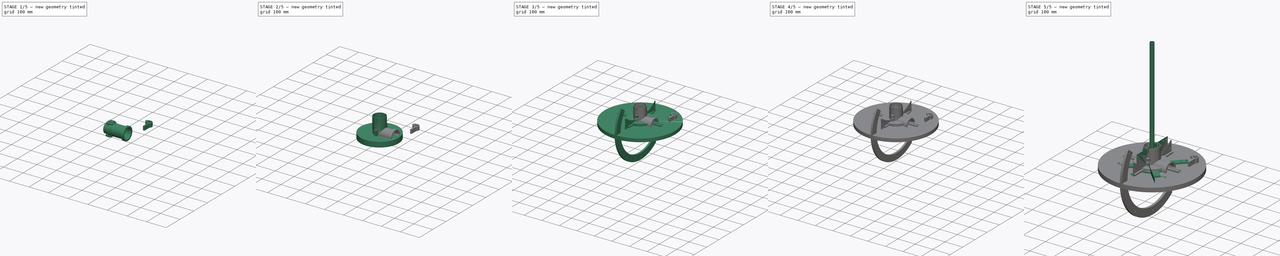
[diagram: build sequence overview — one tinted view per stage of 5, left to right]
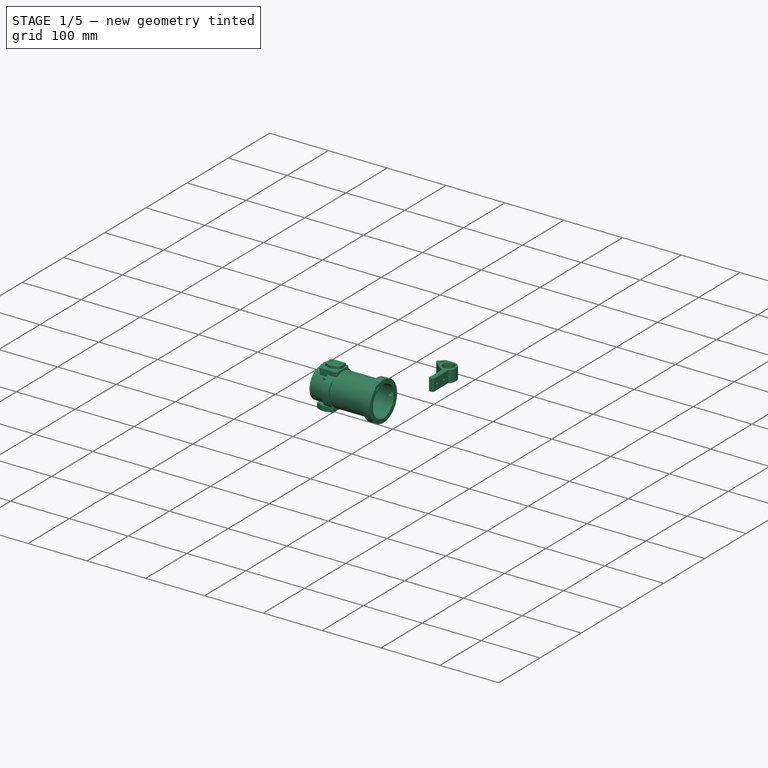
[diagram: stage 1 of 5 — iso view after this stage's code; geometry added in this stage tinted green]
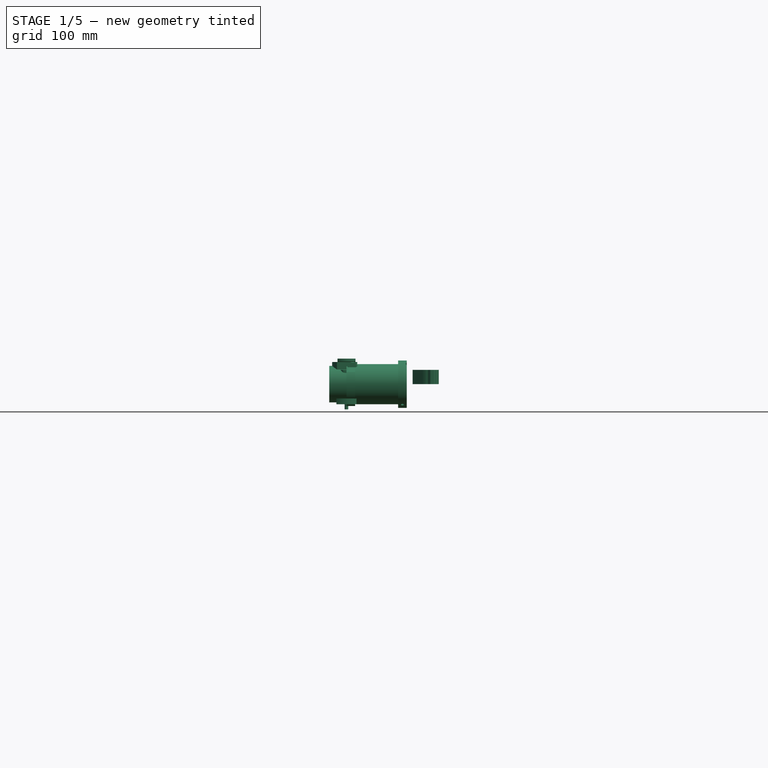
[diagram: stage 1 of 5 — front view after this stage's code; geometry added in this stage tinted green]
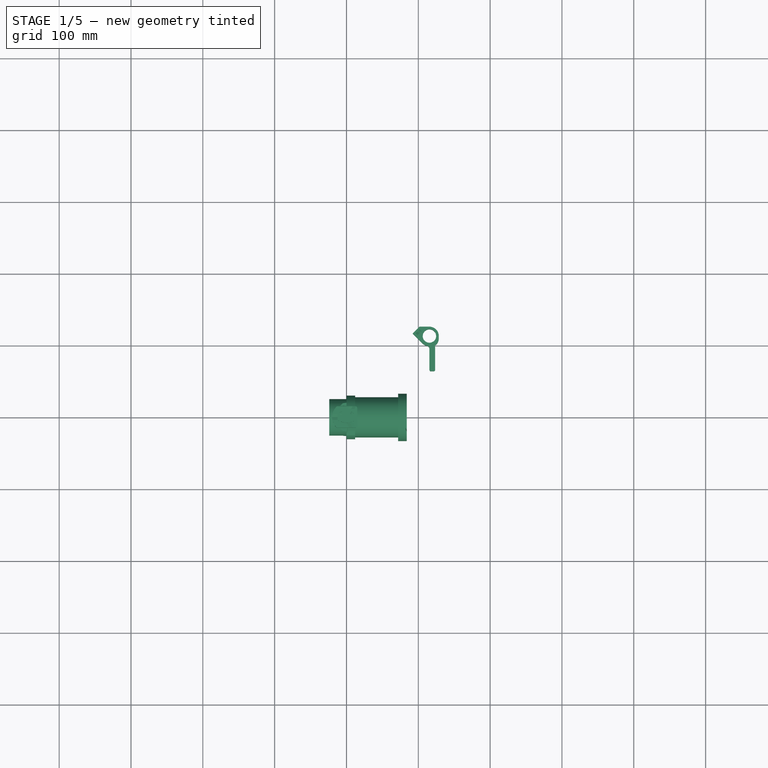
[diagram: stage 1 of 5 — top view after this stage's code; geometry added in this stage tinted green]
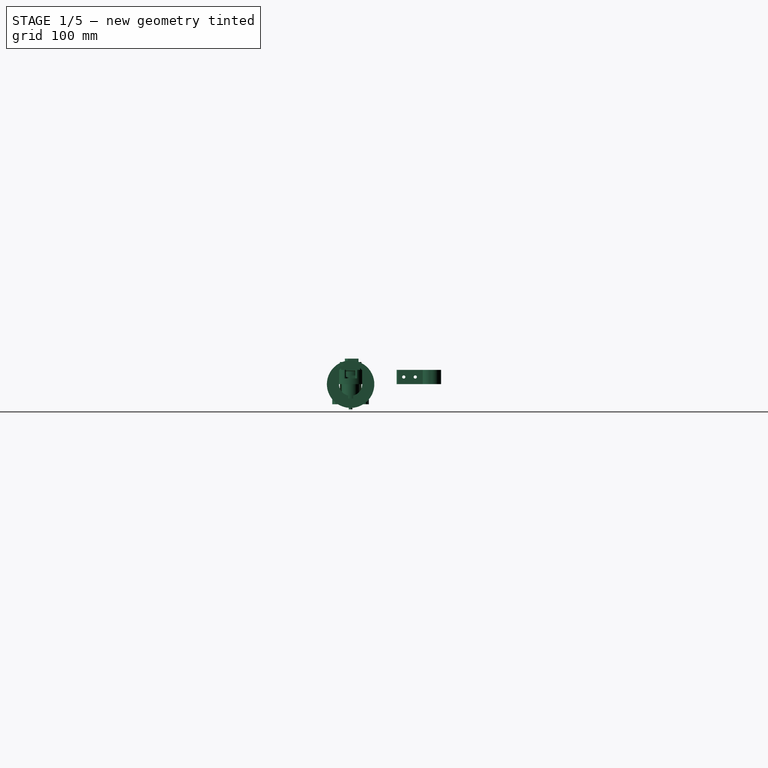
[diagram: stage 1 of 5 — right view after this stage's code; geometry added in this stage tinted green]
FCSTD DOCUMENT  (FreeCAD 0.19R24276 (Git))
Label: v5.6_Master
License: All rights reserved
LicenseURL: http://en.wikipedia.org/wiki/All_rights_reserved
objects: PartDesign::CoordinateSystem×196, Sketcher::SketchObject×117, PartDesign::Pocket×62, PartDesign::Body×54, PartDesign::Plane×34, PartDesign::Pad×23, Part::Cylinder×17, Part::Cone×14, PartDesign::Revolution×11, PartDesign::Hole×11, PartDesign::FeatureBase×11, Part::MultiFuse×9, PartDesign::AdditiveCylinder×8, App::DocumentObjectGroup×6, Part::Feature×6, PartDesign::ShapeBinder×5, PartDesign::Fillet×4, Part::FeaturePython×4, PartDesign::SubtractiveCylinder×3, PartDesign::PolarPattern×3, +9 more types
note: 727 computed .brp shape members not serialized (recipe doc carries the construction recipe); baked Part::Feature solids carry a one-line shape summary decoded from their .brp

FEATURE [PartDesign::CoordinateSystem] Local_CS005  label="LCS_UpperCell_Mirror"
  AttacherType = Attacher::AttachEngine3D
  AttachmentOffset = pos=(0,0,4) rot=(0,0,1;0rad)
  MapMode = 11
  Placement = pos=(0,0,10) rot=(0,0,1;1.5708rad)
  Support = -> [Pad021]
  expr: .AttachmentOffset.Base.z = <<Parameters>>.pri_mpad_r
FEATURE [PartDesign::CoordinateSystem] Local_CS012  label="LCS_UpperCell_Base"
  AttacherType = Attacher::AttachEngine3D
  MapMode = 11
  Placement = pos=(0,0,0) rot=(0,0,1;1.5708rad)
  Support = -> [Pad021]
FEATURE [Sketcher::SketchObject] Sketch042  label="MirrorClip_Profile"
  FullyConstrained = true
  MapMode = 5
  Placement = pos=(0,0,0) rot=(0.57735,0.57735,0.57735;2.0944rad)
  Support = -> [YZ_Plane034]
  expr: Constraints[18] = <<Parameters>>.pri_mthick - <<Parameters>>.zbracepos
  expr: Constraints[19] = <<Parameters>>.clipwidth + 1
  expr: Constraints[16] = <<Parameters>>.clipover + <<Parameters>>.pri_mpad_z
  expr: Constraints[6] = -<<Parameters>>.datum_uppercell - <<Parameters>>.pri_uthick + <<Parameters>>.clipthick + 0.5
  expr: Constraints[17] = <<Parameters>>.clipthick
  expr: Constraints[41] = -<<Parameters>>.pri_mpad_z + 0.5
  expr: Constraints[29] = -<<Parameters>>.pri_mpad_z
  expr: Constraints[42] = <<Parameters>>.pri_mpad_z
  sketch-geometry (18):
    g0: LineSegment StartX=0 StartY=0 StartZ=0 EndX=11 EndY=0 EndZ=0
    g1: LineSegment StartX=11 StartY=0 StartZ=0 EndX=11 EndY=35.5 EndZ=0
    g2: LineSegment StartX=11 StartY=35.5 StartZ=0 EndX=-8 EndY=35.5 EndZ=0
    g3: LineSegment StartX=-8 StartY=35.5 StartZ=0 EndX=-8 EndY=31.5 EndZ=0
    g4: LineSegment StartX=-8 StartY=31.5 StartZ=0 EndX=-2.5 EndY=31.5 EndZ=0
    g5: LineSegment StartX=-1 StartY=28.5 StartZ=0 EndX=-1 EndY=21.3851 EndZ=0
    g6: LineSegment StartX=-1 StartY=21.3851 StartZ=0 EndX=-2.73205 EndY=18.3851 EndZ=0
    g7: LineSegment StartX=-2.73205 StartY=16.3851 StartZ=0 EndX=0 EndY=11.6531 EndZ=0
    g8: LineSegment StartX=0 StartY=11.6531 StartZ=0 EndX=0 EndY=0 EndZ=0
    g9: LineSegment StartX=-3 StartY=17.3851 StartZ=0 EndX=11 EndY=17.3851 EndZ=0
    g10: ArcOfCircle CenterX=-1 CenterY=17.3851 CenterZ=0 NormalX=0 NormalY=0 NormalZ=1 AngleXU=0 Radius=2 StartAngle=2.61799 EndAngle=3.66519
    g11: GeomPoint X=-3 Y=17.3851 Z=0
    g12: GeomPoint X=-1 Y=31.5 Z=0
    g13: ArcOfEllipse CenterX=-2.5 CenterY=28.5 CenterZ=0 NormalX=0 NormalY=0 NormalZ=1 MajorRadius=3 MinorRadius=1.5 AngleXU=1.5708 StartAngle=4.71239 EndAngle=6.28319
    g14: LineSegment StartX=-2.5 StartY=31.5 StartZ=0 EndX=-2.5 EndY=25.5 EndZ=0
    g15: LineSegment StartX=-4 StartY=28.5 StartZ=0 EndX=-1 EndY=28.5 EndZ=0
    g16: GeomPoint X=-2.5 Y=31.0981 Z=0
    g17: GeomPoint X=-2.5 Y=25.9019 Z=0
  constraints (40):
    c: Coincident(g0,g1)
    c: Coincident(g1,g2)
    c: Horizontal(g0)
    c: Horizontal(g2)
    c: Vertical(g1)
    c: Coincident(g0,g-1)
    c: DistanceY(g1,g1) = 35.5
    c: Coincident(g3,g2)
    c: Vertical(g3)
    c: Coincident(g4,g3)
    c: Horizontal(g4)
    c: Vertical(g5)
    c: Coincident(g6,g5)
    c: Coincident(g8,g7)
    c: Coincident(g8,g0)
    c: Vertical(g8)
    c: DistanceX(g2,g-1) = 8
    c: DistanceY(g3,g3) = 4
    c: DistanceY(g11,g12) = 14.1149
    c: DistanceX(g0,g0) = 11
    c: Coincident(g9,g11)
    c: PointOnObject(g9,g1)
    c: Tangent(g6,g10) = -1.5708
    c: Tangent(g7,g10) = -1.5708
    c: Radius(g10) = 2
    c: PointOnObject(g10,g9)
    c: PointOnObject(g9,g10)
    c: PointOnObject(g12,g4)
    c: PointOnObject(g12,g5)
    c: DistanceX(g9) = -3
    c: Perpendicular(g1,g9)
    c: Angle(g7,g9) = 1.0472
    c: Angle(g9,g6) = 1.0472
    c: DistanceX(g5) = -1
    c: InternalAlignment(g14-g17 -> g13) x4
    c: Horizontal(g15)
    c: Tangent(g13,g4) = 1.5708
    c: Tangent(g13,g5) = 1.5708
    c: DistanceX(g13) = -2.5
    c: DistanceY(g5,g4) = 3
FEATURE [PartDesign::Pad] Pad022  label="MirrorClip_Profile_Pad"
  Direction = (1,1,1)
  Length = 25
  Length2 = 100
  Midplane = true
  Placement = pos=(0,0,0) rot=(0.57735,0.57735,0.57735;2.0944rad)
  Profile = -> Sketch042
  Type = 0
  expr: Length = <<Parameters>>.pri_fwidth
FEATURE [PartDesign::Pocket] Pocket007  label="MirrorClip_MountHole"
  BaseFeature = -> Pad022
  Length = 5
  Length2 = 100
  Placement = pos=(0,0,0) rot=(0.57735,0.57735,0.57735;2.0944rad)
  Profile = -> Sketch043
  Reversed = true
  Type = 1
FEATURE [PartDesign::CoordinateSystem] Local_CS122  label="LCS_SecondaryFace"
  AttacherType = Attacher::AttachEngine3D
  MapMode = 5
  Support = -> [XY_Plane054]
FEATURE [Sketcher::SketchObject] Sketch061  label="MirrorPad_Base_Sketch"
  FullyConstrained = true
  MapMode = 5
  Placement = pos=(0,0,0) rot=(1,0,0;1.5708rad)
  Support = -> [XZ_Plane055]
  expr: Constraints[17] = <<Parameters>>.sec_hubdia * 0.75 / 2
  expr: Constraints[15] = <<Parameters>>.sec_hubdia / 2
  expr: Constraints[13] = <<Parameters>>.sec_mtvar
  expr: Constraints[10] = <<Parameters>>.sec_padheight
  expr: Constraints[5] = <<Parameters>>.sec_fillet
  sketch-geometry (6):
    g0: LineSegment StartX=-18 StartY=-14 StartZ=0 EndX=15 EndY=19 EndZ=0
    g1: LineSegment StartX=-20 StartY=30.9063 StartZ=0 EndX=-20 EndY=-14 EndZ=0
    g2: LineSegment StartX=-20 StartY=-14 StartZ=0 EndX=-18 EndY=-14 EndZ=0
    g3: LineSegment StartX=15 StartY=19 StartZ=0 EndX=15 EndY=30.9063 EndZ=0
    g4: LineSegment StartX=15 StartY=30.9063 StartZ=0 EndX=-20 EndY=30.9063 EndZ=0
    g5: GeomPoint X=0 Y=4 Z=0
  constraints (18):
    c: Angle(g-1,g0) = 0.785398
    c: Vertical(g1)
    c: Coincident(g2,g1)
    c: Coincident(g2,g0)
    c: Horizontal(g2)
    c: DistanceX(g2,g2) = 2
    c: Coincident(g3,g0)
    c: Vertical(g3)
    c: Coincident(g4,g3)
    c: Coincident(g1,g4)
    c: DistanceY(g1) = 30.9063
    c: PointOnObject(g5,g0)
    c: PointOnObject(g5,g-2)
    c: DistanceY(g-1,g5) = 4
    c: DistanceY(g3,g3) = 11.9063
    c: DistanceX(g1,g-1) = 20
    c: Horizontal(g4)
    c: DistanceX(g-1,g3) = 15
FEATURE [PartDesign::Pad] Pad  label="MirrorPad_Base"
  Direction = (1,1,1)
  Length = 30
  Length2 = 100
  Midplane = true
  Placement = pos=(0,0,0) rot=(1,0,0;1.5708rad)
  Profile = -> Sketch061
  Type = 0
  expr: Length = 2 * ceil(<<Parameters>>.sec_cpointpos * cos(30)) + <<Parameters>>.sec_tiltball
FEATURE [Sketcher::SketchObject] Sketch065  label="FocuserSpring_Cut_Sketch"
  FullyConstrained = false
  MapMode = 5
  Support = -> [XY_Plane008]
  expr: Constraints[1] = Spreadsheet.sec_sidebolt * 1.1
  expr: Constraints[2] = <<Parameters>>.foc_springblock - <<Parameters>>.foc_clampblock
  expr: Constraints[4] = <<Parameters>>.foc_fheight / 2
  expr: Constraints[28] = <<Parameters>>.foc_fheight / 2
  expr: Constraints[18] = <<Parameters>>.fbearing_outer + <<Parameters>>.sec_fthick
  sketch-geometry (14):
    g0: Circle CenterX=6 CenterY=30.875 CenterZ=0 NormalX=0 NormalY=0 NormalZ=1 AngleXU=0 Radius=2.2
    g1: Circle CenterX=6 CenterY=-30.875 CenterZ=0 NormalX=0 NormalY=0 NormalZ=1 AngleXU=0 Radius=2.2
    g2: GeomPoint X=6 Y=0 Z=0
    g3: LineSegment StartX=10.867 StartY=6.95063 StartZ=0 EndX=13 EndY=9.08366 EndZ=0
    g4: LineSegment StartX=13 StartY=9.08366 StartZ=0 EndX=13 EndY=-5.9999 EndZ=0
    g5: LineSegment StartX=13 StartY=-5.9999 StartZ=0 EndX=12 EndY=-5.9999 EndZ=0
    g6: LineSegment StartX=12 StartY=-5.9999 StartZ=0 EndX=10.867 EndY=6.95063 EndZ=0
    g7: LineSegment StartX=-2.09e-14 StartY=5.9999 StartZ=0 EndX=-1 EndY=5.9999 EndZ=0
    g8: LineSegment StartX=-1 StartY=5.9999 StartZ=0 EndX=-1 EndY=-9.08366 EndZ=0
    g9: LineSegment StartX=-1 StartY=-9.08366 StartZ=0 EndX=1.13302 EndY=-6.95063 EndZ=0
    g10: LineSegment StartX=1.13302 StartY=-6.95063 StartZ=0 EndX=-2.09e-14 EndY=5.9999 EndZ=0
    g11: LineSegment StartX=0.566512 StartY=-0.475369 StartZ=0 EndX=11.4335 EndY=0.475369 EndZ=0
    g12: GeomPoint X=-2.4e-14 Y=-8.08366 Z=0
    g13: GeomPoint X=12 Y=8.08366 Z=0
  constraints (32):
    c: Equal(g0,g1)
    c: Diameter(g1) = 4.4
    c: DistanceY(g1,g0) = 61.75
    c: Symmetric(g0,g1,g-1)
    c: DistanceX(g0) = 6
    c: Coincident(g3,g4)
    c: Coincident(g4,g5)
    c: Coincident(g5,g6)
    c: Coincident(g6,g3)
    c: Horizontal(g5)
    c: Vertical(g4)
    c: Coincident(g7,g8)
    c: Coincident(g8,g9)
    c: Coincident(g9,g10)
    c: Coincident(g10,g7)
    c: Horizontal(g7)
    c: Vertical(g8)
    c: Parallel(g9,g3)
    c: Distance(g6) = 13
    c: Equal(g6,g10)
    c: PointOnObject(g11,g10)
    c: PointOnObject(g11,g6)
    c: Symmetric(g5,g3,g11)
    c: Symmetric(g7,g9,g11)
    c: Equal(g7,g5)
    c: DistanceX(g5,g5) = 1
    c: PointOnObject(g2,g-1)
    c: PointOnObject(g2,g11)
    c: DistanceX(g-1,g2) = 6
    c: PointOnObject(g12,g9)
    c: PointOnObject(g13,g3)
    c: DistanceY(g12,g13) = 16.1673
FEATURE [PartDesign::Plane] DatumPlane008  label="FocuserSpring_DatumPlane_Shaft"
  AttachmentOffset = pos=(0,0,6) rot=(0,1,0;0.087266rad)
  Length = 103.399
  MapMode = 2
  Placement = pos=(6,-1.3e-15,1.3e-15) rot=(0.543775,0.593426,0.593426;2.14549rad)
  ResizeMode = 0
  Support = -> [YZ_Plane008]
  Width = 82.3604
  expr: .AttachmentOffset.Base.z = <<Parameters>>.foc_fheight / 2
  expr: .AttachmentOffset.Rotation.Pitch = <<Parameters>>.fbearing_tilt
FEATURE [Sketcher::SketchObject] Sketch025  label="FocuserSpring_Shaft_Sketch"
  FullyConstrained = true
  MapMode = 5
  Placement = pos=(6,-1.2e-15,1.3e-15) rot=(0.543775,0.593426,0.593426;2.14549rad)
  Support = -> [DatumPlane008]
  expr: Constraints[2] = <<Parameters>>.foc_inner / 2 + <<Parameters>>.foc_wall + <<Parameters>>.fbearing_outer / 2
  expr: Constraints[0] = <<Parameters>>.fbearing_inner * 1.1
  sketch-geometry (1):
    g0: Circle CenterX=0 CenterY=33 CenterZ=0 NormalX=0 NormalY=0 NormalZ=1 AngleXU=0 Radius=1.65
  constraints (3):
    c: Diameter(g0) = 3.3
    c: PointOnObject(g0,g-2)
    c: DistanceY(g0) = 33
FEATURE [Sketcher::SketchObject] Sketch022  label="Focuser_Profile"
  FullyConstrained = true
  MapMode = 5
  Support = -> [XY_Plane007]
  expr: Constraints[18] = <<Parameters>>.foc_flangeinner / 2 + <<Parameters>>.foc_itol
  expr: Constraints[13] = <<Parameters>>.foc_flange
  expr: Constraints[21] = <<Parameters>>.foc_shaft
  expr: Constraints[11] = <<Parameters>>.foc_fheight
  expr: Constraints[12] = <<Parameters>>.foc_inner / 2
  expr: Constraints[22] = <<Parameters>>.foc_wall
  expr: Constraints[29] = <<Parameters>>.foc_spacing / 2
  sketch-geometry (10):
    g0: LineSegment StartX=0 StartY=26 StartZ=0 EndX=70.8804 EndY=26 EndZ=0
    g1: LineSegment StartX=0 StartY=26 StartZ=0 EndX=0 EndY=29 EndZ=0
    g2: LineSegment StartX=2 StartY=28 StartZ=0 EndX=72 EndY=28 EndZ=0
    g3: LineSegment StartX=72 StartY=28 StartZ=0 EndX=72 EndY=33 EndZ=0
    g4: LineSegment StartX=72 StartY=33 StartZ=0 EndX=84 EndY=33 EndZ=0
    g5: LineSegment StartX=84 StartY=33 StartZ=0 EndX=84 EndY=25.7 EndZ=0
    g6: LineSegment StartX=70.8804 StartY=26 StartZ=0 EndX=72 EndY=25.7 EndZ=0
    g7: LineSegment StartX=72 StartY=25.7 StartZ=0 EndX=84 EndY=25.7 EndZ=0
    g8: LineSegment StartX=0 StartY=29 StartZ=0 EndX=1 EndY=29 EndZ=0
    g9: LineSegment StartX=1 StartY=29 StartZ=0 EndX=2 EndY=28 EndZ=0
  constraints (30):
    c: PointOnObject(g0,g-2)
    c: Horizontal(g0)
    c: Coincident(g1,g0)
    c: PointOnObject(g1,g-2)
    c: Horizontal(g2)
    c: Coincident(g3,g2)
    c: Vertical(g3)
    c: Coincident(g4,g3)
    c: Horizontal(g4)
    c: Coincident(g5,g4)
    c: Vertical(g5)
    c: DistanceX(g4,g4) = 12
    c: DistanceY(g-1,g0) = 26
    c: DistanceY(g0,g3) = 7
    c: Coincident(g6,g0)
    c: Coincident(g7,g6)
    c: Horizontal(g7)
    c: Coincident(g7,g5)
    c: DistanceY(g5) = 25.7
    c: PointOnObject(g6,g3)
    c: Angle(g3,g6) = 1.309
    c: DistanceX(g1,g2) = 72
    c: DistanceY(g0,g2) = 2
    c: Coincident(g8,g1)
    c: Horizontal(g8)
    c: Coincident(g9,g8)
    c: Coincident(g9,g2)
    c: DistanceX(g8,g8) = 1
    c: Angle(g2,g9) = 2.35619
    c: DistanceY(g2,g1) = 1
FEATURE [PartDesign::Revolution] Revolution001  label="Focuser_Shaft"
  Angle = 360
  Axis = (1,0,0)
  Base = (0,0,0)
  Profile = -> Sketch022
  ReferenceAxis = -> Sketch022 [H_Axis]
FEATURE [PartDesign::Plane] DatumPlane015  label="FocuserBase_DatumPlane_SideCut"
  AttachmentOffset = pos=(6,0,0) rot=(1,0,0;1.0472rad)
  Length = 64.2201
  MapMode = 2
  Placement = pos=(6,0,0) rot=(1,0,0;1.0472rad)
  ResizeMode = 0
  Support = -> [XY_Plane057]
  Width = 115.326
  expr: .AttachmentOffset.Base.x = <<Parameters>>.foc_fheight / 2
FEATURE [Sketcher::SketchObject] Sketch066  label="FocuserBase_SideCut_Sketch"
  ExternalGeometry = -> [Pad006]
  FullyConstrained = true
  MapMode = 5
  Placement = pos=(6,0,0) rot=(1,0,0;1.0472rad)
  Support = -> [DatumPlane015]
  expr: Constraints[21] = <<Parameters>>.fbearing_outer + <<Parameters>>.sec_fthick
  expr: Constraints[16] = -<<Parameters>>.fbearing_tilt
  sketch-geometry (11):
    g0: LineSegment StartX=6 StartY=5.9999 StartZ=0 EndX=7 EndY=5.9999 EndZ=0
    g1: LineSegment StartX=7 StartY=5.9999 StartZ=0 EndX=7 EndY=-9.08366 EndZ=0
    g2: LineSegment StartX=7 StartY=-9.08366 StartZ=0 EndX=4.86698 EndY=-6.95063 EndZ=0
    g3: LineSegment StartX=4.86698 StartY=-6.95063 StartZ=0 EndX=6 EndY=5.9999 EndZ=0
    g4: LineSegment StartX=-7 StartY=9.08366 StartZ=0 EndX=-4.86698 EndY=6.95063 EndZ=0
    g5: LineSegment StartX=-4.86698 StartY=6.95063 StartZ=0 EndX=-6 EndY=-5.9999 EndZ=0
    g6: LineSegment StartX=-6 StartY=-5.9999 StartZ=0 EndX=-7 EndY=-5.9999 EndZ=0
    g7: LineSegment StartX=-7 StartY=-5.9999 StartZ=0 EndX=-7 EndY=9.08366 EndZ=0
    g8: LineSegment StartX=-5.43349 StartY=0.475369 StartZ=0 EndX=5.43349 EndY=-0.475369 EndZ=0
    g9: GeomPoint X=-6 Y=8.08366 Z=0
    g10: GeomPoint X=6 Y=-8.08366 Z=0
  constraints (31):
    c: Coincident(g0,g1)
    c: Coincident(g1,g2)
    c: Coincident(g2,g3)
    c: Coincident(g3,g0)
    c: Horizontal(g0)
    c: Coincident(g4,g5)
    c: Coincident(g5,g6)
    c: Coincident(g6,g7)
    c: Coincident(g7,g4)
    c: Horizontal(g6)
    c: Vertical(g7)
    c: DistanceX(g6,g6) = 1
    c: PointOnObject(g8,g5)
    c: PointOnObject(g8,g3)
    c: PointOnObject(g-1,g8)
    c: Symmetric(g4,g5,g8)
    c: Angle(g8) = -0.0872665
    c: Equal(g6,g0)
    c: Vertical(g1)
    c: Symmetric(g2,g0,g8)
    c: Equal(g7,g1)
    c: Distance(g5) = 13
    c: Parallel(g2,g4)
    c: DistanceY(g10,g9) = 16.1673
    c: PointOnObject(g10,g2)
    c: PointOnObject(g9,g4)
    c: PointOnObject(g0,g-3)
    c: PointOnObject(g10,g-3)
    c: PointOnObject(g9,g-4)
    c: PointOnObject(g5,g-4)
    c: Angle(g-4,g4) = 0.785398
FEATURE [PartDesign::Plane] DatumPlane016  label="FocuserBase_DatumPlane_SideShaft"
  AttachmentOffset = pos=(0,0,0) rot=(0,-1,0;0.087266rad)
  Length = 126.274
  MapMode = 4
  Placement = pos=(6,0,0) rot=(0.725486,0.178129,0.664786;2.75759rad)
  ResizeMode = 0
  Support = -> [DatumPlane015]
  Width = 128.065
  expr: .AttachmentOffset.Rotation.Pitch = -<<Parameters>>.fbearing_tilt
FEATURE [Sketcher::SketchObject] Sketch027  label="FocuserBase_SideShaft_Sketch"
  FullyConstrained = true
  MapMode = 5
  Placement = pos=(6,-1e-16,-1e-16) rot=(0.725486,0.178129,0.664786;2.75759rad)
  Support = -> [DatumPlane016]
  expr: Constraints[2] = <<Parameters>>.foc_inner / 2 + <<Parameters>>.foc_wall + <<Parameters>>.fbearing_outer / 2
  expr: Constraints[1] = <<Parameters>>.fbearing_inner
  sketch-geometry (1):
    g0: Circle CenterX=0 CenterY=-33 CenterZ=0 NormalX=0 NormalY=0 NormalZ=1 AngleXU=0 Radius=1.5
  constraints (3):
    c: PointOnObject(g0,g-2)
    c: Diameter(g0) = 3
    c: DistanceY(g0,g-1) = 33
FEATURE [PartDesign::Plane] DatumPlane011  label="FocuserBase_DatumPlane_SpringShaft"
  AttachmentOffset = pos=(6,0,26.25) rot=(0,0,1;0rad)
  Length = 62.9615
  MapMode = 5
  Placement = pos=(6,0,26.25) rot=(0,0,1;0rad)
  ResizeMode = 0
  Support = -> [XY_Plane057]
  Width = 96.9615
  expr: .AttachmentOffset.Base.z = <<Parameters>>.foc_inner / 2 + <<Parameters>>.foc_wall + <<Parameters>>.foc_spacing - <<Parameters>>.foc_fthick * 1.5
  expr: .AttachmentOffset.Base.x = <<Parameters>>.foc_fheight / 2
FEATURE [Sketcher::SketchObject] Sketch067  label="FocuserBase_SpringShaft_Sketch"
  FullyConstrained = true
  MapMode = 5
  Placement = pos=(6,0,26.25) rot=(0,0,1;0rad)
  Support = -> [DatumPlane011]
  expr: Constraints[3] = <<Parameters>>.foc_springblock - <<Parameters>>.foc_clampblock
  expr: Constraints[0] = Spreadsheet.sec_sidebolt * 1.1
  sketch-geometry (2):
    g0: Circle CenterX=0 CenterY=30.875 CenterZ=0 NormalX=0 NormalY=0 NormalZ=1 AngleXU=0 Radius=2.2
    g1: Circle CenterX=0 CenterY=-30.875 CenterZ=0 NormalX=0 NormalY=0 NormalZ=1 AngleXU=0 Radius=2.2
  constraints (5):
    c: Diameter(g1) = 4.4
    c: Equal(g1,g0)
    c: Symmetric(g1,g0,g-1)
    c: DistanceY(g1,g0) = 61.75
    c: PointOnObject(g0,g-2)
FEATURE [PartDesign::Plane] DatumPlane017  label="FocuserBase_DatumPlane_FrontFace"
  AttachmentOffset = pos=(0,0,12) rot=(0,0,1;0rad)
  Length = 99.1433
  MapMode = 5
  Placement = pos=(12,-2.7e-15,2.7e-15) rot=(0.57735,0.57735,0.57735;2.0944rad)
  ResizeMode = 0
  Support = -> [YZ_Plane057]
  Width = 83.3933
  expr: .AttachmentOffset.Base.z = <<Parameters>>.foc_fheight
FEATURE [PartDesign::Plane] DatumPlane018  label="FocuserShaft_DatumPlane_Midpoint"
  AttachmentOffset = pos=(78,0,0) rot=(0,0,1;0rad)
  Length = 125.958
  MapMode = 5
  Placement = pos=(78,0,0) rot=(1,0,0;1.5708rad)
  ResizeMode = 0
  Support = -> [XZ_Plane007]
  Width = 82.9165
  expr: .AttachmentOffset.Base.x = <<Parameters>>.foc_fheight / 2 + <<Parameters>>.foc_shaft
FEATURE [Sketcher::SketchObject] Sketch031  label="FocuserShaft_Nut_Sketch"
  FullyConstrained = true
  MapMode = 5
  Placement = pos=(78,0,0) rot=(1,0,0;1.5708rad)
  Support = -> [DatumPlane018]
  expr: Constraints[18] = 7.2
  sketch-geometry (7):
    g0: LineSegment StartX=3.6 StartY=2.07846 StartZ=0 EndX=-6.799e-13 EndY=4.15692 EndZ=0
    g1: LineSegment StartX=-6.799e-13 StartY=4.15692 StartZ=0 EndX=-3.6 EndY=2.07846 EndZ=0
    g2: LineSegment StartX=-3.6 StartY=2.07846 StartZ=0 EndX=-3.6 EndY=-2.07846 EndZ=0
    g3: LineSegment StartX=-3.6 StartY=-2.07846 StartZ=0 EndX=1.16755e-10 EndY=-4.15692 EndZ=0
    g4: LineSegment StartX=1.16755e-10 StartY=-4.15692 StartZ=0 EndX=3.6 EndY=-2.07846 EndZ=0
    g5: LineSegment StartX=3.6 StartY=-2.07846 StartZ=0 EndX=3.6 EndY=2.07846 EndZ=0
    g6: Circle CenterX=0 CenterY=0 CenterZ=0 NormalX=0 NormalY=0 NormalZ=1 AngleXU=0 Radius=4.15692
  constraints (16):
    c: Coincident(g0,g1)
    c: Coincident(g1,g2)
    c: Coincident(g2,g3)
    c: Coincident(g3,g4)
    c: Coincident(g4,g5)
    c: Coincident(g5,g0)
    c: Equal(g0, g1-g5) x5
    c: PointOnObject(g0,g6)
    c: PointOnObject(g1,g6)
    c: PointOnObject(g2,g6)
    c: PointOnObject(g3,g6)
    c: PointOnObject(g4,g6)
    c: PointOnObject(g5,g6)
    c: Coincident(g6,g-1)
    c: DistanceX(g1,g0) = 7.2
    c: Vertical(g2)
FEATURE [PartDesign::Pocket] Pocket027  label="FocuserShaft_Nut_Cut"
  BaseFeature = -> Revolution001
  Length = 30
  Length2 = 100
  Profile = -> Sketch031
  Type = 0
  expr: Length = <<Parameters>>.foc_inner / 2 + 4
FEATURE [Sketcher::SketchObject] Sketch032  label="FocuserShaft_ScrewHole_Sketch"
  FullyConstrained = true
  MapMode = 5
  Placement = pos=(78,0,0) rot=(1,0,0;1.5708rad)
  Support = -> [DatumPlane018]
  sketch-geometry (1):
    g0: Circle CenterX=0 CenterY=0 CenterZ=0 NormalX=0 NormalY=0 NormalZ=1 AngleXU=0 Radius=2.2
  constraints (2):
    c: Coincident(g0,g-1)
    c: Diameter(g0) = 4.4
FEATURE [PartDesign::Pocket] Pocket028  label="FocuserShaft_ScrewHole"
  BaseFeature = -> Pocket027
  Length = 5
  Length2 = 100
  Profile = -> Sketch032
  Type = 1
FEATURE [PartDesign::PolarPattern] PolarPattern002  label="FocuserShaft_ScrewHoles"
  Angle = 240
  Axis = -> X_Axis007
  BaseFeature = -> Pocket028
  Occurrences = 2
  Originals = -> [Pocket028,Pocket027]
FEATURE [PartDesign::CoordinateSystem] Local_CS033  label="LCS_Bearing_Inner_NF"
  AttacherType = Attacher::AttachEngine3D
  MapMode = 11
  Placement = pos=(0.566512,-28.3412,-16.9117) rot=(0.663579,-0.401957,-0.630947;2.47638rad)
  Support = -> [PolarPattern003]
FEATURE [PartDesign::CoordinateSystem] Local_CS034  label="LCS_Bearing_Inner_NA"
  AttacherType = Attacher::AttachEngine3D
  MapMode = 11
  Placement = pos=(0.566512,28.8165,-16.0883) rot=(-0.644711,-0.352973,0.678055;2.36216rad)
  Support = -> [PolarPattern003]
FEATURE [PartDesign::CoordinateSystem] Local_CS035  label="LCS_Bearing_Outer_NF"
  AttacherType = Attacher::AttachEngine3D
  MapMode = 11
  Placement = pos=(11.4335,-28.8165,-16.0883) rot=(0.644711,0.352973,0.678055;2.36216rad)
  Support = -> [PolarPattern003]
FEATURE [PartDesign::CoordinateSystem] Local_CS036  label="LCS_Bearing_Outer_NA"
  AttacherType = Attacher::AttachEngine3D
  MapMode = 11
  Placement = pos=(11.4335,28.3412,-16.9117) rot=(0.663579,-0.401957,0.630947;3.8068rad)
  Support = -> [PolarPattern003]
FEATURE [PartDesign::CoordinateSystem] Local_CS132  label="LCS_SpringAttachment_F"
  AttacherType = Attacher::AttachEngine3D
  AttachmentOffset = pos=(0,0,3.75) rot=(0,0,1;0rad)
  MapMode = 11
  Placement = pos=(6,-30.875,30) rot=(0,0,1;1.5708rad)
  Support = -> [PolarPattern003]
  expr: .AttachmentOffset.Base.z = <<Parameters>>.foc_fthick * 1.5
FEATURE [PartDesign::CoordinateSystem] Local_CS133  label="LCS_SpringAttachment_A"
  AttacherType = Attacher::AttachEngine3D
  AttachmentOffset = pos=(0,0,3.75) rot=(0,0,1;0rad)
  MapMode = 11
  Placement = pos=(5.13855,-24.3823,11.3541) rot=(0.916689,-0.0118,-0.399427;2.73493rad)
  Support = -> [PolarPattern003]
  expr: .AttachmentOffset.Base.z = <<Parameters>>.foc_fthick * 1.5
FEATURE [PartDesign::CoordinateSystem] Local_CS205  label="LCS_PlateBaseMount_ZF"
  AttacherType = Attacher::AttachEngine3D
  AttachmentOffset = pos=(-36,15,0) rot=(0,0,1;0rad)
  MapMode = 5
  Placement = pos=(-1.13e-14,-36,15) rot=(0.57735,0.57735,0.57735;2.0944rad)
  Support = -> [YZ_Plane014]
  expr: .AttachmentOffset.Base.y = <<Parameters>>.foc_mbrad - <<Parameters>>.foc_baseflange / 2 - <<Parameters>>.sec_fthick - <<Parameters>>.sec_sidebolt * 3
  expr: .AttachmentOffset.Base.x = -<<Parameters>>.foc_mbrad
FEATURE [PartDesign::CoordinateSystem] Local_CS206  label="LCS_PlateBaseMount_ZA"
  AttacherType = Attacher::AttachEngine3D
  AttachmentOffset = pos=(36,15,0) rot=(0,0,1;0rad)
  MapMode = 5
  Placement = pos=(4.7e-15,36,15) rot=(0.57735,0.57735,0.57735;2.0944rad)
  Support = -> [YZ_Plane014]
  expr: .AttachmentOffset.Base.y = <<Parameters>>.foc_mbrad - <<Parameters>>.foc_baseflange / 2 - <<Parameters>>.sec_fthick - <<Parameters>>.sec_sidebolt * 3
  expr: .AttachmentOffset.Base.x = <<Parameters>>.foc_mbrad
FEATURE [Sketcher::SketchObject] Sketch103  label="CounterWeightClamp_Profile_Sketch"
  FullyConstrained = true
  MapMode = 5
  Placement = pos=(0,0,0) rot=(0.57735,0.57735,0.57735;2.0944rad)
  Support = -> [YZ_Plane072]
  expr: Constraints[11] = 5 * 1.1 / 2
  expr: Constraints[17] = 2 * (14 - 12.5) + 10
  sketch-geometry (6):
    g0: LineSegment StartX=2.75 StartY=0 StartZ=0 EndX=12.5 EndY=0 EndZ=0
    g1: LineSegment StartX=12.5 StartY=0 StartZ=0 EndX=12.5 EndY=-20 EndZ=0
    g2: LineSegment StartX=12.5 StartY=-20 StartZ=0 EndX=25.5 EndY=-20 EndZ=0
    g3: LineSegment StartX=25.5 StartY=-20 StartZ=0 EndX=25.5 EndY=-28 EndZ=0
    g4: LineSegment StartX=25.5 StartY=-28 StartZ=0 EndX=2.75 EndY=-28 EndZ=0
    g5: LineSegment StartX=2.75 StartY=-28 StartZ=0 EndX=2.75 EndY=0 EndZ=0
  constraints (18):
    c: Coincident(g1,g0)
    c: Vertical(g1)
    c: Coincident(g2,g1)
    c: Horizontal(g2)
    c: Coincident(g3,g2)
    c: Vertical(g3)
    c: Coincident(g4,g3)
    c: Horizontal(g4)
    c: Coincident(g5,g4)
    c: DistanceY(g3,g3) = 8
    c: Coincident(g5,g0)
    c: DistanceX(g0) = 2.75
    c: Horizontal(g0)
    c: Vertical(g5)
    c: DistanceY(g1) = -20
    c: PointOnObject(g0,g-1)
    c: DistanceX(g0) = 12.5
    c: DistanceX(g2,g2) = 13
FEATURE [PartDesign::Revolution] Revolution002  label="CounterWeightClamp_Base"
  Angle = 360
  Axis = (-3e-16,3e-16,1)
  Base = (0,0,0)
  Placement = pos=(0,0,0) rot=(0.57735,0.57735,0.57735;2.0944rad)
  Profile = -> Sketch103
  ReferenceAxis = -> Z_Axis072
  Reversed = true
FEATURE [PartDesign::Body] Body036  label="AFrame_F"
  BaseFeature = -> Body031
  Group = -> [Clone007]
  Origin = -> Origin050
  Placement = pos=(0,-113,0) rot=(0,0,1;0rad)
  Tip = -> Clone007
  expr: .Placement.Base.y = -<<Parameters>>.bolt_y
FEATURE [App::Part] Part002  label="Azimuth_Frame"
  Group = -> [Body029,Body030,Body031,Body035,Body036,LCS_AFrame_Pivot,LCS_AFrame_Post_AP,LCS_AFrame_Post_AS,LCS_AFrame_Post_FP,LCS_AFrame_Post_FS,Screw002,Screw003,LCS_AFrame_Corner_AP,LCS_AFrame_Corner_AS,LCS_AFrame_Corner_FP,LCS_AFrame_Corner_FS,LCS_AFrame_BaseHub]
  Origin = -> Origin042
  Placement = pos=(0,0,-132) rot=(0,0,1;0rad)
  expr: .Placement.Base.z = <<Parameters>>.datum_azbase - 5
FEATURE [Sketcher::SketchObject] Sketch112  label="UpperHub_MasterSketch"
  FullyConstrained = true
  MapMode = 5
  Support = -> [XY_Plane058]
  expr: Constraints[35] = <<Parameters>>.bolt_y - <<Parameters>>.pri_poledia / 2
  expr: Constraints[1] = <<Parameters>>.pri_poledia + <<Parameters>>.sec_fthick * 2
  expr: Constraints[33] = <<Parameters>>.sec_poledia / 2 - <<Parameters>>.sec_spthick
  expr: Constraints[4] = <<Parameters>>.bolt_y
  expr: Constraints[3] = <<Parameters>>.bolt_x + <<Parameters>>.sec_offset_x
  expr: Constraints[26] = <<Parameters>>.sec_poledia + <<Parameters>>.sec_clamptol
  expr: Constraints[29] = <<Parameters>>.sec_collbolt
  expr: Constraints[32] = <<Parameters>>.sec_cpointpos
  expr: Constraints[21] = <<Parameters>>.sec_sidebolt * 1.5
  expr: Constraints[23] = <<Parameters>>.sec_hubdia
  sketch-geometry (21):
    g0: Circle CenterX=115.5 CenterY=113 CenterZ=0 NormalX=0 NormalY=0 NormalZ=1 AngleXU=0 Radius=13
    g1: Circle CenterX=115.5 CenterY=-113 CenterZ=0 NormalX=0 NormalY=0 NormalZ=1 AngleXU=0 Radius=13
    g2: LineSegment StartX=-24.3701 StartY=0 StartZ=0 EndX=101.63 EndY=126 EndZ=0
    g3: LineSegment StartX=-24.3701 StartY=0 StartZ=0 EndX=101.63 EndY=-126 EndZ=0
    g4: LineSegment StartX=115.5 StartY=126 StartZ=0 EndX=101.63 EndY=126 EndZ=0
    g5: LineSegment StartX=115.5 StartY=-126 StartZ=0 EndX=101.63 EndY=-126 EndZ=0
    g6: LineSegment StartX=102.065 StartY=126.435 StartZ=0 EndX=115.5 EndY=113 EndZ=0
    g7: GeomPoint X=106.308 Y=122.192 Z=0
    g8: Circle CenterX=0 CenterY=0 CenterZ=0 NormalX=0 NormalY=0 NormalZ=1 AngleXU=0 Radius=20
    g9: Circle CenterX=115.5 CenterY=113 CenterZ=0 NormalX=0 NormalY=0 NormalZ=1 AngleXU=0 Radius=9.35
    g10: Circle CenterX=115.5 CenterY=-113 CenterZ=0 NormalX=0 NormalY=0 NormalZ=1 AngleXU=0 Radius=9.35
    g11: Circle CenterX=-12 CenterY=0 CenterZ=0 NormalX=0 NormalY=0 NormalZ=1 AngleXU=0 Radius=2
    g12: Circle CenterX=12 CenterY=0 CenterZ=0 NormalX=0 NormalY=0 NormalZ=1 AngleXU=0 Radius=2
    g13: LineSegment StartX=123.5 StartY=103 StartZ=0 EndX=123.5 EndY=-103 EndZ=0
    g14: LineSegment StartX=102.5 StartY=113 StartZ=0 EndX=128.5 EndY=113 EndZ=0
    g15: LineSegment StartX=102.5 StartY=-113 StartZ=0 EndX=128.5 EndY=-113 EndZ=0
    g16: LineSegment StartX=102.5 StartY=113 StartZ=0 EndX=102.5 EndY=-113 EndZ=0
    g17: LineSegment StartX=128.5 StartY=-113 StartZ=0 EndX=128.5 EndY=113 EndZ=0
    g18: LineSegment StartX=-5.00693 StartY=19.3631 StartZ=0 EndX=-5.00693 EndY=-19.3631 EndZ=0
    g19: GeomPoint X=115.5 Y=139.87 Z=0
    g20: LineSegment StartX=115.5 StartY=113 StartZ=0 EndX=115.5 EndY=139.87 EndZ=0
  constraints (59):
    c: Equal(g1,g0)
    c: Diameter(g0) = 26
    c: Symmetric(g1,g0,g-1)
    c: DistanceX(g0) = 115.5
    c: DistanceY(g0) = 113
    c: PointOnObject(g2,g-1)
    c: Coincident(g3,g2)
    c: Perpendicular(g3,g2)
    c: PointOnObject(g4,g0)
    c: Coincident(g4,g2)
    c: Horizontal(g4)
    c: Tangent(g4,g0)
    c: PointOnObject(g5,g1)
    c: Horizontal(g5)
    c: Coincident(g5,g3)
    c: Symmetric(g3,g2,g-1)
    c: PointOnObject(g6,g2)
    c: Coincident(g6,g0)
    c: Perpendicular(g2,g6)
    c: PointOnObject(g7,g6)
    c: PointOnObject(g7,g0)
    c: Distance(g7,g6) = 6
    c: Coincident(g8,g-1)
    c: Diameter(g8) = 40
    c: Coincident(g9,g0)
    c: Coincident(g10,g1)
    c: Diameter(g10) = 18.7
    c: Equal(g10,g9)
    c: PointOnObject(g11,g-1)
    c: Diameter(g11) = 4
    c: Equal(g11,g12)
    c: Symmetric(g11,g12,g-2)
    c: DistanceX(g12) = 12
    c: DistanceX(g6,g13) = 8
    c: Symmetric(g13,g13,g-1)
    c: DistanceY(g13) = 103
    c: PointOnObject(g14,g0)
    c: PointOnObject(g14,g0)
    c: Horizontal(g14)
    c: PointOnObject(g15,g1)
    c: Horizontal(g15)
    c: PointOnObject(g1,g15)
    c: PointOnObject(g6,g14)
    c: Coincident(g16,g14)
    c: Coincident(g16,g15)
    c: Vertical(g16)
    c: Coincident(g17,g15)
    c: Coincident(g17,g14)
    c: PointOnObject(g18,g2)
    c: PointOnObject(g18,g3)
    c: Vertical(g18)
    c: PointOnObject(g18,g8)
    c: Distance(g2,g6) = 0.615224
    c: DistanceX(g2) = -24.3701
    c: PointOnObject(g19,g2)
    c: Coincident(g20,g0)
    c: Coincident(g20,g19)
    c: Vertical(g20)
    c: DistanceY(g19) = 139.87
FEATURE [PartDesign::ShapeBinder] ShapeBinder  label="SpiderHub_ShapeBinder_Spider"
  Support = -> [Sketch112]
  TraceSupport = false
FEATURE [Sketcher::SketchObject] Sketch033  label="UpperHub_Main_Sketch"
  ExternalGeometry = -> [ShapeBinder]
  FullyConstrained = true
  MapMode = 5
  Support = -> [XY_Plane058]
  expr: Constraints[54] = <<Parameters>>.sec_collbolt * 1.1
  expr: Constraints[28] = <<Parameters>>.sec_zrotmax
  expr: Constraints[23] = <<Parameters>>.sec_cpointpos
  expr: Constraints[20] = <<Parameters>>.sec_fillet
  expr: Constraints[0] = <<Parameters>>.sec_centralbolt * 1.1
  sketch-geometry (20):
    g0: Circle CenterX=0 CenterY=0 CenterZ=0 NormalX=0 NormalY=0 NormalZ=1 AngleXU=0 Radius=2.75
    g1: LineSegment StartX=-18.9666 StartY=5.40347 StartZ=0 EndX=-5.40347 EndY=18.9666 EndZ=0
    g2: LineSegment StartX=-18.9666 StartY=-5.40347 StartZ=0 EndX=-5.40347 EndY=-18.9666 EndZ=0
    g3: ArcOfCircle CenterX=0 CenterY=0 CenterZ=0 NormalX=0 NormalY=0 NormalZ=1 AngleXU=0 Radius=20 StartAngle=4.48891 EndAngle=8.07746
    g4: ArcOfCircle CenterX=-3.98926 CenterY=17.5524 CenterZ=0 NormalX=0 NormalY=0 NormalZ=1 AngleXU=0 Radius=2 StartAngle=1.79428 EndAngle=2.35619
    g5: ArcOfCircle CenterX=-3.98926 CenterY=-17.5524 CenterZ=0 NormalX=0 NormalY=0 NormalZ=1 AngleXU=0 Radius=2 StartAngle=3.92699 EndAngle=4.48891
    g6: ArcOfCircle CenterX=0 CenterY=0 CenterZ=0 NormalX=0 NormalY=0 NormalZ=1 AngleXU=0 Radius=20 StartAngle=2.91811 EndAngle=3.36507
    g7: ArcOfCircle CenterX=-17.5524 CenterY=-3.98926 CenterZ=0 NormalX=0 NormalY=0 NormalZ=1 AngleXU=0 Radius=2 StartAngle=3.36507 EndAngle=3.92699
    g8: ArcOfCircle CenterX=-17.5524 CenterY=3.98926 CenterZ=0 NormalX=0 NormalY=0 NormalZ=1 AngleXU=0 Radius=2 StartAngle=2.35619 EndAngle=2.91811
    g9: Circle CenterX=0 CenterY=0 CenterZ=0 NormalX=0 NormalY=0 NormalZ=1 AngleXU=0 Radius=12
    g10: LineSegment StartX=-11.7156 StartY=2.59728 StartZ=0 EndX=0 EndY=0 EndZ=0
    g11: LineSegment StartX=0 StartY=0 StartZ=0 EndX=-11.7156 EndY=-2.59728 EndZ=0
    g12: ArcOfCircle CenterX=-11.7156 CenterY=2.59728 CenterZ=0 NormalX=0 NormalY=0 NormalZ=1 AngleXU=0 Radius=2.2 StartAngle=6.06502 EndAngle=9.20661
    g13: ArcOfCircle CenterX=-11.7156 CenterY=-2.59728 CenterZ=0 NormalX=0 NormalY=0 NormalZ=1 AngleXU=0 Radius=2.2 StartAngle=3.35976 EndAngle=6.50135
    g14: ArcOfCircle CenterX=11.7156 CenterY=2.59728 CenterZ=0 NormalX=0 NormalY=0 NormalZ=1 AngleXU=0 Radius=2.2 StartAngle=0.218166 EndAngle=3.35976
    g15: ArcOfCircle CenterX=11.7156 CenterY=-2.59728 CenterZ=0 NormalX=0 NormalY=0 NormalZ=1 AngleXU=0 Radius=2.2 StartAngle=2.92343 EndAngle=6.06501
    g16: ArcOfCircle CenterX=0 CenterY=0 CenterZ=0 NormalX=0 NormalY=0 NormalZ=1 AngleXU=0 Radius=9.8 StartAngle=2.92343 EndAngle=3.35976
    g17: ArcOfCircle CenterX=0 CenterY=0 CenterZ=0 NormalX=0 NormalY=0 NormalZ=1 AngleXU=0 Radius=14.2 StartAngle=2.92343 EndAngle=3.35976
    g18: ArcOfCircle CenterX=0 CenterY=0 CenterZ=0 NormalX=0 NormalY=0 NormalZ=1 AngleXU=0 Radius=9.8 StartAngle=6.06502 EndAngle=6.50135
    g19: ArcOfCircle CenterX=0 CenterY=0 CenterZ=0 NormalX=0 NormalY=0 NormalZ=1 AngleXU=0 Radius=14.2 StartAngle=6.06502 EndAngle=6.50135
  constraints (55):
    c: Diameter(g0) = 5.5
    c: Equal(g1,g2)
    c: PointOnObject(g1,g-5)
    c: PointOnObject(g2,g-4)
    c: Coincident(g3,g0)
    c: Coincident(g0,g-3)
    c: Equal(g3,g-3)
    c: Tangent(g1,g4) = 1.5708
    c: Tangent(g2,g5) = -1.5708
    c: Tangent(g3,g5) = -1.5708
    c: Parallel(g2,g-4)
    c: Parallel(g1,g-5)
    c: Equal(g4,g5)
    c: Tangent(g3,g4) = -1.5708
    c: Coincident(g6,g0)
    c: PointOnObject(g6,g-3)
    c: Tangent(g8,g1) = 1.5708
    c: Tangent(g8,g6) = -1.5708
    c: Tangent(g7,g6) = -1.5708
    c: Tangent(g7,g2) = -1.5708
    c: Radius(g8) = 2
    c: Equal(g4,g8)
    c: Coincident(g9,g0)
    c: Radius(g9) = 12
    c: PointOnObject(g10,g9)
    c: Coincident(g10,g0)
    c: Coincident(g11,g0)
    c: Symmetric(g10,g11,g-1)
    c: Angle(g10,g11) = 0.436332
    c: Coincident(g12,g10)
    c: PointOnObject(g12,g10)
    c: Coincident(g13,g11)
    c: PointOnObject(g13,g11)
    c: PointOnObject(g14,g9)
    c: PointOnObject(g15,g9)
    c: Equal(g13,g15)
    c: Equal(g15,g14)
    c: Coincident(g16,g0)
    c: Coincident(g16,g12)
    c: Coincident(g16,g13)
    c: Coincident(g17,g0)
    c: Coincident(g17,g12)
    c: Coincident(g17,g13)
    c: Coincident(g18,g0)
    c: Coincident(g18,g14)
    c: Coincident(g18,g15)
    c: Coincident(g19,g0)
    c: Coincident(g19,g14)
    c: Coincident(g19,g15)
    c: PointOnObject(g12,g10)
    c: PointOnObject(g14,g11)
    c: PointOnObject(g14,g11)
    c: PointOnObject(g14,g11)
    c: PointOnObject(g15,g10)
    c: Diameter(g13) = 4.4
FEATURE [PartDesign::Pad] Pad009  label="UpperHub_Main"
  Direction = (1,1,1)
  Length = 20
  Length2 = 100
  Profile = -> Sketch033
  Type = 0
  expr: Length = <<Parameters>>.sec_stalkheight
FEATURE [PartDesign::CoordinateSystem] Local_CS146  label="LCS_Vane_HubZF"
  AttacherType = Attacher::AttachEngine3D
  MapMode = 11
  Placement = pos=(-9.24957,-16.5347,15) rot=(0.281085,0.678598,-0.678598;3.68962rad)
  Support = -> [Hole032]
FEATURE [PartDesign::CoordinateSystem] Local_CS147  label="LCS_Vane_HubZA"
  AttacherType = Attacher::AttachEngine3D
  MapMode = 11
  Placement = pos=(-8.54247,-15.8276,15) rot=(-0.862856,0.357407,-0.357407;1.71777rad)
  Support = -> [Hole032]
FEATURE [PartDesign::CoordinateSystem] Local_CS148  label="LCS_Vane_HubNF"
  AttacherType = Attacher::AttachEngine3D
  MapMode = 11
  Placement = pos=(-9.24957,-16.5347,5) rot=(0.281085,0.678598,-0.678598;3.68962rad)
  Support = -> [Hole032]
FEATURE [PartDesign::CoordinateSystem] Local_CS149  label="LCS_Vane_HubNA"
  AttacherType = Attacher::AttachEngine3D
  MapMode = 11
  Placement = pos=(-8.54247,-15.8276,5) rot=(-0.862856,0.357407,-0.357407;1.71777rad)
  Support = -> [Hole032]
FEATURE [PartDesign::CoordinateSystem] Local_CS150  label="LCS_Vane_ClampZF"
  AttacherType = Attacher::AttachEngine3D
  MapMode = 11
  Placement = pos=(96.3266,-122.111,15) rot=(0.281085,0.678598,-0.678598;3.68962rad)
  Support = -> [Hole032]
FEATURE [PartDesign::CoordinateSystem] Local_CS151  label="LCS_Vane_ClampZA"
  AttacherType = Attacher::AttachEngine3D
  MapMode = 11
  Placement = pos=(97.0337,-121.404,15) rot=(-0.862856,0.357407,-0.357407;1.71777rad)
  Support = -> [Hole032]
FEATURE [PartDesign::CoordinateSystem] Local_CS152  label="LCS_Vane_ClampNF"
  AttacherType = Attacher::AttachEngine3D
  MapMode = 11
  Placement = pos=(96.3266,-122.111,5) rot=(0.281085,0.678598,-0.678598;3.68962rad)
  Support = -> [Hole032]
FEATURE [PartDesign::CoordinateSystem] Local_CS153  label="LCS_Vane_ClampNA"
  AttacherType = Attacher::AttachEngine3D
  MapMode = 11
  Placement = pos=(97.0337,-121.404,5) rot=(-0.862856,0.357407,-0.357407;1.71777rad)
  Support = -> [Hole032]
FEATURE [PartDesign::Body] Body011  label="SpiderVane"
  Group = -> [Sketch075,Pad011,Sketch076,Local_CS146,Local_CS147,Local_CS148,Local_CS149,Local_CS150,Local_CS151,Local_CS152,Local_CS153,Hole032,ShapeBinder001]
  Origin = -> Origin013
  Placement = pos=(-2.5,0,893) rot=(0,0,1;0rad)
  Tip = -> Hole032
  expr: .Placement.Base.x = -<<Parameters>>.sec_offset_x
  expr: .Placement.Base.z = <<Parameters>>.datum_sec_upperhub
FEATURE [PartDesign::ShapeBinder] ShapeBinder002  label="UpperClamp_ShapeBinder_Spider"
  Support = -> [Sketch112]
  TraceSupport = false
FEATURE [Sketcher::SketchObject] Sketch086  label="UpperClamp_Structure_Sketch"
  ExternalGeometry = -> [ShapeBinder002]
  FullyConstrained = true
  MapMode = 5
  Support = -> [XY_Plane060]
  expr: Constraints[7] = <<Parameters>>.sec_sidebolt * 2.5 + <<Parameters>>.sec_spiderwidth * 1.5
  expr: Constraints[26] = <<Parameters>>.sec_fthick * 1.5 + 3.5
  expr: Constraints[25] = <<Parameters>>.sec_fillet * 2
  expr: Constraints[30] = <<Parameters>>.sec_sidebolt_y - <<Parameters>>.sec_sidebolt * 6
  expr: Constraints[34] = <<Parameters>>.sec_fillet
  expr: Constraints[43] = <<Parameters>>.sec_fthick - <<Parameters>>.pri_tol
  expr: Constraints[44] = <<Parameters>>.sec_spthick
  expr: Constraints[56] = <<Parameters>>.sec_fthick + 4 - <<Parameters>>.sec_sidebolt * 1.25
  sketch-geometry (23):
    g0: LineSegment StartX=123.5 StartY=100.5 StartZ=0 EndX=123.5 EndY=66 EndZ=0
    g1: LineSegment StartX=115.5 StartY=95.3319 StartZ=0 EndX=115.5 EndY=66 EndZ=0
    g2: LineSegment StartX=115.5 StartY=66 StartZ=0 EndX=123.5 EndY=66 EndZ=0
    g3: ArcOfCircle CenterX=115.5 CenterY=113 CenterZ=0 NormalX=0 NormalY=0 NormalZ=1 AngleXU=0 Radius=13 StartAngle=0 EndAngle=1.5708
    g4: ArcOfCircle CenterX=115.5 CenterY=113 CenterZ=0 NormalX=0 NormalY=0 NormalZ=1 AngleXU=0 Radius=14.1152 StartAngle=3.92699 EndAngle=4.48975
    g5: LineSegment StartX=115.5 StartY=126 StartZ=0 EndX=101.63 EndY=126 EndZ=0
    g6: LineSegment StartX=93.4982 StartY=117.868 StartZ=0 EndX=105.883 EndY=104.253 EndZ=0
    g7: LineSegment StartX=101.63 StartY=126 StartZ=0 EndX=93.4982 EndY=117.868 EndZ=0
    g8: ArcOfCircle CenterX=111.5 CenterY=95.3319 CenterZ=0 NormalX=0 NormalY=0 NormalZ=1 AngleXU=0 Radius=4 StartAngle=-9e-16 EndAngle=1.34815
    g9: ArcOfCircle CenterX=121.5 CenterY=66 CenterZ=0 NormalX=0 NormalY=0 NormalZ=1 AngleXU=0 Radius=2 StartAngle=4.71239 EndAngle=6.28319
    g10: ArcOfCircle CenterX=117.5 CenterY=66 CenterZ=0 NormalX=0 NormalY=0 NormalZ=1 AngleXU=0 Radius=2 StartAngle=3.14159 EndAngle=4.71239
    g11: LineSegment StartX=117.5 StartY=64 StartZ=0 EndX=121.5 EndY=64 EndZ=0
    g12: LineSegment StartX=117.5 StartY=66 StartZ=0 EndX=117.5 EndY=64 EndZ=0
    g13: LineSegment StartX=121.5 StartY=66 StartZ=0 EndX=121.5 EndY=64 EndZ=0
    g14: LineSegment StartX=115.5 StartY=126 StartZ=0 EndX=115.5 EndY=113 EndZ=0
    g15: Circle CenterX=115.5 CenterY=113 CenterZ=0 NormalX=0 NormalY=0 NormalZ=1 AngleXU=0 Radius=9.35
    g16: LineSegment StartX=115.5 StartY=113 StartZ=0 EndX=128.5 EndY=113 EndZ=0
    g17: LineSegment StartX=123.5 StartY=100.5 StartZ=0 EndX=124.5 EndY=100.5 EndZ=0
    g18: LineSegment StartX=128.5 StartY=113 StartZ=0 EndX=128.5 EndY=109.881 EndZ=0
    g19: ArcOfCircle CenterX=115.5 CenterY=109.881 CenterZ=0 NormalX=0 NormalY=0 NormalZ=1 AngleXU=0 Radius=13 StartAngle=5.47707 EndAngle=6.28319
    g20: LineSegment StartX=115.5 StartY=109.881 StartZ=0 EndX=128.5 EndY=109.881 EndZ=0
    g21: LineSegment StartX=101.63 StartY=126 StartZ=0 EndX=92.084 EndY=116.454 EndZ=0
    g22: LineSegment StartX=92.084 StartY=116.454 StartZ=0 EndX=105.519 EndY=103.019 EndZ=0
  constraints (63):
    c: Vertical(g0)
    c: Vertical(g1)
    c: Coincident(g2,g1)
    c: Coincident(g5,g3)
    c: Horizontal(g5)
    c: Coincident(g7,g5)
    c: Coincident(g7,g6)
    c: Distance(g7) = 11.5
    c: Tangent(g1,g8) = 1.5708
    c: Horizontal(g2)
    c: Coincident(g0,g2)
    c: Coincident(g9,g2)
    c: PointOnObject(g10,g2)
    c: Coincident(g10,g2)
    c: PointOnObject(g9,g2)
    c: Equal(g9,g10)
    c: Coincident(g11,g10)
    c: Coincident(g11,g9)
    c: Horizontal(g11)
    c: Coincident(g12,g10)
    c: Coincident(g12,g10)
    c: Coincident(g13,g9)
    c: Coincident(g13,g9)
    c: Vertical(g12)
    c: Vertical(g14)
    c: Radius(g8) = 4
    c: DistanceX(g2,g2) = 8
    c: Coincident(g14,g3)
    c: PointOnObject(g6,g-6)
    c: Parallel(g7,g-6)
    c: DistanceY(g0) = 66
    c: Coincident(g3,g4)
    c: Coincident(g3,g14)
    c: Coincident(g3,g-4)
    c: Radius(g10) = 2
    c: Coincident(g15,g3)
    c: Equal(g15,g-3)
    c: PointOnObject(g0,g-5)
    c: Coincident(g16,g3)
    c: Coincident(g16,g3)
    c: Horizontal(g16)
    c: Coincident(g17,g0)
    c: Horizontal(g17)
    c: DistanceY(g0,g-5) = 2.5
    c: DistanceX(g17,g17) = 1
    c: Coincident(g18,g3)
    c: Vertical(g18)
    c: Coincident(g19,g18)
    c: Coincident(g19,g17)
    c: Coincident(g20,g19)
    c: Coincident(g20,g18)
    c: Horizontal(g20)
    c: Equal(g19,g3)
    c: PointOnObject(g3,g-4)
    c: Coincident(g21,g5)
    c: PointOnObject(g21,g-6)
    c: Distance(g21,g6) = 2
    c: Tangent(g4,g8) = 1.5708
    c: Coincident(g22,g21)
    c: Tangent(g6,g-4)
    c: PointOnObject(g6,g-4)
    c: Perpendicular(g-6,g22)
    c: Tangent(g22,g4) = -1.5708
FEATURE [PartDesign::Plane] DatumPlane025  label="UpperClamp_DatumPlane_Side"
  AttachmentOffset = pos=(0,0,8) rot=(0,0,1;1.5708rad)
  Length = 67.3781
  MapMode = 14
  Placement = pos=(115.5,0,0) rot=(0,-1,0;1.5708rad)
  ResizeMode = 0
  Support = -> [ShapeBinder002,X_Axis060]
  Width = 168.378
  expr: .AttachmentOffset.Base.z = <<Parameters>>.sec_fthick * 1.5 + 3.5
FEATURE [Sketcher::SketchObject] Sketch085  label="UpperClamp_SideHole_Sketch"
  FullyConstrained = true
  MapMode = 5
  Placement = pos=(115.5,0,0) rot=(0,-1,0;1.5708rad)
  Support = -> [DatumPlane025]
  expr: Constraints[0] = <<Parameters>>.sec_sidebolt * 1.1
  expr: Constraints[5] = <<Parameters>>.sec_stalkheight / 2
  expr: Constraints[6] = <<Parameters>>.sec_sidebolt * 4
  expr: Constraints[7] = <<Parameters>>.sec_sidebolt_y
  sketch-geometry (3):
    g0: Circle CenterX=10 CenterY=90 CenterZ=0 NormalX=0 NormalY=0 NormalZ=1 AngleXU=0 Radius=2.2
    g1: Circle CenterX=10 CenterY=74 CenterZ=0 NormalX=0 NormalY=0 NormalZ=1 AngleXU=0 Radius=2.2
    g2: LineSegment StartX=10 StartY=90 StartZ=0 EndX=10 EndY=74 EndZ=0
  constraints (8):
    c: Diameter(g0) = 4.4
    c: Equal(g0,g1)
    c: Coincident(g2,g0)
    c: Coincident(g2,g1)
    c: Vertical(g2)
    c: DistanceX(g2) = 10
    c: DistanceY(g2,g2) = 16
    c: DistanceY(g2) = 90
FEATURE [Sketcher::SketchObject] Sketch084  label="UpperClamp_SideNut_Sketch"
  ExternalGeometry = -> [Sketch085]
  FullyConstrained = true
  MapMode = 5
  Placement = pos=(115.5,0,0) rot=(0,-1,0;1.5708rad)
  Support = -> [DatumPlane025]
  sketch-geometry (20):
    g0: LineSegment StartX=13.65 StartY=87.8927 StartZ=0 EndX=13.65 EndY=92.1073 EndZ=0
    g1: LineSegment StartX=13.65 StartY=92.1073 StartZ=0 EndX=10 EndY=94.2147 EndZ=0
    g2: LineSegment StartX=10 StartY=94.2147 StartZ=0 EndX=6.35 EndY=92.1073 EndZ=0
    g3: LineSegment StartX=6.35 StartY=92.1073 StartZ=0 EndX=6.35 EndY=87.8927 EndZ=0
    g4: LineSegment StartX=6.35 StartY=87.8927 StartZ=0 EndX=10 EndY=85.7853 EndZ=0
    g5: LineSegment StartX=10 StartY=85.7853 StartZ=0 EndX=13.65 EndY=87.8927 EndZ=0
    g6: Circle CenterX=10 CenterY=90 CenterZ=0 NormalX=0 NormalY=0 NormalZ=1 AngleXU=0 Radius=4.21466
    g7: LineSegment StartX=13.65 StartY=76.1073 StartZ=0 EndX=10 EndY=78.2147 EndZ=0
    g8: LineSegment StartX=10 StartY=78.2147 StartZ=0 EndX=6.35 EndY=76.1073 EndZ=0
    g9: LineSegment StartX=6.35 StartY=76.1073 StartZ=0 EndX=6.35 EndY=71.8927 EndZ=0
    g10: LineSegment StartX=6.35 StartY=71.8927 StartZ=0 EndX=10 EndY=69.7853 EndZ=0
    g11: LineSegment StartX=10 StartY=69.7853 StartZ=0 EndX=13.65 EndY=71.8927 EndZ=0
    g12: LineSegment StartX=13.65 StartY=71.8927 StartZ=0 EndX=13.65 EndY=76.1073 EndZ=0
    g13: Circle CenterX=10 CenterY=74 CenterZ=0 NormalX=0 NormalY=0 NormalZ=1 AngleXU=0 Radius=4.21466
    g14: LineSegment StartX=6.35 StartY=92.1073 StartZ=0 EndX=13.65 EndY=87.8927 EndZ=0
    g15: LineSegment StartX=13.65 StartY=92.1073 StartZ=0 EndX=6.35 EndY=87.8927 EndZ=0
    g16: LineSegment StartX=10 StartY=94.2147 StartZ=0 EndX=10 EndY=85.7853 EndZ=0
    g17: LineSegment StartX=13.65 StartY=76.1073 StartZ=0 EndX=6.35 EndY=71.8927 EndZ=0
    g18: LineSegment StartX=10 StartY=69.7853 StartZ=0 EndX=10 EndY=78.2147 EndZ=0
    g19: LineSegment StartX=6.35 StartY=76.1073 StartZ=0 EndX=13.65 EndY=71.8927 EndZ=0
  constraints (52):
    c: Coincident(g0,g1)
    c: Coincident(g1,g2)
    c: Coincident(g2,g3)
    c: Coincident(g3,g4)
    c: Coincident(g4,g5)
    c: Coincident(g5,g0)
    c: PointOnObject(g0,g6)
    c: PointOnObject(g1,g6)
    c: PointOnObject(g2,g6)
    c: PointOnObject(g3,g6)
    c: PointOnObject(g4,g6)
    c: PointOnObject(g5,g6)
    c: Coincident(g6,g-3)
    c: Coincident(g7,g8)
    c: Coincident(g8,g9)
    c: Coincident(g9,g10)
    c: Coincident(g10,g11)
    c: Coincident(g11,g12)
    c: Coincident(g12,g7)
    c: PointOnObject(g7,g13)
    c: PointOnObject(g8,g13)
    c: PointOnObject(g9,g13)
    c: PointOnObject(g10,g13)
    c: PointOnObject(g11,g13)
    c: PointOnObject(g12,g13)
    c: Coincident(g13,g-4)
    c: Equal(g13,g6)
    c: Vertical(g0)
    c: Vertical(g12)
    c: Coincident(g14,g2)
    c: Coincident(g14,g0)
    c: Coincident(g15,g0)
    c: Coincident(g15,g3)
    c: Coincident(g16,g1)
    c: Coincident(g16,g4)
    c: Coincident(g17,g7)
    c: Coincident(g17,g9)
    c: Coincident(g18,g10)
    c: Coincident(g18,g7)
    c: DistanceX(g14,g14) = 7.3
    c: Vertical(g16)
    c: Vertical(g18)
    c: Angle(g14,g15) = 1.0472
    c: Coincident(g19,g8)
    c: Coincident(g19,g11)
    c: Angle(g19,g17) = 1.0472
    c: PointOnObject(g6,g15)
    c: PointOnObject(g6,g14)
    c: PointOnObject(g13,g17)
    c: PointOnObject(g13,g19)
    c: PointOnObject(g6,g16)
    c: PointOnObject(g13,g18)
FEATURE [PartDesign::Pad] Pad031  label="UpperClamp_Structure"
  Direction = (1,1,1)
  Length = 20
  Length2 = 100
  Profile = -> Sketch086
  Type = 0
  expr: Length = <<Parameters>>.sec_stalkheight
FEATURE [PartDesign::Hole] Hole033  label="UpperClamp_ClampHole"
  BaseFeature = -> Pad031
  Depth = 25
  DepthType = 1
  Diameter = 4.5
  DrillForDepth = false
  DrillPoint = 1
  DrillPointAngle = 118
  HoleCutCountersinkAngle = 90
  HoleCutCustomValues = false
  HoleCutDepth = 0
  HoleCutDiameter = 6.1
  HoleCutType = 0
  ModelActualThread = false
  Profile = -> Sketch085
  Tapered = false
  TaperedAngle = 90
  ThreadAngle = 0
  ThreadClass = 0
  ThreadCutOffInner = 0
  ThreadCutOffOuter = 0
  ThreadDirection = 0
  ThreadFit = 0
  ThreadPitch = 0
  ThreadSize = 11
  ThreadType = 1
  Threaded = false
FEATURE [PartDesign::Pocket] Pocket034  label="UpperClamp_NutHole"
  BaseFeature = -> Hole033
  Length = 3.5
  Length2 = 100
  Profile = -> Sketch084
  Type = 0
FEATURE [PartDesign::Plane] DatumPlane026  label="UpperClamp_DatumPlane_Spider"
  Length = 236.066
  MapMode = 14
  Placement = pos=(-12.185,12.185,0) rot=(-0.281085,0.678598,0.678598;3.68962rad)
  ResizeMode = 0
  Support = -> [ShapeBinder002,Z_Axis060]
  Width = 70.7516
FEATURE [Sketcher::SketchObject] Sketch087  label="UpperClamp_SpiderHole_Sketch"
  ExternalGeometry = -> [ShapeBinder002]
  FullyConstrained = true
  MapMode = 5
  Placement = pos=(-12.185,12.185,0) rot=(-0.281085,0.678598,0.678598;3.68962rad)
  Support = -> [DatumPlane026]
  expr: Constraints[8] = <<Parameters>>.sec_sidebolt * 1.25 + <<Parameters>>.sec_spiderwidth * 1.5
  expr: Constraints[7] = <<Parameters>>.sec_stalkheight / 4
  expr: Constraints[0] = Spreadsheet.sec_collbolt * 1.1
  expr: Constraints[2] = <<Parameters>>.sec_stalkheight / 2
  sketch-geometry (3):
    g0: Circle CenterX=-154.459 CenterY=5 CenterZ=0 NormalX=0 NormalY=0 NormalZ=1 AngleXU=0 Radius=2.2
    g1: Circle CenterX=-154.459 CenterY=15 CenterZ=0 NormalX=0 NormalY=0 NormalZ=1 AngleXU=0 Radius=2.2
    g2: LineSegment StartX=-154.459 StartY=15 StartZ=0 EndX=-154.459 EndY=0 EndZ=0
  constraints (9):
    c: Diameter(g0) = 4.4
    c: Equal(g0,g1)
    c: DistanceY(g0,g1) = 10
    c: Coincident(g2,g1)
    c: PointOnObject(g2,g-1)
    c: PointOnObject(g0,g2)
    c: Vertical(g2)
    c: DistanceY(g2,g0) = 5
    c: DistanceX(g-3,g2) = 6.5
FEATURE [PartDesign::Hole] Hole034  label="UpperClamp_SpiderHole"
  BaseFeature = -> Pocket034
  Depth = 8
  DepthType = 0
  Diameter = 4.5
  DrillForDepth = false
  DrillPoint = 1
  DrillPointAngle = 118
  HoleCutCountersinkAngle = 90
  HoleCutCustomValues = false
  HoleCutDepth = 0
  HoleCutDiameter = 9
  HoleCutType = 0
  ModelActualThread = false
  Profile = -> Sketch087
  Tapered = false
  TaperedAngle = 90
  ThreadAngle = 60
  ThreadClass = 5
  ThreadCutOffInner = 0.0757772
  ThreadCutOffOuter = 0.151554
  ThreadDirection = 0
  ThreadFit = 0
  ThreadPitch = 0.7
  ThreadSize = 11
  ThreadType = 1
  Threaded = false
  expr: Depth = Spreadsheet.sec_collbolt * 2
FEATURE [PartDesign::CoordinateSystem] Local_CS175  label="LCS_ClampSpider_Z"
  AttacherType = Attacher::AttachEngine3D
  MapMode = 11
  Placement = pos=(97.0337,121.404,15) rot=(-0.862856,-0.357407,0.357407;1.71777rad)
  Support = -> [Hole034]
FEATURE [PartDesign::CoordinateSystem] Local_CS176  label="LCS_UpperClampNut_I"
  AttacherType = Attacher::AttachEngine3D
  MapMode = 11
  Placement = pos=(119,74,10) rot=(-0.57735,0.57735,-0.57735;2.0944rad)
  Support = -> [Hole034]
FEATURE [PartDesign::CoordinateSystem] Local_CS177  label="LCS_UpperClampNut_O"
  AttacherType = Attacher::AttachEngine3D
  MapMode = 11
  Placement = pos=(119,90,10) rot=(-0.57735,0.57735,-0.57735;2.0944rad)
  Support = -> [Hole034]
FEATURE [PartDesign::CoordinateSystem] Local_CS178  label="LCS_UpperClampBolt_I"
  AttacherType = Attacher::AttachEngine3D
  AttachmentOffset = pos=(0,0,1) rot=(0,0,1;0rad)
  MapMode = 11
  Placement = pos=(124.5,74,10) rot=(-0.57735,0.57735,-0.57735;2.0944rad)
  Support = -> [Hole034]
  expr: .AttachmentOffset.Base.z = <<Parameters>>.sec_spthick
FEATURE [PartDesign::CoordinateSystem] Local_CS179  label="LCS_UpperClampBolt_O"
  AttacherType = Attacher::AttachEngine3D
  AttachmentOffset = pos=(0,0,1) rot=(0,0,1;0rad)
  MapMode = 11
  Placement = pos=(124.5,90,10) rot=(-0.57735,0.57735,-0.57735;2.0944rad)
  Support = -> [Hole034]
  expr: .AttachmentOffset.Base.z = <<Parameters>>.sec_spthick
FEATURE [PartDesign::CoordinateSystem] Local_CS181  label="LCS_UpperClampPlate"
  AttacherType = Attacher::AttachEngine3D
  MapMode = 11
  Placement = pos=(123.5,90,10) rot=(-0.57735,0.57735,-0.57735;2.0944rad)
  Support = -> [Hole034]
FEATURE [PartDesign::Plane] DatumPlane031  label="MirrorPad_DatumPlane_Cavity"
  AttachmentOffset = pos=(0,0,-4) rot=(0,0,1;0rad)
  Length = 60
  MapMode = 2
  Placement = pos=(0,0,26.9063) rot=(0,0,1;0rad)
  ResizeMode = 0
  Support = -> [DatumPlane001]
  Width = 60
  expr: .AttachmentOffset.Base.z = -<<Parameters>>.sec_pthick / 2
FEATURE [Sketcher::SketchObject] Sketch001  label="MirrorPad_Cavity_Sketch"
  FullyConstrained = true
  MapMode = 5
  Placement = pos=(0,0,26.9063) rot=(0,0,1;0rad)
  Support = -> [DatumPlane031]
  sketch-geometry (5):
    g0: LineSegment StartX=-4.2 StartY=4.2 StartZ=0 EndX=4.2 EndY=4.2 EndZ=0
    g1: LineSegment StartX=-4.2 StartY=-4.2 StartZ=0 EndX=4.2 EndY=-4.2 EndZ=0
    g2: ArcOfCircle CenterX=4.2 CenterY=0 CenterZ=0 NormalX=0 NormalY=0 NormalZ=1 AngleXU=0 Radius=4.2 StartAngle=4.71239 EndAngle=7.85398
    g3: ArcOfCircle CenterX=-4.2 CenterY=0 CenterZ=0 NormalX=0 NormalY=0 NormalZ=1 AngleXU=0 Radius=4.2 StartAngle=1.5708 EndAngle=4.71239
    g4: LineSegment StartX=-4.2 StartY=4.2 StartZ=0 EndX=-4.2 EndY=-4.2 EndZ=0
  constraints (15):
    c: Horizontal(g1)
    c: Equal(g1,g0)
    c: Coincident(g2,g0)
    c: Coincident(g2,g1)
    c: Coincident(g3,g0)
    c: Coincident(g3,g1)
    c: DistanceY(g1,g0) = 8.4
    c: Symmetric(g0,g0,g-2)
    c: Diameter(g2) = 8.4
    c: Equal(g2,g3)
    c: DistanceX(g0,g0) = 8.4
    c: PointOnObject(g2,g-1)
    c: Coincident(g4,g0)
    c: Coincident(g4,g1)
    c: Vertical(g4)
FEATURE [Sketcher::SketchObject] Sketch062  label="MirrorPad_CHole_Sketch"
  FullyConstrained = true
  MapMode = 5
  Placement = pos=(0,0,26.9063) rot=(0,0,1;0rad)
  Support = -> [DatumPlane031]
  expr: Constraints[6] = <<Parameters>>.sec_centralbolt * 1.2
  expr: Constraints[7] = <<Parameters>>.sec_centralbolt / 2
  sketch-geometry (4):
    g0: ArcOfCircle CenterX=-1.25 CenterY=0 CenterZ=0 NormalX=0 NormalY=0 NormalZ=1 AngleXU=0 Radius=3 StartAngle=1.5708 EndAngle=4.71239
    g1: ArcOfCircle CenterX=1.25 CenterY=0 CenterZ=0 NormalX=0 NormalY=0 NormalZ=1 AngleXU=0 Radius=3 StartAngle=4.71239 EndAngle=7.85398
    g2: LineSegment StartX=-1.25 StartY=-3 StartZ=0 EndX=1.25 EndY=-3 EndZ=0
    g3: LineSegment StartX=-1.25 StartY=3 StartZ=0 EndX=1.25 EndY=3 EndZ=0
  constraints (9):
    c: Tangent(g0,g3) = 1.5708
    c: Tangent(g0,g2) = -1.5708
    c: Tangent(g2,g1) = -1.5708
    c: Tangent(g3,g1) = 1.5708
    c: Horizontal(g2)
    c: PointOnObject(g0,g-1)
    c: Diameter(g0) = 6
    c: DistanceX(g3,g3) = 2.5
    c: Symmetric(g0,g1,g-2)
FEATURE [PartDesign::CoordinateSystem] Local_CS123  label="LCS_HubPoint"
  AttacherType = Attacher::AttachEngine3D
  MapMode = 5
  Placement = pos=(0,0,26.9063) rot=(0,0,1;0rad)
  Support = -> [DatumPlane031]
  expr: .AttachmentOffset.Base.z = 0
FEATURE [PartDesign::Pocket] Pocket049  label="MirrorPad_Cavity"
  BaseFeature = -> Pad
  Length = 5
  Length2 = 100
  Placement = pos=(0,0,0) rot=(1,0,0;1.5708rad)
  Profile = -> Sketch001
  Type = 1
FEATURE [PartDesign::Pocket] Pocket050  label="MirrorPad_CentralHole"
  BaseFeature = -> Pocket049
  Length = 5
  Length2 = 100
  Placement = pos=(0,0,0) rot=(1,0,0;1.5708rad)
  Profile = -> Sketch062
  Reversed = true
  Type = 1
FEATURE [PartDesign::CoordinateSystem] Local_CS212  label="LCS_ArmSpacer_I"
  AttacherType = Attacher::AttachEngine3D
  MapMode = 11
  Placement = pos=(0,0,1.8e-15) rot=(0.707107,0,0.707107;3.14159rad)
  Support = -> [Pocket056]
FEATURE [PartDesign::CoordinateSystem] Local_CS213  label="LCS_ArmSpacer_O"
  AttacherType = Attacher::AttachEngine3D
  MapMode = 11
  Placement = pos=(11,-2.7e-15,4.2e-15) rot=(0.707107,0,0.707107;3.14159rad)
  Support = -> [Pocket056]
FEATURE [PartDesign::Body] Body022016  label="ArmSpacer"
  Group = -> [Sketch096,Pad035,Sketch097,Sketch098,Local_CS212,Local_CS213,Pocket055,Pocket056]
  Origin = -> Origin069
  Placement = pos=(137,0,-132) rot=(0,0,1;0rad)
  Tip = -> Pocket056
  expr: .Placement.Base.x = <<Parameters>>.bolt_x + <<Parameters>>.rail_width + 12 + <<Parameters>>.rocker_plate
  expr: .Placement.Base.z = <<Parameters>>.datum_azbase - 5
FEATURE [App::DocumentObjectGroup] Group004  label="Base"
  Group = -> [Part002,Body018,Body020,Body022016,Body022017,Body022020,Body022022]
FEATURE [PartDesign::Plane] DatumPlane033  label="UpperHub_DatumPlane_SpiderNut"
  AttachmentOffset = pos=(0,0,-3) rot=(0,0,1;0rad)
  Length = 82.6027
  MapMode = 5
  Placement = pos=(-10.0637,-10.0637,0) rot=(0.862856,-0.357407,-0.357407;1.71777rad)
  ResizeMode = 0
  Support = -> [DatumPlane021]
  Width = 61.8921
  expr: .AttachmentOffset.Base.z = -<<Parameters>>.sec_fthick
FEATURE [Sketcher::SketchObject] Sketch117  label="UpperHub_SpiderNut_Sketch"
  ExternalGeometry = -> [Sketch071]
  FullyConstrained = true
  MapMode = 5
  Placement = pos=(-10.0637,-10.0637,0) rot=(0.862856,-0.357407,-0.357407;1.71777rad)
  Support = -> [DatumPlane033]
  sketch-geometry (14):
    g0: LineSegment StartX=8.80136 StartY=12.8927 StartZ=0 EndX=8.80136 EndY=21 EndZ=0
    g1: LineSegment StartX=1.50136 StartY=21 StartZ=0 EndX=1.50136 EndY=12.8927 EndZ=0
    g2: LineSegment StartX=1.50136 StartY=12.8927 StartZ=0 EndX=5.15136 EndY=10.7853 EndZ=0
    g3: LineSegment StartX=5.15136 StartY=10.7853 StartZ=0 EndX=8.80136 EndY=12.8927 EndZ=0
    g4: Circle CenterX=5.15136 CenterY=15 CenterZ=0 NormalX=0 NormalY=0 NormalZ=1 AngleXU=0 Radius=4.21466
    g5: LineSegment StartX=8.80136 StartY=-1 StartZ=0 EndX=8.80136 EndY=7.10733 EndZ=0
    g6: LineSegment StartX=8.80136 StartY=7.10733 StartZ=0 EndX=5.15136 EndY=9.21466 EndZ=0
    g7: LineSegment StartX=5.15136 StartY=9.21466 StartZ=0 EndX=1.50136 EndY=7.10733 EndZ=0
    g8: LineSegment StartX=1.50136 StartY=7.10733 StartZ=0 EndX=1.50136 EndY=-1 EndZ=0
    g9: Circle CenterX=5.15136 CenterY=5 CenterZ=0 NormalX=0 NormalY=0 NormalZ=1 AngleXU=0 Radius=4.21466
    g10: LineSegment StartX=5.15136 StartY=15 StartZ=0 EndX=5.15136 EndY=10.7853 EndZ=0
    g11: LineSegment StartX=5.15136 StartY=5 StartZ=0 EndX=5.15136 EndY=9.21466 EndZ=0
    g12: LineSegment StartX=1.50136 StartY=-1 StartZ=0 EndX=8.80136 EndY=-1 EndZ=0
    g13: LineSegment StartX=1.50136 StartY=21 StartZ=0 EndX=8.80136 EndY=21 EndZ=0
  constraints (38):
    c: Coincident(g1,g2)
    c: Coincident(g2,g3)
    c: Coincident(g3,g0)
    c: PointOnObject(g1,g4)
    c: PointOnObject(g2,g4)
    c: PointOnObject(g3,g4)
    c: Coincident(g4,g-3)
    c: Coincident(g5,g6)
    c: Coincident(g6,g7)
    c: Coincident(g7,g8)
    c: PointOnObject(g5,g9)
    c: PointOnObject(g6,g9)
    c: PointOnObject(g7,g9)
    c: Coincident(g9,g-4)
    c: Equal(g4,g9)
    c: Vertical(g1)
    c: Vertical(g8)
    c: Vertical(g0)
    c: Coincident(g10,g4)
    c: Coincident(g10,g2)
    c: Coincident(g11,g9)
    c: Coincident(g11,g6)
    c: Vertical(g10)
    c: Angle(g3,g2) = 2.0944
    c: DistanceX(g1,g0) = 7.3
    c: Equal(g3,g2)
    c: Equal(g7,g6)
    c: Equal(g6,g3)
    c: Vertical(g11)
    c: Vertical(g5)
    c: Coincident(g12,g8)
    c: Coincident(g12,g5)
    c: Coincident(g13,g1)
    c: Coincident(g13,g0)
    c: Horizontal(g13)
    c: Equal(g0,g5)
    c: Horizontal(g12)
    c: DistanceY(g8) = -1
FEATURE [Sketcher::SketchObject] Sketch118  label="UpperHub_Main_LowerNut_Sketch"
  FullyConstrained = true
  MapMode = 5
  Support = -> [XY_Plane058]
  expr: Constraints[61] = <<Parameters>>.sec_cpointpos
  sketch-geometry (25):
    g0: LineSegment StartX=-9.92154 StartY=-3.6 StartZ=0 EndX=-7.84308 EndY=8.13e-14 EndZ=0
    g1: LineSegment StartX=-7.84308 StartY=8.13e-14 StartZ=0 EndX=-9.92154 EndY=3.6 EndZ=0
    g2: LineSegment StartX=-9.92154 StartY=3.6 StartZ=0 EndX=-14.0785 EndY=3.6 EndZ=0
    g3: LineSegment StartX=-14.0785 StartY=3.6 StartZ=0 EndX=-16.1569 EndY=-8.17e-14 EndZ=0
    g4: LineSegment StartX=-16.1569 StartY=-8.17e-14 StartZ=0 EndX=-14.0785 EndY=-3.6 EndZ=0
    g5: LineSegment StartX=-14.0785 StartY=-3.6 StartZ=0 EndX=-9.92154 EndY=-3.6 EndZ=0
    g6: Circle CenterX=-12 CenterY=0 CenterZ=0 NormalX=0 NormalY=0 NormalZ=1 AngleXU=0 Radius=4.15692
    g7: LineSegment StartX=8.07846 StartY=6.7923 StartZ=0 EndX=10.1569 EndY=10.3923 EndZ=0
    g8: LineSegment StartX=10.1569 StartY=10.3923 StartZ=0 EndX=8.07846 EndY=13.9923 EndZ=0
    g9: LineSegment StartX=8.07846 StartY=13.9923 StartZ=0 EndX=3.92154 EndY=13.9923 EndZ=0
    g10: LineSegment StartX=3.92154 StartY=13.9923 StartZ=0 EndX=1.84308 EndY=10.3923 EndZ=0
    g11: LineSegment StartX=1.84308 StartY=10.3923 StartZ=0 EndX=3.92154 EndY=6.7923 EndZ=0
    g12: LineSegment StartX=3.92154 StartY=6.7923 StartZ=0 EndX=8.07846 EndY=6.7923 EndZ=0
    g13: Circle CenterX=6 CenterY=10.3923 CenterZ=0 NormalX=0 NormalY=0 NormalZ=1 AngleXU=0 Radius=4.15692
    g14: LineSegment StartX=8.07846 StartY=-13.9923 StartZ=0 EndX=10.1569 EndY=-10.3923 EndZ=0
    g15: LineSegment StartX=10.1569 StartY=-10.3923 StartZ=0 EndX=8.07846 EndY=-6.7923 EndZ=0
    g16: LineSegment StartX=8.07846 StartY=-6.7923 StartZ=0 EndX=3.92154 EndY=-6.7923 EndZ=0
    g17: LineSegment StartX=3.92154 StartY=-6.7923 StartZ=0 EndX=1.84308 EndY=-10.3923 EndZ=0
    g18: LineSegment StartX=1.84308 StartY=-10.3923 StartZ=0 EndX=3.92154 EndY=-13.9923 EndZ=0
    g19: LineSegment StartX=3.92154 StartY=-13.9923 StartZ=0 EndX=8.07846 EndY=-13.9923 EndZ=0
    g20: Circle CenterX=6 CenterY=-10.3923 CenterZ=0 NormalX=0 NormalY=0 NormalZ=1 AngleXU=0 Radius=4.15692
    g21: LineSegment StartX=-12 StartY=0 StartZ=0 EndX=6 EndY=10.3923 EndZ=0
    g22: LineSegment StartX=6 StartY=10.3923 StartZ=0 EndX=6 EndY=-10.3923 EndZ=0
    g23: LineSegment StartX=6 StartY=-10.3923 StartZ=0 EndX=-12 EndY=0 EndZ=0
    g24: Circle CenterX=0 CenterY=0 CenterZ=0 NormalX=0 NormalY=0 NormalZ=1 AngleXU=0 Radius=12
  constraints (59):
    c: Coincident(g0,g1)
    c: Coincident(g1,g2)
    c: Coincident(g2,g3)
    c: Coincident(g3,g4)
    c: Coincident(g4,g5)
    c: Coincident(g5,g0)
    c: Equal(g0, g1-g5) x5
    c: PointOnObject(g0,g6)
    c: PointOnObject(g1,g6)
    c: PointOnObject(g2,g6)
    c: PointOnObject(g3,g6)
    c: PointOnObject(g4,g6)
    c: PointOnObject(g5,g6)
    c: PointOnObject(g6,g-1)
    c: Coincident(g7,g8)
    c: Coincident(g8,g9)
    c: Coincident(g9,g10)
    c: Coincident(g10,g11)
    c: Coincident(g11,g12)
    c: Coincident(g12,g7)
    c: Equal(g7, g8-g12) x5
    c: PointOnObject(g7,g13)
    c: PointOnObject(g8,g13)
    c: PointOnObject(g9,g13)
    c: PointOnObject(g10,g13)
    c: PointOnObject(g11,g13)
    c: PointOnObject(g12,g13)
    c: Coincident(g14,g15)
    c: Coincident(g15,g16)
    c: Coincident(g16,g17)
    c: Coincident(g17,g18)
    c: Coincident(g18,g19)
    c: Coincident(g19,g14)
    c: Equal(g14, g15-g19) x5
    c: PointOnObject(g14,g20)
    c: PointOnObject(g15,g20)
    c: PointOnObject(g16,g20)
    c: PointOnObject(g17,g20)
    c: PointOnObject(g18,g20)
    c: PointOnObject(g19,g20)
    c: Coincident(g21,g6)
    c: Coincident(g21,g13)
    c: Coincident(g22,g21)
    c: Coincident(g22,g20)
    c: Vertical(g22)
    c: Coincident(g23,g22)
    c: Coincident(g23,g21)
    c: Equal(g21,g22)
    c: Equal(g22,g23)
    c: DistanceX(g6,g-1) = 12
    c: Equal(g6,g13)
    c: Equal(g13,g20)
    c: Perpendicular(g21,g1)
    c: Perpendicular(g22,g12)
    c: Perpendicular(g23,g17)
    c: DistanceY(g0,g1) = 7.2
    c: Coincident(g24,g-1)
    c: PointOnObject(g6,g24)
    c: PointOnObject(g13,g24)
FEATURE [Sketcher::SketchObject] Sketch119  label="UpperHub_NutSupport_Sketch"
  AttachmentOffset = pos=(0,0,3.4) rot=(0,0,1;0rad)
  ExternalGeometry = -> [Sketch118]
  FullyConstrained = true
  MapMode = 5
  Placement = pos=(0,0,3.4) rot=(0,0,1;0rad)
  Support = -> [XY_Plane058]
  expr: Constraints[51] = <<Parameters>>.sec_collbolt * 1.1
  expr: Constraints[1] = <<Parameters>>.sec_cpointpos
  sketch-geometry (34):
    g0: Circle CenterX=0 CenterY=0 CenterZ=0 NormalX=0 NormalY=0 NormalZ=1 AngleXU=0 Radius=12
    g1: LineSegment StartX=-13.8354 StartY=3.6 StartZ=0 EndX=-7.96462 EndY=0.210512 EndZ=0
    g2: LineSegment StartX=-14.2 StartY=3.38949 StartZ=0 EndX=-14.2 EndY=-3.38949 EndZ=0
    g3: LineSegment StartX=-13.8354 StartY=-3.6 StartZ=0 EndX=-7.96462 EndY=-0.210512 EndZ=0
    g4: LineSegment StartX=3.8 StartY=13.7818 StartZ=0 EndX=3.8 EndY=7.00282 EndZ=0
    g5: LineSegment StartX=4.16462 StartY=13.9923 StartZ=0 EndX=10.0354 EndY=10.6028 EndZ=0
    g6: LineSegment StartX=4.16461 StartY=6.7923 StartZ=0 EndX=10.0354 EndY=10.1818 EndZ=0
    g7: LineSegment StartX=3.8 StartY=-7.00282 StartZ=0 EndX=3.8 EndY=-13.7818 EndZ=0
    g8: LineSegment StartX=4.16464 StartY=-13.9923 StartZ=0 EndX=10.0354 EndY=-10.6028 EndZ=0
    g9: LineSegment StartX=4.16462 StartY=-6.7923 StartZ=0 EndX=10.0354 EndY=-10.1818 EndZ=0
    g10: LineSegment StartX=-14.2 StartY=3.38949 StartZ=0 EndX=-14.0785 EndY=3.6 EndZ=0
    g11: LineSegment StartX=-14.0785 StartY=3.6 StartZ=0 EndX=-13.8354 EndY=3.6 EndZ=0
    g12: LineSegment StartX=-7.96462 StartY=0.210512 StartZ=0 EndX=-7.84308 EndY=8.13e-14 EndZ=0
    g13: LineSegment StartX=-7.84308 StartY=8.13e-14 StartZ=0 EndX=-7.96462 EndY=-0.210512 EndZ=0
    g14: LineSegment StartX=-13.8354 StartY=-3.6 StartZ=0 EndX=-14.0785 EndY=-3.6 EndZ=0
    g15: LineSegment StartX=-14.0785 StartY=-3.6 StartZ=0 EndX=-14.2 EndY=-3.38949 EndZ=0
    g16: LineSegment StartX=3.8 StartY=13.7818 StartZ=0 EndX=3.92154 EndY=13.9923 EndZ=0
    g17: LineSegment StartX=3.92154 StartY=13.9923 StartZ=0 EndX=4.16462 EndY=13.9923 EndZ=0
    g18: LineSegment StartX=10.0354 StartY=10.6028 StartZ=0 EndX=10.1569 EndY=10.3923 EndZ=0
    g19: LineSegment StartX=10.1569 StartY=10.3923 StartZ=0 EndX=10.0354 EndY=10.1818 EndZ=0
    g20: LineSegment StartX=4.16461 StartY=6.7923 StartZ=0 EndX=3.92154 EndY=6.7923 EndZ=0
    g21: LineSegment StartX=3.92154 StartY=6.7923 StartZ=0 EndX=3.8 EndY=7.00282 EndZ=0
    g22: LineSegment StartX=3.8 StartY=-7.00282 StartZ=0 EndX=3.92154 EndY=-6.7923 EndZ=0
    g23: LineSegment StartX=3.92154 StartY=-6.7923 StartZ=0 EndX=4.16462 EndY=-6.7923 EndZ=0
    g24: LineSegment StartX=10.0354 StartY=-10.1818 StartZ=0 EndX=10.1569 EndY=-10.3923 EndZ=0
    g25: LineSegment StartX=10.1569 StartY=-10.3923 StartZ=0 EndX=10.0354 EndY=-10.6028 EndZ=0
    g26: LineSegment StartX=4.16464 StartY=-13.9923 StartZ=0 EndX=3.92154 EndY=-13.9923 EndZ=0
    g27: LineSegment StartX=3.92154 StartY=-13.9923 StartZ=0 EndX=3.8 EndY=-13.7818 EndZ=0
    g28: Circle CenterX=-12 CenterY=4e-16 CenterZ=0 NormalX=0 NormalY=0 NormalZ=1 AngleXU=0 Radius=4.15692
    g29: Circle CenterX=-12 CenterY=4e-16 CenterZ=0 NormalX=0 NormalY=0 NormalZ=1 AngleXU=0 Radius=2.2
    g30: Circle CenterX=6 CenterY=10.3923 CenterZ=0 NormalX=0 NormalY=0 NormalZ=1 AngleXU=0 Radius=4.15692
    g31: Circle CenterX=6 CenterY=-10.3923 CenterZ=0 NormalX=0 NormalY=0 NormalZ=1 AngleXU=0 Radius=4.15692
    g32: Circle CenterX=6 CenterY=10.3923 CenterZ=0 NormalX=0 NormalY=0 NormalZ=1 AngleXU=0 Radius=2.2
    g33: Circle CenterX=6 CenterY=-10.3923 CenterZ=0 NormalX=0 NormalY=0 NormalZ=1 AngleXU=0 Radius=2.2
  constraints (89):
    c: Coincident(g0,g-1)
    c: Radius(g0) = 12
    c: Vertical(g2)
    c: Vertical(g7)
    c: Equal(g2,g3)
    c: Equal(g3,g1)
    c: Vertical(g4)
    c: Equal(g4,g5)
    c: Equal(g5,g6)
    c: Equal(g7,g9)
    c: Equal(g9,g8)
    c: Coincident(g10,g2)
    c: Coincident(g11,g10)
    c: Coincident(g11,g1)
    c: Coincident(g12,g1)
    c: Coincident(g13,g12)
    c: Coincident(g13,g3)
    c: Coincident(g14,g3)
    c: Coincident(g15,g14)
    c: Coincident(g15,g2)
    c: Coincident(g16,g4)
    c: Coincident(g17,g16)
    c: Coincident(g17,g5)
    c: Coincident(g18,g5)
    c: Coincident(g19,g18)
    c: Coincident(g19,g6)
    c: Coincident(g20,g6)
    c: Coincident(g21,g20)
    c: Coincident(g21,g4)
    c: Coincident(g22,g7)
    c: Coincident(g23,g22)
    c: Coincident(g23,g9)
    c: Coincident(g24,g9)
    c: Coincident(g25,g24)
    c: Coincident(g25,g8)
    c: Coincident(g26,g8)
    c: Coincident(g27,g26)
    c: Coincident(g27,g7)
    c: PointOnObject(g2,g-3)
    c: PointOnObject(g1,g-4)
    c: Coincident(g10,g-4)
    c: PointOnObject(g1,g-5)
    c: PointOnObject(g3,g-6)
    c: PointOnObject(g3,g-7)
    c: PointOnObject(g2,g-8)
    c: Coincident(g14,g-8)
    c: Coincident(g12,g-6)
    c: PointOnObject(g-5,g28)
    c: PointOnObject(g-8,g28)
    c: PointOnObject(g-7,g28)
    c: Coincident(g29,g28)
    c: Diameter(g29) = 4.4
    c: Tangent(g2,g29)
    c: Tangent(g1,g29)
    c: Tangent(g3,g29)
    c: Coincident(g32,g30)
    c: Coincident(g33,g31)
    c: Equal(g33,g32)
    c: Equal(g32,g29)
    c: PointOnObject(g5,g-10)
    c: PointOnObject(g4,g-9)
    c: PointOnObject(g5,g-11)
    c: PointOnObject(g6,g-12)
    c: PointOnObject(g6,g-13)
    c: PointOnObject(g4,g-14)
    c: Coincident(g20,g-14)
    c: Coincident(g18,g-12)
    c: Coincident(g16,g-10)
    c: PointOnObject(g9,g-16)
    c: PointOnObject(g9,g-17)
    c: PointOnObject(g8,g-18)
    c: PointOnObject(g8,g-19)
    c: PointOnObject(g7,g-20)
    c: PointOnObject(g7,g-15)
    c: Coincident(g26,g-20)
    c: Coincident(g22,g-16)
    c: Coincident(g24,g-18)
    c: PointOnObject(g16,g30)
    c: PointOnObject(g18,g30)
    c: PointOnObject(g20,g30)
    c: PointOnObject(g22,g31)
    c: PointOnObject(g24,g31)
    c: PointOnObject(g26,g31)
    c: Tangent(g4,g32)
    c: Tangent(g5,g32)
    c: Tangent(g6,g32)
    c: Tangent(g7,g33)
    c: Tangent(g9,g33)
    c: Tangent(g8,g33)
FEATURE [PartDesign::Pocket] Pocket060  label="MirrorPad_Outer"
  BaseFeature = -> Pocket050
  Length = 5
  Length2 = 100
  Midplane = true
  Placement = pos=(0,0,0) rot=(1,0,0;1.5708rad)
  Profile = -> Sketch005
  Type = 1
FEATURE [PartDesign::Body] Body022024  label="SecondaryCan"
  Group = -> [DatumPlane036,Cylinder007,Cylinder008,ShapeBinder004,Sketch123,Pocket064]
  Origin = -> Origin077
  Placement = pos=(-2.5,0,834) rot=(0,0,1;0rad)
  Tip = -> Pocket064
  expr: .Placement.Base.x = -<<Parameters>>.sec_offset_x
  expr: .Placement.Base.z = <<Parameters>>.mirror_distance
FEATURE [App::DocumentObjectGroup] Group005  label="Accessories"
  Group = -> [Body022023,Body022024]
FEATURE [Sketcher::SketchObject] Sketch124  label="TiltPlate_Ext_Sketch"
  FullyConstrained = true
  MapMode = 5
  Placement = pos=(0,0,8) rot=(0,0,1;0rad)
  Support = -> [DatumPlane002]
  expr: Constraints[3] = <<Parameters>>.sec_centralbolt * 1.1 + <<Parameters>>.sec_pthick
  expr: Constraints[2] = <<Parameters>>.sec_centralbolt * 1.1
  sketch-geometry (2):
    g0: Circle CenterX=0 CenterY=0 CenterZ=0 NormalX=0 NormalY=0 NormalZ=1 AngleXU=0 Radius=6.75
    g1: Circle CenterX=0 CenterY=0 CenterZ=0 NormalX=0 NormalY=0 NormalZ=1 AngleXU=0 Radius=2.75
  constraints (4):
    c: Coincident(g0,g-1)
    c: Coincident(g1,g0)
    c: Diameter(g1) = 5.5
    c: Diameter(g0) = 13.5
FEATURE [PartDesign::Body] Body022003  label="TiltPlate"
  Group = -> [Cylinder005,Sphere,Sphere001,Sketch006,DatumPlane002,DatumPlane003,Pocket004,Sketch063,Pocket005,Local_CS124,Local_CS125,Local_CS126,Local_CS127,Sketch124]
  Origin = -> Origin056
  Placement = pos=(-2.5,0,885) rot=(0,0,1;0rad)
  Tip = -> Pocket005
  expr: .Placement.Base.z = <<Parameters>>.datum_sec_tiltplate
  expr: .Placement.Base.x = -<<Parameters>>.sec_offset_x
FEATURE [PartDesign::Pocket] Pocket  label="UpperHub_CounterBore"
  BaseFeature = -> Pad009
  Length = 12
  Length2 = 100
  Profile = -> Sketch070
  Type = 0
  expr: Length = <<Parameters>>.sec_stalkheight - <<Parameters>>.sec_pthick
FEATURE [PartDesign::Hole] Hole  label="UpperHub_SpiderHole"
  BaseFeature = -> Pocket
  Depth = 8
  DepthType = 0
  Diameter = 4.5
  DrillForDepth = false
  DrillPoint = 1
  DrillPointAngle = 118
  HoleCutCountersinkAngle = 90
  HoleCutCustomValues = false
  HoleCutDepth = 0
  HoleCutDiameter = 6.1
  HoleCutType = 0
  ModelActualThread = false
  Profile = -> Sketch071
  Tapered = false
  TaperedAngle = 90
  ThreadAngle = 60
  ThreadClass = 0
  ThreadCutOffInner = 0.0757772
  ThreadCutOffOuter = 0.151554
  ThreadDirection = 0
  ThreadFit = 0
  ThreadPitch = 0.7
  ThreadSize = 11
  ThreadType = 1
  Threaded = false
FEATURE [PartDesign::Pocket] Pocket065  label="MirrorPad_CollGroove"
  BaseFeature = -> Pocket060
  Length = 8
  Length2 = 6
  Midplane = true
  Placement = pos=(0,0,0) rot=(1,0,0;1.5708rad)
  Profile = -> Sketch002
  Type = 4
  expr: Length2 = <<Parameters>>.sec_tiltball * 1.5 / 2
  expr: Length = <<Parameters>>.sec_hubdia / 2 - <<Parameters>>.sec_cpointpos
FEATURE [PartDesign::PolarPattern] PolarPattern  label="MirrorPad_CollGroove_Polar"
  Angle = 360
  Axis = -> Z_Axis055
  BaseFeature = -> Pocket065
  Occurrences = 3
  Originals = -> [Pocket065]
  Placement = pos=(0,0,0) rot=(1,0,0;1.5708rad)
FEATURE [PartDesign::CoordinateSystem] Local_CS224  label="LCS_SideNut_F"
  AttacherType = Attacher::AttachEngine3D
  MapMode = 11
  Placement = pos=(0,-10,14) rot=(-0.57735,0.57735,0.57735;2.0944rad)
  Support = -> [Pocket067]
FEATURE [PartDesign::CoordinateSystem] Local_CS225  label="LCS_SideNut_A"
  AttacherType = Attacher::AttachEngine3D
  MapMode = 11
  Placement = pos=(0,10,14) rot=(0.57735,-0.57735,0.57735;2.0944rad)
  Support = -> [Pocket067]
FEATURE [PartDesign::CoordinateSystem] Local_CS226  label="LCS_MirrorOuter_Upper"
  AttacherType = Attacher::AttachEngine3D
  AttachmentOffset = pos=(0,0,30.9063) rot=(0,0,1;0rad)
  MapMode = 5
  Placement = pos=(0,0,30.9063) rot=(0,0,1;0rad)
  Support = -> [XY_Plane079]
  expr: .AttachmentOffset.Base.z = <<Parameters>>.sec_padheight
FEATURE [PartDesign::CoordinateSystem] Local_CS227  label="LCS_Top"
  AttacherType = Attacher::AttachEngine3D
  MapMode = 5
  Placement = pos=(0,0,30.9063) rot=(0,0,1;0rad)
  Support = -> [DatumPlane001]
FEATURE [PartDesign::Body] Body001  label="MirrorPad"
  Group = -> [Sketch061,Pad,Sketch001,DatumPlane013,Sketch002,Sketch062,DatumPlane001,Sketch005,Local_CS123,Local_CS003,Local_CS053,DatumPlane031,Pocket049,Pocket050,Pocket060,Pocket065,PolarPattern,Sketch125,Sketch126,Pocket066,Pocket067,Sketch138,Pocket078,Fillet002,Local_CS224,Local_CS225,Local_CS227]
  Origin = -> Origin055
  Placement = pos=(-2.5,0,850.971) rot=(0,0,1;0rad)
  Tip = -> Fillet002
  expr: .Placement.Base.z = <<Parameters>>.datum_sec_mirrorpad
  expr: .Placement.Base.x = -<<Parameters>>.sec_offset_x
FEATURE [PartDesign::CoordinateSystem] Local_CS228  label="LCS_MirrorOuter_Pad"
  AttacherType = Attacher::AttachEngine3D
  MapMode = 5
  Support = -> [XY_Plane079]
FEATURE [PartDesign::Body] Body022026  label="MirrorOuterPad"
  Group = -> [Cylinder010,Sketch132,Pocket071,Sketch130,Sketch131,Sketch140,Pocket084,Pocket085,Pocket086,Mirrored004,Fillet004,Local_CS226,Local_CS228]
  Origin = -> Origin079
  Placement = pos=(-2.5,0,850.971) rot=(0,0,1;0rad)
  Tip = -> Fillet004
  expr: .Placement.Base.z = <<Parameters>>.datum_sec_mirrorpad
  expr: .Placement.Base.x = -<<Parameters>>.sec_offset_x
FEATURE [Sketcher::SketchObject] Sketch141  label="CounterWeightClamp_Knurl_Sketch"
  FullyConstrained = true
  MapMode = 5
  Placement = pos=(1.87e-14,-1.24e-14,-28) rot=(0.707107,0.707107,0;3.14159rad)
  Support = -> [Revolution002]
  expr: Constraints[22] = 12.5 + 13
  sketch-geometry (39):
    g0: Circle CenterX=0 CenterY=0 CenterZ=0 NormalX=0 NormalY=0 NormalZ=1 AngleXU=0 Radius=20
    g1: ArcOfCircle CenterX=0 CenterY=20 CenterZ=0 NormalX=0 NormalY=0 NormalZ=1 AngleXU=0 Radius=5.5 StartAngle=0.446696 EndAngle=2.6949
    g2: ArcOfCircle CenterX=17.3205 CenterY=10 CenterZ=0 NormalX=0 NormalY=0 NormalZ=1 AngleXU=0 Radius=5.5 StartAngle=5.68268 EndAngle=7.93088
    g3: ArcOfCircle CenterX=20 CenterY=0 CenterZ=0 NormalX=0 NormalY=0 NormalZ=1 AngleXU=0 Radius=5.5 StartAngle=5.15908 EndAngle=7.40729
    g4: ArcOfCircle CenterX=17.3205 CenterY=-10 CenterZ=0 NormalX=0 NormalY=0 NormalZ=1 AngleXU=0 Radius=5.5 StartAngle=4.63549 EndAngle=6.88369
    g5: ArcOfCircle CenterX=0 CenterY=-20 CenterZ=0 NormalX=0 NormalY=0 NormalZ=1 AngleXU=0 Radius=5.5 StartAngle=3.58829 EndAngle=5.83649
    g6: ArcOfCircle CenterX=-17.3205 CenterY=-10 CenterZ=0 NormalX=0 NormalY=0 NormalZ=1 AngleXU=0 Radius=5.5 StartAngle=2.54109 EndAngle=4.78929
    g7: ArcOfCircle CenterX=-20 CenterY=0 CenterZ=0 NormalX=0 NormalY=0 NormalZ=1 AngleXU=0 Radius=5.5 StartAngle=2.01749 EndAngle=4.26569
    g8: ArcOfCircle CenterX=-17.3205 CenterY=10 CenterZ=0 NormalX=0 NormalY=0 NormalZ=1 AngleXU=0 Radius=5.5 StartAngle=1.49389 EndAngle=3.74209
    g9: Circle CenterX=0 CenterY=0 CenterZ=0 NormalX=0 NormalY=0 NormalZ=1 AngleXU=0 Radius=25.5
    g10: ArcOfCircle CenterX=10 CenterY=17.3205 CenterZ=0 NormalX=0 NormalY=0 NormalZ=1 AngleXU=0 Radius=5.5 StartAngle=6.20628 EndAngle=8.45448
    g11: ArcOfCircle CenterX=-10 CenterY=17.3205 CenterZ=0 NormalX=0 NormalY=0 NormalZ=1 AngleXU=0 Radius=5.5 StartAngle=0.970294 EndAngle=3.2185
    g12: ArcOfCircle CenterX=10 CenterY=-17.3205 CenterZ=0 NormalX=0 NormalY=0 NormalZ=1 AngleXU=0 Radius=5.5 StartAngle=4.11189 EndAngle=6.36009
    g13: ArcOfCircle CenterX=-10 CenterY=-17.3205 CenterZ=0 NormalX=0 NormalY=0 NormalZ=1 AngleXU=0 Radius=5.5 StartAngle=3.06469 EndAngle=5.31289
    g14: LineSegment StartX=0 StartY=20 StartZ=0 EndX=-10 EndY=17.3205 EndZ=0
    g15: LineSegment StartX=-10 StartY=17.3205 StartZ=0 EndX=-17.3205 EndY=10 EndZ=0
    g16: LineSegment StartX=-17.3205 StartY=10 StartZ=0 EndX=-20 EndY=0 EndZ=0
    g17: LineSegment StartX=-20 StartY=0 StartZ=0 EndX=-17.3205 EndY=-10 EndZ=0
    g18: LineSegment StartX=-17.3205 StartY=-10 StartZ=0 EndX=-10 EndY=-17.3205 EndZ=0
    g19: LineSegment StartX=-10 StartY=-17.3205 StartZ=0 EndX=0 EndY=-20 EndZ=0
    g20: LineSegment StartX=0 StartY=-20 StartZ=0 EndX=10 EndY=-17.3205 EndZ=0
    g21: LineSegment StartX=10 StartY=-17.3205 StartZ=0 EndX=17.3205 EndY=-10 EndZ=0
    g22: LineSegment StartX=17.3205 StartY=-10 StartZ=0 EndX=20 EndY=0 EndZ=0
    g23: LineSegment StartX=20 StartY=0 StartZ=0 EndX=17.3205 EndY=10 EndZ=0
    g24: LineSegment StartX=17.3205 StartY=10 StartZ=0 EndX=10 EndY=17.3205 EndZ=0
    g25: LineSegment StartX=10 StartY=17.3205 StartZ=0 EndX=0 EndY=20 EndZ=0
    g26: ArcOfCircle CenterX=0 CenterY=0 CenterZ=0 NormalX=0 NormalY=0 NormalZ=1 AngleXU=0 Radius=22.9191 StartAngle=1.78895 EndAngle=1.87624
    g27: ArcOfCircle CenterX=0 CenterY=0 CenterZ=0 NormalX=0 NormalY=0 NormalZ=1 AngleXU=0 Radius=22.9191 StartAngle=1.26535 EndAngle=1.35264
    g28: ArcOfCircle CenterX=0 CenterY=0 CenterZ=0 NormalX=0 NormalY=0 NormalZ=1 AngleXU=0 Radius=22.9191 StartAngle=0.741753 EndAngle=0.829044
    g29: ArcOfCircle CenterX=0 CenterY=0 CenterZ=0 NormalX=0 NormalY=0 NormalZ=1 AngleXU=0 Radius=22.9191 StartAngle=0.218154 EndAngle=0.305445
    g30: ArcOfCircle CenterX=0 CenterY=0 CenterZ=0 NormalX=0 NormalY=0 NormalZ=1 AngleXU=0 Radius=22.9191 StartAngle=5.97774 EndAngle=6.06503
    g31: ArcOfCircle CenterX=0 CenterY=0 CenterZ=0 NormalX=0 NormalY=0 NormalZ=1 AngleXU=0 Radius=22.9191 StartAngle=5.45414 EndAngle=5.54143
    g32: ArcOfCircle CenterX=0 CenterY=0 CenterZ=0 NormalX=0 NormalY=0 NormalZ=1 AngleXU=0 Radius=22.9191 StartAngle=2.31255 EndAngle=2.39984
    g33: ArcOfCircle CenterX=0 CenterY=0 CenterZ=0 NormalX=0 NormalY=0 NormalZ=1 AngleXU=0 Radius=22.9191 StartAngle=2.83615 EndAngle=2.92344
    g34: ArcOfCircle CenterX=0 CenterY=0 CenterZ=0 NormalX=0 NormalY=0 NormalZ=1 AngleXU=0 Radius=22.9191 StartAngle=3.35975 EndAngle=3.44704
    g35: ArcOfCircle CenterX=0 CenterY=0 CenterZ=0 NormalX=0 NormalY=0 NormalZ=1 AngleXU=0 Radius=22.9191 StartAngle=3.88335 EndAngle=3.97064
    g36: ArcOfCircle CenterX=0 CenterY=0 CenterZ=0 NormalX=0 NormalY=0 NormalZ=1 AngleXU=0 Radius=22.9191 StartAngle=4.40694 EndAngle=4.49424
    g37: ArcOfCircle CenterX=0 CenterY=0 CenterZ=0 NormalX=0 NormalY=0 NormalZ=1 AngleXU=0 Radius=22.9191 StartAngle=4.93054 EndAngle=5.01783
    g38: Circle CenterX=0 CenterY=0 CenterZ=0 NormalX=0 NormalY=0 NormalZ=1 AngleXU=0 Radius=30
  constraints (114):
    c: Coincident(g0,g-1)
    c: PointOnObject(g1,g0)
    c: PointOnObject(g2,g0)
    c: PointOnObject(g3,g0)
    c: PointOnObject(g4,g0)
    c: PointOnObject(g5,g0)
    c: PointOnObject(g6,g0)
    c: PointOnObject(g7,g0)
    c: PointOnObject(g8,g0)
    c: Equal(g8,g1)
    c: Equal(g1,g2)
    c: Equal(g2,g3)
    c: Equal(g3,g4)
    c: Equal(g4,g5)
    c: Equal(g5,g6)
    c: Equal(g6,g7)
    c: Radius(g0) = 20
    c: PointOnObject(g1,g-2)
    c: PointOnObject(g3,g-1)
    c: PointOnObject(g5,g-2)
    c: PointOnObject(g7,g-1)
    c: Coincident(g9,g-1)
    c: Radius(g9) = 25.5
    c: Tangent(g1,g9)
    c: PointOnObject(g10,g0)
    c: PointOnObject(g11,g0)
    c: PointOnObject(g12,g0)
    c: PointOnObject(g13,g0)
    c: Coincident(g14,g1)
    c: Coincident(g14,g11)
    c: Coincident(g15,g11)
    c: Coincident(g15,g8)
    c: Coincident(g16,g8)
    c: Coincident(g16,g7)
    c: Coincident(g17,g7)
    c: Coincident(g17,g6)
    c: Coincident(g18,g6)
    c: Coincident(g18,g13)
    c: Coincident(g19,g13)
    c: Coincident(g19,g5)
    c: Coincident(g20,g5)
    c: Coincident(g20,g12)
    c: Coincident(g21,g12)
    c: Coincident(g21,g4)
    c: Coincident(g22,g3)
    c: Coincident(g23,g3)
    c: Coincident(g23,g2)
    c: Coincident(g24,g2)
    c: Coincident(g24,g10)
    c: Coincident(g25,g10)
    c: Coincident(g25,g1)
    c: Equal(g14,g25)
    c: Equal(g25,g24)
    c: Equal(g24,g23)
    c: Equal(g23,g22)
    c: Equal(g22,g21)
    c: Equal(g20,g19)
    c: Equal(g19,g18)
    c: Equal(g17,g16)
    c: Coincident(g22,g4)
    c: Equal(g11,g1)
    c: Equal(g10,g1)
    c: Equal(g12,g4)
    c: Equal(g13,g6)
    c: Coincident(g26,g-1)
    c: Coincident(g26,g1)
    c: Coincident(g26,g11)
    c: Coincident(g27,g26)
    c: Coincident(g27,g1)
    c: Coincident(g27,g10)
    c: Coincident(g28,g26)
    c: Coincident(g28,g10)
    c: Coincident(g28,g2)
    c: Equal(g26,g27)
    c: Equal(g28,g27)
    c: Coincident(g29,g26)
    c: Coincident(g29,g2)
    c: Coincident(g29,g3)
    c: Coincident(g30,g26)
    c: Coincident(g30,g3)
    c: Coincident(g30,g4)
    c: Coincident(g31,g26)
    c: Coincident(g31,g4)
    c: Coincident(g31,g12)
    c: Equal(g28,g29)
    c: Equal(g29,g30)
    c: Equal(g30,g31)
    c: Coincident(g32,g26)
    c: Coincident(g32,g11)
    c: Coincident(g32,g8)
    c: Coincident(g33,g26)
    c: Coincident(g33,g8)
    c: Coincident(g33,g7)
    c: Coincident(g34,g26)
    c: Coincident(g34,g7)
    c: Coincident(g34,g6)
    c: Equal(g32,g33)
    c: Equal(g33,g34)
    c: Equal(g34,g26)
    c: Coincident(g35,g26)
    c: Coincident(g35,g6)
    c: Coincident(g35,g13)
    c: Coincident(g36,g26)
    c: Coincident(g36,g13)
    c: Coincident(g36,g5)
    c: Coincident(g37,g26)
    c: Coincident(g37,g5)
    c: Coincident(g37,g12)
    c: Equal(g35,g36)
    c: Equal(g36,g37)
    c: Equal(g37,g31)
    c: Distance(g11,g1) = 2
    c: Coincident(g38,g26)
    c: Radius(g38) = 30
FEATURE [Sketcher::SketchObject] Sketch142  label="CounterWeightClamp_Nut_Sketch"
  FullyConstrained = true
  MapMode = 5
  Placement = pos=(1.87e-14,-1.24e-14,-28) rot=(0.707107,0.707107,0;3.14159rad)
  Support = -> [Revolution002]
  sketch-geometry (7):
    g0: LineSegment StartX=4.2 StartY=2.42487 StartZ=0 EndX=1.927e-13 EndY=4.84974 EndZ=0
    g1: LineSegment StartX=1.927e-13 StartY=4.84974 StartZ=0 EndX=-4.2 EndY=2.42487 EndZ=0
    g2: LineSegment StartX=-4.2 StartY=2.42487 StartZ=0 EndX=-4.2 EndY=-2.42487 EndZ=0
    g3: LineSegment StartX=-4.2 StartY=-2.42487 StartZ=0 EndX=1.066e-13 EndY=-4.84974 EndZ=0
    g4: LineSegment StartX=1.066e-13 StartY=-4.84974 StartZ=0 EndX=4.2 EndY=-2.42487 EndZ=0
    g5: LineSegment StartX=4.2 StartY=-2.42487 StartZ=0 EndX=4.2 EndY=2.42487 EndZ=0
    g6: Circle CenterX=0 CenterY=0 CenterZ=0 NormalX=0 NormalY=0 NormalZ=1 AngleXU=0 Radius=4.84974
  constraints (16):
    c: Coincident(g0,g1)
    c: Coincident(g1,g2)
    c: Coincident(g2,g3)
    c: Coincident(g3,g4)
    c: Coincident(g4,g5)
    c: Coincident(g5,g0)
    c: Equal(g0, g1-g5) x5
    c: PointOnObject(g0,g6)
    c: PointOnObject(g1,g6)
    c: PointOnObject(g2,g6)
    c: PointOnObject(g3,g6)
    c: PointOnObject(g4,g6)
    c: PointOnObject(g5,g6)
    c: Coincident(g6,g-1)
    c: Vertical(g5)
    c: DistanceX(g1,g0) = 8.4
FEATURE [Sketcher::SketchObject] Sketch143  label="EyepieceAdaptor_Profile"
  FullyConstrained = true
  MapMode = 5
  Placement = pos=(0,0,0) rot=(1,0,0;1.5708rad)
  Support = -> [XZ_Plane082]
  expr: Constraints[15] = <<Parameters>>.foc_wall + 1
  expr: Constraints[22] = <<Parameters>>.foc_fheight
  expr: Constraints[17] = <<Parameters>>.foc_flangeinner / 2
  expr: Constraints[14] = 31.7 / 2 + <<Parameters>>.foc_itol
  expr: Constraints[16] = <<Parameters>>.foc_fheight / 2
  expr: Constraints[18] = <<Parameters>>.foc_fheight * 2
  sketch-geometry (8):
    g0: LineSegment StartX=0 StartY=25.4 StartZ=0 EndX=0 EndY=30.4 EndZ=0
    g1: LineSegment StartX=0 StartY=30.4 StartZ=0 EndX=12 EndY=30.4 EndZ=0
    g2: LineSegment StartX=12 StartY=30.4 StartZ=0 EndX=12 EndY=16.15 EndZ=0
    g3: LineSegment StartX=12 StartY=16.15 StartZ=0 EndX=-6 EndY=16.15 EndZ=0
    g4: LineSegment StartX=-6 StartY=16.15 StartZ=0 EndX=-6 EndY=22.4 EndZ=0
    g5: LineSegment StartX=-6 StartY=22.4 StartZ=0 EndX=-24 EndY=22.4 EndZ=0
    g6: LineSegment StartX=-24 StartY=22.4 StartZ=0 EndX=-24 EndY=25.4 EndZ=0
    g7: LineSegment StartX=-24 StartY=25.4 StartZ=0 EndX=0 EndY=25.4 EndZ=0
  constraints (24):
    c: PointOnObject(g0,g-2)
    c: PointOnObject(g0,g-2)
    c: Coincident(g1,g0)
    c: Horizontal(g1)
    c: Coincident(g2,g1)
    c: Vertical(g2)
    c: Coincident(g3,g2)
    c: Horizontal(g3)
    c: Coincident(g4,g3)
    c: Vertical(g4)
    c: Coincident(g5,g4)
    c: Horizontal(g5)
    c: Coincident(g6,g5)
    c: Vertical(g6)
    c: DistanceY(g2) = 16.15
    c: DistanceY(g6,g6) = 3
    c: DistanceX(g4,g0) = 6
    c: DistanceY(g6) = 25.4
    c: DistanceX(g6,g0) = 24
    c: Coincident(g7,g6)
    c: Horizontal(g7)
    c: Coincident(g7,g0)
    c: DistanceX(g1,g1) = 12
    c: DistanceY(g0,g1) = 5
FEATURE [PartDesign::Revolution] Revolution004
  Angle = 360
  Axis = (1,0,0)
  Base = (0,0,0)
  Placement = pos=(0,0,0) rot=(1,0,0;1.5708rad)
  Profile = -> Sketch143
  ReferenceAxis = -> X_Axis082
FEATURE [PartDesign::Plane] DatumPlane037
  AttachmentOffset = pos=(6,0,0) rot=(1,0,0;2.0944rad)
  Length = 62.8792
  MapMode = 5
  Placement = pos=(6,0,0) rot=(1,0,0;3.66519rad)
  ResizeMode = 0
  Support = -> [XZ_Plane082]
  Width = 95.8158
  expr: .AttachmentOffset.Base.x = <<Parameters>>.foc_fheight / 2
FEATURE [Sketcher::SketchObject] Sketch144  label="EyepieceAdaptor_ClampShaft_Sketch"
  FullyConstrained = true
  MapMode = 5
  Placement = pos=(6,0,0) rot=(1,0,0;3.66519rad)
  Support = -> [DatumPlane037]
  sketch-geometry (1):
    g0: Circle CenterX=0 CenterY=0 CenterZ=0 NormalX=0 NormalY=0 NormalZ=1 AngleXU=0 Radius=2.2
  constraints (2):
    c: Coincident(g0,g-1)
    c: Diameter(g0) = 4.4
FEATURE [Sketcher::SketchObject] Sketch145  label="EyepieceAdaptor_ClampNut_Sketch"
  FullyConstrained = true
  MapMode = 5
  Placement = pos=(6,0,0) rot=(1,0,0;3.66519rad)
  Support = -> [DatumPlane037]
  sketch-geometry (7):
    g0: LineSegment StartX=3.65 StartY=-2.10733 StartZ=0 EndX=3.65 EndY=2.10733 EndZ=0
    g1: LineSegment StartX=3.65 StartY=2.10733 StartZ=0 EndX=4e-16 EndY=4.21466 EndZ=0
    g2: LineSegment StartX=4e-16 StartY=4.21466 StartZ=0 EndX=-3.65 EndY=2.10733 EndZ=0
    g3: LineSegment StartX=-3.65 StartY=2.10733 StartZ=0 EndX=-3.65 EndY=-2.10733 EndZ=0
    g4: LineSegment StartX=-3.65 StartY=-2.10733 StartZ=0 EndX=0 EndY=-4.21466 EndZ=0
    g5: LineSegment StartX=0 StartY=-4.21466 StartZ=0 EndX=3.65 EndY=-2.10733 EndZ=0
    g6: Circle CenterX=0 CenterY=0 CenterZ=0 NormalX=0 NormalY=0 NormalZ=1 AngleXU=0 Radius=4.21466
  constraints (16):
    c: Coincident(g0,g1)
    c: Coincident(g1,g2)
    c: Coincident(g2,g3)
    c: Coincident(g3,g4)
    c: Coincident(g4,g5)
    c: Coincident(g5,g0)
    c: Equal(g0, g1-g5) x5
    c: PointOnObject(g0,g6)
    c: PointOnObject(g1,g6)
    c: PointOnObject(g2,g6)
    c: PointOnObject(g3,g6)
    c: PointOnObject(g4,g6)
    c: PointOnObject(g5,g6)
    c: Coincident(g6,g-1)
    c: Vertical(g0)
    c: DistanceX(g2,g0) = 7.3
FEATURE [PartDesign::Plane] DatumPlane038  label="FocuserShaft_DatumPlane_AdaptorCut"
  AttachmentOffset = pos=(72,0,0) rot=(1,0,0;2.0944rad)
  Length = 128.808
  MapMode = 5
  Placement = pos=(72,0,0) rot=(1,0,0;3.66519rad)
  ResizeMode = 0
  Support = -> [XZ_Plane007]
  Width = 109.803
  expr: .AttachmentOffset.Base.x = <<Parameters>>.foc_shaft
FEATURE [Sketcher::SketchObject] Sketch146  label="FocuserShaft_AdaptorCut_Sketch"
  AttachmentOffset = pos=(0,0,-27.4) rot=(0,0,1;0rad)
  FullyConstrained = true
  MapMode = 5
  Placement = pos=(72,-13.7,23.7291) rot=(1,0,0;3.66519rad)
  Support = -> [DatumPlane038]
  expr: .AttachmentOffset.Base.z = -(<<Parameters>>.foc_flangeinner / 2 + 2)
  expr: Constraints[2] = <<Parameters>>.foc_fheight * 1.5
  sketch-geometry (1):
    g0: Circle CenterX=18 CenterY=0 CenterZ=0 NormalX=0 NormalY=0 NormalZ=1 AngleXU=0 Radius=7.5
  constraints (3):
    c: PointOnObject(g0,g-1)
    c: Diameter(g0) = 15
    c: DistanceX(g0) = 18
FEATURE [PartDesign::Pocket] Pocket091  label="FocuserShaft_AdaptorCut"
  BaseFeature = -> PolarPattern002
  Length = 5
  Length2 = 100
  Profile = -> Sketch146
  Type = 1
FEATURE [PartDesign::Plane] DatumPlane039
  Length = 99.5282
  MapMode = 4
  Placement = pos=(6,0,0) rot=(-0.447214,0.774597,-0.447214;1.82348rad)
  ResizeMode = 0
  Support = -> [DatumPlane037]
  Width = 99.5712
FEATURE [Sketcher::SketchObject] Sketch147  label="EyepieceAdaptor_SideCut_Sketch"
  FullyConstrained = true
  MapMode = 5
  Placement = pos=(6,0,0) rot=(-0.447214,0.774597,-0.447214;1.82348rad)
  Support = -> [DatumPlane039]
  expr: Constraints[9] = <<Parameters>>.foc_flangeinner
  expr: Constraints[10] = <<Parameters>>.foc_flange
  expr: Constraints[7] = <<Parameters>>.foc_flangeinner / 2 + 2
  sketch-geometry (4):
    g0: LineSegment StartX=-25.4 StartY=-27.4 StartZ=0 EndX=25.4 EndY=-27.4 EndZ=0
    g1: LineSegment StartX=25.4 StartY=-27.4 StartZ=0 EndX=25.4 EndY=-34.4 EndZ=0
    g2: LineSegment StartX=25.4 StartY=-34.4 StartZ=0 EndX=-25.4 EndY=-34.4 EndZ=0
    g3: LineSegment StartX=-25.4 StartY=-34.4 StartZ=0 EndX=-25.4 EndY=-27.4 EndZ=0
  constraints (11):
    c: Coincident(g0,g1)
    c: Coincident(g1,g2)
    c: Coincident(g2,g3)
    c: Coincident(g3,g0)
    c: Horizontal(g2)
    c: Vertical(g1)
    c: Vertical(g3)
    c: DistanceY(g0,g-1) = 27.4
    c: Symmetric(g0,g0,g-2)
    c: DistanceX(g0,g0) = 50.8
    c: DistanceY(g1,g1) = 7
FEATURE [PartDesign::Pocket] Pocket092  label="EyepieceAdaptor_SideCut"
  BaseFeature = -> Revolution004
  Length = 5
  Length2 = 100
  Midplane = true
  Placement = pos=(0,0,0) rot=(1,0,0;1.5708rad)
  Profile = -> Sketch147
  Type = 1
FEATURE [PartDesign::Pocket] Pocket093  label="EyepieceAdaptor_ClampShaft"
  BaseFeature = -> Pocket092
  Length = 5
  Length2 = 100
  Placement = pos=(0,0,0) rot=(1,0,0;1.5708rad)
  Profile = -> Sketch144
  Type = 1
FEATURE [PartDesign::Pocket] Pocket094  label="EyepieceAdaptor_ClampNut"
  BaseFeature = -> Pocket093
  Length = 21.15
  Length2 = 100
  Placement = pos=(0,0,0) rot=(1,0,0;1.5708rad)
  Profile = -> Sketch145
  Type = 0
  expr: Length = <<Parameters>>.foc_itol + 31.7 / 2 + 5
FEATURE [Sketcher::SketchObject] Sketch148  label="EyepieceAdaptor_ClampPad_Sketch"
  AttachmentOffset = pos=(0,0,-25.15) rot=(0,0,1;0rad)
  FullyConstrained = true
  MapMode = 5
  Placement = pos=(6,-12.575,21.7805) rot=(1,0,0;3.66519rad)
  Support = -> [DatumPlane037]
  expr: .AttachmentOffset.Base.z = -(<<Parameters>>.foc_itol + 31.7 / 2 + 9)
  sketch-geometry (1):
    g0: Circle CenterX=0 CenterY=0 CenterZ=0 NormalX=0 NormalY=0 NormalZ=1 AngleXU=0 Radius=4.5
  constraints (2):
    c: Coincident(g0,g-1)
    c: Diameter(g0) = 9
FEATURE [PartDesign::Pocket] Pocket095  label="EyepieceAdaptor_ClampPad"
  BaseFeature = -> Pocket094
  Length = 5
  Length2 = 100
  Placement = pos=(0,0,0) rot=(1,0,0;1.5708rad)
  Profile = -> Sketch148
  Type = 0
FEATURE [PartDesign::CoordinateSystem] Local_CS229  label="LCS_TubeFlange"
  AttacherType = Attacher::AttachEngine3D
  MapMode = 11
  Placement = pos=(84,0,0) rot=(0.707107,0,0.707107;3.14159rad)
  Support = -> [Revolution001]
FEATURE [PartDesign::Body] Body007  label="FocuserTube"
  Group = -> [Sketch022,Revolution001,DatumPlane018,Sketch031,Pocket027,Sketch032,Pocket028,PolarPattern002,Local_CS047,Local_CS048,Local_CS049,Local_CS050,Local_CS051,DatumPlane038,Sketch146,Pocket091,Local_CS229]
  Origin = -> Origin007
  Placement = pos=(110,0,834) rot=(0,0,1;0rad)
  Tip = -> Pocket091
  expr: .Placement.Base.z = <<Parameters>>.mirror_distance
  expr: .Placement.Base.x = <<Parameters>>.bolt_x + <<Parameters>>.sec_poledia / 2 - <<Parameters>>.foc_fheight
FEATURE [PartDesign::CoordinateSystem] Local_CS230  label="LCS_AdaptorRoot"
  AttacherType = Attacher::AttachEngine3D
  MapMode = 11
  Placement = pos=(0,0,0) rot=(-0.57735,0.57735,-0.57735;2.0944rad)
  Support = -> [Pocket095]
FEATURE [PartDesign::CoordinateSystem] Local_CS231  label="LCS_AdaptorNut"
  AttacherType = Attacher::AttachEngine3D
  MapMode = 11
  Placement = pos=(6,-10.575,18.3164) rot=(0.694747,-0.694747,-0.186157;3.50969rad)
  Support = -> [Pocket095]
FEATURE [PartDesign::CoordinateSystem] Local_CS232  label="LCS_AdaptorScrew"
  AttacherType = Attacher::AttachEngine3D
  MapMode = 11
  Placement = pos=(6,-12.575,21.7805) rot=(0.694747,-0.694747,-0.186157;3.50969rad)
  Support = -> [Pocket095]
FEATURE [PartDesign::Body] Body022029  label="EyepieceAdaptor"
  Group = -> [Sketch143,Revolution004,Sketch144,DatumPlane037,Sketch145,DatumPlane039,Sketch147,Pocket092,Pocket093,Pocket094,Sketch148,Pocket095,Local_CS230,Local_CS231,Local_CS232]
  Origin = -> Origin082
  Placement = pos=(194,0,834) rot=(0,0,1;0rad)
  Tip = -> Pocket095
  expr: .Placement.Base.x = <<Parameters>>.bolt_x + <<Parameters>>.sec_poledia / 2 + <<Parameters>>.foc_shaft
  expr: .Placement.Base.z = <<Parameters>>.mirror_distance
FEATURE [PartDesign::Pocket] Pocket096  label="UpperHub_SpiderNut"
  BaseFeature = -> Hole
  Length = 3.4
  Length2 = 100
  Profile = -> Sketch117
  Type = 0
FEATURE [PartDesign::Mirrored] Mirrored
  BaseFeature = -> Pocket096
  MirrorPlane = -> XZ_Plane058
  Originals = -> [Hole,Pocket096]
FEATURE [PartDesign::CoordinateSystem] Local_CS142  label="LCS_HubSpider_FZ"
  AttacherType = Attacher::AttachEngine3D
  MapMode = 11
  Placement = pos=(-8.54247,-15.8276,15) rot=(0.281085,0.678598,-0.678598;3.68962rad)
  Support = -> [Mirrored]
FEATURE [PartDesign::CoordinateSystem] Local_CS143  label="LCS_HubSpider_AZ"
  AttacherType = Attacher::AttachEngine3D
  MapMode = 11
  Placement = pos=(-8.54247,15.8276,15) rot=(-0.862856,-0.357407,0.357407;1.71777rad)
  Support = -> [Mirrored]
FEATURE [PartDesign::Body] Body009  label="SpiderHub_Main"
  Group = -> [Sketch033,Pad009,Sketch070,DatumPlane019,Local_CS062,Local_CS060,Local_CS136,Local_CS055,Sketch071,Local_CS142,Local_CS143,DatumPlane021,Sketch112,ShapeBinder,DatumPlane033,Sketch117,Sketch118,Sketch119,Pocket,Hole,Pocket096,Mirrored]
  Origin = -> Origin058
  Placement = pos=(-2.5,0,893) rot=(0,0,1;0rad)
  Tip = -> Mirrored
  expr: .Placement.Base.z = <<Parameters>>.datum_sec_upperhub
  expr: .Placement.Base.x = -<<Parameters>>.sec_offset_x
FEATURE [PartDesign::Pocket] Pocket097  label="UpperClamp_SpiderNut"
  BaseFeature = -> Hole034
  Length = 3.4
  Length2 = 100
  Profile = -> Sketch113
  Type = 0
FEATURE [PartDesign::Body] Body022007  label="UpperClamp"
  Group = -> [Sketch084,Sketch085,Sketch086,DatumPlane025,Pad031,Hole033,Pocket034,Sketch087,Hole034,Local_CS175,Local_CS176,Local_CS177,Local_CS178,Local_CS179,Local_CS181,DatumPlane026,ShapeBinder002,DatumPlane032,Sketch113,Pocket097]
  Origin = -> Origin060
  Placement = pos=(-2.5,0,893) rot=(0,0,1;0rad)
  Tip = -> Pocket097
  expr: .Placement.Base.z = <<Parameters>>.datum_sec_upperhub
  expr: .Placement.Base.x = -<<Parameters>>.sec_offset_x
FEATURE [Sketcher::SketchObject] Sketch149  label="FocuserBase_MountNut_Sketch"
  ExternalGeometry = -> [Sketch077]
  FullyConstrained = true
  MapMode = 5
  Placement = pos=(0,0,0) rot=(0.57735,0.57735,0.57735;2.0944rad)
  Support = -> [YZ_Plane057]
  expr: Constraints[59] = 7.3
  sketch-geometry (21):
    g0: LineSegment StartX=2.10733 StartY=-39.65 StartZ=0 EndX=4.21466 EndY=-36 EndZ=0
    g1: LineSegment StartX=4.21466 StartY=-36 StartZ=0 EndX=2.10733 EndY=-32.35 EndZ=0
    g2: LineSegment StartX=2.10733 StartY=-32.35 StartZ=0 EndX=-2.10733 EndY=-32.35 EndZ=0
    g3: LineSegment StartX=-2.10733 StartY=-32.35 StartZ=0 EndX=-4.21466 EndY=-36 EndZ=0
    g4: LineSegment StartX=-4.21466 StartY=-36 StartZ=0 EndX=-2.10733 EndY=-39.65 EndZ=0
    g5: LineSegment StartX=-2.10733 StartY=-39.65 StartZ=0 EndX=2.10733 EndY=-39.65 EndZ=0
    g6: Circle CenterX=4e-15 CenterY=-36 CenterZ=0 NormalX=0 NormalY=0 NormalZ=1 AngleXU=0 Radius=4.21466
    g7: LineSegment StartX=39.65 StartY=12.8927 StartZ=0 EndX=39.65 EndY=17.1073 EndZ=0
    g8: LineSegment StartX=39.65 StartY=17.1073 StartZ=0 EndX=36 EndY=19.2147 EndZ=0
    g9: LineSegment StartX=36 StartY=19.2147 StartZ=0 EndX=32.35 EndY=17.1073 EndZ=0
    g10: LineSegment StartX=32.35 StartY=17.1073 StartZ=0 EndX=32.35 EndY=12.8927 EndZ=0
    g11: LineSegment StartX=32.35 StartY=12.8927 StartZ=0 EndX=36 EndY=10.7853 EndZ=0
    g12: LineSegment StartX=36 StartY=10.7853 StartZ=0 EndX=39.65 EndY=12.8927 EndZ=0
    g13: Circle CenterX=36 CenterY=15 CenterZ=0 NormalX=0 NormalY=0 NormalZ=1 AngleXU=0 Radius=4.21466
    g14: LineSegment StartX=-32.35 StartY=17.1073 StartZ=0 EndX=-36 EndY=19.2147 EndZ=0
    g15: LineSegment StartX=-36 StartY=19.2147 StartZ=0 EndX=-39.65 EndY=17.1073 EndZ=0
    g16: LineSegment StartX=-39.65 StartY=17.1073 StartZ=0 EndX=-39.65 EndY=12.8927 EndZ=0
    g17: LineSegment StartX=-39.65 StartY=12.8927 StartZ=0 EndX=-36 EndY=10.7853 EndZ=0
    g18: LineSegment StartX=-36 StartY=10.7853 StartZ=0 EndX=-32.35 EndY=12.8927 EndZ=0
    g19: LineSegment StartX=-32.35 StartY=12.8927 StartZ=0 EndX=-32.35 EndY=17.1073 EndZ=0
    g20: Circle CenterX=-36 CenterY=15 CenterZ=0 NormalX=0 NormalY=0 NormalZ=1 AngleXU=0 Radius=4.21466
  constraints (48):
    c: Coincident(g0,g1)
    c: Coincident(g1,g2)
    c: Coincident(g2,g3)
    c: Coincident(g3,g4)
    c: Coincident(g4,g5)
    c: Coincident(g5,g0)
    c: Equal(g0, g1-g5) x5
    c: PointOnObject(g0,g6)
    c: PointOnObject(g1,g6)
    c: PointOnObject(g2,g6)
    c: PointOnObject(g3,g6)
    c: PointOnObject(g4,g6)
    c: PointOnObject(g5,g6)
    c: Coincident(g7,g8)
    c: Coincident(g8,g9)
    c: Coincident(g9,g10)
    c: Coincident(g10,g11)
    c: Coincident(g11,g12)
    c: Coincident(g12,g7)
    c: Equal(g7, g8-g12) x5
    c: PointOnObject(g7,g13)
    c: PointOnObject(g8,g13)
    c: PointOnObject(g9,g13)
    c: PointOnObject(g10,g13)
    c: PointOnObject(g11,g13)
    c: PointOnObject(g12,g13)
    c: Coincident(g14,g15)
    c: Coincident(g15,g16)
    c: Coincident(g16,g17)
    c: Coincident(g17,g18)
    c: Coincident(g18,g19)
    c: Coincident(g19,g14)
    c: Equal(g14, g15-g19) x5
    c: PointOnObject(g14,g20)
    c: PointOnObject(g15,g20)
    c: PointOnObject(g16,g20)
    c: PointOnObject(g17,g20)
    c: PointOnObject(g18,g20)
    c: PointOnObject(g19,g20)
    c: Equal(g20,g13)
    c: Equal(g13,g6)
    c: Coincident(g20,g-3)
    c: Coincident(g13,g-4)
    c: Coincident(g6,g-5)
    c: Vertical(g19)
    c: Vertical(g10)
    c: Horizontal(g5)
    c: DistanceY(g0,g1) = 7.3
FEATURE [PartDesign::Body] Body022004  label="FocuserBase"
  Group = -> [Sketch021,Pad006,DatumPlane015,Sketch066,DatumPlane016,Sketch027,DatumPlane011,Sketch067,DatumPlane017,Sketch068,Local_CS130,Local_CS033,Local_CS034,Local_CS035,Local_CS036,Local_CS037,Local_CS038,Local_CS132,Local_CS133,Sketch077,Local_CS137,DatumPlane027,Hole036,Pocket040,Pocket041,Pocket042,Pocket043,PolarPattern003,Sketch115,Sketch149]
  Origin = -> Origin057
  Placement = pos=(123,0,834) rot=(0,0,1;0rad)
  Tip = -> PolarPattern003
  expr: .Placement.Base.z = <<Parameters>>.mirror_distance
  expr: .Placement.Base.x = <<Parameters>>.bolt_x + <<Parameters>>.sec_poledia / 2 + <<Parameters>>.sec_spthick
FEATURE [App::DocumentObjectGroup] Group001  label="Secondary"
  Group = -> [Body022002,Body001,Body022003,Body022004,Body008,Body007,Body009,Body011,Body022005,Body022006,Body022007,Body022025,Body022026,Body022027,Body022028,Body022029]
FEATURE [Sketcher::SketchObject] Sketch150  label="Mirrorclip_NutHole_Sketch"
  AttachmentOffset = pos=(0,0,24) rot=(0,0,1;0rad)
  ExternalGeometry = -> [Sketch043,Pocket007]
  FullyConstrained = true
  MapMode = 5
  Placement = pos=(0,0,24) rot=(0,0,1;0rad)
  Support = -> [XY_Plane034]
  expr: Constraints[55] = <<Parameters>>.pri_fwidth + 2
  sketch-geometry (20):
    g0: LineSegment StartX=-5.39267 StartY=8.65 StartZ=0 EndX=-9.60733 EndY=8.65 EndZ=0
    g1: LineSegment StartX=-9.60733 StartY=8.65 StartZ=0 EndX=-11.7147 EndY=5 EndZ=0
    g2: LineSegment StartX=-11.7147 StartY=5 StartZ=0 EndX=-9.60733 EndY=1.35 EndZ=0
    g3: LineSegment StartX=-9.60733 StartY=1.35 StartZ=0 EndX=-5.39267 EndY=1.35 EndZ=0
    g4: LineSegment StartX=-5.39267 StartY=1.35 StartZ=0 EndX=-3.28534 EndY=5 EndZ=0
    g5: LineSegment StartX=-3.28534 StartY=5 StartZ=0 EndX=-5.39267 EndY=8.65 EndZ=0
    g6: Circle CenterX=-7.5 CenterY=5 CenterZ=0 NormalX=0 NormalY=0 NormalZ=1 AngleXU=0 Radius=4.21466
    g7: LineSegment StartX=5.39267 StartY=1.35 StartZ=0 EndX=9.60733 EndY=1.35 EndZ=0
    g8: LineSegment StartX=9.60733 StartY=1.35 StartZ=0 EndX=11.7147 EndY=5 EndZ=0
    g9: LineSegment StartX=11.7147 StartY=5 StartZ=0 EndX=9.60733 EndY=8.65 EndZ=0
    g10: LineSegment StartX=9.60733 StartY=8.65 StartZ=0 EndX=5.39267 EndY=8.65 EndZ=0
    g11: LineSegment StartX=5.39267 StartY=8.65 StartZ=0 EndX=3.28534 EndY=5 EndZ=0
    g12: LineSegment StartX=3.28534 StartY=5 StartZ=0 EndX=5.39267 EndY=1.35 EndZ=0
    g13: Circle CenterX=7.5 CenterY=5 CenterZ=0 NormalX=0 NormalY=0 NormalZ=1 AngleXU=0 Radius=4.21466
    g14: LineSegment StartX=-5.39267 StartY=1.35 StartZ=0 EndX=-13.5 EndY=1.35 EndZ=0
    g15: LineSegment StartX=-13.5 StartY=1.35 StartZ=0 EndX=-13.5 EndY=8.65 EndZ=0
    g16: LineSegment StartX=-13.5 StartY=8.65 StartZ=0 EndX=-5.39267 EndY=8.65 EndZ=0
    g17: LineSegment StartX=5.39267 StartY=8.65 StartZ=0 EndX=13.5 EndY=8.65 EndZ=0
    g18: LineSegment StartX=13.5 StartY=8.65 StartZ=0 EndX=13.5 EndY=1.35 EndZ=0
    g19: LineSegment StartX=13.5 StartY=1.35 StartZ=0 EndX=5.39267 EndY=1.35 EndZ=0
  constraints (49):
    c: Coincident(g0,g1)
    c: Coincident(g1,g2)
    c: Coincident(g2,g3)
    c: Coincident(g3,g4)
    c: Coincident(g4,g5)
    c: Coincident(g5,g0)
    c: Equal(g0, g1-g5) x5
    c: PointOnObject(g0,g6)
    c: PointOnObject(g1,g6)
    c: PointOnObject(g2,g6)
    c: PointOnObject(g3,g6)
    c: PointOnObject(g4,g6)
    c: PointOnObject(g5,g6)
    c: Coincident(g6,g-3)
    c: Coincident(g7,g8)
    c: Coincident(g8,g9)
    c: Coincident(g9,g10)
    c: Coincident(g10,g11)
    c: Coincident(g11,g12)
    c: Coincident(g12,g7)
    c: Equal(g7, g8-g12) x5
    c: PointOnObject(g7,g13)
    c: PointOnObject(g8,g13)
    c: PointOnObject(g9,g13)
    c: PointOnObject(g10,g13)
    c: PointOnObject(g11,g13)
    c: PointOnObject(g12,g13)
    c: Coincident(g13,g-4)
    c: Equal(g13,g6)
    c: Coincident(g14,g4)
    c: Coincident(g15,g14)
    c: Coincident(g16,g15)
    c: Coincident(g16,g5)
    c: Coincident(g17,g11)
    c: Coincident(g18,g17)
    c: Coincident(g19,g18)
    c: Coincident(g19,g12)
    c: Equal(g16,g17)
    c: Parallel(g14,g16)
    c: Parallel(g17,g19)
    c: Parallel(g17,g10)
    c: Parallel(g16,g0)
    c: Perpendicular(g19,g18)
    c: Perpendicular(g14,g15)
    c: Distance(g15) = 7.3
    c: Vertical(g18)
    c: Vertical(g15)
    c: DistanceX(g15,g17) = 27
    c: DistanceY(g0,g-5) = 2.35
FEATURE [PartDesign::Pocket] Pocket098  label="MirrorClip_NutHole"
  BaseFeature = -> Pocket007
  Length = 3.4
  Length2 = 100
  Placement = pos=(0,0,0) rot=(0.57735,0.57735,0.57735;2.0944rad)
  Profile = -> Sketch150
  Reversed = true
  Type = 0
FEATURE [PartDesign::Body] Body022  label="MirrorClip"
  Group = -> [Sketch042,Pad022,Sketch043,Pocket007,Local_CS086,Local_CS087,Local_CS088,Sketch150,Pocket098]
  Origin = -> Origin034
  Placement = pos=(72.832,72.832,-31) rot=(0,0,-1;0.785398rad)
  Tip = -> Pocket098
  expr: .Placement.Base.x = (<<Parameters>>.pri_mdia / 2 + <<Parameters>>.pri_mpad_z) / sqrt(2)
  expr: .Placement.Base.z = <<Parameters>>.datum_uppercell + <<Parameters>>.pri_uthick
  expr: .Placement.Base.y = (<<Parameters>>.pri_mdia / 2 + <<Parameters>>.pri_mpad_z) / sqrt(2)
FEATURE [App::DocumentObjectGroup] Parts  label="Primary"
  Group = -> [Body002,Body,Body006,Body014,Body015,Body022,Part]
FEATURE [Sketcher::SketchObject] Sketch151
  FullyConstrained = true
  MapMode = 5
  Placement = pos=(1.87e-14,-1.24e-14,-28) rot=(0.707107,0.707107,0;3.14159rad)
  Support = -> [Revolution002]
  expr: Constraints[8] = 60
  expr: Constraints[12] = 28
  sketch-geometry (9):
    g0: LineSegment StartX=-26.533 StartY=14 StartZ=0 EndX=26.533 EndY=14 EndZ=0
    g1: LineSegment StartX=26.533 StartY=14 StartZ=0 EndX=26.533 EndY=-14 EndZ=0
    g2: LineSegment StartX=26.533 StartY=-14 StartZ=0 EndX=-26.533 EndY=-14 EndZ=0
    g3: LineSegment StartX=-26.533 StartY=-14 StartZ=0 EndX=-26.533 EndY=14 EndZ=0
    g4: Circle CenterX=0 CenterY=0 CenterZ=0 NormalX=0 NormalY=0 NormalZ=1 AngleXU=0 Radius=30
    g5: LineSegment StartX=-32.5 StartY=32.5 StartZ=0 EndX=32.5 EndY=32.5 EndZ=0
    g6: LineSegment StartX=32.5 StartY=32.5 StartZ=0 EndX=32.5 EndY=-32.5 EndZ=0
    g7: LineSegment StartX=32.5 StartY=-32.5 StartZ=0 EndX=-32.5 EndY=-32.5 EndZ=0
    g8: LineSegment StartX=-32.5 StartY=-32.5 StartZ=0 EndX=-32.5 EndY=32.5 EndZ=0
  constraints (23):
    c: Coincident(g0,g1)
    c: Coincident(g1,g2)
    c: Coincident(g2,g3)
    c: Coincident(g3,g0)
    c: Horizontal(g2)
    c: Vertical(g1)
    c: Vertical(g3)
    c: Coincident(g4,g-1)
    c: Diameter(g4) = 60
    c: PointOnObject(g0,g4)
    c: PointOnObject(g1,g4)
    c: Symmetric(g0,g0,g-2)
    c: DistanceY(g1,g1) = 28
    c: Coincident(g5,g6)
    c: Coincident(g6,g7)
    c: Coincident(g7,g8)
    c: Coincident(g8,g5)
    c: Horizontal(g7)
    c: Vertical(g8)
    c: Equal(g6,g5)
    c: Symmetric(g5,g5,g-2)
    c: Symmetric(g5,g6,g-1)
    c: DistanceY(g6,g6) = 65
FEATURE [PartDesign::Pocket] Pocket099
  BaseFeature = -> Revolution002
  Length = 5
  Length2 = 100
  Placement = pos=(0,0,0) rot=(0.57735,0.57735,0.57735;2.0944rad)
  Profile = -> Sketch151
  Type = 1
FEATURE [PartDesign::Pocket] Pocket100
  BaseFeature = -> Pocket099
  Length = 18
  Length2 = 100
  Placement = pos=(0,0,0) rot=(0.57735,0.57735,0.57735;2.0944rad)
  Profile = -> Sketch142
  Type = 0
FEATURE [PartDesign::CoordinateSystem] Local_CS210  label="LCS_CounterWeightClamp_Bolt"
  AttacherType = Attacher::AttachEngine3D
  MapMode = 11
  Placement = pos=(1.33e-14,-7.1e-15,-10) rot=(0,0,1;3.14159rad)
  Support = -> [Pocket100]
FEATURE [PartDesign::Body] Body022019  label="CounterWeightClamp"
  Group = -> [Sketch103,Revolution002,Sketch104,Local_CS209,Local_CS210,Local_CS211,Sketch141,Sketch142,Sketch151,Pocket099,Pocket100]
  Origin = -> Origin072
  Placement = pos=(0,92,-72) rot=(0,0,1;0rad)
  Tip = -> Pocket100
  expr: .Placement.Base.z = <<Parameters>>.datum_lowercell - 10
  expr: .Placement.Base.y = <<Parameters>>.collpos_y
FEATURE [Sketcher::SketchObject] Sketch152  label="DIN466_M6_Profile"
  FullyConstrained = true
  MapMode = 5
  Placement = pos=(0,0,0) rot=(1,0,0;1.5708rad)
  Support = -> [XZ_Plane002]
  sketch-geometry (6):
    g0: LineSegment StartX=3 StartY=0 StartZ=0 EndX=6 EndY=0 EndZ=0
    g1: LineSegment StartX=6 StartY=0 StartZ=0 EndX=6 EndY=10 EndZ=0
    g2: LineSegment StartX=6 StartY=10 StartZ=0 EndX=12 EndY=10 EndZ=0
    g3: LineSegment StartX=12 StartY=10 StartZ=0 EndX=12 EndY=15 EndZ=0
    g4: LineSegment StartX=12 StartY=15 StartZ=0 EndX=3 EndY=15 EndZ=0
    g5: LineSegment StartX=3 StartY=15 StartZ=0 EndX=3 EndY=0 EndZ=0
  constraints (18):
    c: PointOnObject(g0,g-1)
    c: Horizontal(g0)
    c: Coincident(g1,g0)
    c: Vertical(g1)
    c: Coincident(g2,g1)
    c: Horizontal(g2)
    c: Coincident(g3,g2)
    c: Vertical(g3)
    c: Coincident(g4,g3)
    c: Horizontal(g4)
    c: Coincident(g5,g4)
    c: Coincident(g5,g0)
    c: Vertical(g5)
    c: DistanceX(g0) = 6
    c: DistanceX(g0) = 3
    c: DistanceY(g3,g3) = 5
    c: DistanceY(g3) = 15
    c: DistanceX(g3) = 12
FEATURE [PartDesign::Revolution] Revolution005  label="DIN466_M6_Body"
  Angle = 360
  Axis = (-3e-16,3e-16,1)
  Base = (0,0,0)
  Placement = pos=(0,0,0) rot=(1,0,0;1.5708rad)
  Profile = -> Sketch152
  ReferenceAxis = -> Z_Axis002
  Reversed = true
FEATURE [Sketcher::SketchObject] Sketch153  label="DIN466_M8_Profile"
  FullyConstrained = true
  MapMode = 5
  Placement = pos=(0,0,0) rot=(1,0,0;1.5708rad)
  Support = -> [XZ_Plane083]
  sketch-geometry (6):
    g0: LineSegment StartX=4 StartY=0 StartZ=0 EndX=8 EndY=0 EndZ=0
    g1: LineSegment StartX=8 StartY=0 StartZ=0 EndX=8 EndY=12 EndZ=0
    g2: LineSegment StartX=8 StartY=12 StartZ=0 EndX=15 EndY=12 EndZ=0
    g3: LineSegment StartX=15 StartY=12 StartZ=0 EndX=15 EndY=18 EndZ=0
    g4: LineSegment StartX=15 StartY=18 StartZ=0 EndX=4 EndY=18 EndZ=0
    g5: LineSegment StartX=4 StartY=18 StartZ=0 EndX=4 EndY=0 EndZ=0
  constraints (18):
    c: PointOnObject(g0,g-1)
    c: Horizontal(g0)
    c: Coincident(g1,g0)
    c: Vertical(g1)
    c: Coincident(g2,g1)
    c: Horizontal(g2)
    c: Coincident(g3,g2)
    c: Vertical(g3)
    c: Coincident(g4,g3)
    c: Horizontal(g4)
    c: Coincident(g5,g4)
    c: Coincident(g5,g0)
    c: Vertical(g5)
    c: DistanceX(g0) = 8
    c: DistanceX(g0) = 4
    c: DistanceY(g3,g3) = 6
    c: DistanceY(g3) = 18
    c: DistanceX(g3) = 15
FEATURE [PartDesign::Revolution] Revolution006  label="DIN466_M8_Body"
  Angle = 360
  Axis = (-3e-16,3e-16,1)
  Base = (0,0,0)
  Placement = pos=(0,0,0) rot=(1,0,0;1.5708rad)
  Profile = -> Sketch153
  ReferenceAxis = -> Z_Axis083
  Reversed = true
FEATURE [PartDesign::CoordinateSystem] Local_CS233  label="DIN466_M8_Base"
  AttacherType = Attacher::AttachEngine3D
  MapMode = 11
  Placement = pos=(0,0,-1.3e-15) rot=(0,0,1;1.5708rad)
  Support = -> [Revolution006]
FEATURE [PartDesign::Body] Body022031  label="DIN466_M8"
  Group = -> [Sketch153,Revolution006,Local_CS233]
  Origin = -> Origin083
  Tip = -> Revolution006
FEATURE [PartDesign::CoordinateSystem] Local_CS234  label="DIN466_M6_Base"
  AttacherType = Attacher::AttachEngine3D
  MapMode = 11
  Placement = pos=(0,0,-1e-15) rot=(0,0,1;1.5708rad)
  Support = -> [Revolution005]
FEATURE [PartDesign::Body] Body022030  label="DIN466_M6"
  Group = -> [Revolution005,Sketch152,Local_CS234]
  Origin = -> Origin002
  Tip = -> Revolution005
FEATURE [Sketcher::SketchObject] Sketch154  label="GBT834_M5x16_Profile"
  FullyConstrained = true
  MapMode = 5
  Placement = pos=(0,0,0) rot=(1,0,0;1.5708rad)
  Support = -> [XZ_Plane003]
  sketch-geometry (11):
    g0: LineSegment StartX=2.5 StartY=0 StartZ=0 EndX=2.5 EndY=-16 EndZ=0
    g1: LineSegment StartX=2.5 StartY=-16 StartZ=0 EndX=0 EndY=-16 EndZ=0
    g2: LineSegment StartX=2.5 StartY=0 StartZ=0 EndX=5 EndY=0 EndZ=0
    g3: LineSegment StartX=5 StartY=0 StartZ=0 EndX=5 EndY=2 EndZ=0
    g4: LineSegment StartX=5 StartY=2 StartZ=0 EndX=4.5 EndY=2 EndZ=0
    g5: LineSegment StartX=0 StartY=10 StartZ=0 EndX=8 EndY=10 EndZ=0
    g6: LineSegment StartX=8 StartY=10 StartZ=0 EndX=8 EndY=6 EndZ=0
    g7: LineSegment StartX=4.5 StartY=2 StartZ=0 EndX=4.5 EndY=2.5 EndZ=0
    g8: LineSegment StartX=0 StartY=10 StartZ=0 EndX=0 EndY=-16 EndZ=0
    g9: ArcOfCircle CenterX=8 CenterY=2.5 CenterZ=0 NormalX=0 NormalY=0 NormalZ=1 AngleXU=0 Radius=3.5 StartAngle=1.5708 EndAngle=3.14159
    g10: LineSegment StartX=4.5 StartY=2.5 StartZ=0 EndX=8 EndY=2.5 EndZ=0
  constraints (33):
    c: PointOnObject(g0,g-1)
    c: Vertical(g0)
    c: Coincident(g1,g0)
    c: PointOnObject(g1,g-2)
    c: Coincident(g2,g0)
    c: Horizontal(g2)
    c: Coincident(g3,g2)
    c: Coincident(g4,g3)
    c: Horizontal(g4)
    c: PointOnObject(g5,g-2)
    c: Horizontal(g5)
    c: Coincident(g6,g5)
    c: Coincident(g7,g4)
    c: Vertical(g7)
    c: Coincident(g8,g5)
    c: Coincident(g8,g1)
    c: Coincident(g9,g6)
    c: Coincident(g9,g7)
    c: PointOnObject(g9,g6)
    c: Vertical(g6)
    c: Vertical(g3)
    c: Coincident(g10,g7)
    c: Coincident(g10,g9)
    c: Horizontal(g10)
    c: Horizontal(g1)
    c: DistanceX(g0) = 2.5
    c: DistanceY(g0,g0) = 16
    c: DistanceX(g4) = 4.5
    c: DistanceX(g2) = 5
    c: DistanceY(g3,g3) = 2
    c: DistanceY(g6,g6) = 4
    c: DistanceX(g5,g5) = 8
    c: DistanceY(g5) = 10
FEATURE [PartDesign::Revolution] Revolution007  label="GBT834_M5x16_Body"
  Angle = 360
  Axis = (0,-2e-16,1)
  Base = (0,0,0)
  Placement = pos=(0,0,0) rot=(1,0,0;1.5708rad)
  Profile = -> Sketch154
  ReferenceAxis = -> Sketch154 [V_Axis]
  Reversed = true
FEATURE [PartDesign::CoordinateSystem] Local_CS235  label="GBT834_M5x16_Base"
  AttacherType = Attacher::AttachEngine3D
  MapMode = 11
  Placement = pos=(0,0,0) rot=(0,0,1;1.5708rad)
  Support = -> [Revolution007]
FEATURE [PartDesign::Body] Body022032  label="GBT834_M5x16"
  Group = -> [Sketch154,Revolution007,Local_CS235]
  Origin = -> Origin003
  Tip = -> Revolution007
FEATURE [Sketcher::SketchObject] Sketch155  label="GBT834_M4x12_Profile"
  FullyConstrained = true
  MapMode = 5
  Placement = pos=(0,0,0) rot=(1,0,0;1.5708rad)
  Support = -> [XZ_Plane005]
  sketch-geometry (11):
    g0: LineSegment StartX=2 StartY=0 StartZ=0 EndX=2 EndY=-12 EndZ=0
    g1: LineSegment StartX=2 StartY=-12 StartZ=0 EndX=0 EndY=-12 EndZ=0
    g2: LineSegment StartX=2 StartY=0 StartZ=0 EndX=4 EndY=0 EndZ=0
    g3: LineSegment StartX=4 StartY=0 StartZ=0 EndX=4 EndY=1.5 EndZ=0
    g4: LineSegment StartX=4 StartY=1.5 StartZ=0 EndX=3.2 EndY=1.5 EndZ=0
    g5: LineSegment StartX=0 StartY=8 StartZ=0 EndX=6 EndY=8 EndZ=0
    g6: LineSegment StartX=6 StartY=8 StartZ=0 EndX=6 EndY=5 EndZ=0
    g7: LineSegment StartX=3.2 StartY=1.5 StartZ=0 EndX=3.2 EndY=2.2 EndZ=0
    g8: LineSegment StartX=0 StartY=8 StartZ=0 EndX=0 EndY=-12 EndZ=0
    g9: ArcOfCircle CenterX=6 CenterY=2.2 CenterZ=0 NormalX=0 NormalY=0 NormalZ=1 AngleXU=0 Radius=2.8 StartAngle=1.5708 EndAngle=3.14159
    g10: LineSegment StartX=3.2 StartY=2.2 StartZ=0 EndX=6 EndY=2.2 EndZ=0
  constraints (33):
    c: PointOnObject(g0,g-1)
    c: Vertical(g0)
    c: Coincident(g1,g0)
    c: PointOnObject(g1,g-2)
    c: Coincident(g2,g0)
    c: Horizontal(g2)
    c: Coincident(g3,g2)
    c: Coincident(g4,g3)
    c: Horizontal(g4)
    c: PointOnObject(g5,g-2)
    c: Horizontal(g5)
    c: Coincident(g6,g5)
    c: Coincident(g7,g4)
    c: Vertical(g7)
    c: Coincident(g8,g5)
    c: Coincident(g8,g1)
    c: Coincident(g9,g6)
    c: Coincident(g9,g7)
    c: PointOnObject(g9,g6)
    c: Vertical(g6)
    c: Vertical(g3)
    c: Coincident(g10,g7)
    c: Coincident(g10,g9)
    c: Horizontal(g10)
    c: Horizontal(g1)
    c: DistanceX(g0) = 2
    c: DistanceY(g0,g0) = 12
    c: DistanceX(g4) = 3.2
    c: DistanceX(g2) = 4
    c: DistanceY(g3,g3) = 1.5
    c: DistanceY(g6,g6) = 3
    c: DistanceX(g5,g5) = 6
    c: DistanceY(g5) = 8
FEATURE [Sketcher::SketchObject] Sketch003  label="GBT834_M5x35_Profile"
  FullyConstrained = true
  MapMode = 5
  Placement = pos=(0,0,0) rot=(1,0,0;1.5708rad)
  Support = -> [XZ_Plane004]
  sketch-geometry (11):
    g0: LineSegment StartX=2.5 StartY=0 StartZ=0 EndX=2.5 EndY=-35 EndZ=0
    g1: LineSegment StartX=2.5 StartY=-35 StartZ=0 EndX=0 EndY=-35 EndZ=0
    g2: LineSegment StartX=2.5 StartY=0 StartZ=0 EndX=5 EndY=0 EndZ=0
    g3: LineSegment StartX=5 StartY=0 StartZ=0 EndX=5 EndY=2 EndZ=0
    g4: LineSegment StartX=5 StartY=2 StartZ=0 EndX=4.5 EndY=2 EndZ=0
    g5: LineSegment StartX=0 StartY=10 StartZ=0 EndX=8 EndY=10 EndZ=0
    g6: LineSegment StartX=8 StartY=10 StartZ=0 EndX=8 EndY=6 EndZ=0
    g7: LineSegment StartX=4.5 StartY=2 StartZ=0 EndX=4.5 EndY=2.5 EndZ=0
    g8: LineSegment StartX=0 StartY=10 StartZ=0 EndX=0 EndY=-35 EndZ=0
    g9: ArcOfCircle CenterX=8 CenterY=2.5 CenterZ=0 NormalX=0 NormalY=0 NormalZ=1 AngleXU=0 Radius=3.5 StartAngle=1.5708 EndAngle=3.14159
    g10: LineSegment StartX=4.5 StartY=2.5 StartZ=0 EndX=8 EndY=2.5 EndZ=0
  constraints (33):
    c: PointOnObject(g0,g-1)
    c: Vertical(g0)
    c: Coincident(g1,g0)
    c: PointOnObject(g1,g-2)
    c: Coincident(g2,g0)
    c: Horizontal(g2)
    c: Coincident(g3,g2)
    c: Coincident(g4,g3)
    c: Horizontal(g4)
    c: PointOnObject(g5,g-2)
    c: Horizontal(g5)
    c: Coincident(g6,g5)
    c: Coincident(g7,g4)
    c: Vertical(g7)
    c: Coincident(g8,g5)
    c: Coincident(g8,g1)
    c: Coincident(g9,g6)
    c: Coincident(g9,g7)
    c: PointOnObject(g9,g6)
    c: Vertical(g6)
    c: Vertical(g3)
    c: Coincident(g10,g7)
    c: Coincident(g10,g9)
    c: Horizontal(g10)
    c: Horizontal(g1)
    c: DistanceX(g0) = 2.5
    c: DistanceY(g0,g0) = 35
    c: DistanceX(g4) = 4.5
    c: DistanceX(g2) = 5
    c: DistanceY(g3,g3) = 2
    c: DistanceY(g6,g6) = 4
    c: DistanceX(g5,g5) = 8
    c: DistanceY(g5) = 10
FEATURE [PartDesign::Revolution] Revolution008  label="GBT834_M5x35_Body"
  Angle = 360
  Axis = (0,-2e-16,1)
  Base = (0,0,0)
  Placement = pos=(0,0,0) rot=(1,0,0;1.5708rad)
  Profile = -> Sketch003
  ReferenceAxis = -> Sketch003 [V_Axis]
  Reversed = true
FEATURE [PartDesign::CoordinateSystem] Local_CS236  label="GBT834_M5x35_Base"
  AttacherType = Attacher::AttachEngine3D
  MapMode = 11
  Placement = pos=(0,0,0) rot=(0,0,1;1.5708rad)
  Support = -> [Revolution008]
FEATURE [PartDesign::Body] Body003  label="GBT834_M5x35"
  Group = -> [Sketch003,Revolution008,Local_CS236]
  Origin = -> Origin004
  Tip = -> Revolution008
FEATURE [PartDesign::Revolution] Revolution009  label="GBT834_M4x12_Body"
  Angle = 360
  Axis = (0,-2e-16,1)
  Base = (0,0,0)
  Placement = pos=(0,0,0) rot=(1,0,0;1.5708rad)
  Profile = -> Sketch155
  ReferenceAxis = -> Sketch155 [V_Axis]
  Reversed = true
FEATURE [PartDesign::CoordinateSystem] Local_CS238  label="GBT834_M4x12_Base"
  AttacherType = Attacher::AttachEngine3D
  MapMode = 11
  Placement = pos=(0,0,0) rot=(0,0,1;1.5708rad)
  Support = -> [Revolution009]
FEATURE [PartDesign::Body] Body004  label="GBT834_M4x12"
  Group = -> [Sketch155,Revolution009,Local_CS238]
  Origin = -> Origin005
  Tip = -> Revolution009
FEATURE [Sketcher::SketchObject] Sketch156  label="GBT834_M4x25_Profile"
  FullyConstrained = true
  MapMode = 5
  Placement = pos=(0,0,0) rot=(1,0,0;1.5708rad)
  Support = -> [XZ_Plane084]
  sketch-geometry (11):
    g0: LineSegment StartX=2 StartY=0 StartZ=0 EndX=2 EndY=-25 EndZ=0
    g1: LineSegment StartX=2 StartY=-25 StartZ=0 EndX=0 EndY=-25 EndZ=0
    g2: LineSegment StartX=2 StartY=0 StartZ=0 EndX=4 EndY=0 EndZ=0
    g3: LineSegment StartX=4 StartY=0 StartZ=0 EndX=4 EndY=1.5 EndZ=0
    g4: LineSegment StartX=4 StartY=1.5 StartZ=0 EndX=3.2 EndY=1.5 EndZ=0
    g5: LineSegment StartX=0 StartY=8 StartZ=0 EndX=6 EndY=8 EndZ=0
    g6: LineSegment StartX=6 StartY=8 StartZ=0 EndX=6 EndY=5 EndZ=0
    g7: LineSegment StartX=3.2 StartY=1.5 StartZ=0 EndX=3.2 EndY=2.2 EndZ=0
    g8: LineSegment StartX=0 StartY=8 StartZ=0 EndX=0 EndY=-25 EndZ=0
    g9: ArcOfCircle CenterX=6 CenterY=2.2 CenterZ=0 NormalX=0 NormalY=0 NormalZ=1 AngleXU=0 Radius=2.8 StartAngle=1.5708 EndAngle=3.14159
    g10: LineSegment StartX=3.2 StartY=2.2 StartZ=0 EndX=6 EndY=2.2 EndZ=0
  constraints (33):
    c: PointOnObject(g0,g-1)
    c: Vertical(g0)
    c: Coincident(g1,g0)
    c: PointOnObject(g1,g-2)
    c: Coincident(g2,g0)
    c: Horizontal(g2)
    c: Coincident(g3,g2)
    c: Coincident(g4,g3)
    c: Horizontal(g4)
    c: PointOnObject(g5,g-2)
    c: Horizontal(g5)
    c: Coincident(g6,g5)
    c: Coincident(g7,g4)
    c: Vertical(g7)
    c: Coincident(g8,g5)
    c: Coincident(g8,g1)
    c: Coincident(g9,g6)
    c: Coincident(g9,g7)
    c: PointOnObject(g9,g6)
    c: Vertical(g6)
    c: Vertical(g3)
    c: Coincident(g10,g7)
    c: Coincident(g10,g9)
    c: Horizontal(g10)
    c: Horizontal(g1)
    c: DistanceX(g0) = 2
    c: DistanceY(g0,g0) = 25
    c: DistanceX(g4) = 3.2
    c: DistanceX(g2) = 4
    c: DistanceY(g3,g3) = 1.5
    c: DistanceY(g6,g6) = 3
    c: DistanceX(g5,g5) = 6
    c: DistanceY(g5) = 8
FEATURE [PartDesign::Revolution] Revolution010  label="GBT834_M4x25_Body"
  Angle = 360
  Axis = (0,-2e-16,1)
  Base = (0,0,0)
  Placement = pos=(0,0,0) rot=(1,0,0;1.5708rad)
  Profile = -> Sketch156
  ReferenceAxis = -> Sketch156 [V_Axis]
  Reversed = true
FEATURE [PartDesign::CoordinateSystem] Local_CS237  label="GBT834_M4x25_Base"
  AttacherType = Attacher::AttachEngine3D
  MapMode = 11
  Placement = pos=(0,0,0) rot=(0,0,1;1.5708rad)
  Support = -> [Revolution010]
FEATURE [PartDesign::Body] Body005  label="GBT834_M4x25"
  Group = -> [Sketch156,Revolution010,Local_CS237]
  Origin = -> Origin084
  Tip = -> Revolution010
FEATURE [App::DocumentObjectGroup] Group002  label="Misc_parts"
  Group = -> [Part__Feature,Body038,Part__Feature001,Body039,Part__Feature002,Part__Feature003,Body022010,Part__Feature004,Body022011,Body022012,Body022014,Part__Feature006,difference,Body022015,Body022019,Body017,Body022030,Body022031,Body022032,Body003,Body005,Body004]
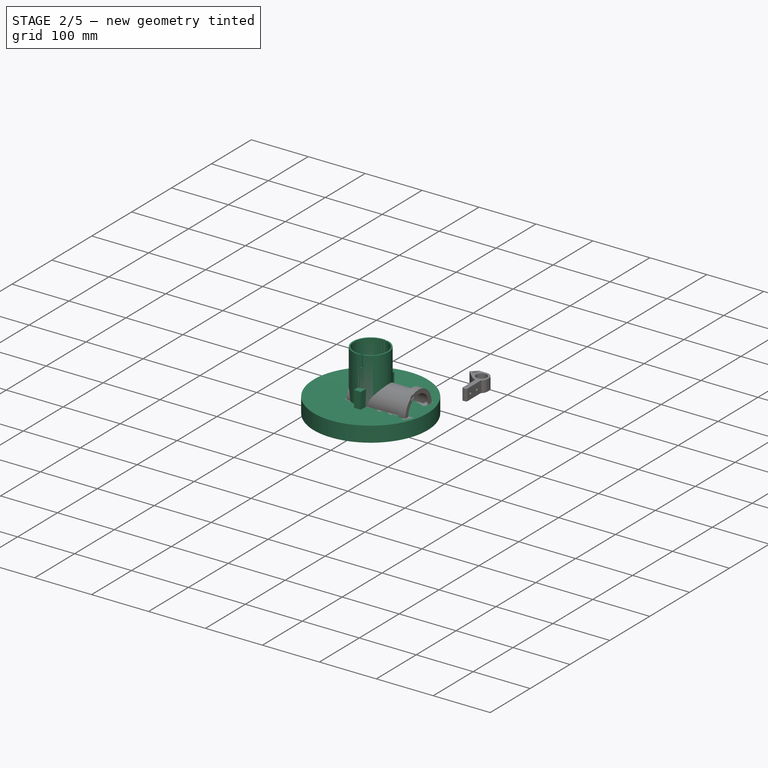
[diagram: stage 2 of 5 — iso view after this stage's code; geometry added in this stage tinted green]
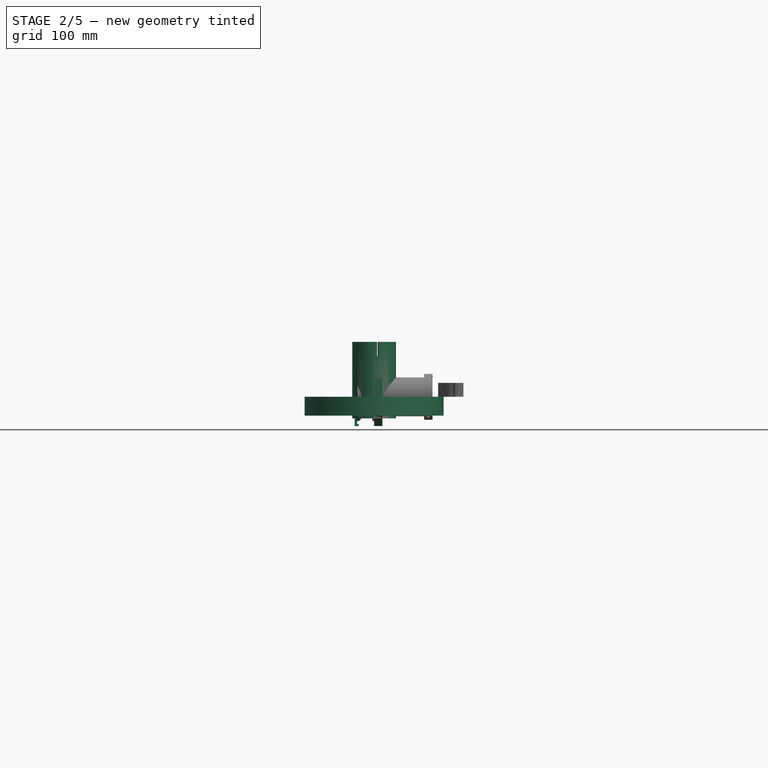
[diagram: stage 2 of 5 — front view after this stage's code; geometry added in this stage tinted green]
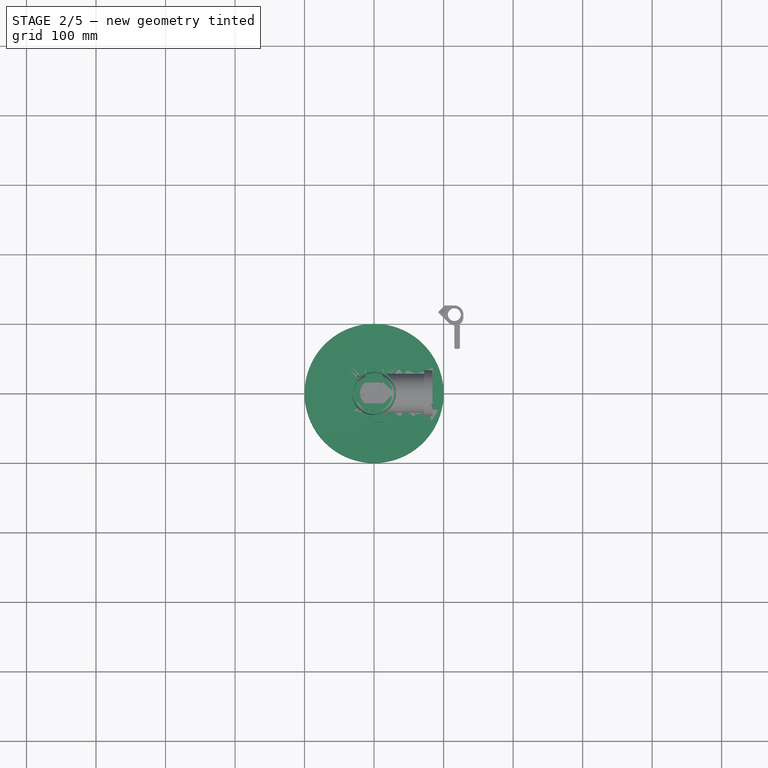
[diagram: stage 2 of 5 — top view after this stage's code; geometry added in this stage tinted green]
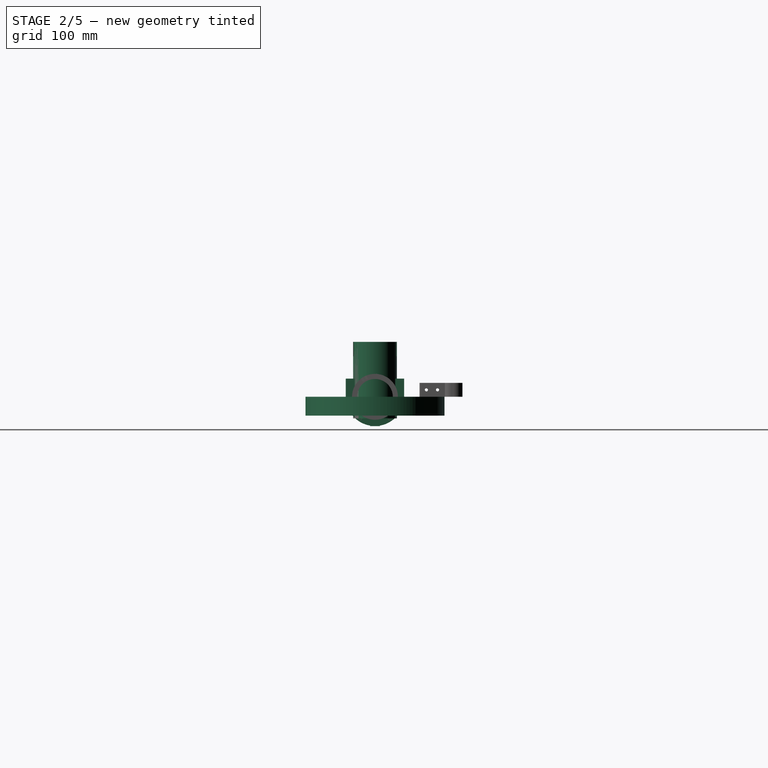
[diagram: stage 2 of 5 — right view after this stage's code; geometry added in this stage tinted green]
FEATURE [PartDesign::Plane] DatumPlane013  label="MirrorPad_DatumPlane_CPoint"
  AttachmentOffset = pos=(0,30.9063,-12) rot=(0,0,1;0rad)
  Length = 60.5742
  MapMode = 5
  Placement = pos=(-12,9.5e-15,30.9063) rot=(0.57735,0.57735,0.57735;2.0944rad)
  ResizeMode = 0
  Support = -> [YZ_Plane055]
  Width = 66.4805
  expr: .AttachmentOffset.Base.y = <<Parameters>>.sec_padheight
  expr: .AttachmentOffset.Base.z = -<<Parameters>>.sec_cpointpos
FEATURE [Sketcher::SketchObject] Sketch002  label="MirrorPad_CollGroove_Sketch"
  FullyConstrained = true
  MapMode = 5
  Placement = pos=(-12,9.5e-15,30.9063) rot=(0.57735,0.57735,0.57735;2.0944rad)
  Support = -> [DatumPlane013]
  expr: Constraints[5] = Spreadsheet.sec_tiltball
  expr: Constraints[13] = Spreadsheet.sec_tiltball / 2
  sketch-geometry (5):
    g0: LineSegment StartX=-4 StartY=0 StartZ=0 EndX=0 EndY=-1 EndZ=0
    g1: LineSegment StartX=0 StartY=-1 StartZ=0 EndX=4 EndY=0 EndZ=0
    g2: LineSegment StartX=-4 StartY=0 StartZ=0 EndX=-4 EndY=4 EndZ=0
    g3: LineSegment StartX=-4 StartY=4 StartZ=0 EndX=4 EndY=4 EndZ=0
    g4: LineSegment StartX=4 StartY=4 StartZ=0 EndX=4 EndY=0 EndZ=0
  constraints (14):
    c: PointOnObject(g0,g-1)
    c: Symmetric(g0,g1,g-2)
    c: PointOnObject(g0,g-2)
    c: Coincident(g1,g0)
    c: DistanceY(g0,g-1) = 1
    c: DistanceX(g0,g1) = 8
    c: Coincident(g2,g0)
    c: Vertical(g2)
    c: Coincident(g3,g2)
    c: Horizontal(g3)
    c: Coincident(g4,g3)
    c: Coincident(g4,g1)
    c: Vertical(g4)
    c: DistanceY(g4,g4) = 4
FEATURE [PartDesign::Plane] DatumPlane001  label="MirrorPad_DatumPlane_Top"
  AttachmentOffset = pos=(0,0,30.9063) rot=(0,0,1;0rad)
  Length = 60
  MapMode = 5
  Placement = pos=(0,0,30.9063) rot=(0,0,1;0rad)
  ResizeMode = 0
  Support = -> [XY_Plane055]
  Width = 60
  expr: .AttachmentOffset.Base.z = <<Parameters>>.sec_padheight
FEATURE [Sketcher::SketchObject] Sketch005  label="MirrorPad_Outer_Sketch"
  FullyConstrained = true
  MapMode = 5
  Support = -> [XY_Plane055]
  expr: Constraints[2] = <<Parameters>>.sec_hubdia
  expr: Constraints[3] = <<Parameters>>.sec_mdia * 2
  sketch-geometry (2):
    g0: Circle CenterX=0 CenterY=0 CenterZ=0 NormalX=0 NormalY=0 NormalZ=1 AngleXU=0 Radius=20
    g1: Circle CenterX=0 CenterY=0 CenterZ=0 NormalX=0 NormalY=0 NormalZ=1 AngleXU=0 Radius=50
  constraints (4):
    c: Coincident(g0,g-1)
    c: Coincident(g1,g0)
    c: Diameter(g0) = 40
    c: Diameter(g1) = 100
FEATURE [PartDesign::AdditiveCylinder] Cylinder005  label="TiltPlate_Base"
  Angle = 360
  AttacherType = Attacher::AttachEngine3D
  Height = 8
  MapMode = 5
  Radius = 20
  Support = -> [XY_Plane056]
  expr: Radius = <<Parameters>>.sec_hubdia / 2
  expr: Height = <<Parameters>>.sec_pthick
FEATURE [Sketcher::SketchObject] Sketch021  label="FocuserBase_Ring_Sketch"
  FullyConstrained = true
  MapMode = 5
  Placement = pos=(0,0,0) rot=(0.57735,0.57735,0.57735;2.0944rad)
  Support = -> [YZ_Plane057]
  expr: Constraints[20] = <<Parameters>>.foc_fthick * 1.5
  expr: .Constraints.flange_inner = <<Parameters>>.foc_inner / 2 + <<Parameters>>.foc_wall + <<Parameters>>.foc_spacing
  expr: Constraints[3] = .Constraints.flange_inner + <<Parameters>>.foc_baseflange * 1mm
  expr: Constraints[26] = <<Parameters>>.foc_springblock
  expr: Constraints[30] = <<Parameters>>.sec_fthick * 2
  sketch-geometry (14):
    g0: Circle CenterX=0 CenterY=0 CenterZ=0 NormalX=0 NormalY=0 NormalZ=1 AngleXU=0 Radius=30
    g1: Circle CenterX=0 CenterY=0 CenterZ=0 NormalX=0 NormalY=0 NormalZ=1 AngleXU=0 Radius=42
    g2: LineSegment StartX=0 StartY=0 StartZ=0 EndX=36.3731 EndY=-21 EndZ=0
    g3: LineSegment StartX=0 StartY=0 StartZ=0 EndX=-36.3731 EndY=-21 EndZ=0
    g4: LineSegment StartX=-42 StartY=26.25 StartZ=0 EndX=-22.1345 EndY=26.25 EndZ=0
    g5: LineSegment StartX=22.1345 StartY=26.25 StartZ=0 EndX=42 EndY=26.25 EndZ=0
    g6: LineSegment StartX=-42 StartY=26.25 StartZ=0 EndX=-42 EndY=7.15053e-05 EndZ=0
    g7: LineSegment StartX=-22.1345 StartY=26.25 StartZ=0 EndX=-22.1345 EndY=20.25 EndZ=0
    g8: LineSegment StartX=22.1345 StartY=26.25 StartZ=0 EndX=22.1345 EndY=20.25 EndZ=0
    g9: LineSegment StartX=42 StartY=26.25 StartZ=0 EndX=42 EndY=7.34258e-05 EndZ=0
    g10: GeomPoint X=0 Y=30 Z=0
    g11: ArcOfCircle CenterX=0 CenterY=0 CenterZ=0 NormalX=0 NormalY=0 NormalZ=1 AngleXU=0 Radius=30 StartAngle=2.40063 EndAngle=7.02415
    g12: ArcOfCircle CenterX=0 CenterY=0 CenterZ=0 NormalX=0 NormalY=0 NormalZ=1 AngleXU=0 Radius=42 StartAngle=3.14159 EndAngle=4.71239
    g13: ArcOfCircle CenterX=0 CenterY=0 CenterZ=0 NormalX=0 NormalY=0 NormalZ=1 AngleXU=0 Radius=42 StartAngle=4.71239 EndAngle=6.28319
  constraints (37):
    c: Coincident(g0,g-1)
    c: Coincident(g1,g0)
    c: Radius(g0) = 30  'flange_inner'
    c: Radius(g1) = 42
    c: Coincident(g2,g0)
    c: Coincident(g3,g0)
    c: PointOnObject(g2,g1)
    c: Angle(g3,g2) = 2.0944
    c: Horizontal(g4)
    c: Horizontal(g5)
    c: Coincident(g6,g4)
    c: Coincident(g7,g4)
    c: Vertical(g7)
    c: Coincident(g8,g5)
    c: Vertical(g8)
    c: Coincident(g9,g5)
    c: Symmetric(g4,g5,g-2)
    c: Equal(g4,g5)
    c: PointOnObject(g10,g0)
    c: PointOnObject(g10,g-2)
    c: DistanceY(g4,g10) = 3.75
    c: Coincident(g11,g-1)
    c: Coincident(g12,g11)
    c: Coincident(g12,g6)
    c: Coincident(g13,g11)
    c: Coincident(g13,g9)
    c: DistanceX(g4,g5) = 84
    c: Equal(g12,g1)
    c: Tangent(g6,g12)
    c: Tangent(g9,g13)
    c: DistanceY(g7,g7) = 6
    c: Coincident(g11,g7)
    c: Coincident(g11,g8)
    c: PointOnObject(g7,g0)
    c: Coincident(g13,g12)
    c: PointOnObject(g12,g-2)
    c: Symmetric(g3,g2,g-2)
FEATURE [PartDesign::Pad] Pad006  label="FocuserBase_Ring"
  Direction = (1,1,1)
  Length = 12
  Length2 = 100
  Placement = pos=(0,0,0) rot=(0.57735,0.57735,0.57735;2.0944rad)
  Profile = -> Sketch021
  Type = 0
  expr: Length = <<Parameters>>.foc_fheight
FEATURE [PartDesign::CoordinateSystem] Local_CS203  label="LCS_PoleBase_Bottom"
  AttacherType = Attacher::AttachEngine3D
  MapMode = 11
  Placement = pos=(0,0,0) rot=(0,0,1;1.5708rad)
  Support = -> [BaseFeature007]
FEATURE [PartDesign::CoordinateSystem] Local_CS204  label="LCS_PoleBase_RimTop"
  AttacherType = Attacher::AttachEngine3D
  MapMode = 11
  Placement = pos=(0,0,4) rot=(0,0,1;1.5708rad)
  Support = -> [BaseFeature007]
FEATURE [PartDesign::CoordinateSystem] Local_CS202  label="LCS_PoleBase_Hex"
  AttacherType = Attacher::AttachEngine3D
  AttachmentOffset = pos=(0,0,0) rot=(0,0,1;1.5708rad)
  MapMode = 11
  Placement = pos=(0,0,4) rot=(0,0,1;3.14159rad)
  Support = -> [BaseFeature007]
FEATURE [PartDesign::Body] Body022015  label="PoleBase"
  BaseFeature = -> difference
  Group = -> [BaseFeature007,Local_CS202,Local_CS203,Local_CS204]
  Origin = -> Origin068
  Tip = -> BaseFeature007
FEATURE [Sketcher::SketchObject] Sketch096  label="ArmSpacer_Sketch"
  FullyConstrained = true
  MapMode = 5
  Support = -> [XY_Plane069]
  sketch-geometry (12):
    g0: LineSegment StartX=-2 StartY=10 StartZ=0 EndX=11 EndY=10 EndZ=0
    g1: LineSegment StartX=11 StartY=10 StartZ=0 EndX=11 EndY=2.9 EndZ=0
    g2: LineSegment StartX=11 StartY=2.9 StartZ=0 EndX=12.5 EndY=2.9 EndZ=0
    g3: LineSegment StartX=12.5 StartY=2.9 StartZ=0 EndX=12.5 EndY=-2.9 EndZ=0
    g4: LineSegment StartX=12.5 StartY=-2.9 StartZ=0 EndX=11 EndY=-2.9 EndZ=0
    g5: LineSegment StartX=11 StartY=-2.9 StartZ=0 EndX=11 EndY=-10 EndZ=0
    g6: LineSegment StartX=11 StartY=-10 StartZ=0 EndX=-2 EndY=-10 EndZ=0
    g7: LineSegment StartX=-2 StartY=10 StartZ=0 EndX=-2 EndY=2.9 EndZ=0
    g8: LineSegment StartX=-2 StartY=2.9 StartZ=0 EndX=0 EndY=2.9 EndZ=0
    g9: LineSegment StartX=0 StartY=2.9 StartZ=0 EndX=0 EndY=-2.9 EndZ=0
    g10: LineSegment StartX=0 StartY=-2.9 StartZ=0 EndX=-2 EndY=-2.9 EndZ=0
    g11: LineSegment StartX=-2 StartY=-2.9 StartZ=0 EndX=-2 EndY=-10 EndZ=0
  constraints (35):
    c: Horizontal(g0)
    c: Vertical(g1)
    c: Coincident(g2,g1)
    c: Horizontal(g2)
    c: Coincident(g3,g2)
    c: Coincident(g4,g3)
    c: Coincident(g5,g4)
    c: Vertical(g5)
    c: Coincident(g6,g5)
    c: Horizontal(g6)
    c: Coincident(g0,g1)
    c: DistanceY(g3,g3) = 5.8
    c: Horizontal(g4)
    c: Equal(g6,g0)
    c: Symmetric(g2,g3,g-1)
    c: DistanceX(g1) = 11  'SpacerThick'
    c: DistanceX(g2,g2) = 1.5
    c: DistanceY(g5,g0) = 20
    c: Equal(g1,g5)
    c: Coincident(g7,g0)
    c: Vertical(g7)
    c: Coincident(g8,g7)
    c: PointOnObject(g8,g-2)
    c: Coincident(g9,g8)
    c: PointOnObject(g9,g-2)
    c: Coincident(g10,g9)
    c: Horizontal(g10)
    c: Coincident(g11,g10)
    c: Coincident(g11,g6)
    c: Vertical(g11)
    c: PointOnObject(g10,g7)
    c: DistanceX(g0,g-1) = 2
    c: PointOnObject(g8,g2)
    c: PointOnObject(g9,g4)
    c: Horizontal(g8)
FEATURE [PartDesign::Pad] Pad035  label="ArmSpacer_Base"
  Direction = (1,1,1)
  Length = 20
  Length2 = 100
  Midplane = true
  Profile = -> Sketch096
  Type = 0
FEATURE [PartDesign::CoordinateSystem] Local_CS164  label="LCS_LowerSideNut"
  AttacherType = Attacher::AttachEngine3D
  MapMode = 11
  Placement = pos=(120.5,74,7.5) rot=(0.57735,-0.57735,-0.57735;2.0944rad)
  Support = -> [Pocket054]
FEATURE [PartDesign::CoordinateSystem] Local_CS166  label="LCS_LowerSideBolt"
  AttacherType = Attacher::AttachEngine3D
  AttachmentOffset = pos=(0,0,1) rot=(0,0,1;0rad)
  MapMode = 11
  Placement = pos=(124.5,74,7.5) rot=(0.57735,0.57735,0.57735;2.0944rad)
  Support = -> [Pocket054]
  expr: .AttachmentOffset.Base.z = <<Parameters>>.sec_spthick
FEATURE [PartDesign::CoordinateSystem] Local_CS168  label="LCS_LowerClampNut"
  AttacherType = Attacher::AttachEngine3D
  MapMode = 11
  Placement = pos=(109,90,7.5) rot=(0.57735,-0.57735,-0.57735;2.0944rad)
  Support = -> [Pocket054]
FEATURE [PartDesign::CoordinateSystem] Local_CS170  label="LCS_LowerClampBolt"
  AttacherType = Attacher::AttachEngine3D
  AttachmentOffset = pos=(0,0,1) rot=(0,0,1;0rad)
  MapMode = 11
  Placement = pos=(124.5,90,7.5) rot=(0.57735,0.57735,0.57735;2.0944rad)
  Support = -> [Pocket054]
  expr: .AttachmentOffset.Base.z = <<Parameters>>.sec_spthick
FEATURE [PartDesign::CoordinateSystem] Local_CS172  label="LCS_LowerClamp_SidePlate"
  AttacherType = Attacher::AttachEngine3D
  MapMode = 11
  Placement = pos=(123.5,90,7.5) rot=(0.57735,-0.57735,-0.57735;2.0944rad)
  Support = -> [Pocket054]
FEATURE [PartDesign::Body] Body022006  label="LowerClamp"
  Group = -> [Sketch079,Pad029,DatumPlane023,Sketch081,Sketch082,DatumPlane024,Sketch083,Local_CS164,Local_CS166,Local_CS168,Local_CS170,Local_CS172,ShapeBinder003,Hole038,Pocket053,Pocket054]
  Origin = -> Origin059
  Placement = pos=(-2.5,0,770) rot=(0,0,1;0rad)
  Tip = -> Pocket054
  expr: .Placement.Base.z = <<Parameters>>.datum_sec_lowerclamp
  expr: .Placement.Base.x = -<<Parameters>>.sec_offset_x
FEATURE [Sketcher::SketchObject] Sketch114  label="FocuserPlate_MasterSketch"
  FullyConstrained = true
  MapMode = 5
  Placement = pos=(0,0,0) rot=(0.57735,0.57735,0.57735;2.0944rad)
  Support = -> [YZ_Plane014]
  expr: Constraints[3] = .Constraints.ShaftDia + (<<Parameters>>.fbearing_outer / 2 - <<Parameters>>.foc_spacing) * 1mm
  expr: Constraints[15] = <<Parameters>>.fbearing_outer
  expr: .Constraints.ShaftDia = <<Parameters>>.foc_inner / 2 + <<Parameters>>.foc_wall + <<Parameters>>.foc_spacing
  sketch-geometry (13):
    g0: Circle CenterX=0 CenterY=0 CenterZ=0 NormalX=0 NormalY=0 NormalZ=1 AngleXU=0 Radius=30
    g1: Circle CenterX=0 CenterY=0 CenterZ=0 NormalX=0 NormalY=0 NormalZ=1 AngleXU=0 Radius=33
    g2: LineSegment StartX=0 StartY=33 StartZ=0 EndX=-28.5788 EndY=-16.5 EndZ=0
    g3: LineSegment StartX=-28.5788 StartY=-16.5 StartZ=0 EndX=28.5788 EndY=-16.5 EndZ=0
    g4: LineSegment StartX=28.5788 StartY=-16.5 StartZ=0 EndX=0 EndY=33 EndZ=0
    g5: Circle CenterX=0 CenterY=33 CenterZ=0 NormalX=0 NormalY=0 NormalZ=1 AngleXU=0 Radius=5
    g6: Circle CenterX=28.5788 CenterY=-16.5 CenterZ=0 NormalX=0 NormalY=0 NormalZ=1 AngleXU=0 Radius=5
    g7: Circle CenterX=-28.5788 CenterY=-16.5 CenterZ=0 NormalX=0 NormalY=0 NormalZ=1 AngleXU=0 Radius=5
    g8: LineSegment StartX=-57.1577 StartY=33 StartZ=0 EndX=57.1577 EndY=33 EndZ=0
    g9: LineSegment StartX=0 StartY=-66 StartZ=0 EndX=57.1577 EndY=33 EndZ=0
    g10: LineSegment StartX=0 StartY=-66 StartZ=0 EndX=-57.1577 EndY=33 EndZ=0
    g11: LineSegment StartX=-57.1577 StartY=33 StartZ=0 EndX=0 EndY=0 EndZ=0
    g12: LineSegment StartX=57.1577 StartY=33 StartZ=0 EndX=0 EndY=0 EndZ=0
  constraints (32):
    c: Coincident(g0,g-1)
    c: Radius(g0) = 30  'ShaftDia'
    c: Coincident(g1,g-1)
    c: Radius(g1) = 33
    c: PointOnObject(g2,g1)
    c: PointOnObject(g2,g1)
    c: Coincident(g3,g2)
    c: PointOnObject(g3,g1)
    c: Horizontal(g3)
    c: Coincident(g4,g3)
    c: Coincident(g4,g2)
    c: PointOnObject(g2,g-2)
    c: Angle(g2,g4) = 1.0472
    c: Coincident(g5,g2)
    c: Coincident(g7,g2)
    c: Diameter(g7) = 10
    c: Equal(g7,g6)
    c: Equal(g7,g5)
    c: Coincident(g6,g3)
    c: Horizontal(g8)
    c: PointOnObject(g10,g-2)
    c: PointOnObject(g2,g8)
    c: PointOnObject(g2,g10)
    c: PointOnObject(g3,g9)
    c: Coincident(g9,g10)
    c: Coincident(g9,g8)
    c: Coincident(g10,g8)
    c: Parallel(g9,g2)
    c: Coincident(g11,g8)
    c: Coincident(g11,g-1)
    c: Coincident(g12,g8)
    c: Coincident(g12,g-1)
FEATURE [PartDesign::Body] Body022005  label="FocuserPlate"
  Group = -> [Sketch078,Pad012,Local_CS154,Local_CS155,Local_CS156,Local_CS157,Local_CS201,Local_CS205,Local_CS206,Sketch114]
  Origin = -> Origin014
  Placement = pos=(122,0,834) rot=(0,0,1;0rad)
  Tip = -> Pad012
  expr: .Placement.Base.z = <<Parameters>>.mirror_distance
  expr: .Placement.Base.x = <<Parameters>>.sec_focuserplate_x
FEATURE [Sketcher::SketchObject] Sketch115  label="FocuserBase_NutSupport_Sketch"
  ExternalGeometry = -> [PolarPattern003]
  FullyConstrained = false
  MapMode = 5
  Placement = pos=(6,0,23.25) rot=(0,0,1;0rad)
  Support = -> [DatumPlane027]
  sketch-geometry (14):
    g0: LineSegment StartX=2.2 StartY=26.225 StartZ=0 EndX=2.2 EndY=33.525 EndZ=0
    g1: LineSegment StartX=2.2 StartY=33.525 StartZ=0 EndX=1.92199 EndY=33.525 EndZ=0
    g2: LineSegment StartX=1.92199 StartY=33.525 StartZ=0 EndX=-4.12199 EndY=30.0355 EndZ=0
    g3: LineSegment StartX=-4.12199 StartY=30.0355 StartZ=0 EndX=-4.21466 EndY=29.875 EndZ=0
    g4: LineSegment StartX=-4.21466 StartY=29.875 StartZ=0 EndX=-4.12199 EndY=29.7145 EndZ=0
    g5: LineSegment StartX=-4.12199 StartY=29.7145 StartZ=0 EndX=1.92199 EndY=26.225 EndZ=0
    g6: LineSegment StartX=1.92199 StartY=26.225 StartZ=0 EndX=2.2 EndY=26.225 EndZ=0
    g7: LineSegment StartX=2.2 StartY=-33.525 StartZ=0 EndX=2.2 EndY=-26.225 EndZ=0
    g8: LineSegment StartX=2.2 StartY=-26.225 StartZ=0 EndX=1.92199 EndY=-26.225 EndZ=0
    g9: LineSegment StartX=1.92199 StartY=-26.225 StartZ=0 EndX=-4.12199 EndY=-29.7145 EndZ=0
    g10: LineSegment StartX=-4.12199 StartY=-29.7145 StartZ=0 EndX=-4.21466 EndY=-29.875 EndZ=0
    g11: LineSegment StartX=-4.21466 StartY=-29.875 StartZ=0 EndX=-4.12199 EndY=-30.0355 EndZ=0
    g12: LineSegment StartX=-4.12199 StartY=-30.0355 StartZ=0 EndX=1.92199 EndY=-33.525 EndZ=0
    g13: LineSegment StartX=1.92199 StartY=-33.525 StartZ=0 EndX=2.2 EndY=-33.525 EndZ=0
  constraints (24):
    c: Coincident(g0,g1)
    c: Coincident(g1,g2)
    c: Coincident(g2,g3)
    c: Coincident(g3,g4)
    c: Coincident(g4,g5)
    c: Coincident(g5,g6)
    c: Coincident(g6,g0)
    c: Vertical(g0)
    c: Angle(g2,g0) = 1.0472
    c: Angle(g0,g5) = 1.0472
    c: Coincident(g7,g8)
    c: Coincident(g8,g9)
    c: Coincident(g9,g10)
    c: Coincident(g10,g11)
    c: Coincident(g11,g12)
    c: Coincident(g12,g13)
    c: Coincident(g13,g7)
    c: Vertical(g7)
    c: Angle(g9,g7) = 1.0472
    c: Angle(g7,g12) = 1.0472
    c: Horizontal(g13)
    c: Horizontal(g8)
    c: Horizontal(g1)
    c: Horizontal(g6)
FEATURE [Sketcher::SketchObject] Sketch116  label="PriMirror_Profile"
  FullyConstrained = true
  MapMode = 5
  Placement = pos=(0,0,0) rot=(0.57735,0.57735,0.57735;2.0944rad)
  Support = -> [YZ_Plane]
  expr: Constraints[15] = <<Parameters>>.sys_flen
  expr: Constraints[14] = <<Parameters>>.pri_mthick
  expr: Constraints[13] = <<Parameters>>.pri_mdia / 2
  sketch-geometry (6):
    g0: LineSegment StartX=0 StartY=-27 StartZ=0 EndX=100 EndY=-27 EndZ=0
    g1: LineSegment StartX=100 StartY=-27 StartZ=0 EndX=100 EndY=-1.07e-14 EndZ=0
    g2: LineSegment StartX=5.551e-13 StartY=-2.5 StartZ=0 EndX=0 EndY=-27 EndZ=0
    g3: ArcOfParabola CenterX=5.551e-13 CenterY=-2.5 CenterZ=0 NormalX=0 NormalY=0 NormalZ=1 Focal=1000 AngleXU=1.5708 StartAngle=-100 EndAngle=0
    g4: GeomPoint X=5.551e-13 Y=997.5 Z=0
    g5: LineSegment StartX=5.551e-13 StartY=-2.5 StartZ=0 EndX=5.551e-13 EndY=997.5 EndZ=0
  constraints (17):
    c: PointOnObject(g0,g-2)
    c: Horizontal(g0)
    c: Coincident(g1,g0)
    c: PointOnObject(g1,g-1)
    c: Vertical(g1)
    c: PointOnObject(g2,g-2)
    c: Coincident(g2,g0)
    c: InternalAlignment(g4,g3)
    c: Coincident(g4,g5)
    c: Coincident(g3,g5)
    c: PointOnObject(g4,g-2)
    c: Coincident(g3,g1)
    c: Coincident(g2,g3)
    c: DistanceX(g0,g0) = 100
    c: DistanceY(g1,g1) = 27
    c: DistanceY(g5,g5) = 1000
    c: Vertical(g5)
FEATURE [PartDesign::Revolution] Revolution003  label="PrimaryMirror_Revolution"
  Angle = 360
  Axis = (-3e-16,3e-16,1)
  Base = (0,0,0)
  Placement = pos=(0,0,0) rot=(0.57735,0.57735,0.57735;2.0944rad)
  Profile = -> Sketch116
  ReferenceAxis = -> Z_Axis
  Reversed = true
FEATURE [PartDesign::Body] Body014  label="PrimaryMirror"
  Group = -> [Local_CS,Local_CS001,Local_CS039,Sketch116,Revolution003]
  Origin = -> Origin
  Tip = -> Revolution003
FEATURE [PartDesign::Pocket] Pocket055  label="ArmSpacer_Tab"
  BaseFeature = -> Pad035
  Length = 5
  Length2 = 100
  Midplane = true
  Profile = -> Sketch097
  Type = 1
FEATURE [PartDesign::Pocket] Pocket056  label="ArmSpacer_Hole"
  BaseFeature = -> Pocket055
  Length = 5
  Length2 = 100
  Midplane = true
  Profile = -> Sketch098
  Type = 1
FEATURE [PartDesign::Plane] DatumPlane034
  AttachmentOffset = pos=(6,0,0) rot=(1,0,0;1.0472rad)
  Length = 62.4248
  MapMode = 2
  Placement = pos=(6,0,0) rot=(1,0,0;1.0472rad)
  ResizeMode = 0
  Support = -> [XY_Plane076]
  Width = 89.6133
  expr: .AttachmentOffset.Base.x = <<Parameters>>.foc_fheight / 2
FEATURE [Sketcher::SketchObject] Sketch120
  FullyConstrained = true
  MapMode = 5
  Placement = pos=(6,0,0) rot=(1,0,0;1.0472rad)
  Support = -> [DatumPlane034]
  expr: Constraints[0] = <<Parameters>>.fbearing_outer + <<Parameters>>.sec_fthick * 2 - 0.5
  expr: Constraints[7] = <<Parameters>>.sec_spthick
  expr: Constraints[9] = -<<Parameters>>.foc_fheight / 2
  expr: Constraints[10] = <<Parameters>>.fbearing_tilt
  sketch-geometry (4):
    g0: LineSegment StartX=-6 StartY=7.75 StartZ=0 EndX=-6 EndY=-7.75 EndZ=0
    g1: LineSegment StartX=-6 StartY=7.75 StartZ=0 EndX=-7 EndY=7.75 EndZ=0
    g2: LineSegment StartX=-7 StartY=7.75 StartZ=0 EndX=-8.35607 EndY=-7.75 EndZ=0
    g3: LineSegment StartX=-8.35607 StartY=-7.75 StartZ=0 EndX=-6 EndY=-7.75 EndZ=0
  constraints (11):
    c: DistanceY(g0,g0) = 15.5
    c: Coincident(g1,g0)
    c: Horizontal(g1)
    c: Coincident(g2,g1)
    c: Coincident(g3,g2)
    c: Coincident(g3,g0)
    c: Horizontal(g3)
    c: DistanceX(g1,g1) = 1
    c: Symmetric(g0,g0,g-1)
    c: DistanceX(g0) = -6
    c: Angle(g2,g0) = 0.0872665
FEATURE [PartDesign::Pad] Pad040
  Direction = (1,1,1)
  Length = 42
  Length2 = 100
  Placement = pos=(6,0,0) rot=(1,0,0;1.0472rad)
  Profile = -> Sketch120
  Reversed = true
  Type = 0
  expr: Length = <<Parameters>>.foc_inner / 2 + <<Parameters>>.foc_wall + <<Parameters>>.foc_spacing + <<Parameters>>.foc_baseflange
FEATURE [PartDesign::Plane] DatumPlane035
  AttachmentOffset = pos=(0,0,0) rot=(0,-1,0;0.087266rad)
  Length = 97.5386
  MapMode = 4
  Placement = pos=(6,0,0) rot=(0.725486,0.178129,0.664786;2.75759rad)
  ResizeMode = 0
  Support = -> [DatumPlane034]
  Width = 97.8953
  expr: .AttachmentOffset.Rotation.Pitch = -<<Parameters>>.fbearing_tilt
FEATURE [Sketcher::SketchObject] Sketch121
  FullyConstrained = true
  MapMode = 5
  Placement = pos=(0,0,0) rot=(0.57735,0.57735,0.57735;2.0944rad)
  Support = -> [YZ_Plane076]
  expr: Constraints[5] = <<Parameters>>.foc_inner / 2 + <<Parameters>>.foc_wall + <<Parameters>>.foc_spacing
  expr: Constraints[11] = <<Parameters>>.fbearing_outer + <<Parameters>>.sec_fthick * 2 - 0.5
  expr: Constraints[18] = <<Parameters>>.fbearing_outer / 2 - <<Parameters>>.foc_spacing
  sketch-geometry (11):
    g0: ArcOfCircle CenterX=0 CenterY=0 CenterZ=0 NormalX=0 NormalY=0 NormalZ=1 AngleXU=0 Radius=30 StartAngle=5.49829 EndAngle=6.02088
    g1: ArcOfCircle CenterX=28.5788 CenterY=-16.5 CenterZ=0 NormalX=0 NormalY=0 NormalZ=1 AngleXU=0 Radius=7.75 StartAngle=4.18879 EndAngle=7.33038
    g2: LineSegment StartX=0 StartY=0 StartZ=0 EndX=28.5788 EndY=-16.5 EndZ=0
    g3: LineSegment StartX=28.9739 StartY=-7.77914 StartZ=0 EndX=32.4538 EndY=-9.7883 EndZ=0
    g4: LineSegment StartX=21.2239 StartY=-21.2025 StartZ=0 EndX=24.7038 EndY=-23.2117 EndZ=0
    g5: LineSegment StartX=32.4538 StartY=-9.7883 StartZ=0 EndX=24.7038 EndY=-23.2117 EndZ=0
    g6: GeomPoint X=25.9808 Y=-15 Z=0
    g7: LineSegment StartX=-9.71447 StartY=8.06677 StartZ=0 EndX=41.7355 EndY=8.06677 EndZ=0
    g8: LineSegment StartX=41.7355 StartY=8.06677 StartZ=0 EndX=41.7355 EndY=-33.1501 EndZ=0
    g9: LineSegment StartX=41.7355 StartY=-33.1501 StartZ=0 EndX=-9.71447 EndY=-33.1501 EndZ=0
    g10: LineSegment StartX=-9.71447 StartY=-33.1501 StartZ=0 EndX=-9.71447 EndY=8.06677 EndZ=0
  constraints (31):
    c: Coincident(g0,g-1)
    c: Coincident(g2,g0)
    c: Coincident(g3,g1)
    c: Coincident(g4,g1)
    c: Angle(g2) = -0.523599
    c: Radius(g0) = 30
    c: Parallel(g2,g3)
    c: Parallel(g4,g2)
    c: Coincident(g1,g2)
    c: Coincident(g3,g0)
    c: Coincident(g0,g4)
    c: Distance(g0,g0) = 15.5
    c: Coincident(g5,g1)
    c: Coincident(g5,g1)
    c: PointOnObject(g1,g5)
    c: Perpendicular(g3,g5)
    c: PointOnObject(g6,g2)
    c: PointOnObject(g6,g0)
    c: Distance(g6,g1) = 3
    c: Coincident(g7,g8)
    c: Coincident(g8,g9)
    c: Coincident(g9,g10)
    c: Coincident(g10,g7)
    c: Horizontal(g7)
    c: Horizontal(g9)
    c: Vertical(g8)
    c: Vertical(g10)
    c: DistanceX(g7) = -9.71447
    c: DistanceY(g7) = 8.06677
    c: DistanceX(g8) = 41.7355
    c: DistanceY(g8) = -33.1501
FEATURE [PartDesign::Pocket] Pocket061
  BaseFeature = -> Pad040
  Length = 5
  Length2 = 100
  Midplane = true
  Placement = pos=(6,0,0) rot=(1,0,0;1.0472rad)
  Profile = -> Sketch121
  Type = 1
FEATURE [Sketcher::SketchObject] Sketch122
  FullyConstrained = true
  MapMode = 5
  Placement = pos=(6,-1e-16,-1e-16) rot=(0.725486,0.178129,0.664786;2.75759rad)
  Support = -> [DatumPlane035]
  expr: Constraints[1] = <<Parameters>>.foc_inner / 2 + <<Parameters>>.foc_wall + <<Parameters>>.fbearing_outer / 2
  expr: Constraints[2] = <<Parameters>>.fbearing_inner
  sketch-geometry (1):
    g0: Circle CenterX=0 CenterY=-33 CenterZ=0 NormalX=0 NormalY=0 NormalZ=1 AngleXU=0 Radius=1.5
  constraints (3):
    c: PointOnObject(g0,g-2)
    c: DistanceY(g0,g-1) = 33
    c: Diameter(g0) = 3
FEATURE [PartDesign::Pocket] Pocket062
  BaseFeature = -> Pocket061
  Length = 5
  Length2 = 100
  Midplane = true
  Placement = pos=(6,0,0) rot=(1,0,0;1.0472rad)
  Profile = -> Sketch122
  Type = 1
FEATURE [PartDesign::Body] Body022023  label="FBearingPad"
  Group = -> [DatumPlane034,Sketch120,Pad040,DatumPlane035,Sketch121,Pocket061,Sketch122,Pocket062]
  Origin = -> Origin076
  Placement = pos=(123,0,834) rot=(0,0,1;0rad)
  Tip = -> Pocket062
  expr: .Placement.Base.x = <<Parameters>>.bolt_x + <<Parameters>>.sec_poledia / 2 + <<Parameters>>.sec_spthick
  expr: .Placement.Base.z = <<Parameters>>.mirror_distance
FEATURE [PartDesign::Plane] DatumPlane036  label="SecondaryCan_DatumPlane_Upper"
  AttachmentOffset = pos=(0,0,79) rot=(0,0,1;0rad)
  Length = 200.16
  MapMode = 5
  Placement = pos=(0,0,79) rot=(0,0,1;0rad)
  ResizeMode = 0
  Support = -> [XY_Plane077]
  Width = 292.16
  expr: .AttachmentOffset.Base.z = <<Parameters>>.sec_sidebolt_upper_z - <<Parameters>>.mirror_distance + <<Parameters>>.sec_stalkheight / 2
FEATURE [PartDesign::AdditiveCylinder] Cylinder007
  Angle = 360
  AttacherType = Attacher::AttachEngine3D
  AttachmentOffset = pos=(0,0,-31) rot=(0,0,1;0rad)
  Height = 110
  MapMode = 5
  Placement = pos=(0,0,-31) rot=(0,0,1;0rad)
  Radius = 31.5
  Support = -> [XY_Plane077]
  expr: Height = <<Parameters>>.sec_mdia / 2 + <<Parameters>>.sec_fthick * 2 + <<Parameters>>.sec_sidebolt_upper_z - <<Parameters>>.mirror_distance + <<Parameters>>.sec_stalkheight / 2
  expr: Radius = 63 / 2
  expr: .AttachmentOffset.Base.z = -(<<Parameters>>.sec_mdia / 2 + <<Parameters>>.sec_fthick * 2)
FEATURE [PartDesign::SubtractiveCylinder] Cylinder008
  Angle = 360
  AttacherType = Attacher::AttachEngine3D
  AttachmentOffset = pos=(0,0,-28) rot=(0,0,1;0rad)
  BaseFeature = -> Cylinder007
  Height = 110
  MapMode = 5
  Placement = pos=(0,0,-28) rot=(0,0,1;0rad)
  Radius = 29.1
  Support = -> [XY_Plane077]
  expr: Radius = 63 / 2 - 2.4
  expr: Height = <<Parameters>>.sec_mdia / 2 + <<Parameters>>.sec_fthick * 2 + <<Parameters>>.sec_sidebolt_upper_z - <<Parameters>>.mirror_distance + <<Parameters>>.sec_stalkheight / 2
  expr: .AttachmentOffset.Base.z = -(<<Parameters>>.sec_mdia / 2 + <<Parameters>>.sec_fthick)
FEATURE [PartDesign::ShapeBinder] ShapeBinder004
  Support = -> [Sketch112]
  TraceSupport = false
FEATURE [Sketcher::SketchObject] Sketch123
  ExternalGeometry = -> [ShapeBinder004]
  FullyConstrained = true
  MapMode = 5
  Placement = pos=(0,0,79) rot=(0,0,1;0rad)
  Support = -> [DatumPlane036]
  expr: Constraints[9] = <<Parameters>>.sec_mdia / 2 + <<Parameters>>.sec_fthick * 3
  expr: Constraints[27] = <<Parameters>>.sec_spthick + <<Parameters>>.sec_clamptol
  expr: Constraints[28] = <<Parameters>>.sec_clamptol
  sketch-geometry (11):
    g0: LineSegment StartX=-20.5652 StartY=-6.20901 StartZ=0 EndX=-18.8682 EndY=-4.51196 EndZ=0
    g1: LineSegment StartX=-18.8682 StartY=-4.51196 StartZ=0 EndX=9.3181 EndY=-32.6982 EndZ=0
    g2: LineSegment StartX=9.3181 StartY=-32.6982 StartZ=0 EndX=7.62105 EndY=-34.3953 EndZ=0
    g3: LineSegment StartX=7.62105 StartY=-34.3953 StartZ=0 EndX=-20.5652 EndY=-6.20901 EndZ=0
    g4: LineSegment StartX=-18.8682 StartY=4.51196 StartZ=0 EndX=-20.5652 EndY=6.20901 EndZ=0
    g5: LineSegment StartX=-18.8682 StartY=4.51196 StartZ=0 EndX=9.3181 EndY=32.6982 EndZ=0
    g6: LineSegment StartX=9.3181 StartY=32.6982 StartZ=0 EndX=7.62105 EndY=34.3953 EndZ=0
    g7: LineSegment StartX=7.62105 StartY=34.3953 StartZ=0 EndX=-20.5652 EndY=6.20901 EndZ=0
    g8: Circle CenterX=0 CenterY=0 CenterZ=0 NormalX=0 NormalY=0 NormalZ=1 AngleXU=0 Radius=34
    g9: GeomPoint X=-19.3631 Y=5.00693 Z=0
    g10: GeomPoint X=-19.3631 Y=-5.00693 Z=0
  constraints (30):
    c: Coincident(g1,g0)
    c: Coincident(g2,g1)
    c: Coincident(g3,g2)
    c: Coincident(g3,g0)
    c: Coincident(g5,g4)
    c: Coincident(g6,g5)
    c: Coincident(g7,g6)
    c: Coincident(g7,g4)
    c: Coincident(g8,g-1)
    c: Radius(g8) = 34
    c: Parallel(g5,g7)
    c: Parallel(g7,g-4)
    c: Parallel(g1,g3)
    c: Parallel(g3,g-3)
    c: Perpendicular(g1,g0)
    c: Perpendicular(g5,g4)
    c: Perpendicular(g2,g1)
    c: Perpendicular(g6,g5)
    c: PointOnObject(g9,g4)
    c: PointOnObject(g10,g0)
    c: PointOnObject(g10,g-3)
    c: PointOnObject(g10,g-5)
    c: PointOnObject(g9,g-4)
    c: PointOnObject(g9,g-5)
    c: Equal(g0,g4)
    c: PointOnObject(g1,g8)
    c: PointOnObject(g5,g8)
    c: Distance(g0,g10) = 1.7
    c: Distance(g10,g0) = 0.7
    c: Equal(g5,g1)
FEATURE [PartDesign::Pocket] Pocket064
  BaseFeature = -> Cylinder008
  Length = 20.7
  Length2 = 100
  Placement = pos=(0,0,-28) rot=(0,0,1;0rad)
  Profile = -> Sketch123
  Type = 0
  expr: Length = <<Parameters>>.sec_stalkheight + <<Parameters>>.sec_clamptol
FEATURE [Sketcher::SketchObject] Sketch126  label="MirrorPad_InnerShaft_Sketch"
  FullyConstrained = true
  MapMode = 5
  Placement = pos=(0,0,0) rot=(1,0,0;1.5708rad)
  Support = -> [XZ_Plane055]
  expr: Constraints[2] = <<Parameters>>.sec_mtvar + <<Parameters>>.sec_hubdia / 4
  expr: Constraints[1] = <<Parameters>>.sec_collbolt * 1.1
  sketch-geometry (1):
    g0: Circle CenterX=0 CenterY=14 CenterZ=0 NormalX=0 NormalY=0 NormalZ=1 AngleXU=0 Radius=2.2
  constraints (3):
    c: PointOnObject(g0,g-2)
    c: Diameter(g0) = 4.4
    c: DistanceY(g0) = 14
FEATURE [Sketcher::SketchObject] Sketch125  label="MirrorPad_InnerNut_Sketch"
  ExternalGeometry = -> [Sketch126]
  FullyConstrained = true
  MapMode = 5
  Placement = pos=(0,0,0) rot=(1,0,0;1.5708rad)
  Support = -> [XZ_Plane055]
  sketch-geometry (10):
    g0: LineSegment StartX=2.10733 StartY=10.35 StartZ=0 EndX=4.21466 EndY=14 EndZ=0
    g1: LineSegment StartX=4.21466 StartY=14 StartZ=0 EndX=2.10733 EndY=17.65 EndZ=0
    g2: LineSegment StartX=2.10733 StartY=17.65 StartZ=0 EndX=-2.10733 EndY=17.65 EndZ=0
    g3: LineSegment StartX=-2.10733 StartY=17.65 StartZ=0 EndX=-4.21466 EndY=14 EndZ=0
    g4: LineSegment StartX=-4.21466 StartY=14 StartZ=0 EndX=-2.10733 EndY=10.35 EndZ=0
    g5: LineSegment StartX=-2.10733 StartY=10.35 StartZ=0 EndX=2.10733 EndY=10.35 EndZ=0
    g6: Circle CenterX=0 CenterY=14 CenterZ=0 NormalX=0 NormalY=0 NormalZ=1 AngleXU=0 Radius=4.21466
    g7: LineSegment StartX=-2.10733 StartY=17.65 StartZ=0 EndX=2.10733 EndY=10.35 EndZ=0
    g8: LineSegment StartX=2.10733 StartY=17.65 StartZ=0 EndX=-2.10733 EndY=10.35 EndZ=0
    g9: LineSegment StartX=4.21466 StartY=14 StartZ=0 EndX=-4.21466 EndY=14 EndZ=0
  constraints (26):
    c: Coincident(g0,g1)
    c: Coincident(g1,g2)
    c: Coincident(g2,g3)
    c: Coincident(g3,g4)
    c: Coincident(g4,g5)
    c: Coincident(g5,g0)
    c: PointOnObject(g0,g6)
    c: PointOnObject(g1,g6)
    c: PointOnObject(g2,g6)
    c: PointOnObject(g3,g6)
    c: PointOnObject(g4,g6)
    c: PointOnObject(g5,g6)
    c: Horizontal(g2)
    c: DistanceY(g0,g1) = 7.3
    c: Coincident(g7,g2)
    c: Coincident(g7,g0)
    c: Coincident(g8,g1)
    c: Coincident(g8,g4)
    c: Coincident(g9,g0)
    c: Coincident(g9,g3)
    c: Horizontal(g9)
    c: Angle(g9,g8) = 1.0472
    c: Angle(g7,g9) = 1.0472
    c: PointOnObject(g6,g8)
    c: PointOnObject(g6,g9)
    c: Coincident(g6,g-3)
FEATURE [PartDesign::Pocket] Pocket066  label="MirrorPad_InnerShaft"
  BaseFeature = -> PolarPattern
  Length = 5
  Length2 = 100
  Midplane = true
  Placement = pos=(0,0,0) rot=(1,0,0;1.5708rad)
  Profile = -> Sketch126
  Type = 1
FEATURE [PartDesign::Pocket] Pocket067  label="MirrorPad_InnerNut"
  BaseFeature = -> Pocket066
  Length = 20
  Length2 = 100
  Midplane = true
  Placement = pos=(0,0,0) rot=(1,0,0;1.5708rad)
  Profile = -> Sketch125
  Type = 0
FEATURE [PartDesign::AdditiveCylinder] Cylinder009  label="MirrorCap_Body"
  Angle = 360
  AttacherType = Attacher::AttachEngine3D
  AttachmentOffset = pos=(0,0,-35) rot=(0,0,1;0rad)
  Height = 63.9063
  MapMode = 5
  Placement = pos=(0,0,-35) rot=(0,0,1;0rad)
  Radius = 26.55
  Support = -> [XY_Plane078]
  expr: .AttachmentOffset.Base.z = -<<Parameters>>.sec_mdia / 2 - <<Parameters>>.sec_mthick
  expr: Height = <<Parameters>>.sec_mdia / 2 + <<Parameters>>.sec_mthick + <<Parameters>>.sec_padheight - <<Parameters>>.sec_mtvar / 2
  expr: Radius = <<Parameters>>.sec_mdia / 2 + 0.7 / 2 + <<Parameters>>.sec_thinwall
FEATURE [Sketcher::SketchObject] Sketch127  label="MirrorCap_Cavity_Sketch"
  FullyConstrained = true
  MapMode = 5
  Support = -> [XY_Plane078]
  expr: Constraints[10] = <<Parameters>>.sec_hubdia * 0.75 + 0.5
  expr: Constraints[4] = <<Parameters>>.sec_hubdia + 0.5
  expr: Constraints[26] = <<Parameters>>.sec_hubdia * 0.75 + 0.5
  sketch-geometry (10):
    g0: LineSegment StartX=-13.3229 StartY=15.25 StartZ=0 EndX=13.3229 EndY=15.25 EndZ=0
    g1: LineSegment StartX=-13.3229 StartY=-15.25 StartZ=0 EndX=13.3229 EndY=-15.25 EndZ=0
    g2: LineSegment StartX=15.25 StartY=13.3229 StartZ=0 EndX=15.25 EndY=-13.3229 EndZ=0
    g3: Circle CenterX=0 CenterY=0 CenterZ=0 NormalX=0 NormalY=0 NormalZ=1 AngleXU=0 Radius=20.25
    g4: ArcOfCircle CenterX=0 CenterY=0 CenterZ=0 NormalX=0 NormalY=0 NormalZ=1 AngleXU=0 Radius=20.25 StartAngle=5.43044 EndAngle=5.56513
    g5: ArcOfCircle CenterX=0 CenterY=0 CenterZ=0 NormalX=0 NormalY=0 NormalZ=1 AngleXU=0 Radius=20.25 StartAngle=0.718056 EndAngle=0.852741
    g6: LineSegment StartX=-13.3229 StartY=15.25 StartZ=0 EndX=-13.3229 EndY=-15.25 EndZ=0
    g7: ArcOfCircle CenterX=0 CenterY=0 CenterZ=0 NormalX=0 NormalY=0 NormalZ=1 AngleXU=0 Radius=20.25 StartAngle=2.28885 EndAngle=2.42354
    g8: ArcOfCircle CenterX=0 CenterY=0 CenterZ=0 NormalX=0 NormalY=0 NormalZ=1 AngleXU=0 Radius=20.25 StartAngle=3.85965 EndAngle=3.99433
    g9: LineSegment StartX=-15.25 StartY=13.3229 StartZ=0 EndX=-15.25 EndY=-13.3229 EndZ=0
  constraints (27):
    c: Horizontal(g0)
    c: Horizontal(g1)
    c: Vertical(g2)
    c: Coincident(g3,g-1)
    c: Diameter(g3) = 40.5
    c: Coincident(g4,g1)
    c: Coincident(g4,g2)
    c: Coincident(g5,g2)
    c: Coincident(g5,g0)
    c: Equal(g4,g3)
    c: DistanceY(g1,g0) = 30.5
    c: Coincident(g6,g0)
    c: Coincident(g6,g1)
    c: Vertical(g6)
    c: Coincident(g7,g4)
    c: Coincident(g7,g0)
    c: Coincident(g8,g4)
    c: Coincident(g8,g1)
    c: Coincident(g9,g7)
    c: Coincident(g9,g8)
    c: Vertical(g9)
    c: Equal(g7,g8)
    c: Equal(g8,g3)
    c: Coincident(g4,g5)
    c: Coincident(g4,g-1)
    c: Symmetric(g7,g2,g-2)
    c: DistanceX(g7,g2) = 30.5
FEATURE [PartDesign::Pocket] Pocket068  label="MirrorCap_Cavity"
  BaseFeature = -> Cylinder009
  Length = 5
  Length2 = 100
  Midplane = true
  Placement = pos=(0,0,-35) rot=(0,0,1;0rad)
  Profile = -> Sketch127
  Type = 1
FEATURE [Sketcher::SketchObject] Sketch128  label="MirrorCap_Profile_Sketch"
  FullyConstrained = true
  MapMode = 5
  Placement = pos=(0,0,0) rot=(1,0,0;1.5708rad)
  Support = -> [XZ_Plane078]
  expr: Constraints[28] = <<Parameters>>.sec_mthick + <<Parameters>>.sec_mfloat * sqrt(2)
  expr: Constraints[27] = (<<Parameters>>.sec_mthick + <<Parameters>>.sec_mfloat) * 2
  expr: Constraints[22] = <<Parameters>>.sec_mdia + <<Parameters>>.sec_thinwall * 2 + 1
  expr: Constraints[17] = <<Parameters>>.sec_mtvar
  expr: Constraints[18] = <<Parameters>>.sec_mtvar + <<Parameters>>.sec_hubdia / 4
  expr: Constraints[16] = <<Parameters>>.sec_collbolt * 1.1
  sketch-geometry (12):
    g0: LineSegment StartX=-26.7 StartY=-39.5284 StartZ=0 EndX=26.7 EndY=13.8716 EndZ=0
    g1: LineSegment StartX=26.7 StartY=13.8716 StartZ=0 EndX=26.7 EndY=-63.5284 EndZ=0
    g2: LineSegment StartX=26.7 StartY=-63.5284 StartZ=0 EndX=-26.7 EndY=-63.5284 EndZ=0
    g3: ArcOfCircle CenterX=0 CenterY=16 CenterZ=0 NormalX=0 NormalY=0 NormalZ=1 AngleXU=0 Radius=2.2 StartAngle=1.7913e-12 EndAngle=3.14159
    g4: ArcOfCircle CenterX=2.6e-15 CenterY=12 CenterZ=0 NormalX=0 NormalY=0 NormalZ=1 AngleXU=0 Radius=2.2 StartAngle=3.14159 EndAngle=6.28319
    g5: LineSegment StartX=-2.2 StartY=16 StartZ=0 EndX=-2.2 EndY=12 EndZ=0
    g6: LineSegment StartX=2.2 StartY=16 StartZ=0 EndX=2.2 EndY=12 EndZ=0
    g7: LineSegment StartX=-2.2 StartY=16 StartZ=0 EndX=2.2 EndY=12 EndZ=0
    g8: LineSegment StartX=-2.2 StartY=12 StartZ=0 EndX=2.2 EndY=16 EndZ=0
    g9: GeomPoint X=3.5496e-12 Y=14 Z=0
    g10: GeomPoint X=0 Y=-12.8284 Z=0
    g11: LineSegment StartX=-26.7 StartY=-39.5284 StartZ=0 EndX=-26.7 EndY=-63.5284 EndZ=0
  constraints (29):
    c: Coincident(g1,g0)
    c: Vertical(g1)
    c: Coincident(g2,g1)
    c: Tangent(g3,g6) = 1.5708
    c: Tangent(g3,g5) = -1.5708
    c: Tangent(g5,g4) = -1.5708
    c: Tangent(g6,g4) = 1.5708
    c: Vertical(g5)
    c: Equal(g3,g4)
    c: PointOnObject(g3,g-2)
    c: Coincident(g7,g3)
    c: Coincident(g7,g4)
    c: Coincident(g8,g4)
    c: Coincident(g8,g3)
    c: PointOnObject(g9,g7)
    c: PointOnObject(g9,g8)
    c: Diameter(g3) = 4.4
    c: DistanceY(g6,g6) = 4
    c: DistanceY(g-1,g9) = 14
    c: Angle(g-1,g0) = 0.785398
    c: PointOnObject(g10,g0)
    c: PointOnObject(g10,g-2)
    c: DistanceX(g2,g2) = 53.4
    c: Symmetric(g2,g1,g-2)
    c: Coincident(g11,g0)
    c: Coincident(g11,g2)
    c: Vertical(g11)
    c: DistanceY(g11,g11) = 24
    c: DistanceY(g10,g-1) = 12.8284
FEATURE [Sketcher::SketchObject] Sketch129  label="MirrorCap_CounterBore_Sketch"
  AttachmentOffset = pos=(0,0,19.5) rot=(0,0,1;0rad)
  FullyConstrained = true
  MapMode = 5
  Placement = pos=(0,-19.5,-4.3e-15) rot=(1,0,0;1.5708rad)
  Support = -> [XZ_Plane078]
  expr: Constraints[15] = <<Parameters>>.sec_mtvar + <<Parameters>>.sec_hubdia / 4
  expr: Constraints[11] = <<Parameters>>.sec_mtvar
  expr: Constraints[10] = <<Parameters>>.sec_collbolt * 2
  expr: .AttachmentOffset.Base.z = <<Parameters>>.sec_hubdia * 0.75 / 2 + <<Parameters>>.sec_pthick / 2 + 0.5
  sketch-geometry (7):
    g0: ArcOfCircle CenterX=-8e-16 CenterY=16 CenterZ=0 NormalX=0 NormalY=0 NormalZ=1 AngleXU=0 Radius=4 StartAngle=2e-16 EndAngle=3.14159
    g1: ArcOfCircle CenterX=-1e-16 CenterY=12 CenterZ=0 NormalX=0 NormalY=0 NormalZ=1 AngleXU=0 Radius=4 StartAngle=3.14159 EndAngle=6.28319
    g2: LineSegment StartX=-4 StartY=16 StartZ=0 EndX=-4 EndY=12 EndZ=0
    g3: LineSegment StartX=4 StartY=16 StartZ=0 EndX=4 EndY=12 EndZ=0
    g4: LineSegment StartX=-4 StartY=16 StartZ=0 EndX=4 EndY=12 EndZ=0
    g5: LineSegment StartX=4 StartY=16 StartZ=0 EndX=-4 EndY=12 EndZ=0
    g6: GeomPoint X=0 Y=14 Z=0
  constraints (16):
    c: Tangent(g0,g3) = 1.5708
    c: Tangent(g0,g2) = -1.5708
    c: Tangent(g2,g1) = -1.5708
    c: Tangent(g3,g1) = 1.5708
    c: Vertical(g2)
    c: Equal(g0,g1)
    c: Coincident(g4,g0)
    c: Coincident(g4,g1)
    c: Coincident(g5,g0)
    c: Coincident(g5,g1)
    c: Diameter(g0) = 8
    c: DistanceY(g3,g3) = 4
    c: PointOnObject(g6,g4)
    c: PointOnObject(g6,g-2)
    c: PointOnObject(g6,g5)
    c: DistanceY(g6) = 14
FEATURE [Sketcher::SketchObject] Sketch130  label="MirrorOuter_Profile_Sketch"
  FullyConstrained = true
  MapMode = 5
  Placement = pos=(0,0,0) rot=(1,0,0;1.5708rad)
  Support = -> [XZ_Plane079]
  expr: Constraints[16] = <<Parameters>>.sec_collbolt * 1.1
  expr: Constraints[18] = <<Parameters>>.sec_mtvar + <<Parameters>>.sec_hubdia / 4
  expr: Constraints[17] = <<Parameters>>.sec_mtvar
  expr: Constraints[21] = <<Parameters>>.sec_mdia + <<Parameters>>.sec_thinwall * 2 + 1
  expr: Constraints[26] = (<<Parameters>>.sec_mthick + <<Parameters>>.sec_mfloat) * 2
  sketch-geometry (12):
    g0: LineSegment StartX=-26.7 StartY=-26.7 StartZ=0 EndX=26.7 EndY=26.7 EndZ=0
    g1: LineSegment StartX=26.7 StartY=26.7 StartZ=0 EndX=26.7 EndY=-50.7 EndZ=0
    g2: LineSegment StartX=26.7 StartY=-50.7 StartZ=0 EndX=-26.7 EndY=-50.7 EndZ=0
    g3: ArcOfCircle CenterX=0 CenterY=16 CenterZ=0 NormalX=0 NormalY=0 NormalZ=1 AngleXU=0 Radius=2.2 StartAngle=1.7906e-12 EndAngle=3.14159
    g4: ArcOfCircle CenterX=2.9e-15 CenterY=12 CenterZ=0 NormalX=0 NormalY=0 NormalZ=1 AngleXU=0 Radius=2.2 StartAngle=3.14159 EndAngle=6.28319
    g5: LineSegment StartX=-2.2 StartY=16 StartZ=0 EndX=-2.2 EndY=12 EndZ=0
    g6: LineSegment StartX=2.2 StartY=16 StartZ=0 EndX=2.2 EndY=12 EndZ=0
    g7: LineSegment StartX=-2.2 StartY=16 StartZ=0 EndX=2.2 EndY=12 EndZ=0
    g8: LineSegment StartX=-2.2 StartY=12 StartZ=0 EndX=2.2 EndY=16 EndZ=0
    g9: GeomPoint X=3.5503e-12 Y=14 Z=0
    g10: GeomPoint X=0 Y=0 Z=0
    g11: LineSegment StartX=-26.7 StartY=-26.7 StartZ=0 EndX=-26.7 EndY=-50.7 EndZ=0
  constraints (28):
    c: Coincident(g1,g0)
    c: Vertical(g1)
    c: Coincident(g2,g1)
    c: Tangent(g3,g6) = 1.5708
    c: Tangent(g3,g5) = -1.5708
    c: Tangent(g5,g4) = -1.5708
    c: Tangent(g6,g4) = 1.5708
    c: Vertical(g5)
    c: Equal(g3,g4)
    c: PointOnObject(g3,g-2)
    c: Coincident(g7,g3)
    c: Coincident(g7,g4)
    c: Coincident(g8,g4)
    c: Coincident(g8,g3)
    c: PointOnObject(g9,g7)
    c: PointOnObject(g9,g8)
    c: Diameter(g3) = 4.4
    c: DistanceY(g6,g6) = 4
    c: DistanceY(g-1,g9) = 14
    c: Angle(g-1,g0) = 0.785398
    c: PointOnObject(g10,g0)
    c: DistanceX(g2,g2) = 53.4
    c: Symmetric(g2,g1,g-2)
    c: Coincident(g11,g0)
    c: Coincident(g11,g2)
    c: Vertical(g11)
    c: DistanceY(g11,g11) = 24
    c: Coincident(g10,g-1)
FEATURE [PartDesign::AdditiveCylinder] Cylinder010  label="MirrorOuter_Body"
  Angle = 360
  AttacherType = Attacher::AttachEngine3D
  AttachmentOffset = pos=(0,0,-35) rot=(0,0,1;0rad)
  Height = 63.9063
  MapMode = 5
  Placement = pos=(0,0,-35) rot=(0,0,1;0rad)
  Radius = 25
  Support = -> [XY_Plane079]
  expr: Radius = <<Parameters>>.sec_mdia / 2
  expr: Height = <<Parameters>>.sec_mdia / 2 + <<Parameters>>.sec_mthick + <<Parameters>>.sec_padheight - <<Parameters>>.sec_mtvar / 2
  expr: .AttachmentOffset.Base.z = -<<Parameters>>.sec_mdia / 2 - <<Parameters>>.sec_mthick
FEATURE [Sketcher::SketchObject] Sketch131  label="MirrorOuter_CounterBore_Sketch"
  AttachmentOffset = pos=(0,0,19.5) rot=(0,0,1;0rad)
  FullyConstrained = true
  MapMode = 5
  Placement = pos=(0,-19.5,-4.3e-15) rot=(1,0,0;1.5708rad)
  Support = -> [XZ_Plane079]
  expr: .AttachmentOffset.Base.z = <<Parameters>>.sec_hubdia * 0.75 / 2 + <<Parameters>>.sec_pthick / 2 + 0.5
  expr: Constraints[10] = <<Parameters>>.sec_collbolt * 2
  expr: Constraints[11] = <<Parameters>>.sec_mtvar
  expr: Constraints[15] = <<Parameters>>.sec_mtvar + <<Parameters>>.sec_hubdia / 4
  sketch-geometry (7):
    g0: ArcOfCircle CenterX=1.7e-15 CenterY=16 CenterZ=0 NormalX=0 NormalY=0 NormalZ=1 AngleXU=0 Radius=4 StartAngle=0 EndAngle=3.14159
    g1: ArcOfCircle CenterX=1.7e-15 CenterY=12 CenterZ=0 NormalX=0 NormalY=0 NormalZ=1 AngleXU=0 Radius=4 StartAngle=3.14159 EndAngle=6.28319
    g2: LineSegment StartX=-4 StartY=16 StartZ=0 EndX=-4 EndY=12 EndZ=0
    g3: LineSegment StartX=4 StartY=16 StartZ=0 EndX=4 EndY=12 EndZ=0
    g4: LineSegment StartX=-4 StartY=16 StartZ=0 EndX=4 EndY=12 EndZ=0
    g5: LineSegment StartX=4 StartY=16 StartZ=0 EndX=-4 EndY=12 EndZ=0
    g6: GeomPoint X=0 Y=14 Z=0
  constraints (16):
    c: Tangent(g0,g3) = 1.5708
    c: Tangent(g0,g2) = -1.5708
    c: Tangent(g2,g1) = -1.5708
    c: Tangent(g3,g1) = 1.5708
    c: Vertical(g2)
    c: Equal(g0,g1)
    c: Coincident(g4,g0)
    c: Coincident(g4,g1)
    c: Coincident(g5,g0)
    c: Coincident(g5,g1)
    c: Diameter(g0) = 8
    c: DistanceY(g3,g3) = 4
    c: PointOnObject(g6,g4)
    c: PointOnObject(g6,g-2)
    c: PointOnObject(g6,g5)
    c: DistanceY(g6) = 14
FEATURE [Sketcher::SketchObject] Sketch132  label="MirrorOuter_Cavity_Sketch"
  FullyConstrained = true
  MapMode = 5
  Support = -> [XY_Plane079]
  expr: Constraints[4] = <<Parameters>>.sec_hubdia + 0.5
  expr: Constraints[26] = <<Parameters>>.sec_hubdia * 0.75 + 0.5
  expr: Constraints[10] = <<Parameters>>.sec_hubdia * 0.75 + 0.5
  sketch-geometry (10):
    g0: LineSegment StartX=-13.3229 StartY=15.25 StartZ=0 EndX=13.3229 EndY=15.25 EndZ=0
    g1: LineSegment StartX=-13.3229 StartY=-15.25 StartZ=0 EndX=13.3229 EndY=-15.25 EndZ=0
    g2: LineSegment StartX=15.25 StartY=13.3229 StartZ=0 EndX=15.25 EndY=-13.3229 EndZ=0
    g3: Circle CenterX=0 CenterY=0 CenterZ=0 NormalX=0 NormalY=0 NormalZ=1 AngleXU=0 Radius=20.25
    g4: ArcOfCircle CenterX=0 CenterY=0 CenterZ=0 NormalX=0 NormalY=0 NormalZ=1 AngleXU=0 Radius=20.25 StartAngle=5.43044 EndAngle=5.56513
    g5: ArcOfCircle CenterX=0 CenterY=0 CenterZ=0 NormalX=0 NormalY=0 NormalZ=1 AngleXU=0 Radius=20.25 StartAngle=0.718056 EndAngle=0.852741
    g6: LineSegment StartX=-13.3229 StartY=15.25 StartZ=0 EndX=-13.3229 EndY=-15.25 EndZ=0
    g7: ArcOfCircle CenterX=0 CenterY=0 CenterZ=0 NormalX=0 NormalY=0 NormalZ=1 AngleXU=0 Radius=20.25 StartAngle=2.28885 EndAngle=2.42354
    g8: ArcOfCircle CenterX=0 CenterY=0 CenterZ=0 NormalX=0 NormalY=0 NormalZ=1 AngleXU=0 Radius=20.25 StartAngle=3.85965 EndAngle=3.99433
    g9: LineSegment StartX=-15.25 StartY=13.3229 StartZ=0 EndX=-15.25 EndY=-13.3229 EndZ=0
  constraints (27):
    c: Horizontal(g0)
    c: Horizontal(g1)
    c: Vertical(g2)
    c: Coincident(g3,g-1)
    c: Diameter(g3) = 40.5
    c: Coincident(g4,g1)
    c: Coincident(g4,g2)
    c: Coincident(g5,g2)
    c: Coincident(g5,g0)
    c: Equal(g4,g3)
    c: DistanceY(g1,g0) = 30.5
    c: Coincident(g6,g0)
    c: Coincident(g6,g1)
    c: Vertical(g6)
    c: Coincident(g5,g4)
    c: Coincident(g5,g-1)
    c: Equal(g5,g3)
    c: Coincident(g7,g4)
    c: Coincident(g7,g0)
    c: Coincident(g8,g4)
    c: Coincident(g8,g1)
    c: Coincident(g9,g7)
    c: Coincident(g9,g8)
    c: Vertical(g9)
    c: Symmetric(g7,g2,g-2)
    c: Equal(g7,g8)
    c: DistanceX(g7,g2) = 30.5
FEATURE [PartDesign::Pocket] Pocket071  label="MirrorOuter_Cavity"
  BaseFeature = -> Cylinder010
  Length = 5
  Length2 = 100
  Midplane = true
  Placement = pos=(0,0,-35) rot=(0,0,1;0rad)
  Profile = -> Sketch132
  Type = 1
FEATURE [PartDesign::AdditiveCylinder] Cylinder011  label="DummyMirror_Cylinder"
  Angle = 360
  AttacherType = Attacher::AttachEngine3D
  AttachmentOffset = pos=(0,0,-26) rot=(0,0,1;0rad)
  Height = 66.1421
  MapMode = 5
  Placement = pos=(0,0,-26) rot=(0,0,1;0rad)
  Radius = 25.35
  Support = -> [XY_Plane080]
  expr: .AttachmentOffset.Base.z = -<<Parameters>>.sec_mdia / 2 - 1
  expr: Height = <<Parameters>>.sec_mdia + <<Parameters>>.sec_mthick * sqrt(2) + 2
  expr: Radius = <<Parameters>>.sec_mdia / 2 + 0.7 / 2
FEATURE [Sketcher::SketchObject] Sketch133  label="DummyMirror_CutSketch"
  FullyConstrained = true
  MapMode = 5
  Placement = pos=(0,0,0) rot=(1,0,0;1.5708rad)
  Support = -> [XZ_Plane080]
  expr: Constraints[18] = <<Parameters>>.sec_mthick
  expr: Constraints[13] = <<Parameters>>.sec_mdia + <<Parameters>>.sec_mthick
  sketch-geometry (7):
    g0: LineSegment StartX=-30 StartY=-30 StartZ=0 EndX=30 EndY=30 EndZ=0
    g1: LineSegment StartX=30 StartY=30 StartZ=0 EndX=30 EndY=-30 EndZ=0
    g2: LineSegment StartX=30 StartY=-30 StartZ=0 EndX=-30 EndY=-30 EndZ=0
    g3: LineSegment StartX=-30 StartY=-15.8579 StartZ=0 EndX=30 EndY=44.1421 EndZ=0
    g4: LineSegment StartX=30 StartY=44.1421 StartZ=0 EndX=-30 EndY=44.1421 EndZ=0
    g5: LineSegment StartX=-30 StartY=44.1421 StartZ=0 EndX=-30 EndY=-15.8579 EndZ=0
    g6: LineSegment StartX=0 StartY=0 StartZ=0 EndX=-7.07107 EndY=7.07107 EndZ=0
  constraints (20):
    c: Coincident(g1,g0)
    c: Vertical(g1)
    c: Coincident(g2,g1)
    c: Coincident(g4,g3)
    c: Coincident(g5,g3)
    c: PointOnObject(g-1,g0)
    c: Coincident(g0,g2)
    c: Equal(g2,g1)
    c: Equal(g5,g4)
    c: Coincident(g5,g4)
    c: Vertical(g5)
    c: Equal(g4,g2)
    c: Symmetric(g0,g1,g-2)
    c: DistanceX(g2,g2) = 60
    c: Symmetric(g4,g3,g-2)
    c: Coincident(g6,g-1)
    c: PointOnObject(g6,g3)
    c: Perpendicular(g0,g6)
    c: Distance(g6) = 10
    c: DistanceY(g0,g4) = 74.1421
FEATURE [PartDesign::Pocket] Pocket074  label="DummyMirror_Pocket"
  BaseFeature = -> Cylinder011
  Length = 5
  Length2 = 100
  Midplane = true
  Placement = pos=(0,0,-26) rot=(0,0,1;0rad)
  Profile = -> Sketch133
  Type = 1
FEATURE [PartDesign::Body] Body022027  label="DummyMirror"
  Group = -> [Cylinder011,Sketch133,Pocket074]
  Origin = -> Origin080
  Placement = pos=(0,0,-16.9706) rot=(0,0,1;0rad)
  Tip = -> Pocket074
  expr: .Placement.Base.z = -<<Parameters>>.sec_mthick * sqrt(2) - <<Parameters>>.sec_mfloat * sqrt(2)
  expr: .Placement.Base.x = 0
FEATURE [Sketcher::SketchObject] Sketch134  label="MirrorCap_ClipBolt_Sketch"
  FullyConstrained = true
  MapMode = 5
  Placement = pos=(0,0,0) rot=(0.57735,0.57735,0.57735;2.0944rad)
  Support = -> [YZ_Plane078]
  expr: Constraints[2] = -<<Parameters>>.sec_mdia / 4 - <<Parameters>>.sec_mtvar / 2 + <<Parameters>>.sec_collbolt
  expr: Constraints[1] = <<Parameters>>.sec_collbolt * 0.8
  sketch-geometry (1):
    g0: Circle CenterX=0 CenterY=-10.5 CenterZ=0 NormalX=0 NormalY=0 NormalZ=1 AngleXU=0 Radius=1.6
  constraints (3):
    c: PointOnObject(g0,g-2)
    c: Diameter(g0) = 3.2
    c: DistanceY(g-1,g0) = -10.5
FEATURE [Sketcher::SketchObject] Sketch135  label="MirrorCap_ClipRecess_Sketch"
  FullyConstrained = true
  MapMode = 5
  Support = -> [XY_Plane078]
  expr: Constraints[12] = <<Parameters>>.sec_thinwall * 2
  expr: Constraints[9] = <<Parameters>>.sec_collbolt * 3.5 + 0.5
  expr: Constraints[8] = <<Parameters>>.sec_mdia + 0.7
  sketch-geometry (5):
    g0: ArcOfCircle CenterX=0 CenterY=0 CenterZ=0 NormalX=0 NormalY=0 NormalZ=1 AngleXU=0 Radius=25.35 StartAngle=2.85155 EndAngle=3.43164
    g1: LineSegment StartX=-27.75 StartY=7.25 StartZ=0 EndX=-24.2912 EndY=7.25 EndZ=0
    g2: LineSegment StartX=-27.75 StartY=-7.25 StartZ=0 EndX=-24.2912 EndY=-7.25 EndZ=0
    g3: LineSegment StartX=-27.75 StartY=7.25 StartZ=0 EndX=-27.75 EndY=-7.25 EndZ=0
    g4: GeomPoint X=-25.35 Y=0 Z=0
  constraints (13):
    c: Coincident(g0,g-1)
    c: Coincident(g1,g0)
    c: Coincident(g2,g0)
    c: Horizontal(g2)
    c: Horizontal(g1)
    c: Coincident(g3,g1)
    c: Coincident(g3,g2)
    c: Symmetric(g2,g1,g-1)
    c: Diameter(g0) = 50.7
    c: DistanceY(g3,g3) = 14.5
    c: PointOnObject(g4,g0)
    c: PointOnObject(g4,g-1)
    c: DistanceX(g1,g4) = 2.4
FEATURE [PartDesign::AdditiveBox] Box
  AttacherType = Attacher::AttachEngine3D
  AttachmentOffset = pos=(-28,-7,-42.1421) rot=(0,0,1;0rad)
  Height = 42.5
  Length = 6
  MapMode = 5
  Placement = pos=(-28,-7,-42.1421) rot=(0,0,1;0rad)
  Support = -> [XY_Plane081]
  Width = 14
  expr: .AttachmentOffset.Base.y = -<<Parameters>>.sec_collbolt * 3.5 / 2
  expr: .AttachmentOffset.Base.z = -<<Parameters>>.sec_mdia / 2 - <<Parameters>>.sec_mthick * sqrt(2) - 3
  expr: Height = <<Parameters>>.sec_mdia / 4 + ceil(<<Parameters>>.sec_mthick * sqrt(2)) + <<Parameters>>.collbolt * 2.5
  expr: Width = <<Parameters>>.sec_collbolt * 3.5
  expr: .AttachmentOffset.Base.x = -<<Parameters>>.sec_mdia / 2 - 3
FEATURE [Sketcher::SketchObject] Sketch136
  FullyConstrained = true
  MapMode = 5
  Placement = pos=(0,0,0) rot=(0.57735,0.57735,0.57735;2.0944rad)
  Support = -> [YZ_Plane081]
  expr: Constraints[7] = <<Parameters>>.sec_collbolt * 1.1
  expr: Constraints[8] = <<Parameters>>.sec_mtvar
  expr: Constraints[9] = -<<Parameters>>.sec_mtvar - <<Parameters>>.sec_mdia / 4 + <<Parameters>>.sec_collbolt
  sketch-geometry (4):
    g0: ArcOfCircle CenterX=0 CenterY=-8.5 CenterZ=0 NormalX=0 NormalY=0 NormalZ=1 AngleXU=0 Radius=2.2 StartAngle=8.012e-13 EndAngle=3.14159
    g1: ArcOfCircle CenterX=6.432e-12 CenterY=-12.5 CenterZ=0 NormalX=0 NormalY=0 NormalZ=1 AngleXU=0 Radius=2.2 StartAngle=3.14159 EndAngle=6.28319
    g2: LineSegment StartX=-2.2 StartY=-8.5 StartZ=0 EndX=-2.2 EndY=-12.5 EndZ=0
    g3: LineSegment StartX=2.2 StartY=-8.5 StartZ=0 EndX=2.2 EndY=-12.5 EndZ=0
  constraints (10):
    c: Tangent(g0,g3) = 1.5708
    c: Tangent(g0,g2) = -1.5708
    c: Tangent(g2,g1) = -1.5708
    c: Tangent(g3,g1) = 1.5708
    c: Vertical(g2)
    c: Equal(g0,g1)
    c: PointOnObject(g0,g-2)
    c: Diameter(g0) = 4.4
    c: DistanceY(g3,g3) = 4
    c: DistanceY(g1) = -12.5
FEATURE [PartDesign::Pocket] Pocket077
  BaseFeature = -> Box
  Length = 5
  Length2 = 100
  Placement = pos=(-28,-7,-42.1421) rot=(0,0,1;0rad)
  Profile = -> Sketch136
  Type = 1
FEATURE [PartDesign::SubtractiveCylinder] Cylinder012
  Angle = 360
  AttacherType = Attacher::AttachEngine3D
  AttachmentOffset = pos=(0,0,-39.1421) rot=(0,0,1;0rad)
  BaseFeature = -> Pocket077
  Height = 51.1421
  MapMode = 5
  Placement = pos=(0,0,-39.1421) rot=(0,0,1;0rad)
  Radius = 25.35
  Support = -> [XY_Plane081]
  expr: .AttachmentOffset.Base.z = -<<Parameters>>.sec_mdia / 2 - <<Parameters>>.sec_mthick * sqrt(2)
  expr: Height = <<Parameters>>.sec_mdia / 2 + <<Parameters>>.sec_mthick * sqrt(2) + <<Parameters>>.sec_collbolt * 3
  expr: Radius = (<<Parameters>>.sec_mdia + 0.7) / 2
FEATURE [PartDesign::Body] Body022028  label="SecondaryClip"
  Group = -> [Box,Sketch136,Pocket077,Cylinder012]
  Origin = -> Origin081
  Placement = pos=(-2.5,0,848.142) rot=(0,0,1;0rad)
  Tip = -> Cylinder012
  expr: .Placement.Base.x = -<<Parameters>>.sec_offset_x
  expr: .Placement.Base.z = <<Parameters>>.datum_sec_mirrorpad - <<Parameters>>.sec_mfloat * sqrt(2)
FEATURE [Sketcher::SketchObject] Sketch138  label="MirrorPad_InnerCut_Sketch"
  FullyConstrained = true
  MapMode = 5
  Placement = pos=(0,0,0) rot=(1,0,0;1.5708rad)
  Support = -> [XZ_Plane055]
  expr: Constraints[8] = -<<Parameters>>.sec_hubdia * 0.75 / 2
  expr: Constraints[9] = <<Parameters>>.sec_padheight - <<Parameters>>.sec_pthick
  expr: Constraints[10] = -<<Parameters>>.sec_mdia / 2
  expr: Constraints[11] = <<Parameters>>.sec_hubdia / 8 + 1
  sketch-geometry (4):
    g0: LineSegment StartX=-21 StartY=22.9063 StartZ=0 EndX=-15 EndY=22.9063 EndZ=0
    g1: LineSegment StartX=-15 StartY=22.9063 StartZ=0 EndX=-15 EndY=-25 EndZ=0
    g2: LineSegment StartX=-15 StartY=-25 StartZ=0 EndX=-21 EndY=-25 EndZ=0
    g3: LineSegment StartX=-21 StartY=-25 StartZ=0 EndX=-21 EndY=22.9063 EndZ=0
  constraints (12):
    c: Coincident(g0,g1)
    c: Coincident(g1,g2)
    c: Coincident(g2,g3)
    c: Coincident(g3,g0)
    c: Horizontal(g0)
    c: Horizontal(g2)
    c: Vertical(g1)
    c: Vertical(g3)
    c: DistanceX(g0) = -15
    c: DistanceY(g0) = 22.9063
    c: DistanceY(g1) = -25
    c: DistanceX(g0,g0) = 6
FEATURE [PartDesign::Pocket] Pocket078  label="MirrorPad_InnerCut"
  BaseFeature = -> Pocket067
  Length = 5
  Length2 = 100
  Midplane = true
  Placement = pos=(0,0,0) rot=(1,0,0;1.5708rad)
  Profile = -> Sketch138
  Type = 1
FEATURE [PartDesign::Fillet] Fillet002  label="MirrorPad_Fillet"
  Base = -> Pocket078 [Edge1,Edge7,Edge5,Edge3,Edge2,Edge4,Edge6,Edge8,Edge9,Edge10,Edge11,Edge12]
  BaseFeature = -> Pocket078
  Placement = pos=(0,0,0) rot=(1,0,0;1.5708rad)
  Radius = 1
  SupportTransform = false
FEATURE [Sketcher::SketchObject] Sketch139  label="MirrorCap_UpperCavity_Sketch"
  AttachmentOffset = pos=(0,0,30.9063) rot=(0,0,1;0rad)
  FullyConstrained = true
  MapMode = 5
  Placement = pos=(0,0,30.9063) rot=(0,0,1;0rad)
  Support = -> [XY_Plane078]
  expr: Constraints[4] = <<Parameters>>.sec_hubdia + 0.5
  expr: Constraints[5] = <<Parameters>>.sec_hubdia * 0.75 + 0.5
  expr: .AttachmentOffset.Base.z = <<Parameters>>.sec_padheight
  sketch-geometry (2):
    g0: ArcOfCircle CenterX=0 CenterY=0 CenterZ=0 NormalX=0 NormalY=0 NormalZ=1 AngleXU=0 Radius=20.25 StartAngle=2.28885 EndAngle=3.99433
    g1: LineSegment StartX=-13.3229 StartY=15.25 StartZ=0 EndX=-13.3229 EndY=-15.25 EndZ=0
  constraints (6):
    c: Coincident(g0,g-1)
    c: Coincident(g1,g0)
    c: Coincident(g1,g0)
    c: Vertical(g1)
    c: Diameter(g0) = 40.5
    c: DistanceY(g1,g1) = 30.5
FEATURE [PartDesign::Pocket] Pocket079  label="MirrorCap_UpperCavity"
  BaseFeature = -> Pocket068
  Length = 8.5
  Length2 = 100
  Placement = pos=(0,0,-35) rot=(0,0,1;0rad)
  Profile = -> Sketch139
  Type = 0
  expr: Length = <<Parameters>>.sec_pthick + 0.5
FEATURE [PartDesign::Pocket] Pocket080  label="MirrorCap_Profile"
  BaseFeature = -> Pocket079
  Length = 5
  Length2 = 100
  Midplane = true
  Placement = pos=(0,0,-35) rot=(0,0,1;0rad)
  Profile = -> Sketch128
  Type = 1
FEATURE [PartDesign::Pocket] Pocket081  label="MirrorCap_CounterBore"
  BaseFeature = -> Pocket080
  Length = 5
  Length2 = 100
  Placement = pos=(0,0,-35) rot=(0,0,1;0rad)
  Profile = -> Sketch129
  Reversed = true
  Type = 1
FEATURE [PartDesign::Mirrored] Mirrored003  label="MirrorCap_CounterBore_Mirror"
  BaseFeature = -> Pocket081
  MirrorPlane = -> XZ_Plane078
  Originals = -> [Pocket081]
  Placement = pos=(0,0,-35) rot=(0,0,1;0rad)
FEATURE [PartDesign::Pocket] Pocket082  label="MirrorCap_ClipBolt"
  BaseFeature = -> Mirrored003
  Length = 5
  Length2 = 100
  Placement = pos=(0,0,-35) rot=(0,0,1;0rad)
  Profile = -> Sketch134
  Type = 1
FEATURE [PartDesign::Pocket] Pocket083  label="MirrorCap_ClipRecess"
  BaseFeature = -> Pocket082
  Length = 45
  Length2 = 4.5
  Placement = pos=(0,0,-35) rot=(0,0,1;0rad)
  Profile = -> Sketch135
  Type = 4
  expr: Length = <<Parameters>>.sec_mdia / 2 + <<Parameters>>.sec_mthick * 2
  expr: Length2 = <<Parameters>>.sec_mtvar / 2 + <<Parameters>>.sec_collbolt / 2 + 0.5
FEATURE [PartDesign::Boolean] Boolean
  BaseFeature = -> Pocket083
  Group = -> [Body022027]
  Type = 1
FEATURE [Sketcher::SketchObject] Sketch140  label="MirrorOuter_UpperCavity_Sketch"
  AttachmentOffset = pos=(0,0,28.9063) rot=(0,0,1;0rad)
  FullyConstrained = true
  MapMode = 5
  Placement = pos=(0,0,28.9063) rot=(0,0,1;0rad)
  Support = -> [XY_Plane079]
  expr: Constraints[4] = <<Parameters>>.sec_hubdia + 0.5
  expr: Constraints[5] = <<Parameters>>.sec_hubdia * 0.75 + 0.5
  expr: .AttachmentOffset.Base.z = <<Parameters>>.sec_padheight - <<Parameters>>.sec_mtvar / 2
  sketch-geometry (2):
    g0: ArcOfCircle CenterX=0 CenterY=0 CenterZ=0 NormalX=0 NormalY=0 NormalZ=1 AngleXU=0 Radius=20.25 StartAngle=2.28885 EndAngle=3.99433
    g1: LineSegment StartX=-13.3229 StartY=15.25 StartZ=0 EndX=-13.3229 EndY=-15.25 EndZ=0
  constraints (6):
    c: Coincident(g0,g-1)
    c: Coincident(g1,g0)
    c: Coincident(g1,g0)
    c: Vertical(g1)
    c: Diameter(g0) = 40.5
    c: DistanceY(g1,g1) = 30.5
FEATURE [PartDesign::Pocket] Pocket084  label="MirrorOuter_UpperCavity"
  BaseFeature = -> Pocket071
  Length = 8.5
  Length2 = 100
  Placement = pos=(0,0,-35) rot=(0,0,1;0rad)
  Profile = -> Sketch140
  Type = 0
  expr: Length = <<Parameters>>.sec_pthick + 0.5
FEATURE [PartDesign::Pocket] Pocket085  label="MirrorOuter_Profile"
  BaseFeature = -> Pocket084
  Length = 5
  Length2 = 100
  Midplane = true
  Placement = pos=(0,0,-35) rot=(0,0,1;0rad)
  Profile = -> Sketch130
  Type = 1
FEATURE [PartDesign::Pocket] Pocket086  label="MirrorOuter_CounterBore"
  BaseFeature = -> Pocket085
  Length = 5
  Length2 = 100
  Placement = pos=(0,0,-35) rot=(0,0,1;0rad)
  Profile = -> Sketch131
  Reversed = true
  Type = 1
FEATURE [PartDesign::Mirrored] Mirrored004  label="MirrorOuter_CounterBore_Mirror"
  BaseFeature = -> Pocket086
  MirrorPlane = -> XZ_Plane079
  Originals = -> [Pocket086]
  Placement = pos=(0,0,-35) rot=(0,0,1;0rad)
FEATURE [PartDesign::Fillet] Fillet003
  Base = -> Boolean [Edge28,Edge9,Edge3,Edge27,Edge73,Edge72,Edge65,Edge101,Edge104,Edge76,Edge77,Edge99]
  BaseFeature = -> Boolean
  Radius = 0.5
  SupportTransform = false
FEATURE [PartDesign::Body] Body022025  label="MirrorCap"
  Group = -> [Cylinder009,Sketch127,Pocket068,Sketch128,Sketch129,Sketch134,Sketch135,Sketch139,Pocket079,Pocket080,Pocket081,Mirrored003,Pocket082,Pocket083,Boolean,Fillet003]
  Origin = -> Origin078
  Placement = pos=(-2.5,0,850.971) rot=(0,0,1;0rad)
  Tip = -> Fillet003
  expr: .Placement.Base.x = -<<Parameters>>.sec_offset_x
  expr: .Placement.Base.z = <<Parameters>>.datum_sec_mirrorpad
FEATURE [PartDesign::Fillet] Fillet004  label="MirrorOuter_Fillet"
  Base = -> Mirrored004 [Edge25,Edge26,Edge27,Edge24,Edge23,Edge21,Edge20,Edge22,Edge3]
  BaseFeature = -> Mirrored004
  Placement = pos=(0,0,-35) rot=(0,0,1;0rad)
  Radius = 0.75
  SupportTransform = false
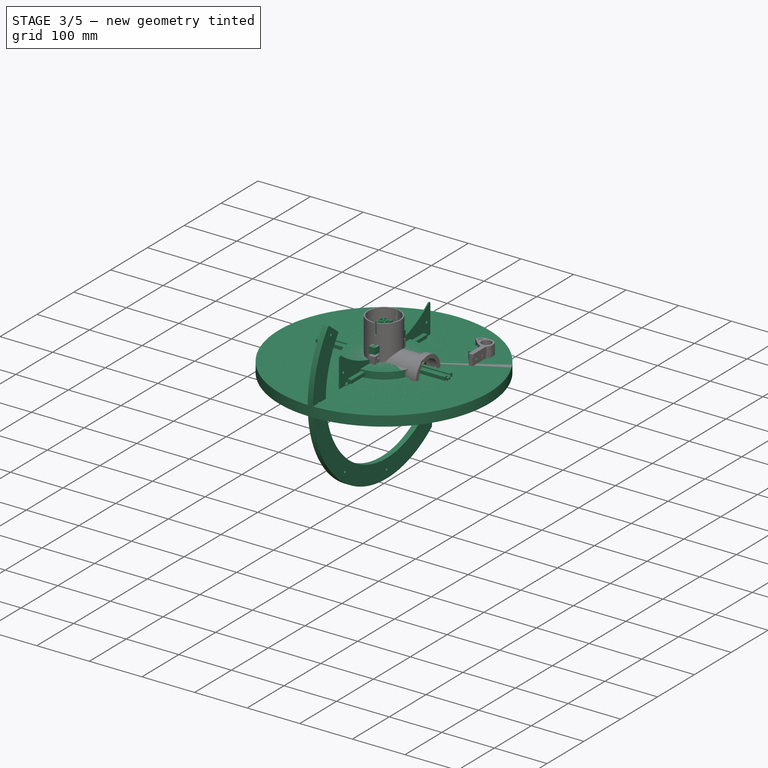
[diagram: stage 3 of 5 — iso view after this stage's code; geometry added in this stage tinted green]
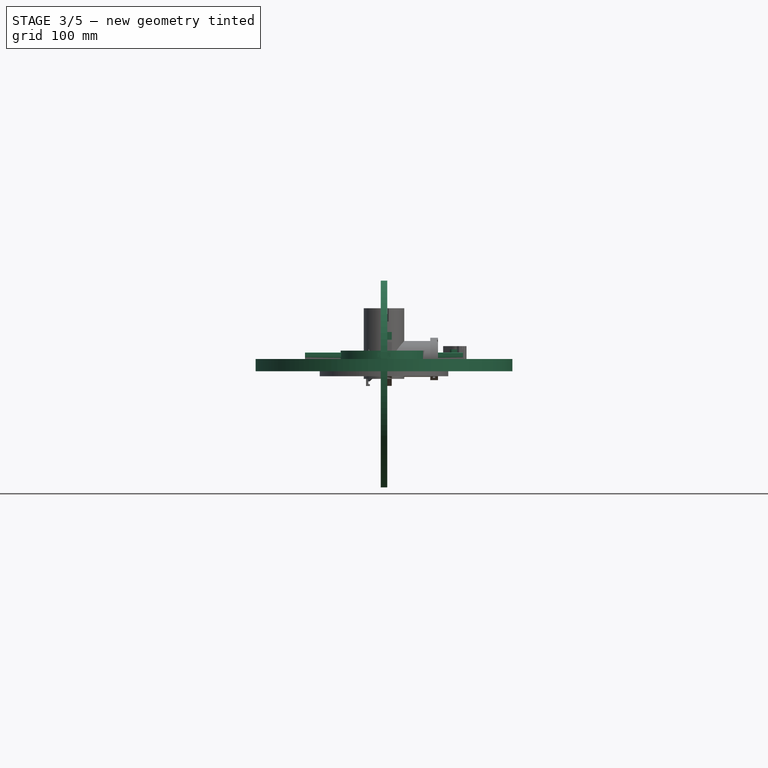
[diagram: stage 3 of 5 — front view after this stage's code; geometry added in this stage tinted green]
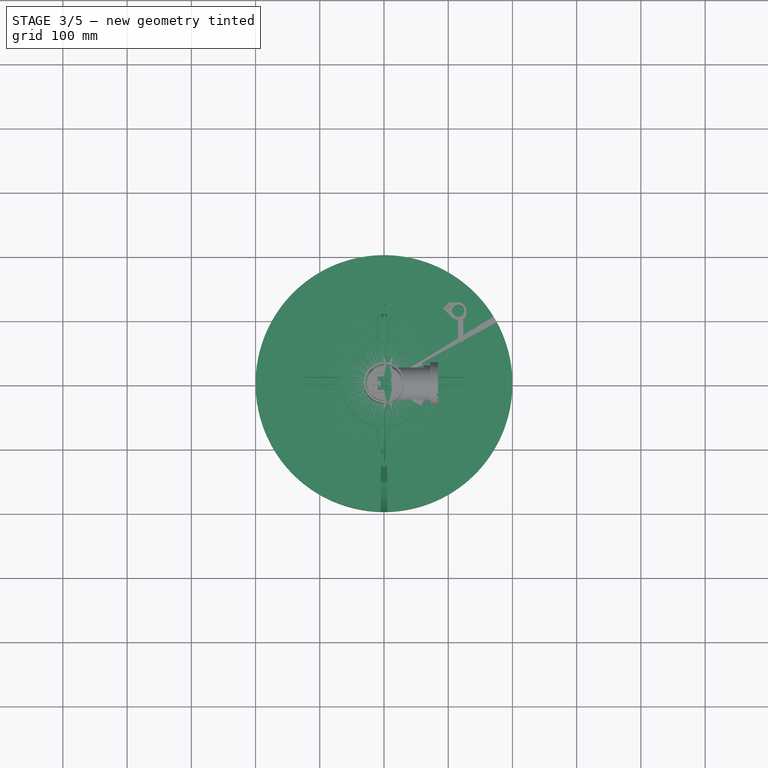
[diagram: stage 3 of 5 — top view after this stage's code; geometry added in this stage tinted green]
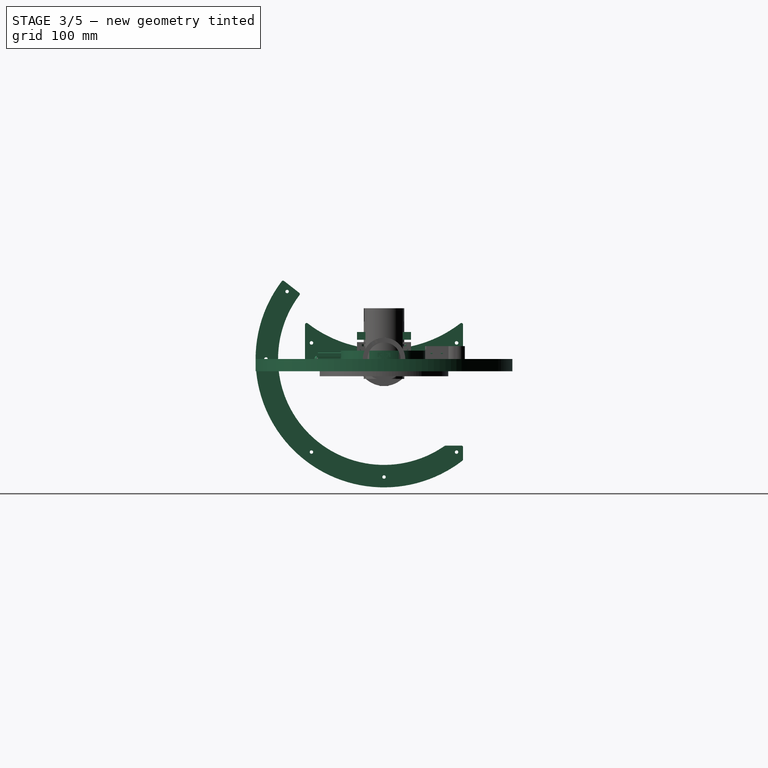
[diagram: stage 3 of 5 — right view after this stage's code; geometry added in this stage tinted green]
FEATURE [Spreadsheet::Sheet] Spreadsheet  label="Parameters"
  cells = A2=Primary Mirror Diameter; B2(pri_mdia)=200; C2=150; D2=200; F2=Focal Length; G2(sys_flen)==pri_fratio * pri_mdia; J2=Secondary Mirror Minor Diameter; K2(sec_mdia)=50; A3=Primary Mirror Thickness; B3(pri_mthick)=27; C3=20; D3=25; F3=Focal Plane Height; G3(sys_fpheight)==sec_focuserplate_x + foc_fheight * 2 + foc_travel / 2; J3=Secondary Mirror Thickness; K3(sec_mthick)=10; A4=Primary Mirror F-Ratio; B4(pri_fratio)=5; J4=Secondary Pole Diameter; K4(sec_poledia)=18; A5=Additional radial spacing for tilt; B5(pri_mspace)==ceil(pri_assembly_r * cos(pri_maxtilt) + pri_assembly_z * sin(pri_maxtilt) - pri_assembly_r); C5==pri_assembly_r * cos(10deg) + pri_assembly_z * sin(10deg) - pri_assembly_r; D5==pri_assembly_z * sin(10deg); F5=Upper Cell Datum; G5(datum_uppercell)==datum_mirrorbase - pri_mpad_r - pri_uthick; J5=Secondary Plate Thickness; K5(sec_pthick)=8; A6=Additional height for tilt; B6(pri_mzspace)==ceil(pri_assembly_z * sin(pri_maxtilt)); F6=Lower Cell Datum; G6(datum_lowercell)==datum_uppercell - pri_cellfloat - 10; H6=centre of extrusion; J6=Secondary Flex Thickness; K6(sec_fthick)=3; A7=Primary Mirror max tilt; B7(pri_maxtilt)==10deg; F7=Mirror Pad Datum; G7(datum_mirrorpad)==datum_uppercell + pri_bthick; J7=Secondary Sideplate Thickness; K7(sec_spthick)=1; A8=Primary Upper Plate Thickness; B8(pri_uthick)=6; F8=Mirror Bottom Datum; G8(datum_mirrorbase)==-pri_mthick; J8=Secondary Thinwall Thickness; K8(sec_thinwall)=1.2; A9=Primary Base Plate Thickness; B9(pri_bthick)=6; D9=7.5; F9=Rocker Z Datum; G9(datum_rocker_z)==round(sqrt(rail_dia * rail_dia - boxsize_y * boxsize_y) / 2 + datum_lowercell - rocker_vspace - 10); J9=Secondary Mirror Thickness Allowance; K9(sec_mtvar)=4; A10=Primary Side Plate Thickness; B10(pri_sthick)=5; F10=Pole Lower Datum; G10(datum_pole_lower)==datum_lowercell + pri_bthick + pri_sthick; J10=Secondary General Fillet; K10(sec_fillet)=2; A11=Primary General Tolerance; B11(pri_tol)=0.5; F11=Rocker Base Datum; G11(datum_azbase)==ceil(datum_rocker_z - rail_dia / 2) - 10; J11=Secondary Spider Thickness; K11(sec_spiderwidth)=1; A12=Collimation Bolt Size; B12(collbolt)=6; J12=Secondary Spider Height; K12(sec_stalkheight)=20; A13=Mirror Base Support Point; B13(rbracefrac)=0.6; C13(rbracepos)==ceil(rbracefrac * pri_mdia / 2); F13=Mirror to Mirror Distance; G13(mirror_distance)==sys_flen - sys_fpheight; H13=Newt For Web formula (Mirror Face to Focuser Hole); J13=Secondary Clamp Height; K13(sec_clampheight)=15; A14=Collimation Bolt Point; B14(cpointfrac)=0.75; C14(cpointpos)==rbracepos + collslot; J14=Secondary Hub Diameter; K14(sec_hubdia)=40; A15=Mirror Vertical Support Point; B15(zbracefrac)=0.45; C15(zbracepos)==pri_mirror_CMz; F15=Secondary Mirror Pad Datum; G15(datum_sec_mirrorpad)==mirror_distance + (sec_mthick + sec_mfloat) * sqrt(2); J15=Central Bolt Size; K15(sec_centralbolt)=5; A16=Aft Collimation y-position; B16(collpos_y)==ceil(pri_assembly_r / sqrt(2)); C16=Assume Square; F16=Tilt Plate lower to Mirror Pad Upper; G16(sec_tiltspacing)==sec_tiltball / 2 / sin(atan(sec_tiltball / 2)) - 1; J16=Collimation Bolt Size; K16(sec_collbolt)=4; A17=Collimation Slot Length; B17(collslot)==ceil(pri_mdia / cos(pri_maxtilt) - pri_mdia); C17(collextra)==pri_uthick * tan(pri_maxtilt); D17==pri_mdia / cos(pri_maxtilt) - pri_mdia; F17=Tilt Plate Datum; G17(datum_sec_tiltplate)==ceil(datum_sec_mirrorpad + sec_hubdia / 2 + sec_pthick + sec_tiltspacing + sec_mtvar / 2); H17=Excludes top/bottom plates; J17=Side Bolt Size; K17(sec_sidebolt)=4; A18=Clip Bolt Size; B18(clipbolt)=4; F18=Pad Mid Height; G18(sec_padheight)==datum_sec_tiltplate - sec_tiltspacing - datum_sec_mirrorpad; J18=Pole Clamp General Tolerance; K18(sec_clamptol)=0.7; A19=Clip Overhang; B19(clipover)=5; F19=Rotation Plate Datum; G19(datum_sec_upperhub)==datum_sec_tiltplate + sec_pthick; J19=Mirror Pad Spacing; K19(sec_mfloat)=2; A20=Clip Overhang Thickness; B20(clipthick)=4; F20=Upper Sidebolt z-datum; G20(sec_sidebolt_upper_z)==datum_sec_upperhub + sec_stalkheight / 2; J20=Collimation Float; K20(sec_collfloat)=10; A21=Clip Radial Thickness; B21(clipwidth)==clipbolt * 2.5; F21=Lower Clamp z-datum; G21(datum_sec_lowerclamp)==mirror_distance - ceil(foc_inner / 2 + foc_wall + foc_spacing * 4 + foc_flange + sec_stalkheight + sec_clamptol); J21=Tilt Ball Diameter; K21(sec_tiltball)=8; A22=Clip Slot Adjustment; B22(clipslot)=5; F22=Lower Sidebolt z-datum; G22(sec_sidebolt_lower_z)==datum_sec_lowerclamp + sec_clampheight / 2; J22=Collimation Bolt Point; K22(sec_cpointfrac)=0.6; L22(sec_cpointpos)==sec_cpointfrac * sec_hubdia / 2; A23=Radial Mirror Pad height; B23(pri_mpad_r)=4; F23=Focuser Plate Side Datum; G23(sec_focuserplate_x)==bolt_x + sec_poledia / 2; J23=Max Absolute z-rotation; K23(sec_zrotmax)==25deg; A24=Side Mirror Pad height; B24(pri_mpad_z)=3; F24=Focuser to top; G24==sec_sidebolt_upper_z + sec_stalkheight - mirror_distance; F25=Mirror Face to pole base; G25==datum_lowercell + pri_bthick + pri_sthick; J25=Focuser Inner Diameter; K25(foc_inner)=52; A26=Primary Assembly Radius; B26(pri_assembly_r)==pri_mdia / 2 + pri_mpad_z + clipwidth + collbolt * 2.5 + collslot / 2; C26==pri_mdia / 2 + pri_mpad_z + clipwidth + pri_tol; D26==pri_assembly_r / sqrt(2); J26=Focuser Travel; K26(foc_travel)=40; A27=Primary Assembly Height; B27(pri_assembly_z)==pri_bthick * 2 + pri_mpad_r + pri_mthick + pri_tol; F27=Box Size X; G27(boxsize_x)==bolt_x * 2 + 20; J27=Focuser Wall; K27(foc_wall)=2; A28=Primary Frame Width; B28(pri_fwidth)=25; F28=Box Size Y; G28(boxsize_y)==bolt_y * 2 + 20; J28=Focuser Spacing; K28(foc_spacing)=2; A29=Primary General Fillet; B29(pri_fillet)=2.5; F29=Box Size Z; G29(boxheight)==datum_mirrorpad + pri_mspace + pri_mthick / 2 - datum_lowercell + pri_bthick; J29=Focuser Flange; K29(foc_flange)=7; A30=Basebolt X position; B30(bolt_x)==collpos_y + max(20; ceil(sqrt((pri_fwidth / 2 + pri_mspace + pri_poledia / 2) ^ 2 - 20 ^ 2))); C30==max(pri_mdia / 2 - pri_poledia / 2; pri_poledia / 2 + pri_mspace + collpos_y + pri_fwidth / 2); F30=Mirror Offset; G30(sec_offset_x)==sec_mdia / (4 * pri_fratio); J30=Focuser Flange Height; K30(foc_fheight)=12; A31=Basebolt Y position; B31(bolt_y)==collpos_y + max(20; ceil(sqrt((pri_fwidth / 2 + pri_mspace + pri_poledia / 2) ^ 2 - 20 ^ 2))); C31==max(pri_mdia / 2 - pri_poledia / 2; collpos_y); F31=Sidebolt Y position; G31(sec_sidebolt_y)==bolt_y - sec_poledia - sec_sidebolt / 2 - sec_fthick; J31=Focuser Base Flange; K31(foc_baseflange)=12; A32=Primary Pole Pad Nominal Size; B32(pri_poledia)=20; J32=Focuser Shaft; K32(foc_shaft)==foc_travel + fbearing_thick * 2 + foc_fheight * 2; A33=Primary Pole Outer Diameter; B33(pole_od)=18; J33=Focuser Bearing Diameter; K33(fbearing_outer)=10; A34=Primary Pole Wall; B34(pole_wall)=1; F34=100% zone FOV; +81 more cells
FEATURE [Sketcher::SketchObject] Sketch  label="UpperCell_Sketch_bp"
  FullyConstrained = true
  MapMode = 5
  expr: Constraints[101] = <<Parameters>>.collslot
  expr: Constraints[61] = <<Parameters>>.rbracepos
  expr: Constraints[50] = <<Parameters>>.cpointpos + <<Parameters>>.pri_fwidth / 2
  expr: Constraints[59] = <<Parameters>>.rbracepos - <<Parameters>>.pri_fwidth / 2
  expr: Constraints[85] = <<Parameters>>.collbolt * 1.2
  expr: Constraints[35] = <<Parameters>>.pri_fwidth
  expr: Constraints[88] = <<Parameters>>.collpos_y
  expr: Constraints[76] = -<<Parameters>>.cpointpos
  expr: Constraints[126] = <<Parameters>>.collbolt * 1.1 + <<Parameters>>.collextra * 2
  expr: Constraints[31] = <<Parameters>>.rbracepos + <<Parameters>>.pri_fwidth / 2
  expr: Constraints[52] = <<Parameters>>.pri_mdia / 2 + <<Parameters>>.pri_mpad_z + <<Parameters>>.clipwidth
  sketch-geometry (48):
    g0: LineSegment StartX=-79.9031 StartY=-79.9031 StartZ=0 EndX=92 EndY=92 EndZ=0
    g1: LineSegment StartX=79.9031 StartY=-79.9031 StartZ=0 EndX=-92 EndY=92 EndZ=0
    g2: LineSegment StartX=-59.3364 StartY=-41.6587 StartZ=0 EndX=-88.7419 EndY=-71.0642 EndZ=0
    g3: LineSegment StartX=-88.7419 StartY=-71.0642 StartZ=0 EndX=-71.0642 EndY=-88.7419 EndZ=0
    g4: LineSegment StartX=-71.0642 StartY=-88.7419 StartZ=0 EndX=-44.5278 EndY=-62.2055 EndZ=0
    g5: LineSegment StartX=44.5278 StartY=-62.2055 StartZ=0 EndX=71.0642 EndY=-88.7419 EndZ=0
    g6: LineSegment StartX=71.0642 StartY=-88.7419 StartZ=0 EndX=88.7419 EndY=-71.0642 EndZ=0
    g7: LineSegment StartX=88.7419 StartY=-71.0642 StartZ=0 EndX=59.3364 EndY=-41.6587 EndZ=0
    g8: LineSegment StartX=-59.3364 StartY=41.6587 StartZ=0 EndX=-100.839 EndY=83.1612 EndZ=0
    g9: LineSegment StartX=-100.839 StartY=83.1612 StartZ=0 EndX=-83.1612 EndY=100.839 EndZ=0
    g10: LineSegment StartX=-83.1612 StartY=100.839 StartZ=0 EndX=-41.6587 EndY=59.3364 EndZ=0
    g11: LineSegment StartX=41.6587 StartY=59.3364 StartZ=0 EndX=83.1612 EndY=100.839 EndZ=0
    g12: LineSegment StartX=83.1612 StartY=100.839 StartZ=0 EndX=100.839 EndY=83.1612 EndZ=0
    g13: LineSegment StartX=100.839 StartY=83.1612 StartZ=0 EndX=59.3364 EndY=41.6587 EndZ=0
    g14: ArcOfCircle CenterX=0 CenterY=0 CenterZ=0 NormalX=0 NormalY=0 NormalZ=1 AngleXU=0 Radius=72.5 StartAngle=2.52947 EndAngle=3.75371
    g15: ArcOfCircle CenterX=0 CenterY=0 CenterZ=0 NormalX=0 NormalY=0 NormalZ=1 AngleXU=0 Radius=72.5 StartAngle=5.67107 EndAngle=6.8953
    g16: ArcOfCircle CenterX=0 CenterY=0 CenterZ=0 NormalX=0 NormalY=0 NormalZ=1 AngleXU=0 Radius=72.5 StartAngle=0.958678 EndAngle=2.18291
    g17: ArcOfCircle CenterX=-92 CenterY=92 CenterZ=0 NormalX=0 NormalY=0 NormalZ=1 AngleXU=0 Radius=12.5 StartAngle=0.785398 EndAngle=3.92699
    g18: ArcOfCircle CenterX=92 CenterY=92 CenterZ=0 NormalX=0 NormalY=0 NormalZ=1 AngleXU=0 Radius=12.5 StartAngle=5.49779 EndAngle=8.63938
    g19: ArcOfCircle CenterX=0 CenterY=0 CenterZ=0 NormalX=0 NormalY=0 NormalZ=1 AngleXU=0 Radius=76.5 StartAngle=4.09113 EndAngle=5.33365
    g20: Circle CenterX=0 CenterY=0 CenterZ=0 NormalX=0 NormalY=0 NormalZ=1 AngleXU=0 Radius=47.5
    g21: Circle CenterX=0 CenterY=0 CenterZ=0 NormalX=0 NormalY=0 NormalZ=1 AngleXU=0 Radius=60
    g22: ArcOfCircle CenterX=-93.7367 CenterY=92.992 CenterZ=0 NormalX=0 NormalY=0 NormalZ=1 AngleXU=0 Radius=3.6 StartAngle=1.05182 EndAngle=4.19341
    g23: ArcOfCircle CenterX=-90.2633 CenterY=91.008 CenterZ=0 NormalX=0 NormalY=0 NormalZ=1 AngleXU=0 Radius=3.6 StartAngle=4.19341 EndAngle=7.33501
    g24: LineSegment StartX=-95.5222 StartY=89.866 StartZ=0 EndX=-92.0489 EndY=87.882 EndZ=0
    g25: LineSegment StartX=-91.9511 StartY=96.118 StartZ=0 EndX=-88.4778 EndY=94.134 EndZ=0
    g26: ArcOfCircle CenterX=93.7367 CenterY=92.992 CenterZ=0 NormalX=0 NormalY=0 NormalZ=1 AngleXU=0 Radius=3.6 StartAngle=5.23137 EndAngle=8.37296
    g27: ArcOfCircle CenterX=90.2633 CenterY=91.008 CenterZ=0 NormalX=0 NormalY=0 NormalZ=1 AngleXU=0 Radius=3.6 StartAngle=2.08977 EndAngle=5.23137
    g28: LineSegment StartX=91.9511 StartY=96.118 StartZ=0 EndX=88.4778 EndY=94.134 EndZ=0
    g29: LineSegment StartX=95.5222 StartY=89.866 StartZ=0 EndX=92.0489 EndY=87.882 EndZ=0
    g30: LineSegment StartX=0 StartY=-64 StartZ=0 EndX=92 EndY=92 EndZ=0
    g31: LineSegment StartX=-92 StartY=92 StartZ=0 EndX=0 EndY=-64 EndZ=0
    g32: GeomPoint X=0 Y=60 Z=0
    g33: LineSegment StartX=-95.5222 StartY=89.866 StartZ=0 EndX=-88.4778 EndY=94.134 EndZ=0
    g34: LineSegment StartX=95.5222 StartY=89.866 StartZ=0 EndX=88.4778 EndY=94.134 EndZ=0
    g35: ArcOfCircle CenterX=0 CenterY=-66 CenterZ=0 NormalX=0 NormalY=0 NormalZ=1 AngleXU=0 Radius=3.6 StartAngle=3.14159 EndAngle=6.28319
    g36: ArcOfCircle CenterX=0 CenterY=-62 CenterZ=0 NormalX=0 NormalY=0 NormalZ=1 AngleXU=0 Radius=3.6 StartAngle=8e-16 EndAngle=3.14159
    g37: LineSegment StartX=3.6 StartY=-66 StartZ=0 EndX=3.6 EndY=-62 EndZ=0
    g38: LineSegment StartX=-3.6 StartY=-66 StartZ=0 EndX=-3.6 EndY=-62 EndZ=0
    g39: LineSegment StartX=-3.6 StartY=-62 StartZ=0 EndX=3.6 EndY=-66 EndZ=0
    g40: LineSegment StartX=-92 StartY=92 StartZ=0 EndX=92 EndY=92 EndZ=0
    g41: ArcOfCircle CenterX=92 CenterY=92 CenterZ=0 NormalX=0 NormalY=0 NormalZ=1 AngleXU=0 Radius=12.5 StartAngle=3.14159 EndAngle=4.17955
    g42: LineSegment StartX=79.5 StartY=92 StartZ=0 EndX=81.1459 EndY=85.8001 EndZ=0
    g43: LineSegment StartX=85.6502 StartY=81.2329 StartZ=0 EndX=81.1459 EndY=85.8001 EndZ=0
    g44: LineSegment StartX=92 StartY=92 StartZ=0 EndX=0 EndY=39.4493 EndZ=0
    g45: LineSegment StartX=0 StartY=39.4493 StartZ=0 EndX=-92 EndY=92 EndZ=0
    g46: Circle CenterX=-92 CenterY=92 CenterZ=0 NormalX=0 NormalY=0 NormalZ=1 AngleXU=0 Radius=4.35796
    g47: Circle CenterX=92 CenterY=92 CenterZ=0 NormalX=0 NormalY=0 NormalZ=1 AngleXU=0 Radius=4.35796
  constraints (128):
    c: Perpendicular(g0,g1)
    c: Symmetric(g0,g1,g-2)
    c: Symmetric(g0,g1,g-2)
    c: Coincident(g3,g2)
    c: Coincident(g4,g3)
    c: Coincident(g6,g5)
    c: Coincident(g7,g6)
    c: Coincident(g9,g8)
    c: Coincident(g10,g9)
    c: Coincident(g12,g11)
    c: Coincident(g13,g12)
    c: Parallel(g4,g2)
    c: Parallel(g2,g0)
    c: Parallel(g5,g7)
    c: Parallel(g7,g1)
    c: Perpendicular(g0,g3)
    c: Perpendicular(g1,g6)
    c: Parallel(g8,g10)
    c: Parallel(g10,g1)
    c: Parallel(g11,g13)
    c: Parallel(g13,g0)
    c: Perpendicular(g0,g12)
    c: Perpendicular(g1,g9)
    c: Coincident(g14,g2)
    c: Coincident(g14,g8)
    c: Coincident(g15,g7)
    c: Coincident(g15,g13)
    c: Coincident(g16,g10)
    c: Coincident(g16,g11)
    c: Equal(g16,g14)
    c: Equal(g14,g15)
    c: Radius(g16) = 72.5
    c: Equal(g9,g12)
    c: Equal(g12,g6)
    c: Equal(g6,g3)
    c: Distance(g6) = 25
    c: PointOnObject(g0,g12)
    c: PointOnObject(g1,g9)
    c: Coincident(g17,g1)
    c: Coincident(g17,g9)
    c: Coincident(g17,g8)
    c: Coincident(g18,g0)
    c: Coincident(g18,g11)
    c: Coincident(g18,g12)
    c: PointOnObject(g2,g11)
    c: PointOnObject(g7,g10)
    c: PointOnObject(g0,g3)
    c: PointOnObject(g1,g6)
    c: Coincident(g19,g4)
    c: Coincident(g19,g5)
    c: Radius(g19) = 76.5
    c: PointOnObject(g-1,g0)
    c: Distance(g-1,g0) = 113
    c: Distance(g-1,g18) = 130.108
    c: Coincident(g19,g16)
    c: Coincident(g19,g14)
    c: Coincident(g19,g15)
    c: Coincident(g19,g-1)
    c: Coincident(g20,g14)
    c: Radius(g20) = 47.5
    c: Coincident(g21,g14)
    c: Radius(g21) = 60
    c: Tangent(g22,g25) = 1.5708
    c: Tangent(g22,g24) = -1.5708
    c: Tangent(g24,g23) = -1.5708
    c: Tangent(g25,g23) = 1.5708
    c: Equal(g22,g23)
    c: Tangent(g26,g29) = 1.5708
    c: Tangent(g26,g28) = -1.5708
    c: Tangent(g28,g27) = -1.5708
    c: Tangent(g29,g27) = 1.5708
    c: Equal(g26,g27)
    c: PointOnObject(g30,g-2)
    c: Coincident(g30,g18)
    c: Coincident(g31,g17)
    c: Coincident(g31,g30)
    c: DistanceY(g30) = -64
    c: PointOnObject(g32,g21)
    c: PointOnObject(g32,g-2)
    c: Coincident(g33,g22)
    c: Coincident(g33,g23)
    c: Coincident(g34,g26)
    c: Coincident(g34,g27)
    c: Equal(g28,g25)
    c: Equal(g22,g26)
    c: Diameter(g22) = 7.2
    c: PointOnObject(g18,g34)
    c: PointOnObject(g17,g33)
    c: DistanceY(g17) = 92
    c: Tangent(g35,g38) = 1.5708
    c: Tangent(g35,g37) = -1.5708
    c: Tangent(g37,g36) = -1.5708
    c: Tangent(g38,g36) = 1.5708
    c: Vertical(g37)
    c: Equal(g35,g36)
    c: PointOnObject(g35,g-2)
    c: Equal(g37,g29)
    c: Equal(g36,g27)
    c: Coincident(g39,g36)
    c: Coincident(g39,g35)
    c: PointOnObject(g30,g39)
    c: DistanceY(g38,g38) = 4
    c: Coincident(g40,g17)
    c: Coincident(g40,g18)
    c: Coincident(g41,g18)
    c: PointOnObject(g41,g40)
    c: PointOnObject(g41,g30)
    c: PointOnObject(g41,g18)
    c: Coincident(g42,g41)
    c: PointOnObject(g42,g41)
    c: Coincident(g43,g41)
    c: Coincident(g43,g42)
    c: Coincident(g44,g18)
    c: PointOnObject(g44,g-2)
    c: Coincident(g45,g44)
    c: Coincident(g45,g17)
    c: Equal(g42,g43)
    c: PointOnObject(g42,g44)
    c: PointOnObject(g27,g44)
    c: PointOnObject(g26,g44)
    c: PointOnObject(g23,g45)
    c: PointOnObject(g22,g45)
    c: Angle(g45,g40) = 0.518976
    c: Angle(g40,g30) = 1.03795
    c: Coincident(g46,g1)
    c: Coincident(g47,g0)
    c: Diameter(g47) = 8.71592
    c: Equal(g47,g46)
FEATURE [Sketcher::SketchObject] Sketch004  label="RockerBase_Sketch"
  FullyConstrained = true
  MapMode = 5
  Placement = pos=(0,0,0) rot=(0.57735,0.57735,0.57735;2.0944rad)
  Support = -> [YZ_Plane011]
  expr: Constraints[40] = <<Parameters>>.boxsize_y
  expr: Constraints[1] = <<Parameters>>.rail_dia
  expr: Constraints[12] = <<Parameters>>.bolt_y - 10
  expr: Constraints[36] = <<Parameters>>.datum_lowercell - <<Parameters>>.datum_rocker_z + 10
  expr: Constraints[8] = <<Parameters>>.boxsize_y
  expr: Constraints[19] = <<Parameters>>.pri_fillet
  expr: Constraints[35] = <<Parameters>>.rail_dia - <<Parameters>>.rail_height * 2
  sketch-geometry (16):
    g0: ArcOfCircle CenterX=0 CenterY=0 CenterZ=0 NormalX=0 NormalY=0 NormalZ=1 AngleXU=0 Radius=200 StartAngle=2.49187 EndAngle=5.36861
    g1: Circle CenterX=0 CenterY=0 CenterZ=0 NormalX=0 NormalY=0 NormalZ=1 AngleXU=0 Radius=165
    g2: LineSegment StartX=-155.722 StartY=121.453 StartZ=0 EndX=-132.064 EndY=103.001 EndZ=0
    g3: ArcOfCircle CenterX=0 CenterY=0 CenterZ=0 NormalX=0 NormalY=0 NormalZ=1 AngleXU=0 Radius=165 StartAngle=2.49413 EndAngle=5.32021
    g4: LineSegment StartX=95.6556 StartY=-135 StartZ=0 EndX=120.5 EndY=-135 EndZ=0
    g5: LineSegment StartX=123 StartY=-156.48 StartZ=0 EndX=123 EndY=-137.5 EndZ=0
    g6: LineSegment StartX=-123 StartY=-157.705 StartZ=0 EndX=123 EndY=-157.705 EndZ=0
    g7: LineSegment StartX=103 StartY=-157.705 StartZ=0 EndX=103 EndY=-128.903 EndZ=0
    g8: LineSegment StartX=0 StartY=0 StartZ=0 EndX=123 EndY=-135 EndZ=0
    g9: ArcOfCircle CenterX=120.5 CenterY=-137.5 CenterZ=0 NormalX=0 NormalY=0 NormalZ=1 AngleXU=0 Radius=2.5 StartAngle=-1.8e-15 EndAngle=1.5708
    g10: GeomPoint X=123 Y=-135 Z=0
    g11: ArcOfCircle CenterX=120.5 CenterY=-156.48 CenterZ=0 NormalX=0 NormalY=0 NormalZ=1 AngleXU=0 Radius=2.5 StartAngle=5.36861 EndAngle=6.28319
    g12: ArcOfCircle CenterX=-157.259 CenterY=119.481 CenterZ=0 NormalX=0 NormalY=0 NormalZ=1 AngleXU=0 Radius=2.5 StartAngle=0.90841 EndAngle=2.49187
    g13: ArcOfCircle CenterX=-133.601 CenterY=101.03 CenterZ=0 NormalX=0 NormalY=0 NormalZ=1 AngleXU=0 Radius=2.5 StartAngle=5.63573 EndAngle=7.1916
    g14: ArcOfCircle CenterX=95.6556 CenterY=-137.5 CenterZ=0 NormalX=0 NormalY=0 NormalZ=1 AngleXU=0 Radius=2.5 StartAngle=1.5708 EndAngle=2.17862
    g15: LineSegment StartX=-157.705 StartY=123 StartZ=0 EndX=-157.705 EndY=-123 EndZ=0
  constraints (42):
    c: Coincident(g0,g-1)
    c: Diameter(g0) = 400
    c: Coincident(g1,g0)
    c: PointOnObject(g0,g2)
    c: Coincident(g3,g0)
    c: Horizontal(g4)
    c: Vertical(g5)
    c: Symmetric(g6,g6,g-2)
    c: DistanceX(g6,g6) = 246
    c: PointOnObject(g7,g6)
    c: Vertical(g7)
    c: PointOnObject(g7,g1)
    c: DistanceX(g7) = 103
    c: Coincident(g8,g0)
    c: Coincident(g8,g10)
    c: PointOnObject(g10,g4)
    c: PointOnObject(g10,g5)
    c: Tangent(g4,g9) = 1.5708
    c: Tangent(g5,g9) = -1.5708
    c: Radius(g9) = 2.5
    c: Tangent(g5,g11) = -1.5708
    c: Tangent(g0,g11) = -1.5708
    c: Equal(g11,g9)
    c: PointOnObject(g6,g5)
    c: Tangent(g2,g12) = 1.5708
    c: Tangent(g0,g12) = -1.5708
    c: Equal(g12,g9)
    c: Tangent(g2,g13) = 1.5708
    c: Tangent(g3,g13) = 1.5708
    c: Equal(g12,g13)
    c: PointOnObject(g3,g1)
    c: Tangent(g4,g14) = 1.5708
    c: Tangent(g3,g14) = 1.5708
    c: Equal(g14,g9)
    c: PointOnObject(g6,g0)
    c: Diameter(g1) = 330
    c: DistanceY(g4) = -135
    c: PointOnObject(g15,g0)
    c: PointOnObject(g15,g0)
    c: Vertical(g15)
    c: DistanceY(g15,g15) = 246
    c: PointOnObject(g15,g2)
FEATURE [Sketcher::SketchObject] Sketch011  label="UpperCell_Sketch_cp"
  FullyConstrained = true
  MapMode = 5
  Support = -> [XY_Plane001]
  expr: Constraints[34] = <<Parameters>>.pri_mdia / 2 + <<Parameters>>.pri_mpad_z + <<Parameters>>.clipbolt * 2
  expr: Constraints[1] = <<Parameters>>.pri_fwidth
  expr: Constraints[3] = <<Parameters>>.collbolt
  sketch-geometry (22):
    g0: LineSegment StartX=-69.65 StartY=87.3277 StartZ=0 EndX=0 EndY=17.6777 EndZ=0
    g1: LineSegment StartX=0 StartY=17.6777 StartZ=0 EndX=69.65 EndY=87.3277 EndZ=0
    g2: LineSegment StartX=87.3277 StartY=69.65 StartZ=0 EndX=17.6777 EndY=0 EndZ=0
    g3: LineSegment StartX=17.6777 StartY=0 StartZ=0 EndX=87.3277 EndY=-69.65 EndZ=0
    g4: LineSegment StartX=69.65 StartY=-87.3277 StartZ=0 EndX=0 EndY=-17.6777 EndZ=0
    g5: LineSegment StartX=0 StartY=-17.6777 StartZ=0 EndX=-69.65 EndY=-87.3277 EndZ=0
    g6: LineSegment StartX=-87.3277 StartY=-69.65 StartZ=0 EndX=-17.6777 EndY=0 EndZ=0
    g7: LineSegment StartX=-17.6777 StartY=0 StartZ=0 EndX=-87.3277 EndY=69.65 EndZ=0
    g8: LineSegment StartX=-17.6777 StartY=0 StartZ=0 EndX=0 EndY=-17.6777 EndZ=0
    g9: Circle CenterX=0 CenterY=0 CenterZ=0 NormalX=0 NormalY=0 NormalZ=1 AngleXU=0 Radius=3
    g10: LineSegment StartX=-69.65 StartY=87.3277 StartZ=0 EndX=-87.3277 EndY=69.65 EndZ=0
    g11: LineSegment StartX=69.65 StartY=87.3277 StartZ=0 EndX=87.3277 EndY=69.65 EndZ=0
    g12: LineSegment StartX=-87.3277 StartY=-69.65 StartZ=0 EndX=-69.65 EndY=-87.3277 EndZ=0
    g13: LineSegment StartX=69.65 StartY=-87.3277 StartZ=0 EndX=87.3277 EndY=-69.65 EndZ=0
    g14: LineSegment StartX=0 StartY=-17.6777 StartZ=0 EndX=17.6777 EndY=0 EndZ=0
    g15: Circle CenterX=0 CenterY=0 CenterZ=0 NormalX=0 NormalY=0 NormalZ=1 AngleXU=0 Radius=111
    g16: ArcOfCircle CenterX=-78.4889 CenterY=-78.4889 CenterZ=0 NormalX=0 NormalY=0 NormalZ=1 AngleXU=0 Radius=12.5 StartAngle=2.35619 EndAngle=5.49779
    g17: ArcOfCircle CenterX=78.4889 CenterY=-78.4889 CenterZ=0 NormalX=0 NormalY=0 NormalZ=1 AngleXU=0 Radius=12.5 StartAngle=3.92699 EndAngle=7.06858
    g18: ArcOfCircle CenterX=-78.4889 CenterY=78.4889 CenterZ=0 NormalX=0 NormalY=0 NormalZ=1 AngleXU=0 Radius=12.5 StartAngle=0.785398 EndAngle=3.92699
    g19: ArcOfCircle CenterX=78.4889 CenterY=78.4889 CenterZ=0 NormalX=0 NormalY=0 NormalZ=1 AngleXU=0 Radius=12.5 StartAngle=5.49779 EndAngle=8.63938
    g20: LineSegment StartX=78.4889 StartY=78.4889 StartZ=0 EndX=-78.4889 EndY=-78.4889 EndZ=0
    g21: LineSegment StartX=-78.4889 StartY=78.4889 StartZ=0 EndX=78.4889 EndY=-78.4889 EndZ=0
  constraints (58):
    c: Coincident(g1,g0)
    c: Distance(g2,g4) = 25
    c: Coincident(g9,g-1)
    c: Diameter(g9) = 6
    c: Coincident(g10,g0)
    c: Coincident(g10,g7)
    c: Coincident(g13,g4)
    c: Coincident(g13,g3)
    c: Coincident(g11,g2)
    c: Coincident(g1,g11)
    c: Coincident(g6,g12)
    c: Coincident(g12,g5)
    c: Parallel(g5,g13)
    c: Parallel(g13,g10)
    c: Parallel(g10,g1)
    c: Parallel(g1,g2)
    c: Coincident(g6,g7)
    c: PointOnObject(g6,g-1)
    c: PointOnObject(g0,g-2)
    c: Coincident(g4,g5)
    c: Coincident(g4,g8)
    c: PointOnObject(g4,g-2)
    c: Coincident(g2,g3)
    c: PointOnObject(g2,g-1)
    c: Coincident(g8,g6)
    c: Parallel(g11,g0)
    c: Parallel(g0,g7)
    c: Parallel(g8,g12)
    c: Equal(g6,g1)
    c: Equal(g3,g0)
    c: Symmetric(g16,g17,g-2)
    c: Coincident(g14,g4)
    c: Coincident(g14,g2)
    c: Symmetric(g7,g6,g-1)
    c: Radius(g15) = 111
    c: PointOnObject(g16,g15)
    c: Coincident(g15,g9)
    c: Coincident(g16,g6)
    c: Coincident(g16,g5)
    c: Coincident(g17,g4)
    c: Coincident(g17,g3)
    c: PointOnObject(g18,g10)
    c: Coincident(g18,g7)
    c: Coincident(g18,g0)
    c: PointOnObject(g19,g11)
    c: Coincident(g19,g1)
    c: Coincident(g19,g2)
    c: Coincident(g20,g19)
    c: Coincident(g20,g16)
    c: Coincident(g21,g18)
    c: Coincident(g21,g17)
    c: PointOnObject(g9,g20)
    c: PointOnObject(g9,g21)
    c: Perpendicular(g21,g20)
    c: Parallel(g8,g21)
    c: Parallel(g21,g7)
    c: Parallel(g7,g4)
    c: PointOnObject(g16,g12)
FEATURE [PartDesign::Plane] DatumPlane  label="RockerBase_OuterFace"
  AttachmentOffset = pos=(0,0,5) rot=(0,0,1;0rad)
  Length = 386.928
  MapMode = 5
  Placement = pos=(5,-1.1e-15,1.1e-15) rot=(0.57735,0.57735,0.57735;2.0944rad)
  ResizeMode = 0
  Support = -> [YZ_Plane011]
  Width = 385.995
  expr: .AttachmentOffset.Base.z = <<Parameters>>.rail_width / 2
FEATURE [PartDesign::Pad] Pad008  label="RockerBase"
  Direction = (1,1,1)
  Length = 10
  Length2 = 100
  Midplane = true
  Placement = pos=(0,0,0) rot=(0.57735,0.57735,0.57735;2.0944rad)
  Profile = -> Sketch004
  Type = 0
  expr: Length = <<Parameters>>.rail_width
FEATURE [PartDesign::CoordinateSystem] Local_CS039  label="LCS_SecondaryMirror"
  AttacherType = Attacher::AttachEngine3D
  AttachmentOffset = pos=(0,0,834) rot=(0,0,1;0rad)
  MapMode = 5
  Placement = pos=(0,0,834) rot=(0,0,1;0rad)
  Support = -> [XY_Plane]
  expr: .AttachmentOffset.Base.z = <<Parameters>>.mirror_distance
FEATURE [PartDesign::CoordinateSystem] Local_CS040  label="LCS_PoleBase"
  AttacherType = Attacher::AttachEngine3D
  MapMode = 11
  Placement = pos=(0,0,0) rot=(0,0,1;1.5708rad)
  Support = -> [Pad014]
FEATURE [PartDesign::AdditiveCylinder] Cylinder
  Angle = 360
  AttacherType = Attacher::AttachEngine3D
  Height = 13
  Radius = 67.5
  expr: Radius = 135mm / 2
FEATURE [PartDesign::SubtractiveCylinder] Cylinder002
  Angle = 360
  AttacherType = Attacher::AttachEngine3D
  AttachmentOffset = pos=(0,0,-1) rot=(0,0,1;0rad)
  BaseFeature = -> Cylinder
  Height = 30
  MapMode = 2
  Placement = pos=(0,0,-1) rot=(0,0,1;0rad)
  Radius = 14
  Support = -> [Cylinder]
  expr: Radius = 14mm
FEATURE [Sketcher::SketchObject] Sketch030  label="RockerPost_Sketch"
  FullyConstrained = true
  MapMode = 5
  Placement = pos=(0,0,0) rot=(0.57735,0.57735,0.57735;2.0944rad)
  Support = -> [YZ_Plane030]
  expr: Constraints[4] = <<Parameters>>.rail_dia
  expr: Constraints[3] = <<Parameters>>.datum_rocker_z - <<Parameters>>.datum_azbase
  expr: Constraints[2] = <<Parameters>>.bolt_y
  expr: Constraints[8] = <<Parameters>>.boxsize_y
  expr: Constraints[11] = <<Parameters>>.rail_dia / 2
  sketch-geometry (7):
    g0: ArcOfCircle CenterX=-113 CenterY=210 CenterZ=0 NormalX=0 NormalY=0 NormalZ=1 AngleXU=0 Radius=200 StartAngle=5.2534 EndAngle=5.37477
    g1: LineSegment StartX=10 StartY=52.2946 StartZ=0 EndX=10 EndY=-20 EndZ=0
    g2: LineSegment StartX=-113 StartY=210 StartZ=0 EndX=-113 EndY=10 EndZ=0
    g3: LineSegment StartX=-236 StartY=52.2946 StartZ=0 EndX=10 EndY=52.2946 EndZ=0
    g4: LineSegment StartX=-10 StartY=-20 StartZ=0 EndX=10 EndY=-20 EndZ=0
    g5: Circle CenterX=0 CenterY=-5 CenterZ=0 NormalX=0 NormalY=0 NormalZ=1 AngleXU=0 Radius=3.25
    g6: LineSegment StartX=-10 StartY=-20 StartZ=0 EndX=-10 EndY=38.562 EndZ=0
  constraints (23):
    c: Coincident(g1,g0)
    c: Vertical(g1)
    c: DistanceX(g0,g-1) = 113
    c: DistanceY(g0) = 210
    c: Diameter(g0) = 400
    c: DistanceY(g1,g1) = 72.2946  'PostHeight'
    c: Coincident(g2,g0)
    c: Vertical(g2)
    c: DistanceX(g3,g3) = 246
    c: Symmetric(g3,g3,g2)
    c: PointOnObject(g3,g0)
    c: DistanceY(g2,g2) = 200
    c: DistanceX(g-1,g1) = 10
    c: DistanceX(g4,g-1) = 10
    c: Coincident(g4,g1)
    c: Horizontal(g4)
    c: DistanceY(g4) = -20
    c: PointOnObject(g5,g-2)
    c: Diameter(g5) = 6.5
    c: DistanceY(g5) = -5
    c: Coincident(g6,g4)
    c: Vertical(g6)
    c: Coincident(g6,g0)
FEATURE [PartDesign::Pad] Pad016  label="RockerPost_Pillar"
  Direction = (1,1,1)
  Length = 7
  Length2 = 5
  Midplane = true
  Placement = pos=(0,0,0) rot=(0.57735,0.57735,0.57735;2.0944rad)
  Profile = -> Sketch030
  Type = 4
  expr: Length = <<Parameters>>.rail_width / 2 + 2
  expr: Length2 = <<Parameters>>.rail_width / 2
FEATURE [Sketcher::SketchObject] Sketch035  label="SidePlate_Sketch"
  FullyConstrained = true
  MapMode = 5
  Placement = pos=(0,0,0) rot=(0.57735,0.57735,0.57735;2.0944rad)
  Support = -> [YZ_Plane032]
  expr: Constraints[10] = <<Parameters>>.datum_rocker_z - <<Parameters>>.datum_azbase
  expr: Constraints[5] = <<Parameters>>.boxsize_y
  expr: Constraints[7] = <<Parameters>>.bolt_y
  expr: Constraints[13] = <<Parameters>>.rail_dia - 10
  expr: Constraints[21] = <<Parameters>>.pri_fillet
  sketch-geometry (18):
    g0: LineSegment StartX=-123 StartY=-15 StartZ=0 EndX=123 EndY=-15 EndZ=0
    g1: LineSegment StartX=123 StartY=-15 StartZ=0 EndX=123 EndY=53.52 EndZ=0
    g2: LineSegment StartX=-123 StartY=53.52 StartZ=0 EndX=-123 EndY=-15 EndZ=0
    g3: LineSegment StartX=-113 StartY=-5 StartZ=0 EndX=113 EndY=-5 EndZ=0
    g4: Circle CenterX=-113 CenterY=-5 CenterZ=0 NormalX=0 NormalY=0 NormalZ=1 AngleXU=0 Radius=3.25
    g5: Circle CenterX=113 CenterY=-5 CenterZ=0 NormalX=0 NormalY=0 NormalZ=1 AngleXU=0 Radius=3.25
    g6: ArcOfCircle CenterX=0 CenterY=210 CenterZ=0 NormalX=0 NormalY=0 NormalZ=1 AngleXU=0 Radius=195 StartAngle=4.05617 EndAngle=5.36861
    g7: Circle CenterX=-83 CenterY=-5 CenterZ=0 NormalX=0 NormalY=0 NormalZ=1 AngleXU=0 Radius=2.75
    g8: Circle CenterX=83 CenterY=-5 CenterZ=0 NormalX=0 NormalY=0 NormalZ=1 AngleXU=0 Radius=2.75
    g9: ArcOfCircle CenterX=-120.5 CenterY=53.52 CenterZ=0 NormalX=0 NormalY=0 NormalZ=1 AngleXU=0 Radius=2.5 StartAngle=0.914576 EndAngle=3.14159
    g10: ArcOfCircle CenterX=120.5 CenterY=53.52 CenterZ=0 NormalX=0 NormalY=0 NormalZ=1 AngleXU=0 Radius=2.5 StartAngle=1e-15 EndAngle=2.22702
    g11: Circle CenterX=113 CenterY=25 CenterZ=0 NormalX=0 NormalY=0 NormalZ=1 AngleXU=0 Radius=2.75
    g12: Circle CenterX=-113 CenterY=25 CenterZ=0 NormalX=0 NormalY=0 NormalZ=1 AngleXU=0 Radius=2.75
    g13: LineSegment StartX=-113 StartY=25 StartZ=0 EndX=-113 EndY=-5 EndZ=0
    g14: LineSegment StartX=-10.25 StartY=-2 StartZ=0 EndX=10.25 EndY=-2 EndZ=0
    g15: LineSegment StartX=10.25 StartY=-2 StartZ=0 EndX=10.25 EndY=-8 EndZ=0
    g16: LineSegment StartX=10.25 StartY=-8 StartZ=0 EndX=-10.25 EndY=-8 EndZ=0
    g17: LineSegment StartX=-10.25 StartY=-8 StartZ=0 EndX=-10.25 EndY=-2 EndZ=0
  constraints (45):
    c: Coincident(g0,g1)
    c: Coincident(g2,g0)
    c: Vertical(g1)
    c: Vertical(g2)
    c: Symmetric(g0,g0,g-2)
    c: DistanceX(g0,g0) = 246
    c: Symmetric(g3,g3,g-2)
    c: DistanceX(g3) = 113
    c: Diameter(g4) = 6.5
    c: Symmetric(g5,g4,g-2)
    c: DistanceY(g6) = 210
    c: Symmetric(g7,g8,g-2)
    c: PointOnObject(g7,g3)
    c: Diameter(g6) = 390
    c: DistanceY(g0) = -15
    c: DistanceY(g3) = -5
    c: Coincident(g3,g4)
    c: Tangent(g2,g9) = -1.5708
    c: Tangent(g6,g9) = 1.5708
    c: Tangent(g6,g10) = 1.5708
    c: Tangent(g1,g10) = -1.5708
    c: Radius(g10) = 2.5
    c: Equal(g10,g9)
    c: PointOnObject(g6,g-2)
    c: DistanceX(g8,g5) = 30
    c: Symmetric(g12,g11,g-2)
    c: Equal(g11,g12)
    c: Coincident(g13,g12)
    c: Coincident(g13,g4)
    c: Vertical(g13)
    c: DistanceY(g13,g13) = 30
    c: Coincident(g14,g15)
    c: Coincident(g15,g16)
    c: Coincident(g16,g17)
    c: Coincident(g17,g14)
    c: Horizontal(g14)
    c: Vertical(g15)
    c: DistanceX(g16,g16) = 20.5
    c: Symmetric(g15,g16,g-2)
    c: Symmetric(g16,g14,g3)
    c: DistanceY(g17,g17) = 6
    c: Equal(g11,g8)
    c: Equal(g8,g7)
    c: Diameter(g12) = 5.5
    c: Equal(g4,g5)
FEATURE [PartDesign::Pad] Pad019  label="SidePlate_Pad"
  Direction = (1,1,1)
  Length = 2
  Length2 = 100
  Placement = pos=(0,0,0) rot=(0.57735,0.57735,0.57735;2.0944rad)
  Profile = -> Sketch035
  Type = 0
  expr: Length = <<Parameters>>.rocker_plate
FEATURE [PartDesign::Plane] DatumPlane010  label="RockerPost_DatumPlane_Top"
  AttachmentOffset = pos=(0,0,72.2946) rot=(0,0,1;0rad)
  Length = 60
  MapMode = 5
  Placement = pos=(-2.03e-14,2.9e-14,52.2946) rot=(0,0,-1;1.5708rad)
  ResizeMode = 0
  Support = -> [Pad016]
  Width = 60
  expr: .AttachmentOffset.Base.z = <<RockerPost_Sketch>>.Constraints.PostHeight
FEATURE [Sketcher::SketchObject] Sketch048  label="AFrame_P_Sketch"
  FullyConstrained = true
  MapMode = 5
  Placement = pos=(0,0,0) rot=(1,0,0;1.5708rad)
  Support = -> [XZ_Plane043]
  sketch-geometry (75):
    g0: LineSegment StartX=3 StartY=10 StartZ=0 EndX=3 EndY=8 EndZ=0
    g1: LineSegment StartX=3 StartY=8 StartZ=0 EndX=6 EndY=8 EndZ=0
    g2: LineSegment StartX=2.58579 StartY=4 StartZ=0 EndX=-2.58579 EndY=4 EndZ=0
    g3: LineSegment StartX=-6 StartY=8 StartZ=0 EndX=-3 EndY=8 EndZ=0
    g4: LineSegment StartX=-3 StartY=8 StartZ=0 EndX=-3 EndY=10 EndZ=0
    g5: Circle CenterX=0 CenterY=0 CenterZ=0 NormalX=0 NormalY=0 NormalZ=1 AngleXU=0 Radius=2.1
    g6: LineSegment StartX=-10 StartY=3 StartZ=0 EndX=-8 EndY=3 EndZ=0
    g7: LineSegment StartX=-8 StartY=3 StartZ=0 EndX=-8 EndY=6 EndZ=0
    g8: LineSegment StartX=-4 StartY=2.58579 StartZ=0 EndX=-4 EndY=-2.58579 EndZ=0
    g9: LineSegment StartX=-8 StartY=-6 StartZ=0 EndX=-8 EndY=-3 EndZ=0
    g10: LineSegment StartX=-8 StartY=-3 StartZ=0 EndX=-10 EndY=-3 EndZ=0
    g11: LineSegment StartX=-3 StartY=-10 StartZ=0 EndX=-3 EndY=-8 EndZ=0
    g12: LineSegment StartX=-3 StartY=-8 StartZ=0 EndX=-6 EndY=-8 EndZ=0
    g13: LineSegment StartX=-2.58579 StartY=-4 StartZ=0 EndX=2.58579 EndY=-4 EndZ=0
    g14: LineSegment StartX=6 StartY=-8 StartZ=0 EndX=3 EndY=-8 EndZ=0
    g15: LineSegment StartX=3 StartY=-8 StartZ=0 EndX=3 EndY=-10 EndZ=0
    g16: LineSegment StartX=10 StartY=-3 StartZ=0 EndX=8 EndY=-3 EndZ=0
    g17: LineSegment StartX=8 StartY=-3 StartZ=0 EndX=8 EndY=-6 EndZ=0
    g18: LineSegment StartX=8 StartY=-6 StartZ=0 EndX=7.41421 EndY=-6 EndZ=0
    g19: LineSegment StartX=7.41421 StartY=-6 StartZ=0 EndX=4 EndY=-2.58579 EndZ=0
    g20: LineSegment StartX=4 StartY=-2.58579 StartZ=0 EndX=4 EndY=2.58579 EndZ=0
    g21: LineSegment StartX=4 StartY=2.58579 StartZ=0 EndX=7.41421 EndY=6 EndZ=0
    g22: LineSegment StartX=7.41421 StartY=6 StartZ=0 EndX=8 EndY=6 EndZ=0
    g23: LineSegment StartX=8 StartY=6 StartZ=0 EndX=8 EndY=3 EndZ=0
    g24: LineSegment StartX=8 StartY=3 StartZ=0 EndX=10 EndY=3 EndZ=0
    g25: LineSegment StartX=6 StartY=8 StartZ=0 EndX=6 EndY=7.41421 EndZ=0
    g26: LineSegment StartX=6 StartY=7.41421 StartZ=0 EndX=2.58579 EndY=4 EndZ=0
    g27: LineSegment StartX=-2.58579 StartY=4 StartZ=0 EndX=-6 EndY=7.41421 EndZ=0
    g28: LineSegment StartX=-6 StartY=7.41421 StartZ=0 EndX=-6 EndY=8 EndZ=0
    g29: LineSegment StartX=-8 StartY=6 StartZ=0 EndX=-7.41421 EndY=6 EndZ=0
    g30: LineSegment StartX=-7.41421 StartY=6 StartZ=0 EndX=-4 EndY=2.58579 EndZ=0
    g31: LineSegment StartX=-4 StartY=-2.58579 StartZ=0 EndX=-7.41421 EndY=-6 EndZ=0
    g32: LineSegment StartX=-7.41421 StartY=-6 StartZ=0 EndX=-8 EndY=-6 EndZ=0
    g33: LineSegment StartX=-2.58579 StartY=-4 StartZ=0 EndX=-6 EndY=-7.41421 EndZ=0
    g34: LineSegment StartX=-6 StartY=-7.41421 StartZ=0 EndX=-6 EndY=-8 EndZ=0
    g35: LineSegment StartX=2.58579 StartY=-4 StartZ=0 EndX=6 EndY=-7.41421 EndZ=0
    g36: LineSegment StartX=6 StartY=-7.41421 StartZ=0 EndX=6 EndY=-8 EndZ=0
    g37: LineSegment StartX=-4 StartY=2.58579 StartZ=0 EndX=-2.58579 EndY=4 EndZ=0
    g38: LineSegment StartX=-7.41421 StartY=7.41421 StartZ=0 EndX=7.41421 EndY=7.41421 EndZ=0
    g39: LineSegment StartX=7.41421 StartY=7.41421 StartZ=0 EndX=7.41421 EndY=-7.41421 EndZ=0
    g40: LineSegment StartX=7.41421 StartY=-7.41421 StartZ=0 EndX=-7.41421 EndY=-7.41421 EndZ=0
    g41: LineSegment StartX=-7.41421 StartY=-7.41421 StartZ=0 EndX=-7.41421 EndY=7.41421 EndZ=0
    g42: LineSegment StartX=-10 StartY=10 StartZ=0 EndX=10 EndY=10 EndZ=0
    g43: LineSegment StartX=10 StartY=10 StartZ=0 EndX=10 EndY=-10 EndZ=0
    g44: LineSegment StartX=10 StartY=-10 StartZ=0 EndX=-10 EndY=-10 EndZ=0
    g45: LineSegment StartX=-10 StartY=-10 StartZ=0 EndX=-10 EndY=10 EndZ=0
    g46: LineSegment StartX=4 StartY=4 StartZ=0 EndX=-4 EndY=4 EndZ=0
    g47: LineSegment StartX=-4 StartY=4 StartZ=0 EndX=-4 EndY=-4 EndZ=0
    g48: LineSegment StartX=-4 StartY=-4 StartZ=0 EndX=4 EndY=-4 EndZ=0
    g49: LineSegment StartX=4 StartY=-4 StartZ=0 EndX=4 EndY=4 EndZ=0
    g50: LineSegment StartX=-10 StartY=-10 StartZ=0 EndX=10 EndY=10 EndZ=0
    g51: LineSegment StartX=-10 StartY=10 StartZ=0 EndX=10 EndY=-10 EndZ=0
    g52: LineSegment StartX=2.58579 StartY=4 StartZ=0 EndX=4 EndY=2.58579 EndZ=0
    g53: LineSegment StartX=2.58579 StartY=-4 StartZ=0 EndX=4 EndY=-2.58579 EndZ=0
    g54: LineSegment StartX=-4 StartY=-2.58579 StartZ=0 EndX=-2.58579 EndY=-4 EndZ=0
    g55: LineSegment StartX=10 StartY=3 StartZ=0 EndX=3 EndY=10 EndZ=0
    g56: LineSegment StartX=-3 StartY=10 StartZ=0 EndX=-10 EndY=3 EndZ=0
    g57: LineSegment StartX=-10 StartY=-3 StartZ=0 EndX=-3 EndY=-10 EndZ=0
    g58: LineSegment StartX=3 StartY=-10 StartZ=0 EndX=10 EndY=-3 EndZ=0
    g59: ArcOfCircle CenterX=-9 CenterY=9 CenterZ=0 NormalX=0 NormalY=0 NormalZ=1 AngleXU=0 Radius=1 StartAngle=1.57078 EndAngle=3.14161
    g60: ArcOfCircle CenterX=9 CenterY=9 CenterZ=0 NormalX=0 NormalY=0 NormalZ=1 AngleXU=0 Radius=1 StartAngle=6.28316 EndAngle=7.854
    g61: ArcOfCircle CenterX=9 CenterY=-9 CenterZ=0 NormalX=0 NormalY=0 NormalZ=1 AngleXU=0 Radius=1 StartAngle=4.71238 EndAngle=6.28319
    g62: ArcOfCircle CenterX=-9 CenterY=-9 CenterZ=0 NormalX=0 NormalY=0 NormalZ=1 AngleXU=0 Radius=1 StartAngle=3.14159 EndAngle=4.71241
    g63: LineSegment StartX=-10 StartY=-9 StartZ=0 EndX=10 EndY=-9 EndZ=0
    g64: LineSegment StartX=-10 StartY=8.99998 StartZ=0 EndX=10 EndY=8.99998 EndZ=0
    g65: LineSegment StartX=-8.99998 StartY=10 StartZ=0 EndX=-8.99998 EndY=-10 EndZ=0
    g66: LineSegment StartX=8.99999 StartY=10 StartZ=0 EndX=8.99999 EndY=-10 EndZ=0
    g67: LineSegment StartX=-10 StartY=8.99998 StartZ=0 EndX=-10 EndY=3 EndZ=0
    g68: LineSegment StartX=-10 StartY=-3 StartZ=0 EndX=-10 EndY=-9 EndZ=0
    g69: LineSegment StartX=-8.99998 StartY=10 StartZ=0 EndX=-3 EndY=10 EndZ=0
    g70: LineSegment StartX=8.99999 StartY=10 StartZ=0 EndX=3 EndY=10 EndZ=0
    g71: LineSegment StartX=10 StartY=8.99998 StartZ=0 EndX=10 EndY=3 EndZ=0
    g72: LineSegment StartX=10 StartY=-9 StartZ=0 EndX=10 EndY=-3 EndZ=0
    g73: LineSegment StartX=8.99999 StartY=-10 StartZ=0 EndX=3 EndY=-10 EndZ=0
    g74: LineSegment StartX=-8.99998 StartY=-10 StartZ=0 EndX=-3 EndY=-10 EndZ=0
  constraints (212):
    c: Diameter(g5) = 4.2
    c: Coincident(g42,g43)
    c: Coincident(g43,g44)
    c: Coincident(g44,g45)
    c: Coincident(g45,g42)
    c: Horizontal(g44)
    c: Vertical(g45)
    c: Symmetric(g42,g43,g-1)
    c: Symmetric(g42,g42,g-2)
    c: Coincident(g5,g-1)
    c: Coincident(g38,g41)
    c: Coincident(g7,g29)
    c: Coincident(g29,g30)
    c: Coincident(g27,g28)
    c: Coincident(g3,g28)
    c: Coincident(g3,g4)
    c: Coincident(g6,g7)
    c: Coincident(g2,g27)
    c: Coincident(g2,g37)
    c: Coincident(g8,g30)
    c: Coincident(g8,g37)
    c: Coincident(g8,g31)
    c: Coincident(g13,g33)
    c: Coincident(g9,g10)
    c: Coincident(g11,g12)
    c: Coincident(g12,g34)
    c: Coincident(g33,g34)
    c: Coincident(g40,g41)
    c: Coincident(g31,g32)
    c: Coincident(g9,g32)
    c: Coincident(g14,g36)
    c: Coincident(g17,g18)
    c: Coincident(g39,g40)
    c: Coincident(g18,g19)
    c: Coincident(g35,g36)
    c: Coincident(g13,g35)
    c: Coincident(g19,g20)
    c: Coincident(g16,g17)
    c: Coincident(g0,g1)
    c: Coincident(g1,g25)
    c: Coincident(g22,g23)
    c: Coincident(g23,g24)
    c: Coincident(g21,g22)
    c: Coincident(g38,g39)
    c: Coincident(g25,g26)
    c: Coincident(g2,g26)
    c: Coincident(g20,g21)
    c: Horizontal(g1)
    c: Horizontal(g3)
    c: Horizontal(g12)
    c: Horizontal(g14)
    c: Vertical(g34)
    c: Vertical(g11)
    c: Vertical(g15)
    c: Vertical(g36)
    c: Vertical(g4)
    c: Vertical(g0)
    c: Vertical(g28)
    c: Vertical(g25)
    c: Vertical(g7)
    c: Vertical(g9)
    c: Vertical(g23)
    c: Vertical(g17)
    c: Horizontal(g29)
    c: Horizontal(g6)
    c: Horizontal(g10)
    c: Horizontal(g32)
    c: Horizontal(g22)
    c: Horizontal(g24)
    c: Horizontal(g16)
    c: Horizontal(g18)
    c: Parallel(g30,g27)
    c: Parallel(g27,g35)
    c: Parallel(g35,g19)
    c: Parallel(g21,g26)
    c: Parallel(g31,g33)
    c: Coincident(g46,g47)
    c: Coincident(g47,g48)
    c: Coincident(g48,g49)
    c: Coincident(g49,g46)
    c: Horizontal(g46)
    c: Horizontal(g48)
    c: Vertical(g47)
    c: Vertical(g49)
    c: Horizontal(g2)
    c: Horizontal(g13)
    c: Vertical(g8)
    c: Vertical(g20)
    c: PointOnObject(g2,g46)
    c: PointOnObject(g19,g49)
    c: PointOnObject(g13,g48)
    c: PointOnObject(g8,g47)
    c: Coincident(g50,g44)
    c: Coincident(g50,g42)
    c: Coincident(g51,g42)
    c: Coincident(g51,g43)
    c: PointOnObject(g39,g51)
    c: PointOnObject(g38,g50)
    c: PointOnObject(g38,g51)
    c: Vertical(g39)
    c: Vertical(g41)
    c: Horizontal(g38)
    c: Horizontal(g40)
    c: PointOnObject(g46,g50)
    c: PointOnObject(g46,g51)
    c: PointOnObject(g48,g51)
    c: Parallel(g27,g51)
    c: Parallel(g26,g50)
    c: Perpendicular(g51,g37)
    c: Parallel(g31,g26)
    c: PointOnObject(g4,g42)
    c: PointOnObject(g24,g43)
    c: PointOnObject(g6,g45)
    c: PointOnObject(g10,g45)
    c: PointOnObject(g29,g41)
    c: PointOnObject(g31,g41)
    c: PointOnObject(g33,g40)
    c: PointOnObject(g35,g40)
    c: PointOnObject(g18,g39)
    c: PointOnObject(g21,g39)
    c: PointOnObject(g25,g38)
    c: PointOnObject(g27,g38)
    c: Coincident(g52,g2)
    c: Coincident(g52,g20)
    c: Coincident(g53,g13)
    c: Coincident(g53,g19)
    c: Coincident(g54,g8)
    c: Coincident(g54,g13)
    c: Perpendicular(g50,g54)
    c: Perpendicular(g51,g53)
    c: Perpendicular(g50,g52)
    c: Equal(g37,g52)
    c: Equal(g52,g53)
    c: Equal(g53,g54)
    c: Distance(g37) = 2
    c: Coincident(g14,g15)
    c: PointOnObject(g6,g24)
    c: PointOnObject(g9,g16)
    c: PointOnObject(g11,g4)
    c: PointOnObject(g14,g0)
    c: PointOnObject(g11,g44)
    c: PointOnObject(g15,g44)
    c: DistanceX(g42) = 10
    c: DistanceY(g49,g49) = 8
    c: DistanceY(g18,g21) = 12
    c: Coincident(g56,g4)
    c: Coincident(g57,g10)
    c: Coincident(g58,g15)
    c: Perpendicular(g51,g58)
    c: Perpendicular(g50,g55)
    c: Perpendicular(g51,g56)
    c: Equal(g58,g57)
    c: Equal(g57,g55)
    c: DistanceY(g16,g24) = 6
    c: Equal(g42,g43)
    c: Coincident(g55,g0)
    c: Coincident(g55,g24)
    c: Coincident(g56,g6)
    c: Coincident(g11,g57)
    c: Coincident(g16,g58)
    c: DistanceX(g6,g6) = 2
    c: Equal(g6,g10)
    c: Equal(g10,g24)
    c: Equal(g24,g16)
    c: Equal(g16,g15)
    c: Equal(g15,g11)
    c: Equal(g11,g4)
    c: Equal(g4,g0)
    c: PointOnObject(g59,g51)
    c: PointOnObject(g59,g45)
    c: PointOnObject(g59,g42)
    c: PointOnObject(g60,g42)
    c: PointOnObject(g60,g43)
    c: PointOnObject(g61,g51)
    c: PointOnObject(g61,g43)
    c: PointOnObject(g61,g44)
    c: PointOnObject(g62,g50)
    c: PointOnObject(g62,g44)
    c: PointOnObject(g62,g45)
    c: Radius(g62) = 1
    c: Equal(g62,g59)
    c: Equal(g59,g60)
    c: Equal(g60,g61)
    c: Coincident(g63,g62)
    c: Coincident(g63,g61)
    c: Horizontal(g63)
    c: Coincident(g64,g59)
    c: Coincident(g64,g60)
    c: Horizontal(g64)
    c: Coincident(g65,g59)
    c: Coincident(g65,g62)
    c: Vertical(g65)
    c: Coincident(g66,g60)
    c: Coincident(g66,g61)
    c: Vertical(g66)
    c: PointOnObject(g62,g63)
    c: Coincident(g67,g59)
    c: Coincident(g67,g6)
    c: Coincident(g68,g10)
    c: Coincident(g68,g62)
    c: Coincident(g69,g59)
    c: Coincident(g69,g4)
    c: Coincident(g70,g60)
    c: Coincident(g70,g0)
    c: Coincident(g71,g60)
    c: Coincident(g71,g24)
    c: Coincident(g72,g61)
    c: Coincident(g72,g16)
    c: Coincident(g73,g61)
    c: Coincident(g73,g15)
    c: Coincident(g74,g62)
    c: Coincident(g74,g11)
FEATURE [PartDesign::Pad] Pad025  label="AFrame_P_Pad"
  Direction = (1,1,1)
  Length = 206
  Length2 = 100
  Midplane = true
  Placement = pos=(0,0,0) rot=(1,0,0;1.5708rad)
  Profile = -> Sketch048
  Type = 0
  expr: Length = <<Parameters>>.boxsize_y - 40
FEATURE [Sketcher::SketchObject] Sketch049  label="AFrame_A_Sketch"
  FullyConstrained = true
  MapMode = 5
  Placement = pos=(0,0,0) rot=(0.57735,0.57735,0.57735;2.0944rad)
  Support = -> [YZ_Plane045]
  sketch-geometry (75):
    g0: LineSegment StartX=3 StartY=10 StartZ=0 EndX=3 EndY=8 EndZ=0
    g1: LineSegment StartX=3 StartY=8 StartZ=0 EndX=6 EndY=8 EndZ=0
    g2: LineSegment StartX=2.58579 StartY=4 StartZ=0 EndX=-2.58579 EndY=4 EndZ=0
    g3: LineSegment StartX=-6 StartY=8 StartZ=0 EndX=-3 EndY=8 EndZ=0
    g4: LineSegment StartX=-3 StartY=8 StartZ=0 EndX=-3 EndY=10 EndZ=0
    g5: Circle CenterX=0 CenterY=0 CenterZ=0 NormalX=0 NormalY=0 NormalZ=1 AngleXU=0 Radius=2.1
    g6: LineSegment StartX=-10 StartY=3 StartZ=0 EndX=-8 EndY=3 EndZ=0
    g7: LineSegment StartX=-8 StartY=3 StartZ=0 EndX=-8 EndY=6 EndZ=0
    g8: LineSegment StartX=-4 StartY=2.58579 StartZ=0 EndX=-4 EndY=-2.58579 EndZ=0
    g9: LineSegment StartX=-8 StartY=-6 StartZ=0 EndX=-8 EndY=-3 EndZ=0
    g10: LineSegment StartX=-8 StartY=-3 StartZ=0 EndX=-10 EndY=-3 EndZ=0
    g11: LineSegment StartX=-3 StartY=-10 StartZ=0 EndX=-3 EndY=-8 EndZ=0
    g12: LineSegment StartX=-3 StartY=-8 StartZ=0 EndX=-6 EndY=-8 EndZ=0
    g13: LineSegment StartX=-2.58579 StartY=-4 StartZ=0 EndX=2.58579 EndY=-4 EndZ=0
    g14: LineSegment StartX=6 StartY=-8 StartZ=0 EndX=3 EndY=-8 EndZ=0
    g15: LineSegment StartX=3 StartY=-8 StartZ=0 EndX=3 EndY=-10 EndZ=0
    g16: LineSegment StartX=10 StartY=-3 StartZ=0 EndX=8 EndY=-3 EndZ=0
    g17: LineSegment StartX=8 StartY=-3 StartZ=0 EndX=8 EndY=-6 EndZ=0
    g18: LineSegment StartX=8 StartY=-6 StartZ=0 EndX=7.41421 EndY=-6 EndZ=0
    g19: LineSegment StartX=7.41421 StartY=-6 StartZ=0 EndX=4 EndY=-2.58579 EndZ=0
    g20: LineSegment StartX=4 StartY=-2.58579 StartZ=0 EndX=4 EndY=2.58579 EndZ=0
    g21: LineSegment StartX=4 StartY=2.58579 StartZ=0 EndX=7.41421 EndY=6 EndZ=0
    g22: LineSegment StartX=7.41421 StartY=6 StartZ=0 EndX=8 EndY=6 EndZ=0
    g23: LineSegment StartX=8 StartY=6 StartZ=0 EndX=8 EndY=3 EndZ=0
    g24: LineSegment StartX=8 StartY=3 StartZ=0 EndX=10 EndY=3 EndZ=0
    g25: LineSegment StartX=6 StartY=8 StartZ=0 EndX=6 EndY=7.41421 EndZ=0
    g26: LineSegment StartX=6 StartY=7.41421 StartZ=0 EndX=2.58579 EndY=4 EndZ=0
    g27: LineSegment StartX=-2.58579 StartY=4 StartZ=0 EndX=-6 EndY=7.41421 EndZ=0
    g28: LineSegment StartX=-6 StartY=7.41421 StartZ=0 EndX=-6 EndY=8 EndZ=0
    g29: LineSegment StartX=-8 StartY=6 StartZ=0 EndX=-7.41421 EndY=6 EndZ=0
    g30: LineSegment StartX=-7.41421 StartY=6 StartZ=0 EndX=-4 EndY=2.58579 EndZ=0
    g31: LineSegment StartX=-4 StartY=-2.58579 StartZ=0 EndX=-7.41421 EndY=-6 EndZ=0
    g32: LineSegment StartX=-7.41421 StartY=-6 StartZ=0 EndX=-8 EndY=-6 EndZ=0
    g33: LineSegment StartX=-2.58579 StartY=-4 StartZ=0 EndX=-6 EndY=-7.41421 EndZ=0
    g34: LineSegment StartX=-6 StartY=-7.41421 StartZ=0 EndX=-6 EndY=-8 EndZ=0
    g35: LineSegment StartX=2.58579 StartY=-4 StartZ=0 EndX=6 EndY=-7.41421 EndZ=0
    g36: LineSegment StartX=6 StartY=-7.41421 StartZ=0 EndX=6 EndY=-8 EndZ=0
    g37: LineSegment StartX=-4 StartY=2.58579 StartZ=0 EndX=-2.58579 EndY=4 EndZ=0
    g38: LineSegment StartX=-7.41421 StartY=7.41421 StartZ=0 EndX=7.41421 EndY=7.41421 EndZ=0
    g39: LineSegment StartX=7.41421 StartY=7.41421 StartZ=0 EndX=7.41421 EndY=-7.41421 EndZ=0
    g40: LineSegment StartX=7.41421 StartY=-7.41421 StartZ=0 EndX=-7.41421 EndY=-7.41421 EndZ=0
    g41: LineSegment StartX=-7.41421 StartY=-7.41421 StartZ=0 EndX=-7.41421 EndY=7.41421 EndZ=0
    g42: LineSegment StartX=-10 StartY=10 StartZ=0 EndX=10 EndY=10 EndZ=0
    g43: LineSegment StartX=10 StartY=10 StartZ=0 EndX=10 EndY=-10 EndZ=0
    g44: LineSegment StartX=10 StartY=-10 StartZ=0 EndX=-10 EndY=-10 EndZ=0
    g45: LineSegment StartX=-10 StartY=-10 StartZ=0 EndX=-10 EndY=10 EndZ=0
    g46: LineSegment StartX=4 StartY=4 StartZ=0 EndX=-4 EndY=4 EndZ=0
    g47: LineSegment StartX=-4 StartY=4 StartZ=0 EndX=-4 EndY=-4 EndZ=0
    g48: LineSegment StartX=-4 StartY=-4 StartZ=0 EndX=4 EndY=-4 EndZ=0
    g49: LineSegment StartX=4 StartY=-4 StartZ=0 EndX=4 EndY=4 EndZ=0
    g50: LineSegment StartX=-10 StartY=-10 StartZ=0 EndX=10 EndY=10 EndZ=0
    g51: LineSegment StartX=-10 StartY=10 StartZ=0 EndX=10 EndY=-10 EndZ=0
    g52: LineSegment StartX=2.58579 StartY=4 StartZ=0 EndX=4 EndY=2.58579 EndZ=0
    g53: LineSegment StartX=2.58579 StartY=-4 StartZ=0 EndX=4 EndY=-2.58579 EndZ=0
    g54: LineSegment StartX=-4 StartY=-2.58579 StartZ=0 EndX=-2.58579 EndY=-4 EndZ=0
    g55: LineSegment StartX=10 StartY=3 StartZ=0 EndX=3 EndY=10 EndZ=0
    g56: LineSegment StartX=-3 StartY=10 StartZ=0 EndX=-10 EndY=3 EndZ=0
    g57: LineSegment StartX=-10 StartY=-3 StartZ=0 EndX=-3 EndY=-10 EndZ=0
    g58: LineSegment StartX=3 StartY=-10 StartZ=0 EndX=10 EndY=-3 EndZ=0
    g59: ArcOfCircle CenterX=-9 CenterY=9 CenterZ=0 NormalX=0 NormalY=0 NormalZ=1 AngleXU=0 Radius=1 StartAngle=1.57078 EndAngle=3.14161
    g60: ArcOfCircle CenterX=9 CenterY=9 CenterZ=0 NormalX=0 NormalY=0 NormalZ=1 AngleXU=0 Radius=1 StartAngle=6.28316 EndAngle=7.854
    g61: ArcOfCircle CenterX=9 CenterY=-9 CenterZ=0 NormalX=0 NormalY=0 NormalZ=1 AngleXU=0 Radius=1 StartAngle=4.71238 EndAngle=6.28319
    g62: ArcOfCircle CenterX=-9 CenterY=-9 CenterZ=0 NormalX=0 NormalY=0 NormalZ=1 AngleXU=0 Radius=1 StartAngle=3.14159 EndAngle=4.71241
    g63: LineSegment StartX=-10 StartY=-9 StartZ=0 EndX=10 EndY=-9 EndZ=0
    g64: LineSegment StartX=-10 StartY=8.99998 StartZ=0 EndX=10 EndY=8.99998 EndZ=0
    g65: LineSegment StartX=-8.99998 StartY=10 StartZ=0 EndX=-8.99998 EndY=-10 EndZ=0
    g66: LineSegment StartX=8.99999 StartY=10 StartZ=0 EndX=8.99999 EndY=-10 EndZ=0
    g67: LineSegment StartX=-10 StartY=8.99998 StartZ=0 EndX=-10 EndY=3 EndZ=0
    g68: LineSegment StartX=-10 StartY=-3 StartZ=0 EndX=-10 EndY=-9 EndZ=0
    g69: LineSegment StartX=-8.99998 StartY=10 StartZ=0 EndX=-3 EndY=10 EndZ=0
    g70: LineSegment StartX=8.99999 StartY=10 StartZ=0 EndX=3 EndY=10 EndZ=0
    g71: LineSegment StartX=10 StartY=8.99998 StartZ=0 EndX=10 EndY=3 EndZ=0
    g72: LineSegment StartX=10 StartY=-9 StartZ=0 EndX=10 EndY=-3 EndZ=0
    g73: LineSegment StartX=8.99999 StartY=-10 StartZ=0 EndX=3 EndY=-10 EndZ=0
    g74: LineSegment StartX=-8.99998 StartY=-10 StartZ=0 EndX=-3 EndY=-10 EndZ=0
  constraints (212):
    c: Diameter(g5) = 4.2
    c: Coincident(g42,g43)
    c: Coincident(g43,g44)
    c: Coincident(g44,g45)
    c: Coincident(g45,g42)
    c: Horizontal(g44)
    c: Vertical(g45)
    c: Symmetric(g42,g43,g-1)
    c: Symmetric(g42,g42,g-2)
    c: Coincident(g5,g-1)
    c: Coincident(g38,g41)
    c: Coincident(g7,g29)
    c: Coincident(g29,g30)
    c: Coincident(g27,g28)
    c: Coincident(g3,g28)
    c: Coincident(g3,g4)
    c: Coincident(g6,g7)
    c: Coincident(g2,g27)
    c: Coincident(g2,g37)
    c: Coincident(g8,g30)
    c: Coincident(g8,g37)
    c: Coincident(g8,g31)
    c: Coincident(g13,g33)
    c: Coincident(g9,g10)
    c: Coincident(g11,g12)
    c: Coincident(g12,g34)
    c: Coincident(g33,g34)
    c: Coincident(g40,g41)
    c: Coincident(g31,g32)
    c: Coincident(g9,g32)
    c: Coincident(g14,g36)
    c: Coincident(g17,g18)
    c: Coincident(g39,g40)
    c: Coincident(g18,g19)
    c: Coincident(g35,g36)
    c: Coincident(g13,g35)
    c: Coincident(g19,g20)
    c: Coincident(g16,g17)
    c: Coincident(g0,g1)
    c: Coincident(g1,g25)
    c: Coincident(g22,g23)
    c: Coincident(g23,g24)
    c: Coincident(g21,g22)
    c: Coincident(g38,g39)
    c: Coincident(g25,g26)
    c: Coincident(g2,g26)
    c: Coincident(g20,g21)
    c: Horizontal(g1)
    c: Horizontal(g3)
    c: Horizontal(g12)
    c: Horizontal(g14)
    c: Vertical(g34)
    c: Vertical(g11)
    c: Vertical(g15)
    c: Vertical(g36)
    c: Vertical(g4)
    c: Vertical(g0)
    c: Vertical(g28)
    c: Vertical(g25)
    c: Vertical(g7)
    c: Vertical(g9)
    c: Vertical(g23)
    c: Vertical(g17)
    c: Horizontal(g29)
    c: Horizontal(g6)
    c: Horizontal(g10)
    c: Horizontal(g32)
    c: Horizontal(g22)
    c: Horizontal(g24)
    c: Horizontal(g16)
    c: Horizontal(g18)
    c: Parallel(g30,g27)
    c: Parallel(g27,g35)
    c: Parallel(g35,g19)
    c: Parallel(g21,g26)
    c: Parallel(g31,g33)
    c: Coincident(g46,g47)
    c: Coincident(g47,g48)
    c: Coincident(g48,g49)
    c: Coincident(g49,g46)
    c: Horizontal(g46)
    c: Horizontal(g48)
    c: Vertical(g47)
    c: Vertical(g49)
    c: Horizontal(g2)
    c: Horizontal(g13)
    c: Vertical(g8)
    c: Vertical(g20)
    c: PointOnObject(g2,g46)
    c: PointOnObject(g19,g49)
    c: PointOnObject(g13,g48)
    c: PointOnObject(g8,g47)
    c: Coincident(g50,g44)
    c: Coincident(g50,g42)
    c: Coincident(g51,g42)
    c: Coincident(g51,g43)
    c: PointOnObject(g39,g51)
    c: PointOnObject(g38,g50)
    c: PointOnObject(g38,g51)
    c: Vertical(g39)
    c: Vertical(g41)
    c: Horizontal(g38)
    c: Horizontal(g40)
    c: PointOnObject(g46,g50)
    c: PointOnObject(g46,g51)
    c: PointOnObject(g48,g51)
    c: Parallel(g27,g51)
    c: Parallel(g26,g50)
    c: Perpendicular(g51,g37)
    c: Parallel(g31,g26)
    c: PointOnObject(g4,g42)
    c: PointOnObject(g24,g43)
    c: PointOnObject(g6,g45)
    c: PointOnObject(g10,g45)
    c: PointOnObject(g29,g41)
    c: PointOnObject(g31,g41)
    c: PointOnObject(g33,g40)
    c: PointOnObject(g35,g40)
    c: PointOnObject(g18,g39)
    c: PointOnObject(g21,g39)
    c: PointOnObject(g25,g38)
    c: PointOnObject(g27,g38)
    c: Coincident(g52,g2)
    c: Coincident(g52,g20)
    c: Coincident(g53,g13)
    c: Coincident(g53,g19)
    c: Coincident(g54,g8)
    c: Coincident(g54,g13)
    c: Perpendicular(g50,g54)
    c: Perpendicular(g51,g53)
    c: Perpendicular(g50,g52)
    c: Equal(g37,g52)
    c: Equal(g52,g53)
    c: Equal(g53,g54)
    c: Distance(g37) = 2
    c: Coincident(g14,g15)
    c: PointOnObject(g6,g24)
    c: PointOnObject(g9,g16)
    c: PointOnObject(g11,g4)
    c: PointOnObject(g14,g0)
    c: PointOnObject(g11,g44)
    c: PointOnObject(g15,g44)
    c: DistanceX(g42) = 10
    c: DistanceY(g49,g49) = 8
    c: DistanceY(g18,g21) = 12
    c: Coincident(g56,g4)
    c: Coincident(g57,g10)
    c: Coincident(g58,g15)
    c: Perpendicular(g51,g58)
    c: Perpendicular(g50,g55)
    c: Perpendicular(g51,g56)
    c: Equal(g58,g57)
    c: Equal(g57,g55)
    c: DistanceY(g16,g24) = 6
    c: Equal(g42,g43)
    c: Coincident(g55,g0)
    c: Coincident(g55,g24)
    c: Coincident(g56,g6)
    c: Coincident(g11,g57)
    c: Coincident(g16,g58)
    c: DistanceX(g6,g6) = 2
    c: Equal(g6,g10)
    c: Equal(g10,g24)
    c: Equal(g24,g16)
    c: Equal(g16,g15)
    c: Equal(g15,g11)
    c: Equal(g11,g4)
    c: Equal(g4,g0)
    c: PointOnObject(g59,g51)
    c: PointOnObject(g59,g45)
    c: PointOnObject(g59,g42)
    c: PointOnObject(g60,g42)
    c: PointOnObject(g60,g43)
    c: PointOnObject(g61,g51)
    c: PointOnObject(g61,g43)
    c: PointOnObject(g61,g44)
    c: PointOnObject(g62,g50)
    c: PointOnObject(g62,g44)
    c: PointOnObject(g62,g45)
    c: Radius(g62) = 1
    c: Equal(g62,g59)
    c: Equal(g59,g60)
    c: Equal(g60,g61)
    c: Coincident(g63,g62)
    c: Coincident(g63,g61)
    c: Horizontal(g63)
    c: Coincident(g64,g59)
    c: Coincident(g64,g60)
    c: Horizontal(g64)
    c: Coincident(g65,g59)
    c: Coincident(g65,g62)
    c: Vertical(g65)
    c: Coincident(g66,g60)
    c: Coincident(g66,g61)
    c: Vertical(g66)
    c: PointOnObject(g62,g63)
    c: Coincident(g67,g59)
    c: Coincident(g67,g6)
    c: Coincident(g68,g10)
    c: Coincident(g68,g62)
    c: Coincident(g69,g59)
    c: Coincident(g69,g4)
    c: Coincident(g70,g60)
    c: Coincident(g70,g0)
    c: Coincident(g71,g60)
    c: Coincident(g71,g24)
    c: Coincident(g72,g61)
    c: Coincident(g72,g16)
    c: Coincident(g73,g61)
    c: Coincident(g73,g15)
    c: Coincident(g74,g62)
    c: Coincident(g74,g11)
FEATURE [PartDesign::Pad] Pad026  label="AFrame_A_Pad"
  Direction = (1,1,1)
  Length = 246
  Length2 = 100
  Midplane = true
  Placement = pos=(0,0,0) rot=(0.57735,0.57735,0.57735;2.0944rad)
  Profile = -> Sketch049
  Type = 0
  expr: Length = <<Parameters>>.boxsize_x
FEATURE [Sketcher::SketchObject] Sketch056  label="AFrame_P_Sketch001"
  FullyConstrained = true
  MapMode = 5
  Placement = pos=(0,0,0) rot=(1,0,0;1.5708rad)
  Support = -> [XZ_Plane049]
  sketch-geometry (75):
    g0: LineSegment StartX=3 StartY=10 StartZ=0 EndX=3 EndY=8 EndZ=0
    g1: LineSegment StartX=3 StartY=8 StartZ=0 EndX=6 EndY=8 EndZ=0
    g2: LineSegment StartX=2.58579 StartY=4 StartZ=0 EndX=-2.58579 EndY=4 EndZ=0
    g3: LineSegment StartX=-6 StartY=8 StartZ=0 EndX=-3 EndY=8 EndZ=0
    g4: LineSegment StartX=-3 StartY=8 StartZ=0 EndX=-3 EndY=10 EndZ=0
    g5: Circle CenterX=0 CenterY=0 CenterZ=0 NormalX=0 NormalY=0 NormalZ=1 AngleXU=0 Radius=2.1
    g6: LineSegment StartX=-10 StartY=3 StartZ=0 EndX=-8 EndY=3 EndZ=0
    g7: LineSegment StartX=-8 StartY=3 StartZ=0 EndX=-8 EndY=6 EndZ=0
    g8: LineSegment StartX=-4 StartY=2.58579 StartZ=0 EndX=-4 EndY=-2.58579 EndZ=0
    g9: LineSegment StartX=-8 StartY=-6 StartZ=0 EndX=-8 EndY=-3 EndZ=0
    g10: LineSegment StartX=-8 StartY=-3 StartZ=0 EndX=-10 EndY=-3 EndZ=0
    g11: LineSegment StartX=-3 StartY=-10 StartZ=0 EndX=-3 EndY=-8 EndZ=0
    g12: LineSegment StartX=-3 StartY=-8 StartZ=0 EndX=-6 EndY=-8 EndZ=0
    g13: LineSegment StartX=-2.58579 StartY=-4 StartZ=0 EndX=2.58579 EndY=-4 EndZ=0
    g14: LineSegment StartX=6 StartY=-8 StartZ=0 EndX=3 EndY=-8 EndZ=0
    g15: LineSegment StartX=3 StartY=-8 StartZ=0 EndX=3 EndY=-10 EndZ=0
    g16: LineSegment StartX=10 StartY=-3 StartZ=0 EndX=8 EndY=-3 EndZ=0
    g17: LineSegment StartX=8 StartY=-3 StartZ=0 EndX=8 EndY=-6 EndZ=0
    g18: LineSegment StartX=8 StartY=-6 StartZ=0 EndX=7.41421 EndY=-6 EndZ=0
    g19: LineSegment StartX=7.41421 StartY=-6 StartZ=0 EndX=4 EndY=-2.58579 EndZ=0
    g20: LineSegment StartX=4 StartY=-2.58579 StartZ=0 EndX=4 EndY=2.58579 EndZ=0
    g21: LineSegment StartX=4 StartY=2.58579 StartZ=0 EndX=7.41421 EndY=6 EndZ=0
    g22: LineSegment StartX=7.41421 StartY=6 StartZ=0 EndX=8 EndY=6 EndZ=0
    g23: LineSegment StartX=8 StartY=6 StartZ=0 EndX=8 EndY=3 EndZ=0
    g24: LineSegment StartX=8 StartY=3 StartZ=0 EndX=10 EndY=3 EndZ=0
    g25: LineSegment StartX=6 StartY=8 StartZ=0 EndX=6 EndY=7.41421 EndZ=0
    g26: LineSegment StartX=6 StartY=7.41421 StartZ=0 EndX=2.58579 EndY=4 EndZ=0
    g27: LineSegment StartX=-2.58579 StartY=4 StartZ=0 EndX=-6 EndY=7.41421 EndZ=0
    g28: LineSegment StartX=-6 StartY=7.41421 StartZ=0 EndX=-6 EndY=8 EndZ=0
    g29: LineSegment StartX=-8 StartY=6 StartZ=0 EndX=-7.41421 EndY=6 EndZ=0
    g30: LineSegment StartX=-7.41421 StartY=6 StartZ=0 EndX=-4 EndY=2.58579 EndZ=0
    g31: LineSegment StartX=-4 StartY=-2.58579 StartZ=0 EndX=-7.41421 EndY=-6 EndZ=0
    g32: LineSegment StartX=-7.41421 StartY=-6 StartZ=0 EndX=-8 EndY=-6 EndZ=0
    g33: LineSegment StartX=-2.58579 StartY=-4 StartZ=0 EndX=-6 EndY=-7.41421 EndZ=0
    g34: LineSegment StartX=-6 StartY=-7.41421 StartZ=0 EndX=-6 EndY=-8 EndZ=0
    g35: LineSegment StartX=2.58579 StartY=-4 StartZ=0 EndX=6 EndY=-7.41421 EndZ=0
    g36: LineSegment StartX=6 StartY=-7.41421 StartZ=0 EndX=6 EndY=-8 EndZ=0
    g37: LineSegment StartX=-4 StartY=2.58579 StartZ=0 EndX=-2.58579 EndY=4 EndZ=0
    g38: LineSegment StartX=-7.41421 StartY=7.41421 StartZ=0 EndX=7.41421 EndY=7.41421 EndZ=0
    g39: LineSegment StartX=7.41421 StartY=7.41421 StartZ=0 EndX=7.41421 EndY=-7.41421 EndZ=0
    g40: LineSegment StartX=7.41421 StartY=-7.41421 StartZ=0 EndX=-7.41421 EndY=-7.41421 EndZ=0
    g41: LineSegment StartX=-7.41421 StartY=-7.41421 StartZ=0 EndX=-7.41421 EndY=7.41421 EndZ=0
    g42: LineSegment StartX=-10 StartY=10 StartZ=0 EndX=10 EndY=10 EndZ=0
    g43: LineSegment StartX=10 StartY=10 StartZ=0 EndX=10 EndY=-10 EndZ=0
    g44: LineSegment StartX=10 StartY=-10 StartZ=0 EndX=-10 EndY=-10 EndZ=0
    g45: LineSegment StartX=-10 StartY=-10 StartZ=0 EndX=-10 EndY=10 EndZ=0
    g46: LineSegment StartX=4 StartY=4 StartZ=0 EndX=-4 EndY=4 EndZ=0
    g47: LineSegment StartX=-4 StartY=4 StartZ=0 EndX=-4 EndY=-4 EndZ=0
    g48: LineSegment StartX=-4 StartY=-4 StartZ=0 EndX=4 EndY=-4 EndZ=0
    g49: LineSegment StartX=4 StartY=-4 StartZ=0 EndX=4 EndY=4 EndZ=0
    g50: LineSegment StartX=-10 StartY=-10 StartZ=0 EndX=10 EndY=10 EndZ=0
    g51: LineSegment StartX=-10 StartY=10 StartZ=0 EndX=10 EndY=-10 EndZ=0
    g52: LineSegment StartX=2.58579 StartY=4 StartZ=0 EndX=4 EndY=2.58579 EndZ=0
    g53: LineSegment StartX=2.58579 StartY=-4 StartZ=0 EndX=4 EndY=-2.58579 EndZ=0
    g54: LineSegment StartX=-4 StartY=-2.58579 StartZ=0 EndX=-2.58579 EndY=-4 EndZ=0
    g55: LineSegment StartX=10 StartY=3 StartZ=0 EndX=3 EndY=10 EndZ=0
    g56: LineSegment StartX=-3 StartY=10 StartZ=0 EndX=-10 EndY=3 EndZ=0
    g57: LineSegment StartX=-10 StartY=-3 StartZ=0 EndX=-3 EndY=-10 EndZ=0
    g58: LineSegment StartX=3 StartY=-10 StartZ=0 EndX=10 EndY=-3 EndZ=0
    g59: ArcOfCircle CenterX=-9 CenterY=9 CenterZ=0 NormalX=0 NormalY=0 NormalZ=1 AngleXU=0 Radius=1 StartAngle=1.57078 EndAngle=3.14161
    g60: ArcOfCircle CenterX=9 CenterY=9 CenterZ=0 NormalX=0 NormalY=0 NormalZ=1 AngleXU=0 Radius=1 StartAngle=6.28316 EndAngle=7.854
    g61: ArcOfCircle CenterX=9 CenterY=-9 CenterZ=0 NormalX=0 NormalY=0 NormalZ=1 AngleXU=0 Radius=1 StartAngle=4.71238 EndAngle=6.28319
    g62: ArcOfCircle CenterX=-9 CenterY=-9 CenterZ=0 NormalX=0 NormalY=0 NormalZ=1 AngleXU=0 Radius=1 StartAngle=3.14159 EndAngle=4.71241
    g63: LineSegment StartX=-10 StartY=-9 StartZ=0 EndX=10 EndY=-9 EndZ=0
    g64: LineSegment StartX=-10 StartY=8.99998 StartZ=0 EndX=10 EndY=8.99998 EndZ=0
    g65: LineSegment StartX=-8.99998 StartY=10 StartZ=0 EndX=-8.99998 EndY=-10 EndZ=0
    g66: LineSegment StartX=8.99999 StartY=10 StartZ=0 EndX=8.99999 EndY=-10 EndZ=0
    g67: LineSegment StartX=-10 StartY=8.99998 StartZ=0 EndX=-10 EndY=3 EndZ=0
    g68: LineSegment StartX=-10 StartY=-3 StartZ=0 EndX=-10 EndY=-9 EndZ=0
    g69: LineSegment StartX=-8.99998 StartY=10 StartZ=0 EndX=-3 EndY=10 EndZ=0
    g70: LineSegment StartX=8.99999 StartY=10 StartZ=0 EndX=3 EndY=10 EndZ=0
    g71: LineSegment StartX=10 StartY=8.99998 StartZ=0 EndX=10 EndY=3 EndZ=0
    g72: LineSegment StartX=10 StartY=-9 StartZ=0 EndX=10 EndY=-3 EndZ=0
    g73: LineSegment StartX=8.99999 StartY=-10 StartZ=0 EndX=3 EndY=-10 EndZ=0
    g74: LineSegment StartX=-8.99998 StartY=-10 StartZ=0 EndX=-3 EndY=-10 EndZ=0
  constraints (212):
    c: Diameter(g5) = 4.2
    c: Coincident(g42,g43)
    c: Coincident(g43,g44)
    c: Coincident(g44,g45)
    c: Coincident(g45,g42)
    c: Horizontal(g44)
    c: Vertical(g45)
    c: Symmetric(g42,g43,g-1)
    c: Symmetric(g42,g42,g-2)
    c: Coincident(g5,g-1)
    c: Coincident(g38,g41)
    c: Coincident(g7,g29)
    c: Coincident(g29,g30)
    c: Coincident(g27,g28)
    c: Coincident(g3,g28)
    c: Coincident(g3,g4)
    c: Coincident(g6,g7)
    c: Coincident(g2,g27)
    c: Coincident(g2,g37)
    c: Coincident(g8,g30)
    c: Coincident(g8,g37)
    c: Coincident(g8,g31)
    c: Coincident(g13,g33)
    c: Coincident(g9,g10)
    c: Coincident(g11,g12)
    c: Coincident(g12,g34)
    c: Coincident(g33,g34)
    c: Coincident(g40,g41)
    c: Coincident(g31,g32)
    c: Coincident(g9,g32)
    c: Coincident(g14,g36)
    c: Coincident(g17,g18)
    c: Coincident(g39,g40)
    c: Coincident(g18,g19)
    c: Coincident(g35,g36)
    c: Coincident(g13,g35)
    c: Coincident(g19,g20)
    c: Coincident(g16,g17)
    c: Coincident(g0,g1)
    c: Coincident(g1,g25)
    c: Coincident(g22,g23)
    c: Coincident(g23,g24)
    c: Coincident(g21,g22)
    c: Coincident(g38,g39)
    c: Coincident(g25,g26)
    c: Coincident(g2,g26)
    c: Coincident(g20,g21)
    c: Horizontal(g1)
    c: Horizontal(g3)
    c: Horizontal(g12)
    c: Horizontal(g14)
    c: Vertical(g34)
    c: Vertical(g11)
    c: Vertical(g15)
    c: Vertical(g36)
    c: Vertical(g4)
    c: Vertical(g0)
    c: Vertical(g28)
    c: Vertical(g25)
    c: Vertical(g7)
    c: Vertical(g9)
    c: Vertical(g23)
    c: Vertical(g17)
    c: Horizontal(g29)
    c: Horizontal(g6)
    c: Horizontal(g10)
    c: Horizontal(g32)
    c: Horizontal(g22)
    c: Horizontal(g24)
    c: Horizontal(g16)
    c: Horizontal(g18)
    c: Parallel(g30,g27)
    c: Parallel(g27,g35)
    c: Parallel(g35,g19)
    c: Parallel(g21,g26)
    c: Parallel(g31,g33)
    c: Coincident(g46,g47)
    c: Coincident(g47,g48)
    c: Coincident(g48,g49)
    c: Coincident(g49,g46)
    c: Horizontal(g46)
    c: Horizontal(g48)
    c: Vertical(g47)
    c: Vertical(g49)
    c: Horizontal(g2)
    c: Horizontal(g13)
    c: Vertical(g8)
    c: Vertical(g20)
    c: PointOnObject(g2,g46)
    c: PointOnObject(g19,g49)
    c: PointOnObject(g13,g48)
    c: PointOnObject(g8,g47)
    c: Coincident(g50,g44)
    c: Coincident(g50,g42)
    c: Coincident(g51,g42)
    c: Coincident(g51,g43)
    c: PointOnObject(g39,g51)
    c: PointOnObject(g38,g50)
    c: PointOnObject(g38,g51)
    c: Vertical(g39)
    c: Vertical(g41)
    c: Horizontal(g38)
    c: Horizontal(g40)
    c: PointOnObject(g46,g50)
    c: PointOnObject(g46,g51)
    c: PointOnObject(g48,g51)
    c: Parallel(g27,g51)
    c: Parallel(g26,g50)
    c: Perpendicular(g51,g37)
    c: Parallel(g31,g26)
    c: PointOnObject(g4,g42)
    c: PointOnObject(g24,g43)
    c: PointOnObject(g6,g45)
    c: PointOnObject(g10,g45)
    c: PointOnObject(g29,g41)
    c: PointOnObject(g31,g41)
    c: PointOnObject(g33,g40)
    c: PointOnObject(g35,g40)
    c: PointOnObject(g18,g39)
    c: PointOnObject(g21,g39)
    c: PointOnObject(g25,g38)
    c: PointOnObject(g27,g38)
    c: Coincident(g52,g2)
    c: Coincident(g52,g20)
    c: Coincident(g53,g13)
    c: Coincident(g53,g19)
    c: Coincident(g54,g8)
    c: Coincident(g54,g13)
    c: Perpendicular(g50,g54)
    c: Perpendicular(g51,g53)
    c: Perpendicular(g50,g52)
    c: Equal(g37,g52)
    c: Equal(g52,g53)
    c: Equal(g53,g54)
    c: Distance(g37) = 2
    c: Coincident(g14,g15)
    c: PointOnObject(g6,g24)
    c: PointOnObject(g9,g16)
    c: PointOnObject(g11,g4)
    c: PointOnObject(g14,g0)
    c: PointOnObject(g11,g44)
    c: PointOnObject(g15,g44)
    c: DistanceX(g42) = 10
    c: DistanceY(g49,g49) = 8
    c: DistanceY(g18,g21) = 12
    c: Coincident(g56,g4)
    c: Coincident(g57,g10)
    c: Coincident(g58,g15)
    c: Perpendicular(g51,g58)
    c: Perpendicular(g50,g55)
    c: Perpendicular(g51,g56)
    c: Equal(g58,g57)
    c: Equal(g57,g55)
    c: DistanceY(g16,g24) = 6
    c: Equal(g42,g43)
    c: Coincident(g55,g0)
    c: Coincident(g55,g24)
    c: Coincident(g56,g6)
    c: Coincident(g11,g57)
    c: Coincident(g16,g58)
    c: DistanceX(g6,g6) = 2
    c: Equal(g6,g10)
    c: Equal(g10,g24)
    c: Equal(g24,g16)
    c: Equal(g16,g15)
    c: Equal(g15,g11)
    c: Equal(g11,g4)
    c: Equal(g4,g0)
    c: PointOnObject(g59,g51)
    c: PointOnObject(g59,g45)
    c: PointOnObject(g59,g42)
    c: PointOnObject(g60,g42)
    c: PointOnObject(g60,g43)
    c: PointOnObject(g61,g51)
    c: PointOnObject(g61,g43)
    c: PointOnObject(g61,g44)
    c: PointOnObject(g62,g50)
    c: PointOnObject(g62,g44)
    c: PointOnObject(g62,g45)
    c: Radius(g62) = 1
    c: Equal(g62,g59)
    c: Equal(g59,g60)
    c: Equal(g60,g61)
    c: Coincident(g63,g62)
    c: Coincident(g63,g61)
    c: Horizontal(g63)
    c: Coincident(g64,g59)
    c: Coincident(g64,g60)
    c: Horizontal(g64)
    c: Coincident(g65,g59)
    c: Coincident(g65,g62)
    c: Vertical(g65)
    c: Coincident(g66,g60)
    c: Coincident(g66,g61)
    c: Vertical(g66)
    c: PointOnObject(g62,g63)
    c: Coincident(g67,g59)
    c: Coincident(g67,g6)
    c: Coincident(g68,g10)
    c: Coincident(g68,g62)
    c: Coincident(g69,g59)
    c: Coincident(g69,g4)
    c: Coincident(g70,g60)
    c: Coincident(g70,g0)
    c: Coincident(g71,g60)
    c: Coincident(g71,g24)
    c: Coincident(g72,g61)
    c: Coincident(g72,g16)
    c: Coincident(g73,g61)
    c: Coincident(g73,g15)
    c: Coincident(g74,g62)
    c: Coincident(g74,g11)
FEATURE [PartDesign::Pad] Pad028  label="AFrame_C_Pad"
  Direction = (1,1,1)
  Length = 206
  Length2 = 100
  Midplane = true
  Placement = pos=(0,0,0) rot=(1,0,0;1.5708rad)
  Profile = -> Sketch056
  Type = 0
  expr: Length = <<Parameters>>.boxsize_y - 40
FEATURE [Sketcher::SketchObject] Sketch057  label="AFrame_C_Holes_Sketch"
  FullyConstrained = true
  MapMode = 5
  Placement = pos=(0,9e-16,-4) rot=(1,0,0;3.14159rad)
  Support = -> [Pad028]
  sketch-geometry (1):
    g0: Circle CenterX=0 CenterY=0 CenterZ=0 NormalX=0 NormalY=0 NormalZ=1 AngleXU=0 Radius=4.4
  constraints (2):
    c: Diameter(g0) = 8.8
    c: Coincident(g0,g-1)
FEATURE [PartDesign::Pocket] Pocket011  label="AFrame_C_Hole"
  BaseFeature = -> Pad028
  Length = 5
  Length2 = 100
  Midplane = true
  Placement = pos=(0,0,0) rot=(1,0,0;1.5708rad)
  Profile = -> Sketch057
  Type = 1
FEATURE [Sketcher::SketchObject] Sketch058  label="AFrame_A_Hole_Sketch"
  FullyConstrained = true
  MapMode = 5
  Placement = pos=(0,0,0) rot=(1,0,0;1.5708rad)
  Support = -> [XZ_Plane045]
  sketch-geometry (1):
    g0: Circle CenterX=0 CenterY=0 CenterZ=0 NormalX=0 NormalY=0 NormalZ=1 AngleXU=0 Radius=2.5
  constraints (2):
    c: Coincident(g0,g-1)
    c: Diameter(g0) = 5
FEATURE [PartDesign::Pocket] Pocket012  label="AFrame_A_Hole"
  BaseFeature = -> Pad026
  Length = 5
  Length2 = 100
  Midplane = true
  Placement = pos=(0,0,0) rot=(0.57735,0.57735,0.57735;2.0944rad)
  Profile = -> Sketch058
  Type = 1
FEATURE [PartDesign::CoordinateSystem] Local_CS100  label="LCS_TNut_Hole"
  AttacherType = Attacher::AttachEngine3D
  AttachmentOffset = pos=(0,0,1.2) rot=(0,0,1;0rad)
  MapMode = 11
  Placement = pos=(-9e-16,8e-16,1.2) rot=(0,0,1;3.14159rad)
  Support = -> [BaseFeature002]
FEATURE [PartDesign::Body] Body039  label="2020TNut"
  BaseFeature = -> Part__Feature001
  Group = -> [BaseFeature002,Local_CS100]
  Origin = -> Origin053
  Tip = -> BaseFeature002
FEATURE [PartDesign::CoordinateSystem] Local_CS101  label="LCS_AFrame_C_BoltA"
  AttacherType = Attacher::AttachEngine3D
  AttachmentOffset = pos=(0,0,2) rot=(0,0,1;0rad)
  MapMode = 11
  Placement = pos=(-2e-16,105,2.31e-14) rot=(-0.57735,0.57735,0.57735;2.0944rad)
  Support = -> [Pocket011]
FEATURE [PartDesign::CoordinateSystem] Local_CS102  label="LCS_AFrame_C_BoltF"
  AttacherType = Attacher::AttachEngine3D
  MapMode = 11
  Placement = pos=(0,-103,-2.29e-14) rot=(0.57735,-0.57735,0.57735;2.0944rad)
  Support = -> [Pocket011]
FEATURE [PartDesign::CoordinateSystem] Local_CS104  label="LCS_AFrame_P_Corner_F"
  AttacherType = Attacher::AttachEngine3D
  AttachmentOffset = pos=(-10,-103,0) rot=(0,0,1;1.5708rad)
  MapMode = 5
  Placement = pos=(-10,-103,0) rot=(0,0,1;1.5708rad)
  Support = -> [XY_Plane043]
  expr: .AttachmentOffset.Base.y = -(<<Parameters>>.boxsize_y / 2 - 20)
FEATURE [PartDesign::CoordinateSystem] Local_CS105  label="LCS_AFrame_P_Corner_A"
  AttacherType = Attacher::AttachEngine3D
  AttachmentOffset = pos=(-10,103,0) rot=(0,0,1;3.14159rad)
  MapMode = 5
  Placement = pos=(-10,103,0) rot=(0,0,1;3.14159rad)
  Support = -> [XY_Plane043]
  expr: .AttachmentOffset.Base.y = <<Parameters>>.boxsize_y / 2 - 20
FEATURE [PartDesign::Body] Body029  label="AFrame_P"
  Group = -> [Sketch048,Pad025,Local_CS104,Local_CS105]
  Origin = -> Origin043
  Placement = pos=(125,0,0) rot=(0,0,1;0rad)
  Tip = -> Pad025
  expr: .Placement.Base.x = <<Parameters>>.bolt_x + <<Parameters>>.rail_width + 2
FEATURE [PartDesign::FeatureBase] Clone006  label="AFrame_S_Clone"
  BaseFeature = -> Body029
FEATURE [Sketcher::SketchObject] Sketch023  label="FocuserSpring_Base_Sketch"
  FullyConstrained = true
  MapMode = 5
  Placement = pos=(0,0,0) rot=(0.57735,0.57735,0.57735;2.0944rad)
  Support = -> [YZ_Plane008]
  expr: Constraints[2] = <<Parameters>>.foc_baseflange
  expr: Constraints[23] = <<Parameters>>.foc_clampblock
  expr: Constraints[4] = <<Parameters>>.foc_springblock
  expr: Constraints[3] = <<Parameters>>.foc_inner / 2 + <<Parameters>>.foc_wall + <<Parameters>>.foc_spacing
  expr: Constraints[24] = <<Parameters>>.fbearing_outer + <<Parameters>>.sec_fthick * 4
  sketch-geometry (10):
    g0: LineSegment StartX=42 StartY=42 StartZ=0 EndX=42 EndY=30 EndZ=0
    g1: LineSegment StartX=-42 StartY=30 StartZ=0 EndX=-42 EndY=42 EndZ=0
    g2: LineSegment StartX=-19.75 StartY=30 StartZ=0 EndX=19.75 EndY=30 EndZ=0
    g3: LineSegment StartX=42 StartY=30 StartZ=0 EndX=19.75 EndY=30 EndZ=0
    g4: LineSegment StartX=-42 StartY=30 StartZ=0 EndX=-19.75 EndY=30 EndZ=0
    g5: LineSegment StartX=-42 StartY=42 StartZ=0 EndX=-11 EndY=42 EndZ=0
    g6: LineSegment StartX=42 StartY=42 StartZ=0 EndX=11 EndY=42 EndZ=0
    g7: LineSegment StartX=-11 StartY=42 StartZ=0 EndX=11 EndY=42 EndZ=0
    g8: LineSegment StartX=-11 StartY=42 StartZ=0 EndX=11 EndY=42 EndZ=0
    g9: LineSegment StartX=-19.75 StartY=30 StartZ=0 EndX=19.75 EndY=30 EndZ=0
  constraints (27):
    c: Vertical(g0)
    c: Vertical(g1)
    c: DistanceY(g0,g0) = 12
    c: DistanceY(g-1,g0) = 30
    c: DistanceX(g1,g0) = 84
    c: Symmetric(g0,g1,g-2)
    c: Coincident(g3,g0)
    c: Horizontal(g3)
    c: Coincident(g4,g1)
    c: Horizontal(g4)
    c: Equal(g4,g3)
    c: Symmetric(g2,g2,g-2)
    c: Coincident(g5,g1)
    c: Horizontal(g5)
    c: Coincident(g6,g0)
    c: Horizontal(g6)
    c: Symmetric(g7,g7,g-2)
    c: Equal(g6,g5)
    c: Equal(g0,g1)
    c: Coincident(g8,g5)
    c: Coincident(g8,g6)
    c: Coincident(g9,g4)
    c: Coincident(g9,g3)
    c: DistanceX(g4,g4) = 22.25
    c: DistanceX(g7,g7) = 22
    c: Coincident(g2,g3)
    c: Coincident(g6,g7)
FEATURE [PartDesign::Pad] Pad007  label="FocuserSpring_Base"
  Direction = (1,1,1)
  Length = 12
  Length2 = 100
  Placement = pos=(0,0,0) rot=(0.57735,0.57735,0.57735;2.0944rad)
  Profile = -> Sketch023
  Type = 0
  expr: Length = <<Parameters>>.foc_fheight
FEATURE [PartDesign::Body] Body  label="UpperCell_Body"
  Group = -> [Sketch,Sketch011,Sketch012,Sketch017,DatumPlane004,Sketch024,Local_CS005,Local_CS006,Local_CS007,Local_CS008,Local_CS009,Local_CS010,Local_CS011,Local_CS012,Pad021,Local_CS080,Local_CS081,Local_CS082,Local_CS083,Pocket013,Pocket014,Local_CS114,Local_CS115,Local_CS116,Local_CS117,Local_CS118,Local_CS119,Local_CS120,Local_CS121,Fillet,Pocket036]
  Origin = -> Origin001
  Placement = pos=(0,0,-37) rot=(0,0,1;0rad)
  Tip = -> Pocket036
  expr: .Placement.Base.z = <<Parameters>>.datum_uppercell
FEATURE [PartDesign::CoordinateSystem] LCS_LowerCell_Float_X
  AttacherType = Attacher::AttachEngine3D
  AttachmentOffset = pos=(0,0,28.2) rot=(0,0,1;0rad)
  MapMode = 5
  Placement = pos=(0,0,28.2) rot=(0,0,1;0rad)
  Support = -> [XY_Plane039]
  expr: .AttachmentOffset.Base.z = <<Parameters>>.datum_uppercell - <<Parameters>>.datum_lowercell + 3.2
FEATURE [PartDesign::CoordinateSystem] LCS_LowerCell_Pivot_X
  AttacherType = Attacher::AttachEngine3D
  AttachmentOffset = pos=(0,0,145) rot=(0,0,1;0rad)
  MapMode = 5
  Placement = pos=(0,0,145) rot=(0,0,1;0rad)
  Support = -> [XY_Plane039]
  expr: .AttachmentOffset.Base.z = <<Parameters>>.datum_rocker_z - <<Parameters>>.datum_lowercell
FEATURE [PartDesign::CoordinateSystem] LCS_AFrame_Pivot
  AttacherType = Attacher::AttachEngine3D
  AttachmentOffset = pos=(0,0,215) rot=(0,0,1;0rad)
  MapMode = 5
  Placement = pos=(0,0,215) rot=(0,0,1;0rad)
  Support = -> [XY_Plane042]
  expr: .AttachmentOffset.Base.z = <<Parameters>>.datum_rocker_z - (<<Parameters>>.datum_azbase - 5)
FEATURE [PartDesign::CoordinateSystem] LCS_LowerCell_RockerHole_P
  AttacherType = Attacher::AttachEngine3D
  AttachmentOffset = pos=(123,113,0) rot=(-0.707107,0,-0.707107;3.14159rad)
  MapMode = 5
  Placement = pos=(123,113,0) rot=(-0.707107,0,-0.707107;3.14159rad)
  Support = -> [XY_Plane039]
  expr: .AttachmentOffset.Base.x = <<Parameters>>.bolt_x + 10
  expr: .AttachmentOffset.Base.y = <<Parameters>>.bolt_y
FEATURE [PartDesign::CoordinateSystem] LCS_LowerCell_RockerHole_S
  AttacherType = Attacher::AttachEngine3D
  AttachmentOffset = pos=(-123,113,0) rot=(0,-1,0;1.5708rad)
  MapMode = 5
  Placement = pos=(-123,113,0) rot=(0,-1,0;1.5708rad)
  Support = -> [XY_Plane039]
  expr: .AttachmentOffset.Base.x = -<<Parameters>>.bolt_x - 10
  expr: .AttachmentOffset.Base.y = <<Parameters>>.bolt_y
FEATURE [Part::Feature] Part__Feature002  label="623Bearing_Base"
  shape: bbox 10 x 10 x 4 mm, 23 faces, 9 solids (baked)
FEATURE [PartDesign::CoordinateSystem] LCS_AFrame_Post_AP
  AttacherType = Attacher::AttachEngine3D
  AttachmentOffset = pos=(113,0,123) rot=(0,0,1;0rad)
  MapMode = 5
  Placement = pos=(123,113,2.2e-15) rot=(0.57735,0.57735,0.57735;2.0944rad)
  Support = -> [YZ_Plane042]
  expr: .AttachmentOffset.Base.z = <<Parameters>>.boxsize_x / 2
  expr: .AttachmentOffset.Base.x = <<Parameters>>.boxsize_y / 2 - 10
FEATURE [PartDesign::CoordinateSystem] LCS_AFrame_Post_AS
  AttacherType = Attacher::AttachEngine3D
  AttachmentOffset = pos=(-113,0,123) rot=(0,0,1;0rad)
  MapMode = 5
  Placement = pos=(-123,113,-5.24e-14) rot=(-0.57735,0.57735,0.57735;4.18879rad)
  Support = -> [YZ_Plane042]
  expr: .AttachmentOffset.Base.x = -<<Parameters>>.boxsize_y / 2 + 10
  expr: .AttachmentOffset.Base.z = <<Parameters>>.boxsize_x / 2
FEATURE [PartDesign::CoordinateSystem] LCS_AFrame_Post_FP
  AttacherType = Attacher::AttachEngine3D
  AttachmentOffset = pos=(-113,0,123) rot=(0,0,1;0rad)
  MapMode = 5
  Placement = pos=(123,-113,5.24e-14) rot=(0.57735,0.57735,0.57735;2.0944rad)
  Support = -> [YZ_Plane042]
  expr: .AttachmentOffset.Base.x = -<<Parameters>>.boxsize_y / 2 + 10
  expr: .AttachmentOffset.Base.z = <<Parameters>>.boxsize_x / 2
FEATURE [PartDesign::CoordinateSystem] LCS_AFrame_Post_FS
  AttacherType = Attacher::AttachEngine3D
  AttachmentOffset = pos=(113,0,123) rot=(0,0,1;0rad)
  MapMode = 5
  Placement = pos=(-123,-113,-2.2e-15) rot=(-0.57735,0.57735,0.57735;4.18879rad)
  Support = -> [YZ_Plane042]
  expr: .AttachmentOffset.Base.x = <<Parameters>>.boxsize_y / 2 - 10
  expr: .AttachmentOffset.Base.z = <<Parameters>>.boxsize_x / 2
FEATURE [PartDesign::CoordinateSystem] LCS_LowerCell_Pole_AP
  AttacherType = Attacher::AttachEngine3D
  AttachmentOffset = pos=(113,113,10) rot=(0,0,1;0rad)
  MapMode = 5
  Placement = pos=(113,113,10) rot=(0,0,1;0rad)
  Support = -> [XY_Plane039]
  expr: .AttachmentOffset.Base.x = <<Parameters>>.bolt_x
  expr: .AttachmentOffset.Base.y = <<Parameters>>.bolt_y
FEATURE [PartDesign::CoordinateSystem] LCS_LowerCell_Pole_AS
  AttacherType = Attacher::AttachEngine3D
  AttachmentOffset = pos=(-113,113,0) rot=(0,0,1;0rad)
  MapMode = 5
  Placement = pos=(-113,113,0) rot=(0,0,1;0rad)
  Support = -> [XY_Plane039]
  expr: .AttachmentOffset.Base.x = -<<Parameters>>.bolt_x
  expr: .AttachmentOffset.Base.y = <<Parameters>>.bolt_y
FEATURE [PartDesign::CoordinateSystem] LCS_LowerCell_Pole_FP
  AttacherType = Attacher::AttachEngine3D
  AttachmentOffset = pos=(113,-113,10) rot=(0,0,1;0rad)
  MapMode = 5
  Placement = pos=(113,-113,10) rot=(0,0,1;0rad)
  Support = -> [XY_Plane039]
  expr: .AttachmentOffset.Base.x = <<Parameters>>.bolt_x
  expr: .AttachmentOffset.Base.y = -<<Parameters>>.bolt_y
FEATURE [PartDesign::CoordinateSystem] LCS_LowerCell_Pole_FS
  AttacherType = Attacher::AttachEngine3D
  AttachmentOffset = pos=(-113,-113,10) rot=(0,0,1;0rad)
  MapMode = 5
  Placement = pos=(-113,-113,10) rot=(0,0,1;0rad)
  Support = -> [XY_Plane039]
  expr: .AttachmentOffset.Base.x = -<<Parameters>>.bolt_x
  expr: .AttachmentOffset.Base.y = -<<Parameters>>.bolt_y
FEATURE [Sketcher::SketchObject] Sketch089  label="RockerPost_BraceHole_Sketch"
  ExternalGeometry = -> [Pad016]
  FullyConstrained = true
  MapMode = 5
  Placement = pos=(7,-3.1e-15,2.3e-15) rot=(0.57735,0.57735,0.57735;2.0944rad)
  Support = -> [Pad016]
  expr: Constraints[1] = <<Parameters>>.sidebolt
  sketch-geometry (1):
    g0: Circle CenterX=0 CenterY=25 CenterZ=0 NormalX=0 NormalY=0 NormalZ=1 AngleXU=0 Radius=2.5
  constraints (3):
    c: PointOnObject(g0,g-2)
    c: Diameter(g0) = 5
    c: DistanceY(g-3,g0) = 30
FEATURE [PartDesign::Hole] Hole035  label="RockerPost_BraceHole"
  BaseFeature = -> Pad016
  Depth = 25
  DepthType = 1
  Diameter = 5.5
  DrillForDepth = false
  DrillPoint = 1
  DrillPointAngle = 118
  HoleCutCountersinkAngle = 90
  HoleCutCustomValues = false
  HoleCutDepth = 0
  HoleCutDiameter = 6.1
  HoleCutType = 0
  ModelActualThread = false
  Placement = pos=(0,0,0) rot=(0.57735,0.57735,0.57735;2.0944rad)
  Profile = -> Sketch089
  Tapered = false
  TaperedAngle = 90
  ThreadAngle = 60
  ThreadClass = 5
  ThreadCutOffInner = 0.0866025
  ThreadCutOffOuter = 0.173205
  ThreadDirection = 0
  ThreadFit = 0
  ThreadPitch = 0.8
  ThreadSize = 13
  ThreadType = 1
  Threaded = false
FEATURE [PartDesign::CoordinateSystem] LCS_LowerCell_BCorner_AP
  AttacherType = Attacher::AttachEngine3D
  AttachmentOffset = pos=(103,82,0) rot=(0,0,1;0rad)
  MapMode = 5
  Placement = pos=(103,82,0) rot=(0,0,1;0rad)
  Support = -> [XY_Plane039]
  expr: .AttachmentOffset.Base.y = <<Parameters>>.collpos_y - 10
  expr: .AttachmentOffset.Base.x = <<Parameters>>.bolt_x - 10
FEATURE [PartDesign::CoordinateSystem] LCS_LowerCell_BCorner_AS
  AttacherType = Attacher::AttachEngine3D
  AttachmentOffset = pos=(-103,82,0) rot=(0,0,1;0rad)
  MapMode = 5
  Placement = pos=(-103,82,0) rot=(0,0,1;0rad)
  Support = -> [XY_Plane039]
  expr: .AttachmentOffset.Base.y = <<Parameters>>.collpos_y - 10
  expr: .AttachmentOffset.Base.x = -<<Parameters>>.bolt_x + 10
FEATURE [Part::FeaturePython] Screw002  label="M6x20-Screw038"  # Fasteners workbench fastener (typed FeaturePython)
  Placement = pos=(0,105,0) rot=(-1,0,0;1.5708rad)
  diameter = 4
  invert = false
  length = 4
  lengthCustom = 20
  matchOuter = false
  offset = 0
  thread = false
  type = 38
  expr: .Placement.Base.y = <<Parameters>>.bolt_y - 8
FEATURE [Part::FeaturePython] Screw003  label="M6x20-Screw039"  # Fasteners workbench fastener (typed FeaturePython)
  Placement = pos=(0,-105,0) rot=(1,0,0;1.5708rad)
  diameter = 4
  invert = false
  length = 4
  lengthCustom = 20
  matchOuter = false
  offset = 0
  thread = false
  type = 38
  expr: .Placement.Base.y = -<<Parameters>>.bolt_y + 8
FEATURE [Sketcher::SketchObject] Sketch097  label="ArmSpacer_Tab_Sketch"
  ExternalGeometry = -> [Pad035]
  FullyConstrained = true
  MapMode = 5
  Placement = pos=(0,0,0) rot=(1,0,0;1.5708rad)
  Support = -> [XZ_Plane069]
  sketch-geometry (14):
    g0: LineSegment StartX=0 StartY=-2.9 StartZ=0 EndX=0 EndY=-10 EndZ=0
    g1: LineSegment StartX=0 StartY=-10 StartZ=0 EndX=-2 EndY=-10 EndZ=0
    g2: LineSegment StartX=-2 StartY=-10 StartZ=0 EndX=-2 EndY=-2.9 EndZ=0
    g3: LineSegment StartX=-2 StartY=-2.9 StartZ=0 EndX=0 EndY=-2.9 EndZ=0
    g4: LineSegment StartX=-2 StartY=10 StartZ=0 EndX=0 EndY=10 EndZ=0
    g5: LineSegment StartX=0 StartY=10 StartZ=0 EndX=0 EndY=2.9 EndZ=0
    g6: LineSegment StartX=0 StartY=2.9 StartZ=0 EndX=-2 EndY=2.9 EndZ=0
    g7: LineSegment StartX=-2 StartY=2.9 StartZ=0 EndX=-2 EndY=10 EndZ=0
    g8: LineSegment StartX=11 StartY=2.9 StartZ=0 EndX=12.5 EndY=4.4 EndZ=0
    g9: LineSegment StartX=12.5 StartY=4.4 StartZ=0 EndX=12.5 EndY=-4.4 EndZ=0
    g10: LineSegment StartX=12.5 StartY=-4.4 StartZ=0 EndX=11 EndY=-2.9 EndZ=0
    g11: LineSegment StartX=11 StartY=-2.9 StartZ=0 EndX=11 EndY=2.9 EndZ=0
    g12: LineSegment StartX=0 StartY=2.9 StartZ=0 EndX=11 EndY=2.9 EndZ=0
    g13: LineSegment StartX=0 StartY=-2.9 StartZ=0 EndX=11 EndY=-2.9 EndZ=0
  constraints (37):
    c: PointOnObject(g0,g-2)
    c: PointOnObject(g0,g-2)
    c: Coincident(g1,g0)
    c: Coincident(g1,g-3)
    c: Coincident(g2,g1)
    c: PointOnObject(g2,g-3)
    c: Coincident(g3,g2)
    c: Coincident(g3,g0)
    c: Coincident(g4,g5)
    c: Coincident(g5,g6)
    c: Coincident(g6,g7)
    c: Coincident(g7,g4)
    c: Horizontal(g4)
    c: Horizontal(g6)
    c: Vertical(g5)
    c: Vertical(g7)
    c: Coincident(g4,g-3)
    c: PointOnObject(g5,g-2)
    c: Coincident(g8,g9)
    c: Coincident(g9,g10)
    c: Coincident(g10,g11)
    c: Coincident(g11,g8)
    c: Vertical(g9)
    c: PointOnObject(g8,g-4)
    c: PointOnObject(g9,g-5)
    c: Perpendicular(g8,g10)
    c: Symmetric(g8,g10,g-1)
    c: DistanceY(g11,g11) = 5.8
    c: Angle(g8,g-5) = 0.785398
    c: Coincident(g12,g5)
    c: Coincident(g12,g8)
    c: Coincident(g13,g0)
    c: Coincident(g13,g10)
    c: Horizontal(g13)
    c: Horizontal(g12)
    c: Horizontal(g1)
    c: Horizontal(g3)
FEATURE [Sketcher::SketchObject] Sketch098  label="ArmSpacer_Hole_Sketch"
  FullyConstrained = true
  MapMode = 5
  Placement = pos=(0,0,0) rot=(0.57735,0.57735,0.57735;2.0944rad)
  Support = -> [YZ_Plane069]
  sketch-geometry (1):
    g0: Circle CenterX=0 CenterY=0 CenterZ=0 NormalX=0 NormalY=0 NormalZ=1 AngleXU=0 Radius=2.75
  constraints (2):
    c: Coincident(g0,g-1)
    c: Diameter(g0) = 5.5
FEATURE [Sketcher::SketchObject] Sketch099  label="ArmPost_Sketch"
  FullyConstrained = true
  MapMode = 5
  Support = -> [XY_Plane070]
  sketch-geometry (75):
    g0: LineSegment StartX=3 StartY=10 StartZ=0 EndX=3 EndY=8 EndZ=0
    g1: LineSegment StartX=3 StartY=8 StartZ=0 EndX=6 EndY=8 EndZ=0
    g2: LineSegment StartX=2.58579 StartY=4 StartZ=0 EndX=-2.58579 EndY=4 EndZ=0
    g3: LineSegment StartX=-6 StartY=8 StartZ=0 EndX=-3 EndY=8 EndZ=0
    g4: LineSegment StartX=-3 StartY=8 StartZ=0 EndX=-3 EndY=10 EndZ=0
    g5: Circle CenterX=0 CenterY=0 CenterZ=0 NormalX=0 NormalY=0 NormalZ=1 AngleXU=0 Radius=2.1
    g6: LineSegment StartX=-10 StartY=3 StartZ=0 EndX=-8 EndY=3 EndZ=0
    g7: LineSegment StartX=-8 StartY=3 StartZ=0 EndX=-8 EndY=6 EndZ=0
    g8: LineSegment StartX=-4 StartY=2.58579 StartZ=0 EndX=-4 EndY=-2.58579 EndZ=0
    g9: LineSegment StartX=-8 StartY=-6 StartZ=0 EndX=-8 EndY=-3 EndZ=0
    g10: LineSegment StartX=-8 StartY=-3 StartZ=0 EndX=-10 EndY=-3 EndZ=0
    g11: LineSegment StartX=-3 StartY=-10 StartZ=0 EndX=-3 EndY=-8 EndZ=0
    g12: LineSegment StartX=-3 StartY=-8 StartZ=0 EndX=-6 EndY=-8 EndZ=0
    g13: LineSegment StartX=-2.58579 StartY=-4 StartZ=0 EndX=2.58579 EndY=-4 EndZ=0
    g14: LineSegment StartX=6 StartY=-8 StartZ=0 EndX=3 EndY=-8 EndZ=0
    g15: LineSegment StartX=3 StartY=-8 StartZ=0 EndX=3 EndY=-10 EndZ=0
    g16: LineSegment StartX=10 StartY=-3 StartZ=0 EndX=8 EndY=-3 EndZ=0
    g17: LineSegment StartX=8 StartY=-3 StartZ=0 EndX=8 EndY=-6 EndZ=0
    g18: LineSegment StartX=8 StartY=-6 StartZ=0 EndX=7.41421 EndY=-6 EndZ=0
    g19: LineSegment StartX=7.41421 StartY=-6 StartZ=0 EndX=4 EndY=-2.58579 EndZ=0
    g20: LineSegment StartX=4 StartY=-2.58579 StartZ=0 EndX=4 EndY=2.58579 EndZ=0
    g21: LineSegment StartX=4 StartY=2.58579 StartZ=0 EndX=7.41421 EndY=6 EndZ=0
    g22: LineSegment StartX=7.41421 StartY=6 StartZ=0 EndX=8 EndY=6 EndZ=0
    g23: LineSegment StartX=8 StartY=6 StartZ=0 EndX=8 EndY=3 EndZ=0
    g24: LineSegment StartX=8 StartY=3 StartZ=0 EndX=10 EndY=3 EndZ=0
    g25: LineSegment StartX=6 StartY=8 StartZ=0 EndX=6 EndY=7.41421 EndZ=0
    g26: LineSegment StartX=6 StartY=7.41421 StartZ=0 EndX=2.58579 EndY=4 EndZ=0
    g27: LineSegment StartX=-2.58579 StartY=4 StartZ=0 EndX=-6 EndY=7.41421 EndZ=0
    g28: LineSegment StartX=-6 StartY=7.41421 StartZ=0 EndX=-6 EndY=8 EndZ=0
    g29: LineSegment StartX=-8 StartY=6 StartZ=0 EndX=-7.41421 EndY=6 EndZ=0
    g30: LineSegment StartX=-7.41421 StartY=6 StartZ=0 EndX=-4 EndY=2.58579 EndZ=0
    g31: LineSegment StartX=-4 StartY=-2.58579 StartZ=0 EndX=-7.41421 EndY=-6 EndZ=0
    g32: LineSegment StartX=-7.41421 StartY=-6 StartZ=0 EndX=-8 EndY=-6 EndZ=0
    g33: LineSegment StartX=-2.58579 StartY=-4 StartZ=0 EndX=-6 EndY=-7.41421 EndZ=0
    g34: LineSegment StartX=-6 StartY=-7.41421 StartZ=0 EndX=-6 EndY=-8 EndZ=0
    g35: LineSegment StartX=2.58579 StartY=-4 StartZ=0 EndX=6 EndY=-7.41421 EndZ=0
    g36: LineSegment StartX=6 StartY=-7.41421 StartZ=0 EndX=6 EndY=-8 EndZ=0
    g37: LineSegment StartX=-4 StartY=2.58579 StartZ=0 EndX=-2.58579 EndY=4 EndZ=0
    g38: LineSegment StartX=-7.41421 StartY=7.41421 StartZ=0 EndX=7.41421 EndY=7.41421 EndZ=0
    g39: LineSegment StartX=7.41421 StartY=7.41421 StartZ=0 EndX=7.41421 EndY=-7.41421 EndZ=0
    g40: LineSegment StartX=7.41421 StartY=-7.41421 StartZ=0 EndX=-7.41421 EndY=-7.41421 EndZ=0
    g41: LineSegment StartX=-7.41421 StartY=-7.41421 StartZ=0 EndX=-7.41421 EndY=7.41421 EndZ=0
    g42: LineSegment StartX=-10 StartY=10 StartZ=0 EndX=10 EndY=10 EndZ=0
    g43: LineSegment StartX=10 StartY=10 StartZ=0 EndX=10 EndY=-10 EndZ=0
    g44: LineSegment StartX=10 StartY=-10 StartZ=0 EndX=-10 EndY=-10 EndZ=0
    g45: LineSegment StartX=-10 StartY=-10 StartZ=0 EndX=-10 EndY=10 EndZ=0
    g46: LineSegment StartX=4 StartY=4 StartZ=0 EndX=-4 EndY=4 EndZ=0
    g47: LineSegment StartX=-4 StartY=4 StartZ=0 EndX=-4 EndY=-4 EndZ=0
    g48: LineSegment StartX=-4 StartY=-4 StartZ=0 EndX=4 EndY=-4 EndZ=0
    g49: LineSegment StartX=4 StartY=-4 StartZ=0 EndX=4 EndY=4 EndZ=0
    g50: LineSegment StartX=-10 StartY=-10 StartZ=0 EndX=10 EndY=10 EndZ=0
    g51: LineSegment StartX=-10 StartY=10 StartZ=0 EndX=10 EndY=-10 EndZ=0
    g52: LineSegment StartX=2.58579 StartY=4 StartZ=0 EndX=4 EndY=2.58579 EndZ=0
    g53: LineSegment StartX=2.58579 StartY=-4 StartZ=0 EndX=4 EndY=-2.58579 EndZ=0
    g54: LineSegment StartX=-4 StartY=-2.58579 StartZ=0 EndX=-2.58579 EndY=-4 EndZ=0
    g55: LineSegment StartX=10 StartY=3 StartZ=0 EndX=3 EndY=10 EndZ=0
    g56: LineSegment StartX=-3 StartY=10 StartZ=0 EndX=-10 EndY=3 EndZ=0
    g57: LineSegment StartX=-10 StartY=-3 StartZ=0 EndX=-3 EndY=-10 EndZ=0
    g58: LineSegment StartX=3 StartY=-10 StartZ=0 EndX=10 EndY=-3 EndZ=0
    g59: ArcOfCircle CenterX=-9 CenterY=9 CenterZ=0 NormalX=0 NormalY=0 NormalZ=1 AngleXU=0 Radius=1 StartAngle=1.57078 EndAngle=3.14161
    g60: ArcOfCircle CenterX=9 CenterY=9 CenterZ=0 NormalX=0 NormalY=0 NormalZ=1 AngleXU=0 Radius=1 StartAngle=6.28316 EndAngle=7.854
    g61: ArcOfCircle CenterX=9 CenterY=-9 CenterZ=0 NormalX=0 NormalY=0 NormalZ=1 AngleXU=0 Radius=1 StartAngle=4.71238 EndAngle=6.28319
    g62: ArcOfCircle CenterX=-9 CenterY=-9 CenterZ=0 NormalX=0 NormalY=0 NormalZ=1 AngleXU=0 Radius=1 StartAngle=3.14159 EndAngle=4.71241
    g63: LineSegment StartX=-10 StartY=-9 StartZ=0 EndX=10 EndY=-9 EndZ=0
    g64: LineSegment StartX=-10 StartY=8.99998 StartZ=0 EndX=10 EndY=8.99998 EndZ=0
    g65: LineSegment StartX=-8.99998 StartY=10 StartZ=0 EndX=-8.99998 EndY=-10 EndZ=0
    g66: LineSegment StartX=8.99999 StartY=10 StartZ=0 EndX=8.99999 EndY=-10 EndZ=0
    g67: LineSegment StartX=-10 StartY=8.99998 StartZ=0 EndX=-10 EndY=3 EndZ=0
    g68: LineSegment StartX=-10 StartY=-3 StartZ=0 EndX=-10 EndY=-9 EndZ=0
    g69: LineSegment StartX=-8.99998 StartY=10 StartZ=0 EndX=-3 EndY=10 EndZ=0
    g70: LineSegment StartX=8.99999 StartY=10 StartZ=0 EndX=3 EndY=10 EndZ=0
    g71: LineSegment StartX=10 StartY=8.99998 StartZ=0 EndX=10 EndY=3 EndZ=0
    g72: LineSegment StartX=10 StartY=-9 StartZ=0 EndX=10 EndY=-3 EndZ=0
    g73: LineSegment StartX=8.99999 StartY=-10 StartZ=0 EndX=3 EndY=-10 EndZ=0
    g74: LineSegment StartX=-8.99998 StartY=-10 StartZ=0 EndX=-3 EndY=-10 EndZ=0
  constraints (212):
    c: Diameter(g5) = 4.2
    c: Coincident(g42,g43)
    c: Coincident(g43,g44)
    c: Coincident(g44,g45)
    c: Coincident(g45,g42)
    c: Horizontal(g44)
    c: Vertical(g45)
    c: Symmetric(g42,g43,g-1)
    c: Symmetric(g42,g42,g-2)
    c: Coincident(g5,g-1)
    c: Coincident(g38,g41)
    c: Coincident(g7,g29)
    c: Coincident(g29,g30)
    c: Coincident(g27,g28)
    c: Coincident(g3,g28)
    c: Coincident(g3,g4)
    c: Coincident(g6,g7)
    c: Coincident(g2,g27)
    c: Coincident(g2,g37)
    c: Coincident(g8,g30)
    c: Coincident(g8,g37)
    c: Coincident(g8,g31)
    c: Coincident(g13,g33)
    c: Coincident(g9,g10)
    c: Coincident(g11,g12)
    c: Coincident(g12,g34)
    c: Coincident(g33,g34)
    c: Coincident(g40,g41)
    c: Coincident(g31,g32)
    c: Coincident(g9,g32)
    c: Coincident(g14,g36)
    c: Coincident(g17,g18)
    c: Coincident(g39,g40)
    c: Coincident(g18,g19)
    c: Coincident(g35,g36)
    c: Coincident(g13,g35)
    c: Coincident(g19,g20)
    c: Coincident(g16,g17)
    c: Coincident(g0,g1)
    c: Coincident(g1,g25)
    c: Coincident(g22,g23)
    c: Coincident(g23,g24)
    c: Coincident(g21,g22)
    c: Coincident(g38,g39)
    c: Coincident(g25,g26)
    c: Coincident(g2,g26)
    c: Coincident(g20,g21)
    c: Horizontal(g1)
    c: Horizontal(g3)
    c: Horizontal(g12)
    c: Horizontal(g14)
    c: Vertical(g34)
    c: Vertical(g11)
    c: Vertical(g15)
    c: Vertical(g36)
    c: Vertical(g4)
    c: Vertical(g0)
    c: Vertical(g28)
    c: Vertical(g25)
    c: Vertical(g7)
    c: Vertical(g9)
    c: Vertical(g23)
    c: Vertical(g17)
    c: Horizontal(g29)
    c: Horizontal(g6)
    c: Horizontal(g10)
    c: Horizontal(g32)
    c: Horizontal(g22)
    c: Horizontal(g24)
    c: Horizontal(g16)
    c: Horizontal(g18)
    c: Parallel(g30,g27)
    c: Parallel(g27,g35)
    c: Parallel(g35,g19)
    c: Parallel(g21,g26)
    c: Parallel(g31,g33)
    c: Coincident(g46,g47)
    c: Coincident(g47,g48)
    c: Coincident(g48,g49)
    c: Coincident(g49,g46)
    c: Horizontal(g46)
    c: Horizontal(g48)
    c: Vertical(g47)
    c: Vertical(g49)
    c: Horizontal(g2)
    c: Horizontal(g13)
    c: Vertical(g8)
    c: Vertical(g20)
    c: PointOnObject(g2,g46)
    c: PointOnObject(g19,g49)
    c: PointOnObject(g13,g48)
    c: PointOnObject(g8,g47)
    c: Coincident(g50,g44)
    c: Coincident(g50,g42)
    c: Coincident(g51,g42)
    c: Coincident(g51,g43)
    c: PointOnObject(g39,g51)
    c: PointOnObject(g38,g50)
    c: PointOnObject(g38,g51)
    c: Vertical(g39)
    c: Vertical(g41)
    c: Horizontal(g38)
    c: Horizontal(g40)
    c: PointOnObject(g46,g50)
    c: PointOnObject(g46,g51)
    c: PointOnObject(g48,g51)
    c: Parallel(g27,g51)
    c: Parallel(g26,g50)
    c: Perpendicular(g51,g37)
    c: Parallel(g31,g26)
    c: PointOnObject(g4,g42)
    c: PointOnObject(g24,g43)
    c: PointOnObject(g6,g45)
    c: PointOnObject(g10,g45)
    c: PointOnObject(g29,g41)
    c: PointOnObject(g31,g41)
    c: PointOnObject(g33,g40)
    c: PointOnObject(g35,g40)
    c: PointOnObject(g18,g39)
    c: PointOnObject(g21,g39)
    c: PointOnObject(g25,g38)
    c: PointOnObject(g27,g38)
    c: Coincident(g52,g2)
    c: Coincident(g52,g20)
    c: Coincident(g53,g13)
    c: Coincident(g53,g19)
    c: Coincident(g54,g8)
    c: Coincident(g54,g13)
    c: Perpendicular(g50,g54)
    c: Perpendicular(g51,g53)
    c: Perpendicular(g50,g52)
    c: Equal(g37,g52)
    c: Equal(g52,g53)
    c: Equal(g53,g54)
    c: Distance(g37) = 2
    c: Coincident(g14,g15)
    c: PointOnObject(g6,g24)
    c: PointOnObject(g9,g16)
    c: PointOnObject(g11,g4)
    c: PointOnObject(g14,g0)
    c: PointOnObject(g11,g44)
    c: PointOnObject(g15,g44)
    c: DistanceX(g42) = 10
    c: DistanceY(g49,g49) = 8
    c: DistanceY(g18,g21) = 12
    c: Coincident(g56,g4)
    c: Coincident(g57,g10)
    c: Coincident(g58,g15)
    c: Perpendicular(g51,g58)
    c: Perpendicular(g50,g55)
    c: Perpendicular(g51,g56)
    c: Equal(g58,g57)
    c: Equal(g57,g55)
    c: DistanceY(g16,g24) = 6
    c: Equal(g42,g43)
    c: Coincident(g55,g0)
    c: Coincident(g55,g24)
    c: Coincident(g56,g6)
    c: Coincident(g11,g57)
    c: Coincident(g16,g58)
    c: DistanceX(g6,g6) = 2
    c: Equal(g6,g10)
    c: Equal(g10,g24)
    c: Equal(g24,g16)
    c: Equal(g16,g15)
    c: Equal(g15,g11)
    c: Equal(g11,g4)
    c: Equal(g4,g0)
    c: PointOnObject(g59,g51)
    c: PointOnObject(g59,g45)
    c: PointOnObject(g59,g42)
    c: PointOnObject(g60,g42)
    c: PointOnObject(g60,g43)
    c: PointOnObject(g61,g51)
    c: PointOnObject(g61,g43)
    c: PointOnObject(g61,g44)
    c: PointOnObject(g62,g50)
    c: PointOnObject(g62,g44)
    c: PointOnObject(g62,g45)
    c: Radius(g62) = 1
    c: Equal(g62,g59)
    c: Equal(g59,g60)
    c: Equal(g60,g61)
    c: Coincident(g63,g62)
    c: Coincident(g63,g61)
    c: Horizontal(g63)
    c: Coincident(g64,g59)
    c: Coincident(g64,g60)
    c: Horizontal(g64)
    c: Coincident(g65,g59)
    c: Coincident(g65,g62)
    c: Vertical(g65)
    c: Coincident(g66,g60)
    c: Coincident(g66,g61)
    c: Vertical(g66)
    c: PointOnObject(g62,g63)
    c: Coincident(g67,g59)
    c: Coincident(g67,g6)
    c: Coincident(g68,g10)
    c: Coincident(g68,g62)
    c: Coincident(g69,g59)
    c: Coincident(g69,g4)
    c: Coincident(g70,g60)
    c: Coincident(g70,g0)
    c: Coincident(g71,g60)
    c: Coincident(g71,g24)
    c: Coincident(g72,g61)
    c: Coincident(g72,g16)
    c: Coincident(g73,g61)
    c: Coincident(g73,g15)
    c: Coincident(g74,g62)
    c: Coincident(g74,g11)
FEATURE [PartDesign::Pad] Pad037  label="ArmPost_Pad"
  Direction = (1,1,1)
  Length = 70
  Length2 = 100
  Profile = -> Sketch099
  Type = 0
  expr: Length = <<Parameters>>.datum_rocker_z - <<Parameters>>.datum_azbase + 15 - <<Parameters>>.rail_dia / 2 + <<Parameters>>.rail_height + 10
FEATURE [Sketcher::SketchObject] Sketch100  label="ArmPost_Hole_Sketch"
  ExternalGeometry = -> [Pad037]
  FullyConstrained = true
  MapMode = 5
  Placement = pos=(4,0,0) rot=(0.57735,0.57735,0.57735;2.0944rad)
  Support = -> [Pad037]
  sketch-geometry (2):
    g0: Circle CenterX=0 CenterY=10 CenterZ=0 NormalX=0 NormalY=0 NormalZ=1 AngleXU=0 Radius=2.75
    g1: Circle CenterX=0 CenterY=60 CenterZ=0 NormalX=0 NormalY=0 NormalZ=1 AngleXU=0 Radius=2.75
  constraints (6):
    c: PointOnObject(g0,g-2)
    c: PointOnObject(g1,g-2)
    c: Diameter(g1) = 5.5
    c: Equal(g1,g0)
    c: DistanceY(g0) = 10
    c: DistanceY(g1,g-3) = 10
FEATURE [PartDesign::Pocket] Pocket039  label="ArmPost_Hole"
  BaseFeature = -> Pad037
  Length = 5
  Length2 = 100
  Midplane = true
  Profile = -> Sketch100
  Type = 1
FEATURE [PartDesign::Plane] DatumPlane027  label="FocuserBase_DatumPlane_NutCut"
  AttachmentOffset = pos=(0,0,-3) rot=(0,0,1;0rad)
  Length = 62.9615
  MapMode = 2
  Placement = pos=(6,0,23.25) rot=(0,0,1;0rad)
  ResizeMode = 0
  Support = -> [DatumPlane011]
  Width = 96.9615
  expr: .AttachmentOffset.Base.z = -<<Parameters>>.sec_fthick
FEATURE [Sketcher::SketchObject] Sketch068  label="FocuserBase_NutCut_Sketch"
  FullyConstrained = true
  MapMode = 5
  Placement = pos=(6,0,23.25) rot=(0,0,1;0rad)
  Support = -> [DatumPlane027]
  expr: Constraints[52] = <<Parameters>>.foc_springblock - <<Parameters>>.foc_clampblock
  expr: Constraints[60] = <<Parameters>>.foc_fheight
  sketch-geometry (26):
    g0: LineSegment StartX=4.21466 StartY=-30.875 StartZ=0 EndX=2.10733 EndY=-27.225 EndZ=0
    g1: LineSegment StartX=2.10733 StartY=-27.225 StartZ=0 EndX=-2.10733 EndY=-27.225 EndZ=0
    g2: LineSegment StartX=-2.10733 StartY=-27.225 StartZ=0 EndX=-4.21466 EndY=-30.875 EndZ=0
    g3: LineSegment StartX=-4.21466 StartY=-30.875 StartZ=0 EndX=-2.10733 EndY=-34.525 EndZ=0
    g4: LineSegment StartX=-2.10733 StartY=-34.525 StartZ=0 EndX=2.10733 EndY=-34.525 EndZ=0
    g5: LineSegment StartX=2.10733 StartY=-34.525 StartZ=0 EndX=4.21466 EndY=-30.875 EndZ=0
    g6: Circle CenterX=0 CenterY=-30.875 CenterZ=0 NormalX=0 NormalY=0 NormalZ=1 AngleXU=0 Radius=4.21466
    g7: LineSegment StartX=-2.10733 StartY=-27.225 StartZ=0 EndX=2.10733 EndY=-34.525 EndZ=0
    g8: LineSegment StartX=-2.10733 StartY=-34.525 StartZ=0 EndX=2.10733 EndY=-27.225 EndZ=0
    g9: LineSegment StartX=-4.21466 StartY=-30.875 StartZ=0 EndX=4.21466 EndY=-30.875 EndZ=0
    g10: LineSegment StartX=4.21466 StartY=30.875 StartZ=0 EndX=2.10733 EndY=34.525 EndZ=0
    g11: LineSegment StartX=2.10733 StartY=34.525 StartZ=0 EndX=-2.10733 EndY=34.525 EndZ=0
    g12: LineSegment StartX=-2.10733 StartY=34.525 StartZ=0 EndX=-4.21466 EndY=30.875 EndZ=0
    g13: LineSegment StartX=-4.21466 StartY=30.875 StartZ=0 EndX=-2.10733 EndY=27.225 EndZ=0
    g14: LineSegment StartX=-2.10733 StartY=27.225 StartZ=0 EndX=2.10733 EndY=27.225 EndZ=0
    g15: LineSegment StartX=2.10733 StartY=27.225 StartZ=0 EndX=4.21466 EndY=30.875 EndZ=0
    g16: Circle CenterX=0 CenterY=30.875 CenterZ=0 NormalX=0 NormalY=0 NormalZ=1 AngleXU=0 Radius=4.21466
    g17: LineSegment StartX=-2.10733 StartY=34.525 StartZ=0 EndX=2.10733 EndY=27.225 EndZ=0
    g18: LineSegment StartX=2.10733 StartY=34.525 StartZ=0 EndX=-2.10733 EndY=27.225 EndZ=0
    g19: LineSegment StartX=-4.21466 StartY=30.875 StartZ=0 EndX=4.21466 EndY=30.875 EndZ=0
    g20: LineSegment StartX=-2.10733 StartY=34.525 StartZ=0 EndX=9.89267 EndY=34.525 EndZ=0
    g21: LineSegment StartX=9.89267 StartY=34.525 StartZ=0 EndX=9.89267 EndY=27.225 EndZ=0
    g22: LineSegment StartX=9.89267 StartY=27.225 StartZ=0 EndX=-2.10733 EndY=27.225 EndZ=0
    g23: LineSegment StartX=-2.10733 StartY=-27.225 StartZ=0 EndX=9.89267 EndY=-27.225 EndZ=0
    g24: LineSegment StartX=9.89267 StartY=-27.225 StartZ=0 EndX=9.89267 EndY=-34.525 EndZ=0
    g25: LineSegment StartX=9.89267 StartY=-34.525 StartZ=0 EndX=-2.10733 EndY=-34.525 EndZ=0
  constraints (61):
    c: Coincident(g0,g1)
    c: Coincident(g1,g2)
    c: Coincident(g2,g3)
    c: Coincident(g3,g4)
    c: Coincident(g4,g5)
    c: Coincident(g5,g0)
    c: Equal(g0, g1-g5) x5
    c: PointOnObject(g0,g6)
    c: PointOnObject(g1,g6)
    c: PointOnObject(g2,g6)
    c: PointOnObject(g3,g6)
    c: PointOnObject(g4,g6)
    c: PointOnObject(g5,g6)
    c: PointOnObject(g6,g-2)
    c: Coincident(g7,g1)
    c: Coincident(g7,g4)
    c: Coincident(g8,g3)
    c: Coincident(g8,g0)
    c: Coincident(g9,g2)
    c: Horizontal(g9)
    c: Coincident(g9,g0)
    c: DistanceY(g7,g7) = 7.3
    c: Coincident(g10,g11)
    c: Coincident(g11,g12)
    c: Coincident(g12,g13)
    c: Coincident(g13,g14)
    c: Coincident(g14,g15)
    c: Coincident(g15,g10)
    c: Equal(g10, g11-g15) x5
    c: PointOnObject(g10,g16)
    c: PointOnObject(g11,g16)
    c: PointOnObject(g12,g16)
    c: PointOnObject(g13,g16)
    c: PointOnObject(g14,g16)
    c: PointOnObject(g15,g16)
    c: Horizontal(g11)
    c: Coincident(g17,g11)
    c: Coincident(g17,g14)
    c: Coincident(g18,g10)
    c: Coincident(g18,g13)
    c: Coincident(g19,g12)
    c: Coincident(g19,g10)
    c: Equal(g17,g7)
    c: Symmetric(g16,g6,g-1)
    c: DistanceY(g6,g16) = 61.75
    c: Coincident(g20,g12)
    c: Horizontal(g20)
    c: Coincident(g21,g20)
    c: Vertical(g21)
    c: Coincident(g22,g21)
    c: Coincident(g22,g13)
    c: Horizontal(g22)
    c: DistanceX(g20,g20) = 12
    c: Coincident(g23,g2)
    c: Horizontal(g23)
    c: Coincident(g24,g23)
    c: Vertical(g24)
    c: Coincident(g25,g24)
    c: Coincident(g25,g3)
    c: Horizontal(g25)
    c: Equal(g23,g22)
FEATURE [PartDesign::Hole] Hole036  label="FocuserBase_MountHoles"
  BaseFeature = -> Pad006
  Depth = 25
  DepthType = 1
  Diameter = 3.45
  DrillForDepth = false
  DrillPoint = 1
  DrillPointAngle = 118
  HoleCutCountersinkAngle = 90
  HoleCutCustomValues = false
  HoleCutDepth = 0
  HoleCutDiameter = 6.1
  HoleCutType = 0
  ModelActualThread = false
  Placement = pos=(0,0,0) rot=(0.57735,0.57735,0.57735;2.0944rad)
  Profile = -> Sketch077
  Tapered = false
  TaperedAngle = 90
  ThreadAngle = 60
  ThreadClass = 0
  ThreadCutOffInner = 0.0757772
  ThreadCutOffOuter = 0.151554
  ThreadDirection = 0
  ThreadFit = 1
  ThreadPitch = 0.7
  ThreadSize = 0
  ThreadType = 0
  Threaded = false
FEATURE [PartDesign::Pocket] Pocket040  label="FocuserBase_SpringShaft"
  BaseFeature = -> Hole036
  Length = 12
  Length2 = 100
  Placement = pos=(0,0,0) rot=(0.57735,0.57735,0.57735;2.0944rad)
  Profile = -> Sketch067
  Type = 0
  expr: Length = <<Parameters>>.sec_sidebolt * 3
FEATURE [PartDesign::Pocket] Pocket041  label="FocuserBase_SideNut"
  BaseFeature = -> Pocket040
  Length = 3.5
  Length2 = 100
  Placement = pos=(0,0,0) rot=(0.57735,0.57735,0.57735;2.0944rad)
  Profile = -> Sketch068
  Type = 0
FEATURE [PartDesign::CoordinateSystem] Local_CS037  label="LCS_SpringNut_F"
  AttacherType = Attacher::AttachEngine3D
  MapMode = 11
  Placement = pos=(6,-30.875,23.25) rot=(0,0,1;1.5708rad)
  Support = -> [Pocket041]
FEATURE [PartDesign::CoordinateSystem] Local_CS038  label="LCS_SpringNut_A"
  AttacherType = Attacher::AttachEngine3D
  MapMode = 11
  Placement = pos=(6,30.875,23.25) rot=(0,0,1;1.5708rad)
  Support = -> [Pocket041]
FEATURE [PartDesign::Pocket] Pocket042  label="FocuserBase_SideShaft"
  BaseFeature = -> Pocket041
  Length = 5
  Length2 = 100
  Midplane = true
  Placement = pos=(0,0,0) rot=(0.57735,0.57735,0.57735;2.0944rad)
  Profile = -> Sketch027
  Type = 1
FEATURE [PartDesign::Pocket] Pocket021  label="FocuserSpring_Cut"
  BaseFeature = -> Pad007
  Length = 5
  Length2 = 100
  Midplane = true
  Placement = pos=(0,0,0) rot=(0.57735,0.57735,0.57735;2.0944rad)
  Profile = -> Sketch065
  Type = 1
FEATURE [PartDesign::Pocket] Pocket022  label="FocuserSpring_Shaft"
  BaseFeature = -> Pocket021
  Length = 5
  Length2 = 100
  Midplane = true
  Placement = pos=(0,0,0) rot=(0.57735,0.57735,0.57735;2.0944rad)
  Profile = -> Sketch025
  Type = 1
FEATURE [PartDesign::CoordinateSystem] Local_CS041  label="LCS_SpringBase_A"
  AttacherType = Attacher::AttachEngine3D
  MapMode = 11
  Placement = pos=(6,30.875,30) rot=(0,0,1;1.5708rad)
  Support = -> [Pocket022]
FEATURE [PartDesign::CoordinateSystem] Local_CS134  label="LCS_SpringBase_F"
  AttacherType = Attacher::AttachEngine3D
  MapMode = 11
  Placement = pos=(6,-30.875,30) rot=(0,0,1;1.5708rad)
  Support = -> [Pocket022]
FEATURE [PartDesign::CoordinateSystem] Local_CS043  label="LCS_SpringBolt_A"
  AttacherType = Attacher::AttachEngine3D
  MapMode = 11
  Placement = pos=(6,30.875,42) rot=(0,0,1;1.5708rad)
  Support = -> [Pocket022]
FEATURE [PartDesign::CoordinateSystem] Local_CS135  label="LCS_SpringBolt_F"
  AttacherType = Attacher::AttachEngine3D
  MapMode = 11
  Placement = pos=(6,-30.875,42) rot=(0,0,1;1.5708rad)
  Support = -> [Pocket022]
FEATURE [PartDesign::CoordinateSystem] Local_CS045  label="LCS_Bearing_Inner_Z"
  AttacherType = Attacher::AttachEngine3D
  MapMode = 11
  Placement = pos=(0.566512,-0.475369,33) rot=(0.70677,0.030858,-0.70677;3.0799rad)
  Support = -> [Pocket022]
FEATURE [PartDesign::CoordinateSystem] Local_CS046  label="LCS_Bearing_Outer_Z"
  AttacherType = Attacher::AttachEngine3D
  MapMode = 11
  Placement = pos=(11.4335,0.475369,33) rot=(0.70677,0.030858,0.70677;3.20329rad)
  Support = -> [Pocket022]
FEATURE [PartDesign::Body] Body008  label="FocuserSpring"
  Group = -> [Sketch023,Pad007,Sketch065,Pocket021,DatumPlane008,Sketch025,Pocket022,Local_CS041,Local_CS134,Local_CS043,Local_CS135,Local_CS045,Local_CS046]
  Origin = -> Origin008
  Placement = pos=(122.7,0,834) rot=(0,0,1;0rad)
  Tip = -> Pocket022
  expr: .Placement.Base.z = <<Parameters>>.mirror_distance
  expr: .Placement.Base.x = <<Parameters>>.bolt_x + <<Parameters>>.sec_poledia / 2 + Spreadsheet.sec_clamptol
FEATURE [PartDesign::Pocket] Pocket043  label="FocuserBase_SideCut"
  BaseFeature = -> Pocket042
  Length = 5
  Length2 = 100
  Placement = pos=(0,0,0) rot=(0.57735,0.57735,0.57735;2.0944rad)
  Profile = -> Sketch066
  Type = 1
FEATURE [PartDesign::PolarPattern] PolarPattern003  label="FocuserBase_TwinShaft"
  Angle = 240
  Axis = -> X_Axis057
  BaseFeature = -> Pocket043
  Occurrences = 2
  Originals = -> [Pocket043,Pocket042]
  Placement = pos=(0,0,0) rot=(0.57735,0.57735,0.57735;2.0944rad)
FEATURE [Sketcher::SketchObject] Sketch104  label="CounterWeightClamp_Groove_Sketch"
  FullyConstrained = true
  MapMode = 5
  Placement = pos=(0,0,0) rot=(0.57735,0.57735,0.57735;2.0944rad)
  Support = -> [YZ_Plane072]
  sketch-geometry (8):
    g0: LineSegment StartX=2.9 StartY=0 StartZ=0 EndX=15 EndY=0 EndZ=0
    g1: LineSegment StartX=15 StartY=0 StartZ=0 EndX=15 EndY=10 EndZ=0
    g2: LineSegment StartX=15 StartY=10 StartZ=0 EndX=-15 EndY=10 EndZ=0
    g3: LineSegment StartX=-15 StartY=10 StartZ=0 EndX=-15 EndY=0 EndZ=0
    g4: LineSegment StartX=-15 StartY=0 StartZ=0 EndX=-2.9 EndY=0 EndZ=0
    g5: LineSegment StartX=-2.9 StartY=0 StartZ=0 EndX=-2.9 EndY=6 EndZ=0
    g6: LineSegment StartX=-2.9 StartY=6 StartZ=0 EndX=2.9 EndY=6 EndZ=0
    g7: LineSegment StartX=2.9 StartY=6 StartZ=0 EndX=2.9 EndY=0 EndZ=0
  constraints (23):
    c: PointOnObject(g0,g-1)
    c: PointOnObject(g0,g-1)
    c: Coincident(g1,g0)
    c: Vertical(g1)
    c: Coincident(g2,g1)
    c: Horizontal(g2)
    c: Coincident(g3,g2)
    c: PointOnObject(g3,g-1)
    c: Vertical(g3)
    c: Coincident(g4,g3)
    c: PointOnObject(g4,g-1)
    c: Coincident(g5,g4)
    c: Vertical(g5)
    c: Coincident(g6,g5)
    c: Coincident(g7,g6)
    c: Coincident(g7,g0)
    c: Vertical(g7)
    c: Symmetric(g6,g5,g-2)
    c: Equal(g0,g4)
    c: DistanceX(g2,g2) = 30
    c: DistanceY(g7,g7) = 6
    c: DistanceY(g1,g1) = 10
    c: DistanceX(g6,g6) = 5.8
FEATURE [PartDesign::AdditiveCylinder] Cylinder006  label="AzimuthBaseCylinder"
  Angle = 360
  AttacherType = Attacher::AttachEngine3D
  AttachmentOffset = pos=(0,0,-19.05) rot=(0,0,1;0rad)
  Height = 19.05
  MapMode = 5
  Placement = pos=(0,0,-19.05) rot=(0,0,1;0rad)
  Radius = 200
  Support = -> [XY_Plane073]
  expr: Radius = max(<<Parameters>>.rail_dia; <<Parameters>>.azi_basesize) / 2
FEATURE [Sketcher::SketchObject] Sketch105  label="AzimuthBase_Nut_Sketch"
  FullyConstrained = true
  MapMode = 5
  Placement = pos=(0,0,-19.05) rot=(1,0,0;3.14159rad)
  Support = -> [Cylinder006]
  sketch-geometry (9):
    g0: LineSegment StartX=3.81051 StartY=-6.6 StartZ=0 EndX=7.62102 EndY=0 EndZ=0
    g1: LineSegment StartX=7.62102 StartY=0 StartZ=0 EndX=3.81051 EndY=6.6 EndZ=0
    g2: LineSegment StartX=3.81051 StartY=6.6 StartZ=0 EndX=-3.81051 EndY=6.6 EndZ=0
    g3: LineSegment StartX=-3.81051 StartY=6.6 StartZ=0 EndX=-7.62102 EndY=0 EndZ=0
    g4: LineSegment StartX=-7.62102 StartY=0 StartZ=0 EndX=-3.81051 EndY=-6.6 EndZ=0
    g5: LineSegment StartX=-3.81051 StartY=-6.6 StartZ=0 EndX=3.81051 EndY=-6.6 EndZ=0
    g6: Circle CenterX=0 CenterY=0 CenterZ=0 NormalX=0 NormalY=0 NormalZ=1 AngleXU=0 Radius=7.62102
    g7: LineSegment StartX=-3.81051 StartY=6.6 StartZ=0 EndX=3.81051 EndY=-6.6 EndZ=0
    g8: LineSegment StartX=3.81051 StartY=6.6 StartZ=0 EndX=-3.81051 EndY=-6.6 EndZ=0
  constraints (20):
    c: Coincident(g0,g1)
    c: Coincident(g1,g2)
    c: Coincident(g2,g3)
    c: Coincident(g3,g4)
    c: Coincident(g4,g5)
    c: Coincident(g5,g0)
    c: Equal(g0, g1-g5) x5
    c: PointOnObject(g0,g6)
    c: PointOnObject(g1,g6)
    c: PointOnObject(g2,g6)
    c: PointOnObject(g3,g6)
    c: PointOnObject(g4,g6)
    c: PointOnObject(g5,g6)
    c: Coincident(g6,g-1)
    c: PointOnObject(g0,g-1)
    c: Coincident(g7,g2)
    c: Coincident(g7,g0)
    c: Coincident(g8,g1)
    c: Coincident(g8,g4)
    c: DistanceY(g8,g8) = 13.2
FEATURE [PartDesign::Pocket] Pocket045  label="AzimuthBase_Nut"
  BaseFeature = -> Cylinder006
  Length = 8
  Length2 = 100
  Placement = pos=(0,0,-19.05) rot=(0,0,1;0rad)
  Profile = -> Sketch105
  Type = 0
FEATURE [Sketcher::SketchObject] Sketch106  label="AzimuthBase_Shaft_Sketch"
  FullyConstrained = true
  MapMode = 5
  Placement = pos=(0,0,-11.05) rot=(1,0,0;3.14159rad)
  Support = -> [Pocket045]
  sketch-geometry (1):
    g0: Circle CenterX=0 CenterY=0 CenterZ=0 NormalX=0 NormalY=0 NormalZ=1 AngleXU=0 Radius=4.4
  constraints (2):
    c: Coincident(g0,g-1)
    c: Diameter(g0) = 8.8
FEATURE [PartDesign::Hole] Hole037  label="AzimuthBase_Shaft"
  BaseFeature = -> Pocket045
  Depth = 25
  DepthType = 1
  Diameter = 8.4
  DrillForDepth = false
  DrillPoint = 1
  DrillPointAngle = 118
  HoleCutCountersinkAngle = 90
  HoleCutCustomValues = false
  HoleCutDepth = 0
  HoleCutDiameter = 6.1
  HoleCutType = 0
  ModelActualThread = false
  Placement = pos=(0,0,-19.05) rot=(0,0,1;0rad)
  Profile = -> Sketch106
  Tapered = false
  TaperedAngle = 90
  ThreadAngle = 0
  ThreadClass = 0
  ThreadCutOffInner = 0
  ThreadCutOffOuter = 0
  ThreadDirection = 0
  ThreadFit = 1
  ThreadPitch = 0
  ThreadSize = 16
  ThreadType = 1
  Threaded = false
FEATURE [PartDesign::CoordinateSystem] Local_CS207  label="LCS_AzimuthBase_Nut"
  AttacherType = Attacher::AttachEngine3D
  MapMode = 11
  Placement = pos=(0,0,-11.05) rot=(0.707107,0.707107,0;3.14159rad)
  Support = -> [Hole037]
FEATURE [PartDesign::CoordinateSystem] Local_CS208  label="LCS_AzimuthBase_Top"
  AttacherType = Attacher::AttachEngine3D
  MapMode = 11
  Placement = pos=(0,0,3.6e-15) rot=(0,0,-1;1.5708rad)
  Support = -> [Hole037]
FEATURE [PartDesign::Body] Body022020  label="AzimuthBase"
  Group = -> [Cylinder006,Sketch105,Pocket045,Sketch106,Hole037,Local_CS207,Local_CS208]
  Origin = -> Origin073
  Placement = pos=(0,0,-147) rot=(0,0,1;0rad)
  Tip = -> Hole037
  expr: .Placement.Base.z = <<Parameters>>.datum_azbase - 20
FEATURE [PartDesign::CoordinateSystem] Local_CS209  label="LCS_CounterWeightClamp_Attachment"
  AttacherType = Attacher::AttachEngine3D
  MapMode = 11
  Placement = pos=(0,0,-3e-16) rot=(1,0,0;3.14159rad)
  Support = -> [Revolution002]
FEATURE [PartDesign::CoordinateSystem] Local_CS211  label="LCS_CounterWeightClamp_CWBase"
  AttacherType = Attacher::AttachEngine3D
  MapMode = 11
  Placement = pos=(1.33e-14,-1.07e-14,-20) rot=(0,0,1;3.14159rad)
  Support = -> [Revolution002]
FEATURE [PartDesign::Hole] Hole003  label="RockerMount"
  BaseFeature = -> Pad008
  Depth = 25
  DepthType = 1
  Diameter = 5.3
  DrillForDepth = false
  DrillPoint = 1
  DrillPointAngle = 118
  HoleCutCountersinkAngle = 90
  HoleCutCustomValues = false
  HoleCutDepth = 0
  HoleCutDiameter = 12.2
  HoleCutType = 0
  ModelActualThread = false
  Placement = pos=(0,0,0) rot=(0.57735,0.57735,0.57735;2.0944rad)
  Profile = -> Sketch007
  Tapered = false
  TaperedAngle = 90
  ThreadAngle = 60
  ThreadClass = 0
  ThreadCutOffInner = 0.0757772
  ThreadCutOffOuter = 0.151554
  ThreadDirection = 0
  ThreadFit = 1
  ThreadPitch = 0.7
  ThreadSize = 13
  ThreadType = 1
  Threaded = false
FEATURE [PartDesign::CoordinateSystem] Local_CS024  label="LCS_RockerBolt_AS"
  AttacherType = Attacher::AttachEngine3D
  MapMode = 11
  Placement = pos=(-5,113,-145) rot=(0.707107,0,-0.707107;3.14159rad)
  Support = -> [Hole003]
FEATURE [PartDesign::CoordinateSystem] Local_CS026  label="LCS_RockerBolt_FS"
  AttacherType = Attacher::AttachEngine3D
  MapMode = 11
  Placement = pos=(-5,-113,-145) rot=(0.707107,0,-0.707107;3.14159rad)
  Support = -> [Hole003]
FEATURE [PartDesign::CoordinateSystem] Local_CS028  label="LCS_RockerBolt_AP"
  AttacherType = Attacher::AttachEngine3D
  MapMode = 11
  Placement = pos=(5,113,-145) rot=(0.707107,0,0.707107;3.14159rad)
  Support = -> [Hole003]
FEATURE [PartDesign::CoordinateSystem] Local_CS030  label="LCS_RockerBolt_FP"
  AttacherType = Attacher::AttachEngine3D
  MapMode = 11
  Placement = pos=(5,-113,-145) rot=(0.707107,0,0.707107;3.14159rad)
  Support = -> [Hole003]
FEATURE [PartDesign::Body] Body006  label="RockerRail"
  Group = -> [Sketch004,Sketch007,DatumPlane,Pad008,Hole003,Local_CS024,Local_CS026,Local_CS028,Local_CS030]
  Origin = -> Origin011
  Placement = pos=(128,0,83) rot=(0,0,1;0rad)
  Tip = -> Hole003
  expr: .Placement.Base.x = <<Parameters>>.boxsize_x / 2 + <<Parameters>>.rail_width / 2
  expr: .Placement.Base.z = <<Parameters>>.datum_rocker_z
FEATURE [Sketcher::SketchObject] Sketch107  label="ArmBrake_Shaft_Sketch"
  FullyConstrained = true
  MapMode = 5
  Placement = pos=(18,0,0) rot=(0.57735,0.57735,0.57735;2.0944rad)
  sketch-geometry (1):
    g0: Circle CenterX=0 CenterY=0 CenterZ=0 NormalX=0 NormalY=0 NormalZ=1 AngleXU=0 Radius=2.75
  constraints (2):
    c: Coincident(g0,g-1)
    c: Diameter(g0) = 5.5
FEATURE [Sketcher::SketchObject] Sketch108  label="ArmBrake_BaseProfile"
  FullyConstrained = true
  MapMode = 5
  Support = -> [XY_Plane075]
  expr: Constraints[22] = <<Parameters>>.pri_fillet
  expr: Constraints[7] = 10 + 11 + <<Parameters>>.rocker_plate + <<Parameters>>.rail_width - 1
  sketch-geometry (20):
    g0: LineSegment StartX=-32 StartY=15 StartZ=0 EndX=14.5 EndY=15 EndZ=0
    g1: LineSegment StartX=17 StartY=12.5 StartZ=0 EndX=17 EndY=-12.5 EndZ=0
    g2: LineSegment StartX=14.5 StartY=-15 StartZ=0 EndX=-32 EndY=-15 EndZ=0
    g3: LineSegment StartX=-32 StartY=-15 StartZ=0 EndX=-32 EndY=15 EndZ=0
    g4: LineSegment StartX=-11 StartY=10.25 StartZ=0 EndX=11 EndY=10.25 EndZ=0
    g5: LineSegment StartX=12 StartY=9.25 StartZ=0 EndX=12 EndY=-9.25 EndZ=0
    g6: LineSegment StartX=11 StartY=-10.25 StartZ=0 EndX=-11 EndY=-10.25 EndZ=0
    g7: LineSegment StartX=-12 StartY=-9.25 StartZ=0 EndX=-12 EndY=9.25 EndZ=0
    g8: ArcOfCircle CenterX=14.5 CenterY=12.5 CenterZ=0 NormalX=0 NormalY=0 NormalZ=1 AngleXU=0 Radius=2.5 StartAngle=0 EndAngle=1.5708
    g9: GeomPoint X=17 Y=15 Z=0
    g10: ArcOfCircle CenterX=14.5 CenterY=-12.5 CenterZ=0 NormalX=0 NormalY=0 NormalZ=1 AngleXU=0 Radius=2.5 StartAngle=4.71239 EndAngle=6.28319
    g11: GeomPoint X=17 Y=-15 Z=0
    g12: ArcOfCircle CenterX=11 CenterY=9.25 CenterZ=0 NormalX=0 NormalY=0 NormalZ=1 AngleXU=0 Radius=1 StartAngle=-9e-16 EndAngle=1.5708
    g13: GeomPoint X=12 Y=10.25 Z=0
    g14: ArcOfCircle CenterX=11 CenterY=-9.25 CenterZ=0 NormalX=0 NormalY=0 NormalZ=1 AngleXU=0 Radius=1 StartAngle=4.71239 EndAngle=6.28319
    g15: GeomPoint X=12 Y=-10.25 Z=0
    g16: ArcOfCircle CenterX=-11 CenterY=-9.25 CenterZ=0 NormalX=0 NormalY=0 NormalZ=1 AngleXU=0 Radius=1 StartAngle=3.14159 EndAngle=4.71239
    g17: GeomPoint X=-12 Y=-10.25 Z=0
    g18: ArcOfCircle CenterX=-11 CenterY=9.25 CenterZ=0 NormalX=0 NormalY=0 NormalZ=1 AngleXU=0 Radius=1 StartAngle=1.5708 EndAngle=3.14159
    g19: GeomPoint X=-12 Y=10.25 Z=0
  constraints (45):
    c: Coincident(g2,g3)
    c: Coincident(g3,g0)
    c: Horizontal(g0)
    c: Horizontal(g2)
    c: Vertical(g3)
    c: DistanceY(g9) = 15
    c: Symmetric(g9,g11,g-1)
    c: DistanceX(g0,g-1) = 32
    c: Horizontal(g6)
    c: Vertical(g7)
    c: Symmetric(g13,g15,g-1)
    c: Symmetric(g19,g13,g-2)
    c: DistanceX(g19,g13) = 24
    c: DistanceY(g15,g13) = 20.5
    c: PointOnObject(g9,g0)
    c: PointOnObject(g9,g1)
    c: Tangent(g0,g8) = 1.5708
    c: Tangent(g1,g8) = 1.5708
    c: PointOnObject(g11,g1)
    c: PointOnObject(g11,g2)
    c: Tangent(g1,g10) = 1.5708
    c: Tangent(g2,g10) = 1.5708
    c: Radius(g8) = 2.5
    c: Equal(g8,g10)
    c: PointOnObject(g13,g4)
    c: PointOnObject(g13,g5)
    c: Tangent(g4,g12) = 1.5708
    c: Tangent(g5,g12) = 1.5708
    c: PointOnObject(g15,g6)
    c: PointOnObject(g15,g5)
    c: Tangent(g6,g14) = 1.5708
    c: Tangent(g5,g14) = 1.5708
    c: PointOnObject(g17,g6)
    c: PointOnObject(g17,g7)
    c: Tangent(g6,g16) = 1.5708
    c: Tangent(g7,g16) = 1.5708
    c: PointOnObject(g19,g4)
    c: PointOnObject(g19,g7)
    c: Tangent(g4,g18) = 1.5708
    c: Tangent(g7,g18) = 1.5708
    c: Radius(g18) = 1
    c: Equal(g18,g16)
    c: Equal(g18,g14)
    c: Equal(g18,g12)
    c: DistanceX(g13,g9) = 5
FEATURE [PartDesign::Pad] Pad039  label="ArmBrake_Base"
  Direction = (1,1,1)
  Length = 20
  Length2 = 100
  Midplane = true
  Profile = -> Sketch108
  Type = 0
FEATURE [PartDesign::Plane] DatumPlane028  label="DatumPlane_ArmBrake_RailSide"
  Length = 60
  MapMode = 5
  Placement = pos=(-32,0,0) rot=(0.57735,-0.57735,-0.57735;2.0944rad)
  ResizeMode = 0
  Support = -> [Pad039]
  Width = 60
FEATURE [Sketcher::SketchObject] Sketch109  label="ArmBrake_TopCut_Sketch"
  FullyConstrained = true
  MapMode = 5
  Placement = pos=(-32,0,0) rot=(0.57735,-0.57735,-0.57735;2.0944rad)
  Support = -> [DatumPlane028]
  expr: Constraints[2] = <<Parameters>>.rail_dia - <<Parameters>>.rail_height * 2 - 1
  expr: Constraints[4] = <<Parameters>>.rail_dia
  sketch-geometry (2):
    g0: Circle CenterX=0 CenterY=164.5 CenterZ=0 NormalX=0 NormalY=0 NormalZ=1 AngleXU=0 Radius=164.5
    g1: Circle CenterX=0 CenterY=164.5 CenterZ=0 NormalX=0 NormalY=0 NormalZ=1 AngleXU=0 Radius=200
  constraints (5):
    c: PointOnObject(g0,g-2)
    c: PointOnObject(g-1,g0)
    c: Diameter(g0) = 329
    c: Coincident(g1,g0)
    c: Diameter(g1) = 400
FEATURE [Sketcher::SketchObject] Sketch110  label="ArmBrake_Clearance_Sketch"
  FullyConstrained = true
  MapMode = 5
  Placement = pos=(-32,0,0) rot=(0.57735,-0.57735,-0.57735;2.0944rad)
  Support = -> [DatumPlane028]
  expr: Constraints[12] = <<Parameters>>.rail_dia
  expr: Constraints[6] = <<Parameters>>.datum_rocker_z - <<Parameters>>.datum_lowercell
  expr: Constraints[5] = <<Parameters>>.bolt_y * 2
  expr: Constraints[2] = <<Parameters>>.rail_dia - <<Parameters>>.rail_height * 2
  sketch-geometry (5):
    g0: Circle CenterX=0 CenterY=165 CenterZ=0 NormalX=0 NormalY=0 NormalZ=1 AngleXU=0 Radius=165
    g1: Circle CenterX=0 CenterY=165 CenterZ=0 NormalX=0 NormalY=0 NormalZ=1 AngleXU=0 Radius=173.831
    g2: LineSegment StartX=-113 StartY=20 StartZ=0 EndX=113 EndY=20 EndZ=0
    g3: LineSegment StartX=-113 StartY=20 StartZ=0 EndX=-106.853 EndY=27.8877 EndZ=0
    g4: Circle CenterX=0 CenterY=165 CenterZ=0 NormalX=0 NormalY=0 NormalZ=1 AngleXU=0 Radius=200
  constraints (13):
    c: PointOnObject(g0,g-2)
    c: PointOnObject(g-1,g0)
    c: Diameter(g0) = 330
    c: Coincident(g1,g0)
    c: Symmetric(g2,g2,g-2)
    c: DistanceX(g2,g2) = 226
    c: DistanceY(g2,g1) = 145
    c: Coincident(g3,g2)
    c: PointOnObject(g3,g1)
    c: Perpendicular(g1,g3)
    c: Distance(g3) = 10
    c: Coincident(g4,g1)
    c: Diameter(g4) = 400
FEATURE [PartDesign::Pocket] Pocket046  label="ArmBrake_TopCut"
  BaseFeature = -> Pad039
  Length = 7
  Length2 = 100
  Profile = -> Sketch109
  Type = 0
  expr: Length = <<Parameters>>.rail_width - 3
FEATURE [PartDesign::Pocket] Pocket047  label="ArmBrake_Clearance"
  BaseFeature = -> Pocket046
  Length = 13
  Length2 = 100
  Profile = -> Sketch110
  Type = 1
  expr: Length = <<Parameters>>.rail_width - 3 + 6
FEATURE [PartDesign::Pocket] Pocket048  label="ArmBrake_Shaft"
  BaseFeature = -> Pocket047
  Length = 32
  Length2 = 100
  Profile = -> Sketch107
  Type = 0
FEATURE [PartDesign::CoordinateSystem] Local_CS214  label="LCS_ArmPole_Upper"
  AttacherType = Attacher::AttachEngine3D
  AttachmentOffset = pos=(0,0,-10) rot=(-0.57735,-0.57735,-0.57735;2.0944rad)
  MapMode = 11
  Placement = pos=(0,0,60) rot=(0,-1,0;1.5708rad)
  Support = -> [Pocket039]
FEATURE [PartDesign::CoordinateSystem] Local_CS215  label="LCS_ArmPole_Lower"
  AttacherType = Attacher::AttachEngine3D
  AttachmentOffset = pos=(0,0,10) rot=(-0.57735,-0.57735,-0.57735;2.0944rad)
  MapMode = 11
  Placement = pos=(0,0,10) rot=(0,-1,0;1.5708rad)
  Support = -> [Pocket039]
FEATURE [PartDesign::Body] Body022017  label="ArmPost"
  Group = -> [Sketch099,Pad037,Sketch100,Pocket039,Local_CS214,Local_CS215]
  Origin = -> Origin070
  Placement = pos=(157,0,-142) rot=(0,0,1;0rad)
  Tip = -> Pocket039
  expr: .Placement.Base.x = <<Parameters>>.bolt_x + <<Parameters>>.rail_width + 12 + <<Parameters>>.rocker_plate + 20
  expr: .Placement.Base.z = <<Parameters>>.datum_azbase - 15
FEATURE [PartDesign::CoordinateSystem] Local_CS216  label="LCS_ArmBrake_Bolt"
  AttacherType = Attacher::AttachEngine3D
  MapMode = 11
  Placement = pos=(17,0,0) rot=(0.707107,0,0.707107;3.14159rad)
  Support = -> [Pocket048]
FEATURE [PartDesign::Body] Body022022  label="ArmBrake"
  Group = -> [Sketch108,Pad039,Sketch109,Sketch107,Sketch110,DatumPlane028,Pocket046,Pocket047,Pocket048,Local_CS216]
  Origin = -> Origin075
  Placement = pos=(157,0,-82) rot=(0,0,1;0rad)
  Tip = -> Pocket048
  expr: .Placement.Base.x = <<Parameters>>.bolt_x + <<Parameters>>.rail_width + 12 + <<Parameters>>.rocker_plate + 20
  expr: .Placement.Base.z = <<Parameters>>.datum_rocker_z - <<Parameters>>.rail_dia / 2 + <<Parameters>>.rail_height
FEATURE [PartDesign::CoordinateSystem] Local_CS217  label="LCS_SidePlate_ArmSlot"
  AttacherType = Attacher::AttachEngine3D
  AttachmentOffset = pos=(0,-5,1) rot=(0,0,1;1.5708rad)
  MapMode = 5
  Placement = pos=(1,-1.3e-15,-5) rot=(0.707107,0,0.707107;3.14159rad)
  Support = -> [YZ_Plane032]
  expr: .AttachmentOffset.Base.z = <<Parameters>>.rocker_plate / 2
FEATURE [PartDesign::CoordinateSystem] LCS_AFrame_BaseHub
  AttacherType = Attacher::AttachEngine3D
  MapMode = 5
  Support = -> [XY_Plane042]
FEATURE [PartDesign::CoordinateSystem] Local_CS218  label="LCS_Counterweight_Base"
  AttacherType = Attacher::AttachEngine3D
  MapMode = 11
  Placement = pos=(0,0,0) rot=(0,0,1;1.5708rad)
  Support = -> [Cylinder002]
FEATURE [PartDesign::Body] Body017  label="CounterWeight"
  Group = -> [Cylinder,Cylinder002,Local_CS218]
  Origin = -> Origin029
  Placement = pos=(0,92,-87) rot=(1,0,0;0rad)
  Tip = -> Cylinder002
  expr: .Placement.Base.z = <<Parameters>>.datum_lowercell - 10 - 15
  expr: .Placement.Base.y = <<Parameters>>.collpos_y
FEATURE [PartDesign::CoordinateSystem] LCS_LowerCell_Counterweight
  AttacherType = Attacher::AttachEngine3D
  AttachmentOffset = pos=(0,92,-10) rot=(0,0,1;0rad)
  MapMode = 5
  Placement = pos=(0,92,-10) rot=(0,0,1;0rad)
  Support = -> [XY_Plane039]
  expr: .AttachmentOffset.Base.y = <<Parameters>>.collpos_y
FEATURE [App::Part] Part  label="LowerCell_Frame"
  Group = -> [Body024,Body025,Body026,Body037,LCS_LowerCell_Float_X,LCS_LowerCell_Pivot_X,LCS_LowerCell_RockerHole_P,LCS_LowerCell_RockerHole_S,LCS_LowerCell_Pole_AP,LCS_LowerCell_Pole_AS,LCS_LowerCell_Pole_FP,LCS_LowerCell_Pole_FS,LCS_LowerCell_CollPoint_AP,LCS_LowerCell_CollPoint_AS,LCS_LowerCell_CollPoint_F,Screw,Screw001,LCS_LowerCell_BCorner_AP,LCS_LowerCell_BCorner_AS,LCS_LowerCell_Counterweight]
  Origin = -> Origin039
  Placement = pos=(0,0,-62) rot=(0,0,1;0rad)
  expr: .Placement.Base.z = <<Parameters>>.datum_uppercell - <<Parameters>>.pri_cellfloat - 10
FEATURE [PartDesign::Plane] DatumPlane029  label="SidePlate_DatumPlane_P"
  AttachmentOffset = pos=(0,0,2) rot=(0,0,1;0rad)
  Length = 274.234
  MapMode = 5
  Placement = pos=(2,-4e-16,4e-16) rot=(0.57735,0.57735,0.57735;2.0944rad)
  ResizeMode = 0
  Support = -> [YZ_Plane032]
  Width = 109.244
  expr: .AttachmentOffset.Base.z = <<Parameters>>.rocker_plate
FEATURE [PartDesign::CoordinateSystem] Local_CS059  label="LCS_SidePlate_PostAP"
  AttacherType = Attacher::AttachEngine3D
  AttachmentOffset = pos=(113,-5,0) rot=(0,0,1;1.5708rad)
  MapMode = 5
  Placement = pos=(2,113,-5) rot=(0.707107,0,0.707107;3.14159rad)
  Support = -> [DatumPlane029]
  expr: .AttachmentOffset.Base.x = <<Parameters>>.bolt_y
FEATURE [PartDesign::CoordinateSystem] Local_CS063  label="LCS_SidePlate_PostFP"
  AttacherType = Attacher::AttachEngine3D
  AttachmentOffset = pos=(-113,-5,0) rot=(0,0,1;1.5708rad)
  MapMode = 5
  Placement = pos=(2,-113,-5) rot=(0.707107,0,0.707107;3.14159rad)
  Support = -> [DatumPlane029]
  expr: .AttachmentOffset.Base.x = -<<Parameters>>.bolt_y
FEATURE [PartDesign::CoordinateSystem] Local_CS110  label="LCS_SidePlate_BraceAP"
  AttacherType = Attacher::AttachEngine3D
  AttachmentOffset = pos=(83,-5,0) rot=(0,0,1;1.5708rad)
  MapMode = 5
  Placement = pos=(2,83,-5) rot=(0.707107,0,0.707107;3.14159rad)
  Support = -> [DatumPlane029]
  expr: .AttachmentOffset.Base.x = <<Parameters>>.bolt_y - 30
FEATURE [PartDesign::CoordinateSystem] Local_CS112  label="LCS_SidePlate_BraceFP"
  AttacherType = Attacher::AttachEngine3D
  AttachmentOffset = pos=(-83,-5,0) rot=(0,0,1;1.5708rad)
  MapMode = 5
  Placement = pos=(2,-83,-5) rot=(0.707107,0,0.707107;3.14159rad)
  Support = -> [DatumPlane029]
  expr: .AttachmentOffset.Base.x = -<<Parameters>>.bolt_y + 30
FEATURE [PartDesign::CoordinateSystem] Local_CS182  label="LCS_SidePlate_PBrace_AP"
  AttacherType = Attacher::AttachEngine3D
  AttachmentOffset = pos=(113,25,0) rot=(0,0,1;1.5708rad)
  MapMode = 5
  Placement = pos=(2,113,25) rot=(0.707107,0,0.707107;3.14159rad)
  Support = -> [DatumPlane029]
  expr: .AttachmentOffset.Base.x = <<Parameters>>.bolt_y
FEATURE [PartDesign::CoordinateSystem] Local_CS184  label="LCS_SidePlate_PBrace_FP"
  AttacherType = Attacher::AttachEngine3D
  AttachmentOffset = pos=(-113,25,0) rot=(0,0,1;1.5708rad)
  MapMode = 5
  Placement = pos=(2,-113,25) rot=(0.707107,0,0.707107;3.14159rad)
  Support = -> [DatumPlane029]
  expr: .AttachmentOffset.Base.x = -<<Parameters>>.bolt_y
FEATURE [PartDesign::Plane] DatumPlane030  label="SidePlate_DatumPlane_S"
  Length = 274.234
  MapMode = 5
  Placement = pos=(0,0,0) rot=(0.57735,0.57735,0.57735;2.0944rad)
  ResizeMode = 0
  Support = -> [YZ_Plane032]
  Width = 109.244
FEATURE [PartDesign::CoordinateSystem] Local_CS061  label="LCS_SidePlate_PostAS"
  AttacherType = Attacher::AttachEngine3D
  AttachmentOffset = pos=(-113,-5,0) rot=(0,0,1;1.5708rad)
  MapMode = 5
  Placement = pos=(1.31e-14,113,-5) rot=(0,1,0;4.71239rad)
  Support = -> [DatumPlane030]
  expr: .AttachmentOffset.Base.x = -<<Parameters>>.bolt_y
FEATURE [PartDesign::CoordinateSystem] Local_CS065  label="LCS_SidePlate_PostFS"
  AttacherType = Attacher::AttachEngine3D
  AttachmentOffset = pos=(113,-5,0) rot=(0,0,1;1.5708rad)
  MapMode = 5
  Placement = pos=(-1.2e-14,-113,-5) rot=(0,1,0;4.71239rad)
  Support = -> [DatumPlane030]
  expr: .AttachmentOffset.Base.x = <<Parameters>>.bolt_y
FEATURE [PartDesign::CoordinateSystem] Local_CS111  label="LCS_SidePlate_BraceAS"
  AttacherType = Attacher::AttachEngine3D
  AttachmentOffset = pos=(-83,-5,0) rot=(0,0,1;1.5708rad)
  MapMode = 5
  Placement = pos=(9.8e-15,83,-5) rot=(0,1,0;4.71239rad)
  Support = -> [DatumPlane030]
  expr: .AttachmentOffset.Base.x = -<<Parameters>>.bolt_y + 30
FEATURE [PartDesign::CoordinateSystem] Local_CS113  label="LCS_SidePlate_BraceFS"
  AttacherType = Attacher::AttachEngine3D
  AttachmentOffset = pos=(83,-5,0) rot=(0,0,1;1.5708rad)
  MapMode = 5
  Placement = pos=(-8.7e-15,-83,-5) rot=(0,1,0;4.71239rad)
  Support = -> [DatumPlane030]
  expr: .AttachmentOffset.Base.x = <<Parameters>>.bolt_y - 30
FEATURE [PartDesign::CoordinateSystem] Local_CS183  label="LCS_SidePlate_PBrace_AS"
  AttacherType = Attacher::AttachEngine3D
  AttachmentOffset = pos=(-113,25,0) rot=(0,0,1;1.5708rad)
  MapMode = 5
  Placement = pos=(9.8e-15,113,25) rot=(0,1,0;4.71239rad)
  Support = -> [DatumPlane030]
  expr: .AttachmentOffset.Base.x = -<<Parameters>>.bolt_y
FEATURE [PartDesign::CoordinateSystem] Local_CS185  label="LCS_SidePlate_PBrace_FS"
  AttacherType = Attacher::AttachEngine3D
  AttachmentOffset = pos=(113,25,0) rot=(0,0,1;1.5708rad)
  MapMode = 5
  Placement = pos=(-1.53e-14,-113,25) rot=(0,1,0;4.71239rad)
  Support = -> [DatumPlane030]
  expr: .AttachmentOffset.Base.x = <<Parameters>>.bolt_y
FEATURE [PartDesign::Body] Body020  label="SidePlate"
  Group = -> [Sketch035,Pad019,Local_CS059,Local_CS061,Local_CS063,Local_CS065,Local_CS110,Local_CS111,Local_CS112,Local_CS113,Local_CS182,Local_CS183,Local_CS184,Local_CS185,Local_CS217,DatumPlane029,DatumPlane030]
  Origin = -> Origin032
  Placement = pos=(135,0,-127) rot=(0,0,1;0rad)
  Tip = -> Pad019
  expr: .Placement.Base.z = <<Parameters>>.datum_azbase
  expr: .Placement.Base.x = <<Parameters>>.boxsize_x / 2 + <<Parameters>>.rail_width + 2
FEATURE [PartDesign::CoordinateSystem] Local_CS219  label="LCS_AFrame_C_Pivot"
  AttacherType = Attacher::AttachEngine3D
  AttachmentOffset = pos=(0,0,215) rot=(0,0,1;0rad)
  MapMode = 5
  Placement = pos=(0,0,215) rot=(0,0,1;0rad)
  Support = -> [XY_Plane049]
  expr: .AttachmentOffset.Base.z = <<Parameters>>.datum_rocker_z - (<<Parameters>>.datum_azbase - 5)
FEATURE [PartDesign::CoordinateSystem] Local_CS220  label="LCS_AFrame_C_BaseHub"
  AttacherType = Attacher::AttachEngine3D
  MapMode = 5
  Support = -> [XY_Plane049]
FEATURE [PartDesign::Body] Body035  label="AFrame_C"
  Group = -> [Sketch056,Pad028,Sketch057,Pocket011,Local_CS101,Local_CS102,Local_CS219,Local_CS220]
  Origin = -> Origin049
  Tip = -> Pocket011
FEATURE [PartDesign::CoordinateSystem] Local_CS221  label="LCS_AFrame_A_BoltP"
  AttacherType = Attacher::AttachEngine3D
  MapMode = 11
  Placement = pos=(123,-8.17e-14,6.05e-14) rot=(0.707107,0,0.707107;3.14159rad)
  Support = -> [Pocket012]
FEATURE [PartDesign::CoordinateSystem] Local_CS222  label="LCS_AFrame_A_BoltS"
  AttacherType = Attacher::AttachEngine3D
  MapMode = 11
  Placement = pos=(-123,8.17e-14,-6.24e-14) rot=(0.707107,0,0.707107;3.14159rad)
  Support = -> [Pocket012]
FEATURE [PartDesign::CoordinateSystem] Local_CS223  label="LCS_AFrame_A_BoltC"
  AttacherType = Attacher::AttachEngine3D
  AttachmentOffset = pos=(0,0,8) rot=(0,0,1;0rad)
  MapMode = 5
  Placement = pos=(0,-8,-1.8e-15) rot=(1,0,0;1.5708rad)
  Support = -> [XZ_Plane045]
FEATURE [PartDesign::Body] Body031  label="AFrame_A"
  Group = -> [Sketch049,Pad026,Sketch058,Pocket012,Local_CS221,Local_CS222,Local_CS223]
  Origin = -> Origin045
  Placement = pos=(0,113,0) rot=(0,0,1;0rad)
  Tip = -> Pocket012
  expr: .Placement.Base.y = <<Parameters>>.boxsize_y / 2 - 10
FEATURE [PartDesign::FeatureBase] Clone007  label="AFrame_F_Clone"
  BaseFeature = -> Body031
FEATURE [PartDesign::Plane] DatumPlane032  label="UpperClamp_DatumPlane_SpiderNut"
  AttachmentOffset = pos=(0,0,-3) rot=(0,0,1;0rad)
  Length = 236.066
  MapMode = 5
  Placement = pos=(-10.0637,10.0637,0) rot=(-0.281085,0.678598,0.678598;3.68962rad)
  ResizeMode = 0
  Support = -> [DatumPlane026]
  Width = 70.7516
  expr: .AttachmentOffset.Base.z = -<<Parameters>>.sec_fthick
FEATURE [Sketcher::SketchObject] Sketch113  label="UpperClamp_Sketch_SpiderNut"
  ExternalGeometry = -> [Sketch087]
  FullyConstrained = true
  MapMode = 5
  Placement = pos=(-10.0637,10.0637,0) rot=(-0.281085,0.678598,0.678598;3.68962rad)
  Support = -> [DatumPlane032]
  expr: Constraints[67] = <<Parameters>>.sec_stalkheight + 2
  sketch-geometry (26):
    g0: LineSegment StartX=-150.809 StartY=17.1073 StartZ=0 EndX=-154.459 EndY=19.2147 EndZ=0
    g1: LineSegment StartX=-154.459 StartY=19.2147 StartZ=0 EndX=-158.109 EndY=17.1073 EndZ=0
    g2: LineSegment StartX=-158.109 StartY=17.1073 StartZ=0 EndX=-158.109 EndY=12.8927 EndZ=0
    g3: LineSegment StartX=-158.109 StartY=12.8927 StartZ=0 EndX=-154.459 EndY=10.7853 EndZ=0
    g4: LineSegment StartX=-154.459 StartY=10.7853 StartZ=0 EndX=-150.809 EndY=12.8927 EndZ=0
    g5: LineSegment StartX=-150.809 StartY=12.8927 StartZ=0 EndX=-150.809 EndY=17.1073 EndZ=0
    g6: Circle CenterX=-154.459 CenterY=15 CenterZ=0 NormalX=0 NormalY=0 NormalZ=1 AngleXU=0 Radius=4.21466
    g7: LineSegment StartX=-150.809 StartY=7.10733 StartZ=0 EndX=-154.459 EndY=9.21466 EndZ=0
    g8: LineSegment StartX=-154.459 StartY=9.21466 StartZ=0 EndX=-158.109 EndY=7.10733 EndZ=0
    g9: LineSegment StartX=-158.109 StartY=7.10733 StartZ=0 EndX=-158.109 EndY=2.89267 EndZ=0
    g10: LineSegment StartX=-158.109 StartY=2.89267 StartZ=0 EndX=-154.459 EndY=0.785343 EndZ=0
    g11: LineSegment StartX=-154.459 StartY=0.785343 StartZ=0 EndX=-150.809 EndY=2.89267 EndZ=0
    g12: LineSegment StartX=-150.809 StartY=2.89267 StartZ=0 EndX=-150.809 EndY=7.10733 EndZ=0
    g13: Circle CenterX=-154.459 CenterY=5 CenterZ=0 NormalX=0 NormalY=0 NormalZ=1 AngleXU=0 Radius=4.21466
    g14: LineSegment StartX=-158.109 StartY=17.1073 StartZ=0 EndX=-150.809 EndY=12.8927 EndZ=0
    g15: LineSegment StartX=-154.459 StartY=19.2147 StartZ=0 EndX=-154.459 EndY=10.7853 EndZ=0
    g16: LineSegment StartX=-158.109 StartY=7.10733 StartZ=0 EndX=-150.809 EndY=2.89267 EndZ=0
    g17: LineSegment StartX=-154.459 StartY=0.785343 StartZ=0 EndX=-154.459 EndY=9.21466 EndZ=0
    g18: LineSegment StartX=-158.109 StartY=12.8927 StartZ=0 EndX=-150.809 EndY=17.1073 EndZ=0
    g19: LineSegment StartX=-158.109 StartY=2.89267 StartZ=0 EndX=-150.809 EndY=7.10733 EndZ=0
    g20: LineSegment StartX=-158.109 StartY=12.8927 StartZ=0 EndX=-158.109 EndY=21 EndZ=0
    g21: LineSegment StartX=-158.109 StartY=21 StartZ=0 EndX=-150.809 EndY=21 EndZ=0
    g22: LineSegment StartX=-150.809 StartY=21 StartZ=0 EndX=-150.809 EndY=12.8927 EndZ=0
    g23: LineSegment StartX=-158.109 StartY=7.10733 StartZ=0 EndX=-158.109 EndY=-1 EndZ=0
    g24: LineSegment StartX=-158.109 StartY=-1 StartZ=0 EndX=-150.809 EndY=-1 EndZ=0
    g25: LineSegment StartX=-150.809 StartY=-1 StartZ=0 EndX=-150.809 EndY=7.10733 EndZ=0
  constraints (68):
    c: Coincident(g0,g1)
    c: Coincident(g1,g2)
    c: Coincident(g2,g3)
    c: Coincident(g3,g4)
    c: Coincident(g4,g5)
    c: Coincident(g5,g0)
    c: PointOnObject(g0,g6)
    c: PointOnObject(g1,g6)
    c: PointOnObject(g2,g6)
    c: PointOnObject(g3,g6)
    c: PointOnObject(g4,g6)
    c: PointOnObject(g5,g6)
    c: Coincident(g7,g8)
    c: Coincident(g8,g9)
    c: Coincident(g9,g10)
    c: Coincident(g10,g11)
    c: Coincident(g11,g12)
    c: Coincident(g12,g7)
    c: PointOnObject(g7,g13)
    c: PointOnObject(g8,g13)
    c: PointOnObject(g9,g13)
    c: PointOnObject(g10,g13)
    c: PointOnObject(g11,g13)
    c: PointOnObject(g12,g13)
    c: Equal(g6,g13)
    c: Coincident(g14,g1)
    c: Coincident(g14,g4)
    c: Coincident(g15,g0)
    c: Coincident(g15,g3)
    c: Coincident(g16,g8)
    c: Coincident(g16,g11)
    c: Angle(g15,g14) = 1.0472
    c: Coincident(g17,g10)
    c: Coincident(g17,g7)
    c: Angle(g17,g16) = 1.0472
    c: PointOnObject(g13,g17)
    c: PointOnObject(g13,g16)
    c: PointOnObject(g6,g15)
    c: PointOnObject(g6,g14)
    c: Coincident(g18,g2)
    c: Coincident(g18,g0)
    c: Coincident(g19,g9)
    c: Coincident(g19,g7)
    c: PointOnObject(g13,g19)
    c: PointOnObject(g6,g18)
    c: Coincident(g6,g-3)
    c: Coincident(g13,g-4)
    c: Angle(g14,g18) = 1.0472
    c: Angle(g16,g19) = 1.0472
    c: Vertical(g17)
    c: Vertical(g15)
    c: DistanceX(g2,g4) = 7.3
    c: Coincident(g20,g3)
    c: Vertical(g20)
    c: Coincident(g21,g20)
    c: Horizontal(g21)
    c: Coincident(g22,g21)
    c: Coincident(g22,g4)
    c: Vertical(g22)
    c: Coincident(g23,g8)
    c: Vertical(g23)
    c: Coincident(g24,g23)
    c: Horizontal(g24)
    c: Coincident(g25,g24)
    c: Coincident(g25,g7)
    c: Vertical(g25)
    c: Equal(g25,g22)
    c: DistanceY(g24,g21) = 22
FEATURE [PartDesign::ShapeBinder] ShapeBinder003  label="LowerClamp_ShapeBinder_Spider"
  Support = -> [Sketch112]
  TraceSupport = false
FEATURE [Sketcher::SketchObject] Sketch079  label="LowerClamp_Lower_Sketch"
  ExternalGeometry = -> [ShapeBinder003]
  FullyConstrained = true
  MapMode = 5
  Support = -> [XY_Plane059]
  expr: Constraints[25] = <<Parameters>>.sec_spthick
  expr: Constraints[39] = <<Parameters>>.sec_sidebolt_y - <<Parameters>>.sec_sidebolt * 6
  expr: Constraints[40] = <<Parameters>>.sec_fillet
  expr: Constraints[20] = <<Parameters>>.sec_fillet * 2
  expr: .Constraints.ClampGap = <<Parameters>>.sec_fthick
  expr: Constraints[26] = <<Parameters>>.sec_fthick + 3.5
  expr: Constraints[38] = <<Parameters>>.sec_fthick - <<Parameters>>.pri_tol
  expr: Constraints[44] = <<Parameters>>.sec_sidebolt * 4
  sketch-geometry (16):
    g0: ArcOfCircle CenterX=115.5 CenterY=113 CenterZ=0 NormalX=0 NormalY=0 NormalZ=1 AngleXU=0 Radius=9.35 StartAngle=4.87351 EndAngle=10.8345
    g1: ArcOfCircle CenterX=115.5 CenterY=113 CenterZ=0 NormalX=0 NormalY=0 NormalZ=1 AngleXU=0 Radius=13 StartAngle=1.2e-15 EndAngle=3.14159
    g2: LineSegment StartX=128.5 StartY=113 StartZ=0 EndX=128.5 EndY=109.881 EndZ=0
    g3: LineSegment StartX=117 StartY=103.771 StartZ=0 EndX=117 EndY=66 EndZ=0
    g4: LineSegment StartX=114 StartY=103.771 StartZ=0 EndX=114 EndY=80 EndZ=0
    g5: LineSegment StartX=102.5 StartY=113 StartZ=0 EndX=102.5 EndY=84 EndZ=0
    g6: ArcOfCircle CenterX=115.5 CenterY=109.881 CenterZ=0 NormalX=0 NormalY=0 NormalZ=1 AngleXU=0 Radius=13 StartAngle=5.47707 EndAngle=6.28319
    g7: ArcOfCircle CenterX=106.5 CenterY=84 CenterZ=0 NormalX=0 NormalY=0 NormalZ=1 AngleXU=0 Radius=4 StartAngle=3.14159 EndAngle=4.71239
    g8: LineSegment StartX=106.5 StartY=80 StartZ=0 EndX=114 EndY=80 EndZ=0
    g9: LineSegment StartX=119 StartY=64 StartZ=0 EndX=123.5 EndY=64 EndZ=0
    g10: LineSegment StartX=106.5 StartY=84 StartZ=0 EndX=102.5 EndY=84 EndZ=0
    g11: LineSegment StartX=106.5 StartY=84 StartZ=0 EndX=106.5 EndY=80 EndZ=0
    g12: ArcOfCircle CenterX=119 CenterY=66 CenterZ=0 NormalX=0 NormalY=0 NormalZ=1 AngleXU=0 Radius=2 StartAngle=3.14159 EndAngle=4.71239
    g13: LineSegment StartX=123.5 StartY=64 StartZ=0 EndX=123.5 EndY=100.5 EndZ=0
    g14: LineSegment StartX=123.5 StartY=100.5 StartZ=0 EndX=124.5 EndY=100.5 EndZ=0
    g15: LineSegment StartX=102.5 StartY=113 StartZ=0 EndX=128.5 EndY=113 EndZ=0
  constraints (45):
    c: Vertical(g2)
    c: Coincident(g3,g0)
    c: Vertical(g3)
    c: Coincident(g4,g0)
    c: Vertical(g4)
    c: Vertical(g5)
    c: DistanceX(g0,g0) = 3  'ClampGap'
    c: Coincident(g7,g5)
    c: Coincident(g8,g7)
    c: Coincident(g8,g4)
    c: Coincident(g10,g7)
    c: Coincident(g10,g5)
    c: Horizontal(g10)
    c: Coincident(g11,g10)
    c: Coincident(g11,g7)
    c: Vertical(g11)
    c: Horizontal(g9)
    c: Horizontal(g8)
    c: Tangent(g3,g12) = -1.5708
    c: Tangent(g9,g12) = -1.5708
    c: Radius(g7) = 4
    c: Coincident(g13,g9)
    c: Vertical(g13)
    c: Coincident(g14,g13)
    c: Horizontal(g14)
    c: DistanceX(g14,g14) = 1
    c: DistanceX(g0,g13) = 6.5
    c: Coincident(g0,g1)
    c: Coincident(g0,g-4)
    c: Equal(g0,g-3)
    c: Equal(g1,g-4)
    c: Coincident(g15,g1)
    c: Coincident(g15,g1)
    c: PointOnObject(g-4,g15)
    c: Horizontal(g15)
    c: Coincident(g5,g15)
    c: Coincident(g2,g15)
    c: PointOnObject(g-5,g13)
    c: DistanceY(g13,g-5) = 2.5
    c: DistanceY(g3) = 66
    c: Radius(g12) = 2
    c: Coincident(g6,g14)
    c: Equal(g-4,g6)
    c: Tangent(g6,g2) = 1.5708
    c: DistanceY(g9,g4) = 16
FEATURE [PartDesign::Pad] Pad029  label="LowerClamp_Lower"
  Direction = (1,1,1)
  Length = 15
  Length2 = 100
  Profile = -> Sketch079
  Type = 0
  expr: Length = <<Parameters>>.sec_clampheight
FEATURE [PartDesign::Plane] DatumPlane023  label="LowerClamp_DatumPlane_Inner"
  Length = 168.378
  MapMode = 14
  Placement = pos=(102.5,0,0) rot=(0.57735,-0.57735,-0.57735;2.0944rad)
  ResizeMode = 0
  Support = -> [ShapeBinder003,Z_Axis059]
  Width = 67.3781
FEATURE [Sketcher::SketchObject] Sketch082  label="LowerClamp_PlateNut_Sketch"
  FullyConstrained = true
  MapMode = 5
  Placement = pos=(102.5,0,0) rot=(0.57735,-0.57735,-0.57735;2.0944rad)
  Support = -> [DatumPlane023]
  expr: Constraints[25] = -(<<Parameters>>.sec_sidebolt_y - <<Parameters>>.sec_sidebolt * 4)
  expr: Constraints[26] = <<Parameters>>.sec_clampheight / 2
  sketch-geometry (10):
    g0: LineSegment StartX=-69.7853 StartY=7.5 StartZ=0 EndX=-71.8927 EndY=11.15 EndZ=0
    g1: LineSegment StartX=-71.8927 StartY=11.15 StartZ=0 EndX=-76.1073 EndY=11.15 EndZ=0
    g2: LineSegment StartX=-76.1073 StartY=11.15 StartZ=0 EndX=-78.2147 EndY=7.5 EndZ=0
    g3: LineSegment StartX=-78.2147 StartY=7.5 StartZ=0 EndX=-76.1073 EndY=3.85 EndZ=0
    g4: LineSegment StartX=-76.1073 StartY=3.85 StartZ=0 EndX=-71.8927 EndY=3.85 EndZ=0
    g5: LineSegment StartX=-71.8927 StartY=3.85 StartZ=0 EndX=-69.7853 EndY=7.5 EndZ=0
    g6: Circle CenterX=-74 CenterY=7.5 CenterZ=0 NormalX=0 NormalY=0 NormalZ=1 AngleXU=0 Radius=4.21466
    g7: LineSegment StartX=-76.1073 StartY=11.15 StartZ=0 EndX=-71.8927 EndY=3.85 EndZ=0
    g8: LineSegment StartX=-71.8927 StartY=11.15 StartZ=0 EndX=-76.1073 EndY=3.85 EndZ=0
    g9: LineSegment StartX=-78.2147 StartY=7.5 StartZ=0 EndX=-69.7853 EndY=7.5 EndZ=0
  constraints (27):
    c: Coincident(g0,g1)
    c: Coincident(g1,g2)
    c: Coincident(g2,g3)
    c: Coincident(g3,g4)
    c: Coincident(g4,g5)
    c: Coincident(g5,g0)
    c: PointOnObject(g0,g6)
    c: PointOnObject(g1,g6)
    c: PointOnObject(g2,g6)
    c: PointOnObject(g4,g6)
    c: PointOnObject(g5,g6)
    c: Horizontal(g1)
    c: DistanceY(g4,g0) = 7.3
    c: Coincident(g7,g1)
    c: Coincident(g7,g4)
    c: Coincident(g8,g0)
    c: Coincident(g8,g3)
    c: Coincident(g9,g2)
    c: Coincident(g9,g0)
    c: Horizontal(g9)
    c: PointOnObject(g6,g9)
    c: PointOnObject(g6,g8)
    c: PointOnObject(g6,g7)
    c: Equal(g8,g7)
    c: Angle(g8,g7) = 1.0472
    c: DistanceX(g6) = -74
    c: DistanceY(g6) = 7.5
FEATURE [PartDesign::Plane] DatumPlane024  label="LowerClamp_DatumPlane_Outer"
  AttachmentOffset = pos=(0,0,0) rot=(0,0,1;1.5708rad)
  Length = 67.3781
  MapMode = 14
  Placement = pos=(128.5,0,0) rot=(0.707107,0,0.707107;3.14159rad)
  ResizeMode = 0
  Support = -> [ShapeBinder003,Z_Axis059]
  Width = 168.378
FEATURE [Sketcher::SketchObject] Sketch081  label="LowerClamp_SideHoles_Sketch"
  FullyConstrained = true
  MapMode = 5
  Placement = pos=(128.5,0,0) rot=(0.707107,0,0.707107;3.14159rad)
  Support = -> [DatumPlane024]
  expr: Constraints[7] = <<Parameters>>.sec_clampheight / 2
  expr: Constraints[3] = <<Parameters>>.sec_sidebolt * 4
  expr: Constraints[2] = -<<Parameters>>.sec_sidebolt_y
  expr: Constraints[0] = Spreadsheet.sec_sidebolt * 1.1
  sketch-geometry (3):
    g0: Circle CenterX=7.5 CenterY=-90 CenterZ=0 NormalX=0 NormalY=0 NormalZ=1 AngleXU=0 Radius=2.2
    g1: Circle CenterX=7.5 CenterY=-74 CenterZ=0 NormalX=0 NormalY=0 NormalZ=1 AngleXU=0 Radius=2.2
    g2: LineSegment StartX=7.5 StartY=-74 StartZ=0 EndX=7.5 EndY=-90 EndZ=0
  constraints (8):
    c: Diameter(g1) = 4.4
    c: Equal(g1,g0)
    c: DistanceY(g0) = -90
    c: DistanceY(g0,g1) = 16
    c: Coincident(g2,g1)
    c: Coincident(g2,g0)
    c: Vertical(g2)
    c: DistanceX(g2) = 7.5
FEATURE [Sketcher::SketchObject] Sketch083  label="LowerClamp_ClampNut_Sketch"
  FullyConstrained = true
  MapMode = 5
  Placement = pos=(102.5,0,0) rot=(0.57735,-0.57735,-0.57735;2.0944rad)
  Support = -> [DatumPlane023]
  expr: Constraints[26] = <<Parameters>>.sec_clampheight / 2
  expr: Constraints[25] = -<<Parameters>>.sec_sidebolt_y
  sketch-geometry (10):
    g0: LineSegment StartX=-85.7853 StartY=7.5 StartZ=0 EndX=-87.8927 EndY=11.15 EndZ=0
    g1: LineSegment StartX=-87.8927 StartY=11.15 StartZ=0 EndX=-92.1073 EndY=11.15 EndZ=0
    g2: LineSegment StartX=-92.1073 StartY=11.15 StartZ=0 EndX=-94.2147 EndY=7.5 EndZ=0
    g3: LineSegment StartX=-94.2147 StartY=7.5 StartZ=0 EndX=-92.1073 EndY=3.85 EndZ=0
    g4: LineSegment StartX=-92.1073 StartY=3.85 StartZ=0 EndX=-87.8927 EndY=3.85 EndZ=0
    g5: LineSegment StartX=-87.8927 StartY=3.85 StartZ=0 EndX=-85.7853 EndY=7.5 EndZ=0
    g6: Circle CenterX=-90 CenterY=7.5 CenterZ=0 NormalX=0 NormalY=0 NormalZ=1 AngleXU=0 Radius=4.21466
    g7: LineSegment StartX=-94.2147 StartY=7.5 StartZ=0 EndX=-85.7853 EndY=7.5 EndZ=0
    g8: LineSegment StartX=-92.1073 StartY=11.15 StartZ=0 EndX=-87.8927 EndY=3.85 EndZ=0
    g9: LineSegment StartX=-87.8927 StartY=11.15 StartZ=0 EndX=-92.1073 EndY=3.85 EndZ=0
  constraints (27):
    c: Coincident(g0,g1)
    c: Coincident(g1,g2)
    c: Coincident(g2,g3)
    c: Coincident(g3,g4)
    c: Coincident(g4,g5)
    c: Coincident(g5,g0)
    c: PointOnObject(g0,g6)
    c: PointOnObject(g1,g6)
    c: PointOnObject(g2,g6)
    c: PointOnObject(g3,g6)
    c: PointOnObject(g4,g6)
    c: PointOnObject(g5,g6)
    c: DistanceY(g4,g0) = 7.3
    c: Coincident(g7,g2)
    c: Coincident(g7,g0)
    c: Horizontal(g7)
    c: Coincident(g8,g1)
    c: Coincident(g8,g4)
    c: Coincident(g9,g0)
    c: Coincident(g9,g3)
    c: Angle(g9,g8) = 1.0472
    c: PointOnObject(g6,g8)
    c: PointOnObject(g6,g9)
    c: Horizontal(g1)
    c: PointOnObject(g6,g7)
    c: DistanceX(g6) = -90
    c: DistanceY(g6) = 7.5
FEATURE [PartDesign::Hole] Hole038  label="LowerClamp_SideHoles"
  BaseFeature = -> Pad029
  Depth = 25
  DepthType = 1
  Diameter = 4.5
  DrillForDepth = false
  DrillPoint = 1
  DrillPointAngle = 118
  HoleCutCountersinkAngle = 90
  HoleCutCustomValues = false
  HoleCutDepth = 0
  HoleCutDiameter = 6.1
  HoleCutType = 0
  ModelActualThread = false
  Profile = -> Sketch081
  Tapered = false
  TaperedAngle = 90
  ThreadAngle = 0
  ThreadClass = 0
  ThreadCutOffInner = 0
  ThreadCutOffOuter = 0
  ThreadDirection = 0
  ThreadFit = 0
  ThreadPitch = 0
  ThreadSize = 11
  ThreadType = 1
  Threaded = false
FEATURE [PartDesign::Pocket] Pocket053  label="LowerClamp_PlateNut"
  BaseFeature = -> Hole038
  Length = 18
  Length2 = 100
  Profile = -> Sketch082
  Type = 0
  expr: Length = <<Parameters>>.pri_poledia / 2 + <<Parameters>>.sec_fthick * 1.5 + 3.5
FEATURE [PartDesign::Pocket] Pocket054  label="LowerClamp_ClampNut"
  BaseFeature = -> Pocket053
  Length = 6.5
  Length2 = 100
  Profile = -> Sketch083
  Type = 0
  expr: Length = <<Parameters>>.sec_fthick + 3.5
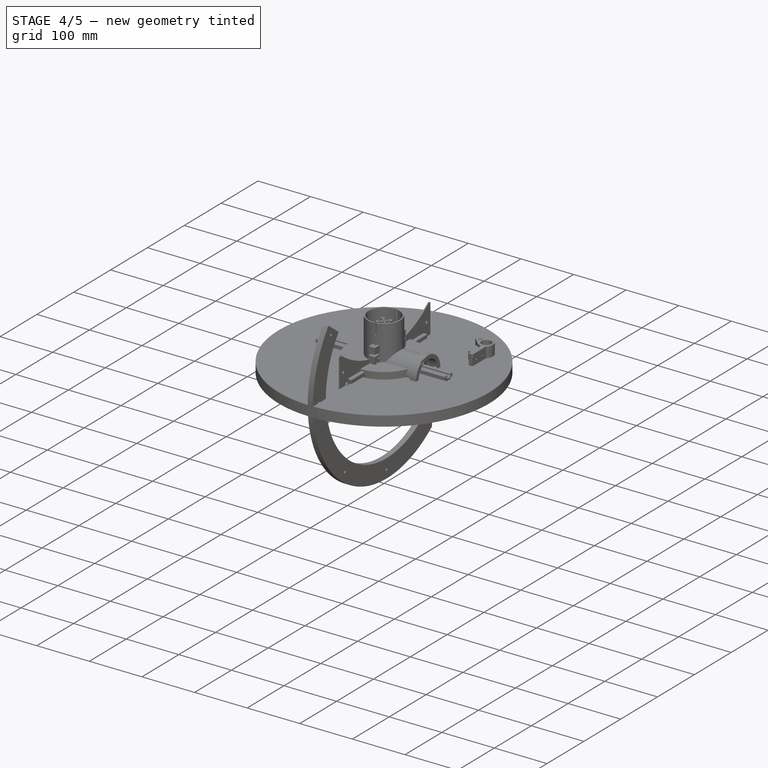
[diagram: stage 4 of 5 — iso view after this stage's code; geometry added in this stage tinted green]
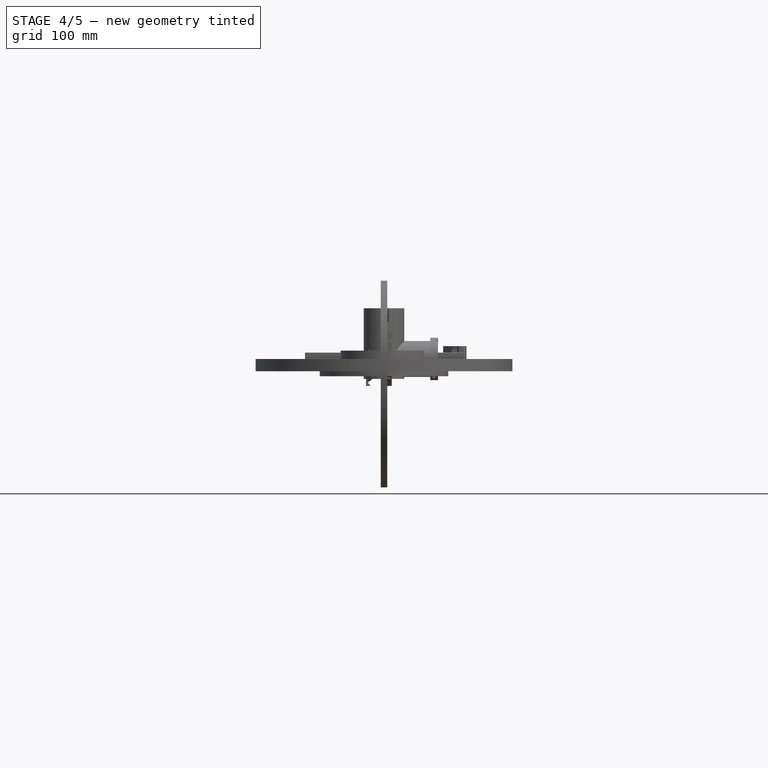
[diagram: stage 4 of 5 — front view after this stage's code; geometry added in this stage tinted green]
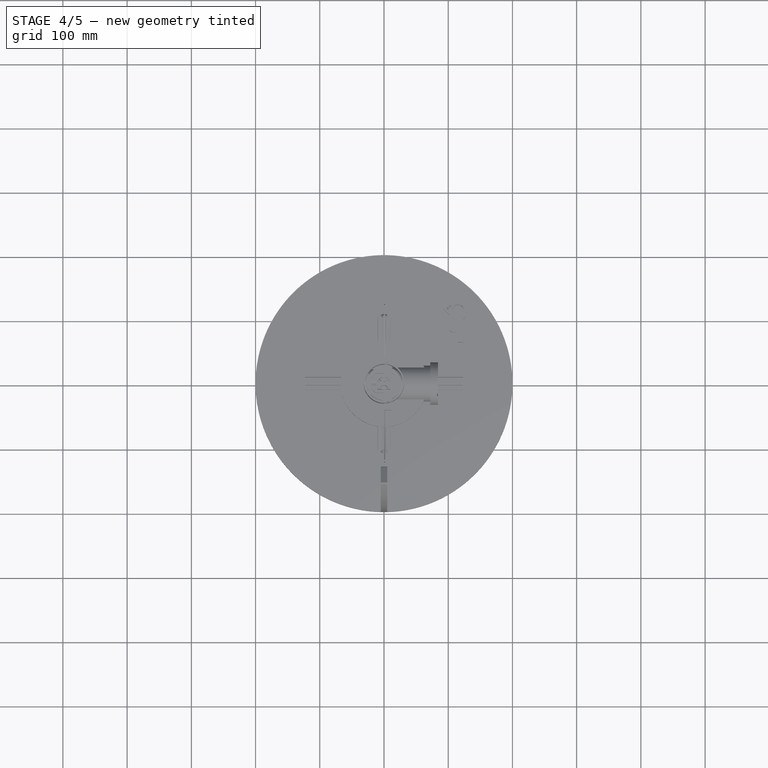
[diagram: stage 4 of 5 — top view after this stage's code; geometry added in this stage tinted green]
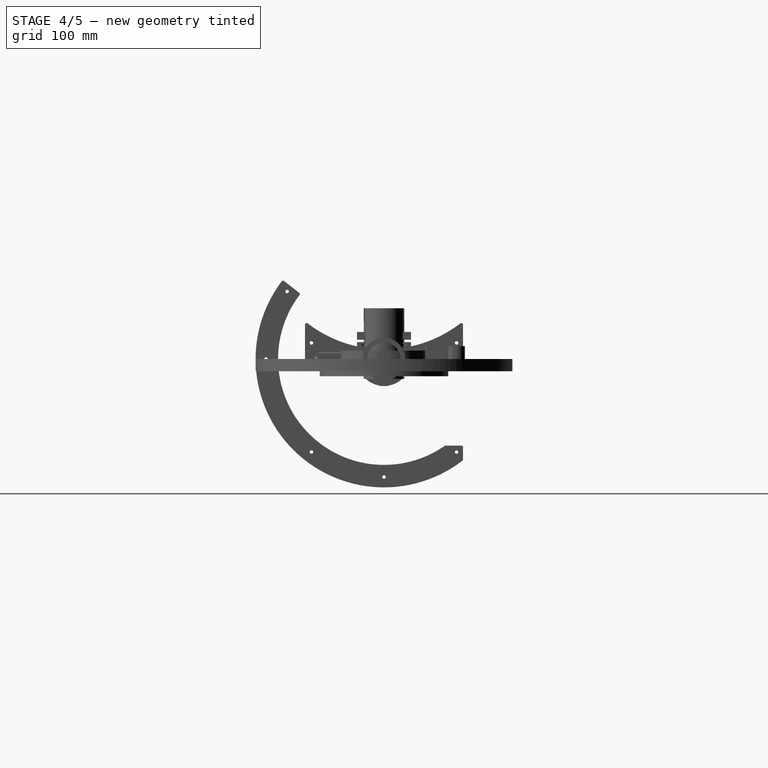
[diagram: stage 4 of 5 — right view after this stage's code; geometry added in this stage tinted green]
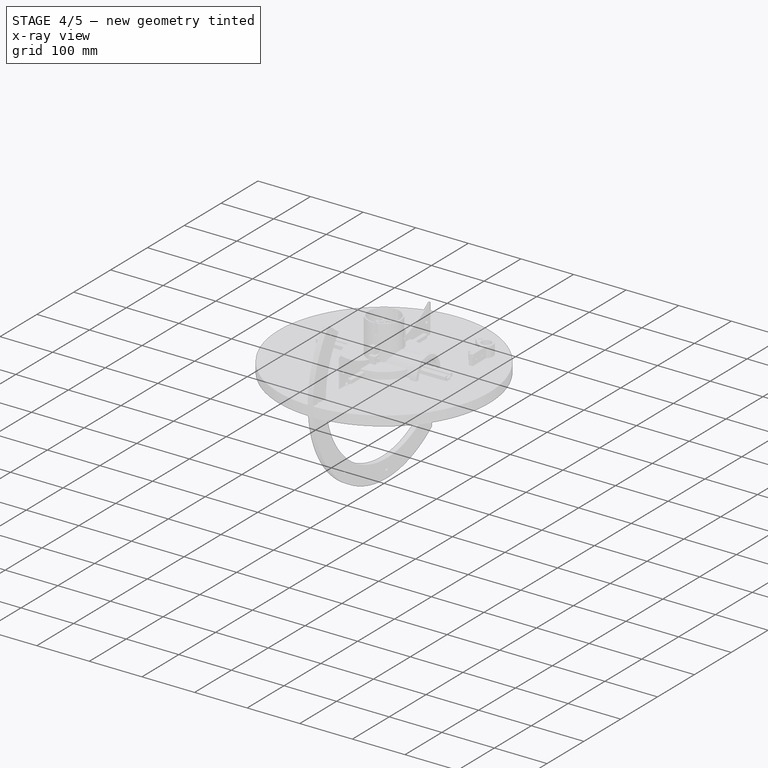
[diagram: stage 4 of 5 — x-ray composite at the iso view; earlier geometry ghosted, this stage's added geometry solid]
FEATURE [PartDesign::CoordinateSystem] Local_CS197  label="LCS_CollKnob_Nut"
  AttacherType = Attacher::AttachEngine3D
  AttachmentOffset = pos=(0,0,0) rot=(0,0,1;1.5708rad)
  MapMode = 11
  Placement = pos=(-4e-16,0,3) rot=(0,0,1;3.14159rad)
  Support = -> [BaseFeature006]
FEATURE [PartDesign::CoordinateSystem] Local_CS198  label="LCS_CollKnob_Base"
  AttacherType = Attacher::AttachEngine3D
  MapMode = 11
  Placement = pos=(-4e-16,0,0) rot=(0,0,1;1.5708rad)
  Support = -> [BaseFeature006]
FEATURE [PartDesign::Body] Body022014  label="CollKnob6"
  BaseFeature = -> Part__Feature006
  Group = -> [BaseFeature006,Local_CS197,Local_CS198]
  Origin = -> Origin067
  Tip = -> BaseFeature006
FEATURE [PartDesign::CoordinateSystem] Local_CS199  label="LCS_PoleUpper"
  AttacherType = Attacher::AttachEngine3D
  MapMode = 11
  Placement = pos=(0,0,500) rot=(0.707107,-0.707107,0;3.14159rad)
  Support = -> [Pad014]
FEATURE [PartDesign::Body] Body015  label="Pole_Body"
  Group = -> [Sketch028,Pad014,Local_CS040,Local_CS199]
  Origin = -> Origin027
  Placement = pos=(113,-113,-51) rot=(0,0,1;0rad)
  Tip = -> Pad014
  expr: .Placement.Base.x = <<Parameters>>.bolt_x
  expr: .Placement.Base.y = -<<Parameters>>.bolt_y
  expr: .Placement.Base.z = <<Parameters>>.datum_lowercell + <<Parameters>>.pri_bthick + <<Parameters>>.pri_sthick
FEATURE [PartDesign::CoordinateSystem] Local_CS201  label="LCS_PlateBaseMount_N"
  AttacherType = Attacher::AttachEngine3D
  AttachmentOffset = pos=(0,-36,0) rot=(0,0,1;0rad)
  MapMode = 5
  Placement = pos=(8e-15,-8e-15,-36) rot=(0.57735,0.57735,0.57735;2.0944rad)
  Support = -> [YZ_Plane014]
  expr: .AttachmentOffset.Base.y = -<<Parameters>>.foc_mbrad
FEATURE [Part::Cylinder] cylinder005
  Angle = 360
  AttacherType = Attacher::AttachEngine3D
  Height = 2
  Radius = 7.5
  expr: Radius = <<Parameters>>.pole_od / 2 - <<Parameters>>.pole_wall - 0.5
FEATURE [Part::Cone] cylinder004
  Angle = 360
  AttacherType = Attacher::AttachEngine3D
  Height = 0.5
  Placement = pos=(0,0,3.5) rot=(0,0,1;0rad)
  Radius1 = 8
  Radius2 = 7.5
  expr: Radius2 = <<Parameters>>.pole_od / 2 - <<Parameters>>.pole_wall - 0.5
  expr: Radius1 = <<Parameters>>.pole_od / 2 - <<Parameters>>.pole_wall
FEATURE [Part::Cone] cylinder002
  Angle = 360
  AttacherType = Attacher::AttachEngine3D
  Height = 0.5
  Placement = pos=(0,0,1.5) rot=(0,0,1;0rad)
  Radius1 = 7.5
  Radius2 = 8
  expr: Radius1 = <<Parameters>>.pole_od / 2 - <<Parameters>>.pole_wall - 0.5
  expr: Radius2 = <<Parameters>>.pole_od / 2 - <<Parameters>>.pole_wall
FEATURE [Part::Cone] cylinder006
  Angle = 360
  AttacherType = Attacher::AttachEngine3D
  Height = 0.5
  Placement = pos=(0,0,1.5) rot=(0,0,1;0rad)
  Radius1 = 7.5
  Radius2 = 8
  expr: Radius1 = <<Parameters>>.pole_od / 2 - <<Parameters>>.pole_wall - 0.5
  expr: Radius2 = <<Parameters>>.pole_od / 2 - <<Parameters>>.pole_wall
FEATURE [Part::Cylinder] cylinder003
  Angle = 360
  AttacherType = Attacher::AttachEngine3D
  Height = 1.5
  Placement = pos=(0,0,2) rot=(0,0,1;0rad)
  Radius = 8
  expr: Radius = <<Parameters>>.pole_od / 2 - <<Parameters>>.pole_wall
FEATURE [Part::Cylinder] cylinder001
  Angle = 360
  AttacherType = Attacher::AttachEngine3D
  Height = 2
  Radius = 7.5
  expr: Radius = <<Parameters>>.pole_od / 2 - <<Parameters>>.pole_wall - 0.5
FEATURE [Part::Cylinder] cylinder011
  Angle = 360
  AttacherType = Attacher::AttachEngine3D
  Height = 1.5
  Placement = pos=(0,0,2) rot=(0,0,1;0rad)
  Radius = 8
  expr: Radius = <<Parameters>>.pole_od / 2 - <<Parameters>>.pole_wall
FEATURE [Part::Cone] cylinder012
  Angle = 360
  AttacherType = Attacher::AttachEngine3D
  Height = 0.5
  Placement = pos=(0,0,3.5) rot=(0,0,1;0rad)
  Radius1 = 8
  Radius2 = 7.5
  expr: Radius2 = <<Parameters>>.pole_od / 2 - <<Parameters>>.pole_wall - 0.5
  expr: Radius1 = <<Parameters>>.pole_od / 2 - <<Parameters>>.pole_wall
FEATURE [Part::Cylinder] cylinder013
  Angle = 360
  AttacherType = Attacher::AttachEngine3D
  Height = 2
  Radius = 7.5
  expr: Radius = <<Parameters>>.pole_od / 2 - <<Parameters>>.pole_wall - 0.5
FEATURE [Part::Cone] cylinder014
  Angle = 360
  AttacherType = Attacher::AttachEngine3D
  Height = 0.5
  Placement = pos=(0,0,1.5) rot=(0,0,1;0rad)
  Radius1 = 7.5
  Radius2 = 8
  expr: Radius1 = <<Parameters>>.pole_od / 2 - <<Parameters>>.pole_wall - 0.5
  expr: Radius2 = <<Parameters>>.pole_od / 2 - <<Parameters>>.pole_wall
FEATURE [Part::Cylinder] cylinder007
  Angle = 360
  AttacherType = Attacher::AttachEngine3D
  Height = 1.5
  Placement = pos=(0,0,2) rot=(0,0,1;0rad)
  Radius = 8
  expr: Radius = <<Parameters>>.pole_od / 2 - <<Parameters>>.pole_wall
FEATURE [Part::Cone] cylinder008
  Angle = 360
  AttacherType = Attacher::AttachEngine3D
  Height = 0.5
  Placement = pos=(0,0,3.5) rot=(0,0,1;0rad)
  Radius1 = 8
  Radius2 = 7.5
  expr: Radius2 = <<Parameters>>.pole_od / 2 - <<Parameters>>.pole_wall - 0.5
  expr: Radius1 = <<Parameters>>.pole_od / 2 - <<Parameters>>.pole_wall
FEATURE [Part::MultiFuse] Matrix_Union001
  Placement = pos=(0,0,4) rot=(0,0,1;0rad)
  Shapes = -> [cylinder005,cylinder006,cylinder007,cylinder008]
FEATURE [Part::Cylinder] cylinder009
  Angle = 360
  AttacherType = Attacher::AttachEngine3D
  Height = 2
  Radius = 7.5
  expr: Radius = <<Parameters>>.pole_od / 2 - <<Parameters>>.pole_wall - 0.5
FEATURE [Part::Cone] cylinder010
  Angle = 360
  AttacherType = Attacher::AttachEngine3D
  Height = 0.5
  Placement = pos=(0,0,1.5) rot=(0,0,1;0rad)
  Radius1 = 7.5
  Radius2 = 8
  expr: Radius1 = <<Parameters>>.pole_od / 2 - <<Parameters>>.pole_wall - 0.5
  expr: Radius2 = <<Parameters>>.pole_od / 2 - <<Parameters>>.pole_wall
FEATURE [Part::MultiFuse] Matrix_Union002
  Placement = pos=(0,0,8) rot=(0,0,1;0rad)
  Shapes = -> [cylinder009,cylinder010,cylinder011,cylinder012]
FEATURE [Part::Cylinder] cylinder019
  Angle = 360
  AttacherType = Attacher::AttachEngine3D
  Height = 1.5
  Placement = pos=(0,0,2) rot=(0,0,1;0rad)
  Radius = 8
  expr: Radius = <<Parameters>>.pole_od / 2 - <<Parameters>>.pole_wall
FEATURE [Part::Cone] cylinder020
  Angle = 360
  AttacherType = Attacher::AttachEngine3D
  Height = 0.5
  Placement = pos=(0,0,3.5) rot=(0,0,1;0rad)
  Radius1 = 8
  Radius2 = 7.5
  expr: Radius2 = <<Parameters>>.pole_od / 2 - <<Parameters>>.pole_wall - 0.5
  expr: Radius1 = <<Parameters>>.pole_od / 2 - <<Parameters>>.pole_wall
FEATURE [Part::Cylinder] cylinder021
  Angle = 360
  AttacherType = Attacher::AttachEngine3D
  Height = 2
  Radius = 7.5
  expr: Radius = <<Parameters>>.pole_od / 2 - <<Parameters>>.pole_wall - 0.5
FEATURE [Part::Cone] cylinder022
  Angle = 360
  AttacherType = Attacher::AttachEngine3D
  Height = 0.5
  Placement = pos=(0,0,1.5) rot=(0,0,1;0rad)
  Radius1 = 7.5
  Radius2 = 8
  expr: Radius1 = <<Parameters>>.pole_od / 2 - <<Parameters>>.pole_wall - 0.5
  expr: Radius2 = <<Parameters>>.pole_od / 2 - <<Parameters>>.pole_wall
FEATURE [Part::Cylinder] cylinder015
  Angle = 360
  AttacherType = Attacher::AttachEngine3D
  Height = 1.5
  Placement = pos=(0,0,2) rot=(0,0,1;0rad)
  Radius = 8
  expr: Radius = <<Parameters>>.pole_od / 2 - <<Parameters>>.pole_wall
FEATURE [Part::Cone] cylinder016
  Angle = 360
  AttacherType = Attacher::AttachEngine3D
  Height = 0.5
  Placement = pos=(0,0,3.5) rot=(0,0,1;0rad)
  Radius1 = 8
  Radius2 = 7.5
  expr: Radius2 = <<Parameters>>.pole_od / 2 - <<Parameters>>.pole_wall - 0.5
  expr: Radius1 = <<Parameters>>.pole_od / 2 - <<Parameters>>.pole_wall
FEATURE [Part::MultiFuse] Matrix_Union003
  Placement = pos=(0,0,12) rot=(0,0,1;0rad)
  Shapes = -> [cylinder013,cylinder014,cylinder015,cylinder016]
FEATURE [Part::Cylinder] cylinder017
  Angle = 360
  AttacherType = Attacher::AttachEngine3D
  Height = 2
  Radius = 7.5
  expr: Radius = <<Parameters>>.pole_od / 2 - <<Parameters>>.pole_wall - 0.5
FEATURE [Part::Cone] cylinder018
  Angle = 360
  AttacherType = Attacher::AttachEngine3D
  Height = 0.5
  Placement = pos=(0,0,1.5) rot=(0,0,1;0rad)
  Radius1 = 7.5
  Radius2 = 8
  expr: Radius1 = <<Parameters>>.pole_od / 2 - <<Parameters>>.pole_wall - 0.5
  expr: Radius2 = <<Parameters>>.pole_od / 2 - <<Parameters>>.pole_wall
FEATURE [Part::MultiFuse] Matrix_Union004
  Placement = pos=(0,0,16) rot=(0,0,1;0rad)
  Shapes = -> [cylinder017,cylinder018,cylinder019,cylinder020]
FEATURE [Part::Cylinder] cylinder027
  Angle = 360
  AttacherType = Attacher::AttachEngine3D
  Height = 1.5
  Placement = pos=(0,0,2) rot=(0,0,1;0rad)
  Radius = 8
  expr: Radius = <<Parameters>>.pole_od / 2 - <<Parameters>>.pole_wall
FEATURE [Part::Cone] cylinder028
  Angle = 360
  AttacherType = Attacher::AttachEngine3D
  Height = 0.5
  Placement = pos=(0,0,3.5) rot=(0,0,1;0rad)
  Radius1 = 8
  Radius2 = 7.5
  expr: Radius2 = <<Parameters>>.pole_od / 2 - <<Parameters>>.pole_wall - 0.5
  expr: Radius1 = <<Parameters>>.pole_od / 2 - <<Parameters>>.pole_wall
FEATURE [Part::Cylinder] cylinder023
  Angle = 360
  AttacherType = Attacher::AttachEngine3D
  Height = 1.5
  Placement = pos=(0,0,2) rot=(0,0,1;0rad)
  Radius = 8
  expr: Radius = <<Parameters>>.pole_od / 2 - <<Parameters>>.pole_wall
FEATURE [Part::Cone] cylinder024
  Angle = 360
  AttacherType = Attacher::AttachEngine3D
  Height = 0.5
  Placement = pos=(0,0,3.5) rot=(0,0,1;0rad)
  Radius1 = 8
  Radius2 = 7.5
  expr: Radius2 = <<Parameters>>.pole_od / 2 - <<Parameters>>.pole_wall - 0.5
  expr: Radius1 = <<Parameters>>.pole_od / 2 - <<Parameters>>.pole_wall
FEATURE [Part::MultiFuse] Matrix_Union005
  Placement = pos=(0,0,20) rot=(0,0,1;0rad)
  Shapes = -> [cylinder021,cylinder022,cylinder023,cylinder024]
FEATURE [Part::Cylinder] cylinder025
  Angle = 360
  AttacherType = Attacher::AttachEngine3D
  Height = 2
  Radius = 7.5
  expr: Radius = <<Parameters>>.pole_od / 2 - <<Parameters>>.pole_wall - 0.5
FEATURE [Part::Cone] cylinder026
  Angle = 360
  AttacherType = Attacher::AttachEngine3D
  Height = 0.5
  Placement = pos=(0,0,1.5) rot=(0,0,1;0rad)
  Radius1 = 7.5
  Radius2 = 8
  expr: Radius1 = <<Parameters>>.pole_od / 2 - <<Parameters>>.pole_wall - 0.5
  expr: Radius2 = <<Parameters>>.pole_od / 2 - <<Parameters>>.pole_wall
FEATURE [Part::MultiFuse] Matrix_Union006
  Placement = pos=(0,0,24) rot=(0,0,1;0rad)
  Shapes = -> [cylinder025,cylinder026,cylinder027,cylinder028]
FEATURE [Part::Cylinder] cylinder029
  Angle = 360
  AttacherType = Attacher::AttachEngine3D
  Height = 31
  Placement = pos=(0,0,8) rot=(0,0,1;0rad)
  Radius = 5.2188
FEATURE [Part::Prism] prism
  AttacherType = Attacher::AttachEngine3D
  Circumradius = 5.08068
  FirstAngle = 0
  Height = 31
  Placement = pos=(0,0,4) rot=(0,0,1;0rad)
  Polygon = 6
  SecondAngle = 0
FEATURE [Part::Cylinder] cylinder030
  Angle = 360
  AttacherType = Attacher::AttachEngine3D
  Height = 6
  Placement = pos=(0,0,-1) rot=(0,0,1;0rad)
  Radius = 2.75
FEATURE [Part::MultiFuse] union001
  Shapes = -> [cylinder029,prism,cylinder030]
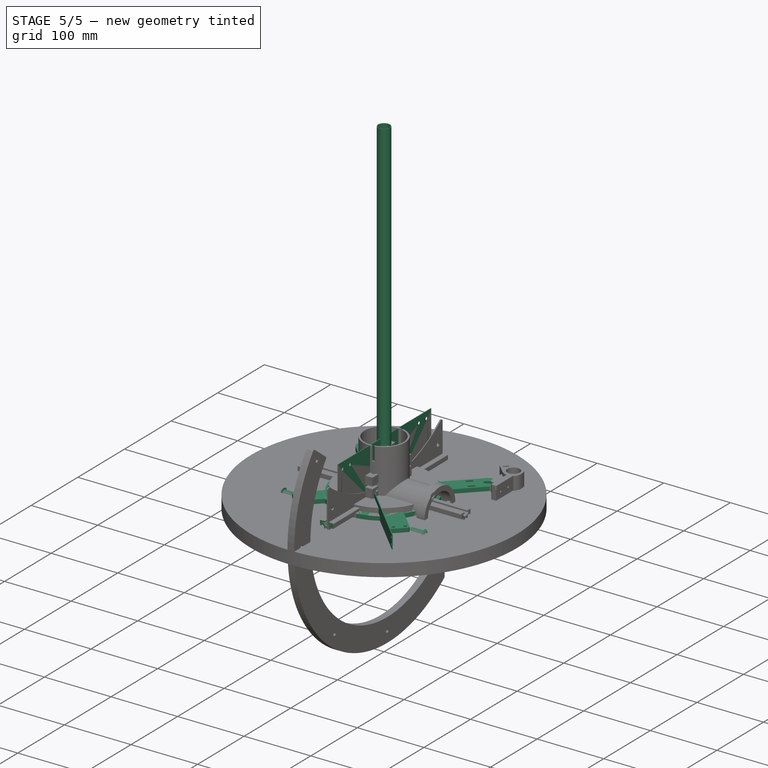
[diagram: stage 5 of 5 — iso view after this stage's code; geometry added in this stage tinted green]
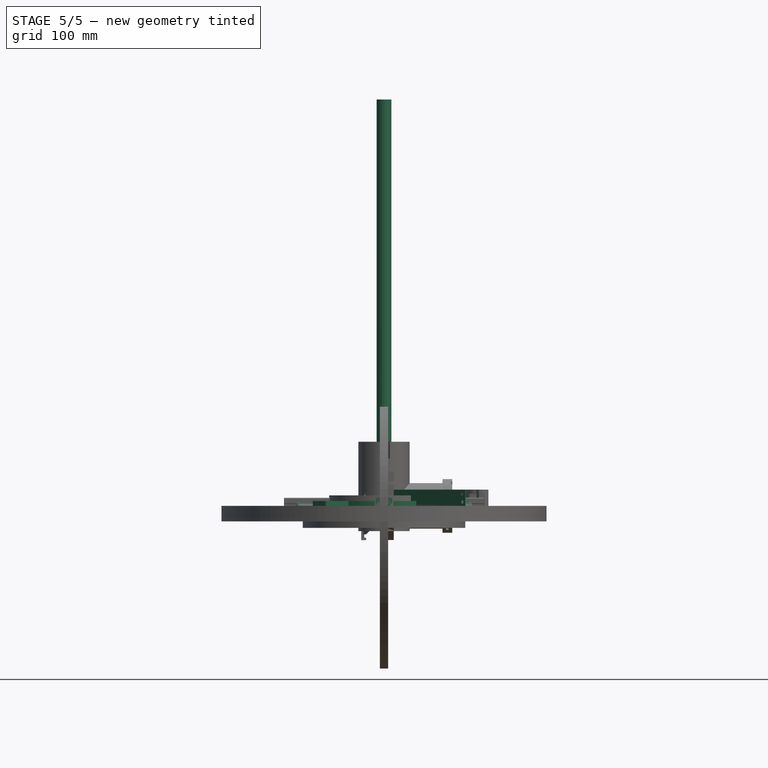
[diagram: stage 5 of 5 — front view after this stage's code; geometry added in this stage tinted green]
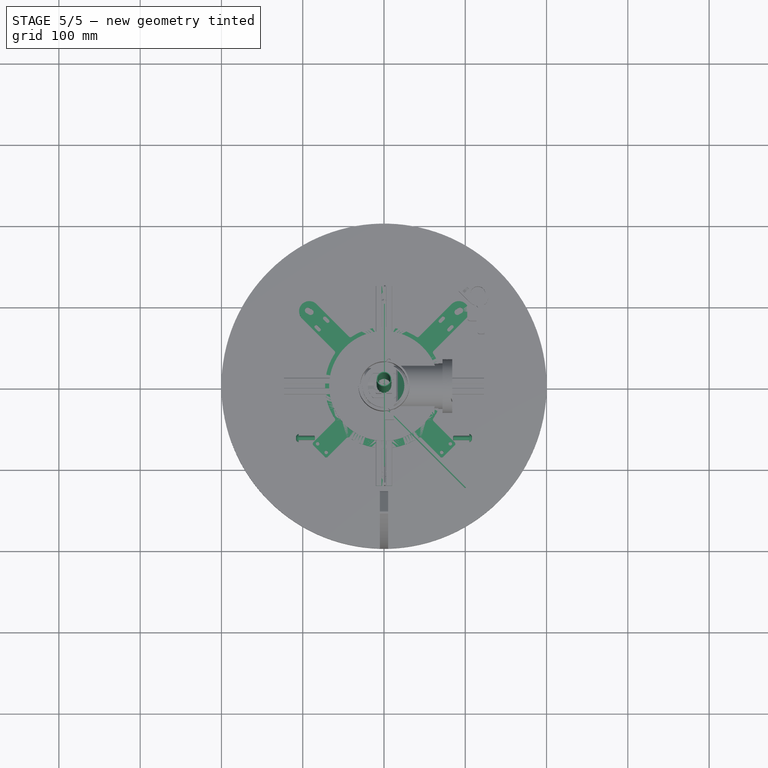
[diagram: stage 5 of 5 — top view after this stage's code; geometry added in this stage tinted green]
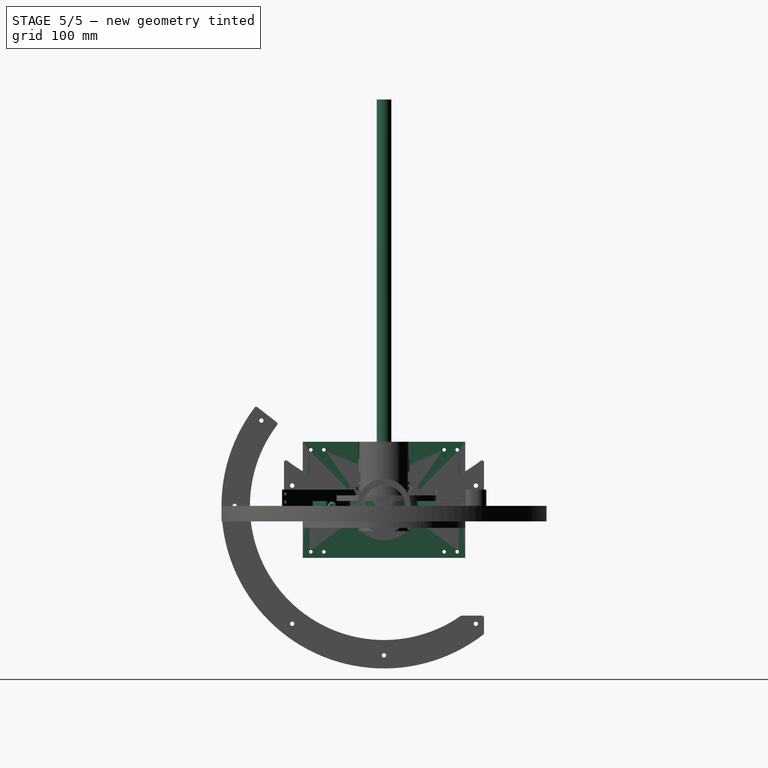
[diagram: stage 5 of 5 — right view after this stage's code; geometry added in this stage tinted green]
FEATURE [Sketcher::SketchObject] Sketch007  label="RockerMountHoles"
  ExternalGeometry = -> [Pad008]
  FullyConstrained = true
  MapMode = 5
  Placement = pos=(5,-1.1e-15,1.1e-15) rot=(0.57735,0.57735,0.57735;2.0944rad)
  Support = -> [DatumPlane]
  expr: Constraints[6] = <<Parameters>>.datum_lowercell - <<Parameters>>.datum_rocker_z
  expr: Constraints[1] = <<Parameters>>.bolt_y
  sketch-geometry (8):
    g0: LineSegment StartX=-113 StartY=-145 StartZ=0 EndX=113 EndY=-145 EndZ=0
    g1: Circle CenterX=-113 CenterY=-145 CenterZ=0 NormalX=0 NormalY=0 NormalZ=1 AngleXU=0 Radius=2.5
    g2: Circle CenterX=113 CenterY=-145 CenterZ=0 NormalX=0 NormalY=0 NormalZ=1 AngleXU=0 Radius=2.5
    g3: Circle CenterX=0 CenterY=0 CenterZ=0 NormalX=0 NormalY=0 NormalZ=1 AngleXU=0 Radius=183.831
    g4: Circle CenterX=-150.891 CenterY=105.004 CenterZ=0 NormalX=0 NormalY=0 NormalZ=1 AngleXU=0 Radius=10
    g5: Circle CenterX=0 CenterY=-183.831 CenterZ=0 NormalX=0 NormalY=0 NormalZ=1 AngleXU=0 Radius=2.5
    g6: Circle CenterX=-183.831 CenterY=0 CenterZ=0 NormalX=0 NormalY=0 NormalZ=1 AngleXU=0 Radius=2.5
    g7: Circle CenterX=-150.891 CenterY=105.004 CenterZ=0 NormalX=0 NormalY=0 NormalZ=1 AngleXU=0 Radius=2.5
  constraints (21):
    c: Symmetric(g0,g0,g-2)
    c: DistanceX(g0) = 113
    c: Coincident(g1,g0)
    c: Coincident(g2,g0)
    c: Diameter(g2) = 5
    c: Equal(g2,g1)
    c: DistanceY(g2) = -145
    c: Distance(g-1,g1) = 183.831
    c: Coincident(g3,g-1)
    c: PointOnObject(g0,g3)
    c: PointOnObject(g4,g3)
    c: Tangent(g4,g-3)
    c: Radius(g4) = 10
    c: PointOnObject(g5,g-2)
    c: PointOnObject(g6,g3)
    c: Coincident(g7,g4)
    c: Equal(g7,g6)
    c: Equal(g6,g5)
    c: Equal(g5,g2)
    c: PointOnObject(g6,g-1)
    c: PointOnObject(g5,g3)
FEATURE [PartDesign::Plane] DatumPlane004  label="UpperCell_DatumPlane_Top"
  AttachmentOffset = pos=(0,0,6) rot=(0,0,1;0rad)
  Length = 249.031
  MapMode = 5
  Placement = pos=(0,0,6) rot=(0,0,1;0rad)
  ResizeMode = 0
  Support = -> [XY_Plane001]
  Width = 232.245
  expr: .AttachmentOffset.Base.z = <<Parameters>>.pri_uthick
FEATURE [Sketcher::SketchObject] Sketch012  label="UpperCell_Sketch_CollHoles"
  FullyConstrained = true
  MapMode = 5
  Placement = pos=(0,0,6) rot=(0,0,1;0rad)
  Support = -> [DatumPlane004]
  expr: Constraints[10] = <<Parameters>>.collslot + 1
  expr: Constraints[1] = <<Parameters>>.rbracepos + <<Parameters>>.collslot
  expr: Constraints[9] = <<Parameters>>.collbolt * 2 + 1
  sketch-geometry (6):
    g0: GeomPoint X=0 Y=-64 Z=0
    g1: ArcOfCircle CenterX=0 CenterY=-61.5 CenterZ=0 NormalX=0 NormalY=0 NormalZ=1 AngleXU=0 Radius=6.5 StartAngle=2e-16 EndAngle=3.14159
    g2: ArcOfCircle CenterX=0 CenterY=-66.5 CenterZ=0 NormalX=0 NormalY=0 NormalZ=1 AngleXU=0 Radius=6.5 StartAngle=3.14159 EndAngle=6.28319
    g3: LineSegment StartX=-6.5 StartY=-61.5 StartZ=0 EndX=-6.5 EndY=-66.5 EndZ=0
    g4: LineSegment StartX=6.5 StartY=-61.5 StartZ=0 EndX=6.5 EndY=-66.5 EndZ=0
    g5: LineSegment StartX=-6.5 StartY=-61.5 StartZ=0 EndX=6.5 EndY=-66.5 EndZ=0
  constraints (14):
    c: PointOnObject(g0,g-2)
    c: DistanceY(g0,g-1) = 64
    c: Tangent(g1,g4) = 1.5708
    c: Tangent(g1,g3) = -1.5708
    c: Tangent(g3,g2) = -1.5708
    c: Tangent(g4,g2) = 1.5708
    c: Vertical(g3)
    c: Equal(g1,g2)
    c: PointOnObject(g1,g-2)
    c: Diameter(g1) = 13
    c: DistanceY(g4,g4) = 5
    c: Coincident(g5,g1)
    c: Coincident(g5,g2)
    c: PointOnObject(g0,g5)
FEATURE [Sketcher::SketchObject] Sketch017  label="UpperCell_Sketch_ClipHoles"
  FullyConstrained = true
  MapMode = 5
  Placement = pos=(0,0,6) rot=(0,0,1;0rad)
  Support = -> [DatumPlane004]
  expr: Constraints[58] = <<Parameters>>.clipslot / 2
  expr: Constraints[47] = <<Parameters>>.clipslot
  expr: Constraints[9] = <<Parameters>>.pri_fwidth - <<Parameters>>.clipbolt * 2.5
  expr: Constraints[28] = <<Parameters>>.clipbolt * 1.1
  expr: Constraints[1] = <<Parameters>>.pri_mdia / 2 + <<Parameters>>.pri_mpad_z + <<Parameters>>.clipwidth / 2 - <<Parameters>>.clipslot / 2
  sketch-geometry (28):
    g0: Circle CenterX=0 CenterY=0 CenterZ=0 NormalX=0 NormalY=0 NormalZ=1 AngleXU=0 Radius=105.5
    g1: LineSegment StartX=-76.3675 StartY=-76.3675 StartZ=0 EndX=74.5998 EndY=74.5998 EndZ=0
    g2: LineSegment StartX=-74.5998 StartY=74.5998 StartZ=0 EndX=76.3675 EndY=-76.3675 EndZ=0
    g3: LineSegment StartX=-81.6708 StartY=-71.0642 StartZ=0 EndX=-71.0642 EndY=-81.6708 EndZ=0
    g4: LineSegment StartX=71.0642 StartY=-81.6708 StartZ=0 EndX=81.6708 EndY=-71.0642 EndZ=0
    g5: LineSegment StartX=69.2965 StartY=79.9031 StartZ=0 EndX=79.9031 EndY=69.2965 EndZ=0
    g6: LineSegment StartX=-69.2965 StartY=79.9031 StartZ=0 EndX=-79.9031 EndY=69.2965 EndZ=0
    g7: ArcOfCircle CenterX=72.832 CenterY=83.4386 CenterZ=0 NormalX=0 NormalY=0 NormalZ=1 AngleXU=0 Radius=2.2 StartAngle=5.49779 EndAngle=8.63938
    g8: ArcOfCircle CenterX=69.2965 CenterY=79.9031 CenterZ=0 NormalX=0 NormalY=0 NormalZ=1 AngleXU=0 Radius=2.2 StartAngle=2.35619 EndAngle=5.49779
    g9: LineSegment StartX=71.2764 StartY=84.9942 StartZ=0 EndX=67.7408 EndY=81.4587 EndZ=0
    g10: LineSegment StartX=74.3876 StartY=81.883 StartZ=0 EndX=70.8521 EndY=78.3474 EndZ=0
    g11: ArcOfCircle CenterX=83.4386 CenterY=72.832 CenterZ=0 NormalX=0 NormalY=0 NormalZ=1 AngleXU=0 Radius=2.2 StartAngle=5.49779 EndAngle=8.63938
    g12: ArcOfCircle CenterX=79.9031 CenterY=69.2965 CenterZ=0 NormalX=0 NormalY=0 NormalZ=1 AngleXU=0 Radius=2.2 StartAngle=2.35619 EndAngle=5.49779
    g13: LineSegment StartX=81.883 StartY=74.3876 StartZ=0 EndX=78.3474 EndY=70.8521 EndZ=0
    g14: LineSegment StartX=84.9942 StartY=71.2764 StartZ=0 EndX=81.4587 EndY=67.7408 EndZ=0
    g15: ArcOfCircle CenterX=-72.832 CenterY=83.4386 CenterZ=0 NormalX=0 NormalY=0 NormalZ=1 AngleXU=0 Radius=2.2 StartAngle=0.785398 EndAngle=3.92699
    g16: ArcOfCircle CenterX=-69.2965 CenterY=79.9031 CenterZ=0 NormalX=0 NormalY=0 NormalZ=1 AngleXU=0 Radius=2.2 StartAngle=3.92699 EndAngle=7.06858
    g17: LineSegment StartX=-74.3876 StartY=81.883 StartZ=0 EndX=-70.8521 EndY=78.3474 EndZ=0
    g18: LineSegment StartX=-71.2764 StartY=84.9942 StartZ=0 EndX=-67.7408 EndY=81.4587 EndZ=0
    g19: ArcOfCircle CenterX=-83.4386 CenterY=72.832 CenterZ=0 NormalX=0 NormalY=0 NormalZ=1 AngleXU=0 Radius=2.2 StartAngle=0.785398 EndAngle=3.92699
    g20: ArcOfCircle CenterX=-79.9031 CenterY=69.2965 CenterZ=0 NormalX=0 NormalY=0 NormalZ=1 AngleXU=0 Radius=2.2 StartAngle=3.92699 EndAngle=7.06858
    g21: LineSegment StartX=-84.9942 StartY=71.2764 StartZ=0 EndX=-81.4587 EndY=67.7408 EndZ=0
    g22: LineSegment StartX=-81.883 StartY=74.3876 StartZ=0 EndX=-78.3474 EndY=70.8521 EndZ=0
    g23: GeomPoint X=-74.5998 Y=-74.5998 Z=0
    g24: Circle CenterX=81.6708 CenterY=-71.0642 CenterZ=0 NormalX=0 NormalY=0 NormalZ=1 AngleXU=0 Radius=2.2
    g25: Circle CenterX=71.0642 CenterY=-81.6708 CenterZ=0 NormalX=0 NormalY=0 NormalZ=1 AngleXU=0 Radius=2.2
    g26: Circle CenterX=-71.0642 CenterY=-81.6708 CenterZ=0 NormalX=0 NormalY=0 NormalZ=1 AngleXU=0 Radius=2.2
    g27: Circle CenterX=-81.6708 CenterY=-71.0642 CenterZ=0 NormalX=0 NormalY=0 NormalZ=1 AngleXU=0 Radius=2.2
  constraints (67):
    c: Coincident(g0,g-1)
    c: Radius(g0) = 105.5
    c: PointOnObject(g1,g0)
    c: PointOnObject(g2,g0)
    c: PointOnObject(g-1,g1)
    c: PointOnObject(g-1,g2)
    c: Perpendicular(g2,g1)
    c: Symmetric(g1,g2,g-2)
    c: Symmetric(g3,g3,g1)
    c: Distance(g3) = 15
    c: Symmetric(g4,g4,g2)
    c: Symmetric(g6,g6,g2)
    c: Symmetric(g5,g5,g1)
    c: PointOnObject(g1,g5)
    c: PointOnObject(g2,g6)
    c: Equal(g6,g5)
    c: Equal(g5,g4)
    c: Equal(g4,g3)
    c: Tangent(g7,g10) = 1.5708
    c: Tangent(g7,g9) = -1.5708
    c: Tangent(g9,g8) = -1.5708
    c: Tangent(g10,g8) = 1.5708
    c: Equal(g7,g8)
    c: Tangent(g11,g14) = 1.5708
    c: Tangent(g11,g13) = -1.5708
    c: Tangent(g13,g12) = -1.5708
    c: Tangent(g14,g12) = 1.5708
    c: Equal(g11,g12)
    c: Diameter(g7) = 4.4
    c: Equal(g11,g7)
    c: Equal(g14,g10)
    c: Tangent(g15,g18) = 1.5708
    c: Tangent(g15,g17) = -1.5708
    c: Tangent(g17,g16) = -1.5708
    c: Tangent(g18,g16) = 1.5708
    c: Equal(g15,g16)
    c: Tangent(g19,g22) = 1.5708
    c: Tangent(g19,g21) = -1.5708
    c: Tangent(g21,g20) = -1.5708
    c: Tangent(g22,g20) = 1.5708
    c: Equal(g19,g20)
    c: Equal(g7,g15)
    c: Equal(g15,g19)
    c: Equal(g10,g17)
    c: Equal(g21,g17)
    c: Parallel(g9,g13)
    c: Parallel(g13,g1)
    c: Distance(g10) = 5
    c: Coincident(g8,g5)
    c: Coincident(g12,g5)
    c: Parallel(g17,g21)
    c: Parallel(g21,g2)
    c: Coincident(g16,g6)
    c: Coincident(g20,g6)
    c: PointOnObject(g23,g0)
    c: PointOnObject(g2,g4)
    c: PointOnObject(g1,g3)
    c: PointOnObject(g23,g1)
    c: Distance(g1,g23) = 2.5
    c: Coincident(g24,g4)
    c: Coincident(g25,g4)
    c: Coincident(g26,g3)
    c: Coincident(g27,g3)
    c: Equal(g27,g26)
    c: Equal(g26,g25)
    c: Equal(g25,g24)
    c: Equal(g24,g7)
FEATURE [Sketcher::SketchObject] Sketch024  label="UpperCell_Sketch_MountHoles"
  FullyConstrained = true
  MapMode = 5
  Placement = pos=(0,0,6) rot=(0,0,1;0rad)
  Support = -> [DatumPlane004]
  expr: Constraints[8] = <<Parameters>>.pri_fwidth - 4
  expr: Constraints[1] = <<Parameters>>.rbracepos
  sketch-geometry (6):
    g0: Circle CenterX=0 CenterY=0 CenterZ=0 NormalX=0 NormalY=0 NormalZ=1 AngleXU=0 Radius=60
    g1: LineSegment StartX=-51.9615 StartY=-30 StartZ=0 EndX=0 EndY=0 EndZ=0
    g2: LineSegment StartX=0 StartY=0 StartZ=0 EndX=51.9615 EndY=-30 EndZ=0
    g3: Circle CenterX=0 CenterY=60 CenterZ=0 NormalX=0 NormalY=0 NormalZ=1 AngleXU=0 Radius=10.5
    g4: Circle CenterX=-51.9615 CenterY=-30 CenterZ=0 NormalX=0 NormalY=0 NormalZ=1 AngleXU=0 Radius=10.5
    g5: Circle CenterX=51.9615 CenterY=-30 CenterZ=0 NormalX=0 NormalY=0 NormalZ=1 AngleXU=0 Radius=10.5
  constraints (14):
    c: Coincident(g0,g-1)
    c: Radius(g0) = 60
    c: Coincident(g1,g-1)
    c: Coincident(g2,g-1)
    c: Angle(g1,g2) = 2.0944
    c: PointOnObject(g2,g0)
    c: Symmetric(g1,g2,g-2)
    c: PointOnObject(g3,g-2)
    c: Diameter(g3) = 21
    c: PointOnObject(g3,g0)
    c: Coincident(g4,g1)
    c: Coincident(g5,g2)
    c: Equal(g5,g4)
    c: Equal(g4,g3)
FEATURE [Sketcher::SketchObject] Sketch026  label="LowerPad_Profile_Sketch"
  FullyConstrained = true
  MapMode = 5
  Placement = pos=(0,0,0) rot=(1,0,0;1.5708rad)
  Support = -> [XZ_Plane006]
  expr: Constraints[13] = <<Parameters>>.pri_mpad_r + 1
  expr: Constraints[1] = <<Parameters>>.pri_fwidth / 2 - 2.25
  sketch-geometry (5):
    g0: LineSegment StartX=1e-16 StartY=4 StartZ=0 EndX=1e-16 EndY=-1 EndZ=0
    g1: LineSegment StartX=1e-16 StartY=-1 StartZ=0 EndX=10.25 EndY=-1 EndZ=0
    g2: LineSegment StartX=10.25 StartY=-1 StartZ=0 EndX=10.25 EndY=0 EndZ=0
    g3: LineSegment StartX=10.25 StartY=0 StartZ=0 EndX=0.751862 EndY=3.8533 EndZ=0
    g4: ArcOfCircle CenterX=0 CenterY=2 CenterZ=0 NormalX=0 NormalY=0 NormalZ=1 AngleXU=0 Radius=2 StartAngle=1.18539 EndAngle=1.5708
  constraints (15):
    c: Vertical(g0)
    c: DistanceX(g1,g1) = 10.25
    c: Coincident(g2,g1)
    c: Vertical(g2)
    c: Coincident(g3,g2)
    c: PointOnObject(g4,g0)
    c: Coincident(g4,g0)
    c: Diameter(g4) = 4
    c: Tangent(g4,g3) = -1.5708
    c: Horizontal(g1)
    c: Coincident(g0,g1)
    c: PointOnObject(g0,g-2)
    c: DistanceY(g2,g2) = 1
    c: DistanceY(g0,g0) = 5
    c: PointOnObject(g2,g-1)
FEATURE [PartDesign::Revolution] Revolution  label="LowerPad_Revolution"
  Angle = 360
  Axis = (0,-2e-16,1)
  Base = (0,0,0)
  Placement = pos=(0,0,0) rot=(1,0,0;1.5708rad)
  Profile = -> Sketch026
  ReferenceAxis = -> Sketch026 [V_Axis]
  Reversed = true
FEATURE [PartDesign::CoordinateSystem] Local_CS  label="LCS_MirrorFace"
  AttacherType = Attacher::AttachEngine3D
  MapMode = 5
  Support = -> [XY_Plane]
FEATURE [PartDesign::CoordinateSystem] Local_CS001  label="LCS_MirrorBase"
  AttacherType = Attacher::AttachEngine3D
  AttachmentOffset = pos=(0,0,-27) rot=(0,0,1;0rad)
  MapMode = 5
  Placement = pos=(0,0,-27) rot=(0,0,1;0rad)
  Support = -> [XY_Plane]
  expr: .AttachmentOffset.Base.z = -<<Parameters>>.pri_mthick
FEATURE [PartDesign::CoordinateSystem] Local_CS002  label="LCS_PadBase"
  AttacherType = Attacher::AttachEngine3D
  MapMode = 11
  Placement = pos=(0,2e-16,-1) rot=(0,0,1;1.5708rad)
  Support = -> [Revolution]
FEATURE [PartDesign::CoordinateSystem] Local_CS004  label="LCS_PadUpper"
  AttacherType = Attacher::AttachEngine3D
  MapMode = 11
  Placement = pos=(0,-9e-16,3.8533) rot=(0.707107,-0.707107,0;3.14159rad)
  Support = -> [Revolution]
FEATURE [PartDesign::Body] Body002  label="LowerPad"
  Group = -> [Sketch026,Revolution,Local_CS002,Local_CS004]
  Origin = -> Origin006
  Placement = pos=(0,60,-31) rot=(0,0,1;0rad)
  Tip = -> Revolution
  expr: .Placement.Base.y = <<Parameters>>.rbracepos
  expr: .Placement.Base.z = <<Parameters>>.datum_uppercell + <<Parameters>>.pri_uthick
FEATURE [PartDesign::CoordinateSystem] Local_CS006  label="LCS_UpperCell_Pad_A"
  AttacherType = Attacher::AttachEngine3D
  AttachmentOffset = pos=(0,60,-1) rot=(0,0,1;0rad)
  MapMode = 5
  Placement = pos=(0,60,5) rot=(0,0,1;0rad)
  Support = -> [DatumPlane004]
  expr: .AttachmentOffset.Base.y = <<Parameters>>.rbracepos
FEATURE [PartDesign::CoordinateSystem] Local_CS007  label="LCS_UpperCell_Pad_FP"
  AttacherType = Attacher::AttachEngine3D
  AttachmentOffset = pos=(51.9615,-30,-1) rot=(0,0,-1;2.0944rad)
  MapMode = 5
  Placement = pos=(51.9615,-30,5) rot=(0,0,-1;2.0944rad)
  Support = -> [DatumPlane004]
  expr: .AttachmentOffset.Base.x = <<Parameters>>.rbracepos * sin(120deg)
  expr: .AttachmentOffset.Base.y = <<Parameters>>.rbracepos * cos(120deg)
FEATURE [PartDesign::CoordinateSystem] Local_CS008  label="LCS_UpperCell_Pad_FS"
  AttacherType = Attacher::AttachEngine3D
  AttachmentOffset = pos=(-51.9615,-30,-1) rot=(0,0,1;2.0944rad)
  MapMode = 5
  Placement = pos=(-51.9615,-30,5) rot=(0,0,1;2.0944rad)
  Support = -> [DatumPlane004]
  expr: .AttachmentOffset.Base.y = <<Parameters>>.rbracepos * cos(-120deg)
  expr: .AttachmentOffset.Base.x = <<Parameters>>.rbracepos * sin(-120deg)
FEATURE [PartDesign::CoordinateSystem] Local_CS009  label="LCS_UpperCell_CollBoltF"
  AttacherType = Attacher::AttachEngine3D
  AttachmentOffset = pos=(0,-64,-2) rot=(0,0,1;0rad)
  MapMode = 5
  Placement = pos=(0,-64,4) rot=(0,0,1;0rad)
  Support = -> [DatumPlane004]
  expr: .AttachmentOffset.Base.y = -<<Parameters>>.cpointpos
FEATURE [PartDesign::CoordinateSystem] Local_CS010  label="LCS_UpperCell_CollBolt_AS"
  AttacherType = Attacher::AttachEngine3D
  AttachmentOffset = pos=(-92,92,0) rot=(0,0,1;0rad)
  MapMode = 5
  Placement = pos=(-92,92,6) rot=(0,0,1;0rad)
  Support = -> [DatumPlane004]
  expr: .AttachmentOffset.Base.y = <<Parameters>>.collpos_y
  expr: .AttachmentOffset.Base.x = -<<Parameters>>.collpos_y
FEATURE [PartDesign::CoordinateSystem] Local_CS011  label="LCS_UpperCell_CollBolt_AP"
  AttacherType = Attacher::AttachEngine3D
  AttachmentOffset = pos=(92,92,0) rot=(0,0,1;0rad)
  MapMode = 5
  Placement = pos=(92,92,6) rot=(0,0,1;0rad)
  Support = -> [DatumPlane004]
  expr: .AttachmentOffset.Base.y = <<Parameters>>.collpos_y
  expr: .AttachmentOffset.Base.x = <<Parameters>>.collpos_y
FEATURE [Sketcher::SketchObject] Sketch028  label="Pole_ProfileSketch"
  FullyConstrained = true
  MapMode = 5
  Support = -> [XY_Plane027]
  expr: .Constraints.OD = <<Parameters>>.pole_od
  expr: Constraints[3] = .Constraints.OD - <<Parameters>>.pole_wall * 2mm
  sketch-geometry (2):
    g0: Circle CenterX=0 CenterY=0 CenterZ=0 NormalX=0 NormalY=0 NormalZ=1 AngleXU=0 Radius=9
    g1: Circle CenterX=0 CenterY=0 CenterZ=0 NormalX=0 NormalY=0 NormalZ=1 AngleXU=0 Radius=8
  constraints (4):
    c: Coincident(g0,g-1)
    c: Coincident(g1,g0)
    c: Diameter(g0) = 18  'OD'
    c: Diameter(g1) = 16
FEATURE [PartDesign::Pad] Pad014  label="Pole_Pad"
  Direction = (1,1,1)
  Length = 500
  Length2 = 100
  Profile = -> Sketch028
  Type = 0
  expr: Length = <<Parameters>>.pole_segment
FEATURE [PartDesign::CoordinateSystem] Local_CS042  label="LCS_RockerPost_H1"
  AttacherType = Attacher::AttachEngine3D
  MapMode = 11
  Placement = pos=(-5,4e-16,-5) rot=(0.707107,0,-0.707107;3.14159rad)
  Support = -> [Pad016]
FEATURE [PartDesign::CoordinateSystem] Local_CS044  label="LCS_RockerPost_H2"
  AttacherType = Attacher::AttachEngine3D
  MapMode = 11
  Placement = pos=(7,-4.9e-15,-5) rot=(0.707107,0,0.707107;3.14159rad)
  Support = -> [Pad016]
FEATURE [PartDesign::Pad] Pad021  label="UpperCell_pad"
  Direction = (1,1,1)
  Length = 6
  Length2 = 100
  Profile = -> Sketch
  Type = 0
  expr: Length = <<Parameters>>.pri_uthick
FEATURE [Sketcher::SketchObject] Sketch043  label="MirrorClip_MountHole_Sketch"
  ExternalGeometry = -> [Pad022]
  FullyConstrained = true
  MapMode = 5
  Support = -> [XY_Plane034]
  expr: Constraints[7] = <<Parameters>>.pri_mdia / 2 + <<Parameters>>.pri_mpad_z
  expr: Constraints[6] = <<Parameters>>.pri_mdia
  expr: Constraints[4] = <<Parameters>>.clipwidth / 2
  expr: Constraints[2] = <<Parameters>>.clipbolt * 1.1
  expr: Constraints[1] = <<Parameters>>.pri_fwidth - <<Parameters>>.clipbolt * 2.5
  sketch-geometry (9):
    g0: Circle CenterX=-7.5 CenterY=5 CenterZ=0 NormalX=0 NormalY=0 NormalZ=1 AngleXU=0 Radius=2.2
    g1: Circle CenterX=7.5 CenterY=5 CenterZ=0 NormalX=0 NormalY=0 NormalZ=1 AngleXU=0 Radius=2.2
    g2: Circle CenterX=0 CenterY=-103 CenterZ=0 NormalX=0 NormalY=0 NormalZ=1 AngleXU=0 Radius=100
    g3: ArcOfCircle CenterX=-1.54e-14 CenterY=12.6399 CenterZ=0 NormalX=0 NormalY=0 NormalZ=1 AngleXU=0 Radius=20.6399 StartAngle=4.06184 EndAngle=5.36294
    g4: LineSegment StartX=-13.5 StartY=-9 StartZ=0 EndX=13.5 EndY=-9 EndZ=0
    g5: LineSegment StartX=-12.5 StartY=-3.78433 StartZ=0 EndX=-13.5 EndY=-3.78433 EndZ=0
    g6: LineSegment StartX=12.5 StartY=-3.78433 StartZ=0 EndX=13.5 EndY=-3.78433 EndZ=0
    g7: LineSegment StartX=13.5 StartY=-3.78433 StartZ=0 EndX=13.5 EndY=-9 EndZ=0
    g8: LineSegment StartX=-13.5 StartY=-3.78433 StartZ=0 EndX=-13.5 EndY=-9 EndZ=0
  constraints (27):
    c: Symmetric(g0,g1,g-2)
    c: DistanceX(g0,g1) = 15
    c: Diameter(g0) = 4.4
    c: Equal(g0,g1)
    c: DistanceY(g-1,g0) = 5
    c: PointOnObject(g2,g-2)
    c: Diameter(g2) = 200
    c: DistanceY(g2,g-1) = 103
    c: PointOnObject(g3,g2)
    c: PointOnObject(g3,g2)
    c: Coincident(g5,g3)
    c: Horizontal(g5)
    c: Coincident(g6,g3)
    c: Coincident(g7,g6)
    c: Coincident(g8,g5)
    c: Coincident(g8,g4)
    c: Coincident(g4,g7)
    c: Horizontal(g6)
    c: Horizontal(g4)
    c: Vertical(g7)
    c: Vertical(g8)
    c: Equal(g6,g5)
    c: DistanceX(g6,g6) = 1
    c: PointOnObject(g3,g-3)
    c: PointOnObject(g3,g-5)
    c: Tangent(g3,g-4)
    c: DistanceY(g4,g-5) = 1
FEATURE [Sketcher::SketchObject] Sketch044  label="Frame_P_Sketch"
  FullyConstrained = true
  MapMode = 5
  Placement = pos=(0,0,0) rot=(1,0,0;1.5708rad)
  Support = -> [XZ_Plane035]
  sketch-geometry (75):
    g0: LineSegment StartX=3 StartY=10 StartZ=0 EndX=3 EndY=8 EndZ=0
    g1: LineSegment StartX=3 StartY=8 StartZ=0 EndX=6 EndY=8 EndZ=0
    g2: LineSegment StartX=2.58579 StartY=4 StartZ=0 EndX=-2.58579 EndY=4 EndZ=0
    g3: LineSegment StartX=-6 StartY=8 StartZ=0 EndX=-3 EndY=8 EndZ=0
    g4: LineSegment StartX=-3 StartY=8 StartZ=0 EndX=-3 EndY=10 EndZ=0
    g5: Circle CenterX=0 CenterY=0 CenterZ=0 NormalX=0 NormalY=0 NormalZ=1 AngleXU=0 Radius=2.1
    g6: LineSegment StartX=-10 StartY=3 StartZ=0 EndX=-8 EndY=3 EndZ=0
    g7: LineSegment StartX=-8 StartY=3 StartZ=0 EndX=-8 EndY=6 EndZ=0
    g8: LineSegment StartX=-4 StartY=2.58579 StartZ=0 EndX=-4 EndY=-2.58579 EndZ=0
    g9: LineSegment StartX=-8 StartY=-6 StartZ=0 EndX=-8 EndY=-3 EndZ=0
    g10: LineSegment StartX=-8 StartY=-3 StartZ=0 EndX=-10 EndY=-3 EndZ=0
    g11: LineSegment StartX=-3 StartY=-10 StartZ=0 EndX=-3 EndY=-8 EndZ=0
    g12: LineSegment StartX=-3 StartY=-8 StartZ=0 EndX=-6 EndY=-8 EndZ=0
    g13: LineSegment StartX=-2.58579 StartY=-4 StartZ=0 EndX=2.58579 EndY=-4 EndZ=0
    g14: LineSegment StartX=6 StartY=-8 StartZ=0 EndX=3 EndY=-8 EndZ=0
    g15: LineSegment StartX=3 StartY=-8 StartZ=0 EndX=3 EndY=-10 EndZ=0
    g16: LineSegment StartX=10 StartY=-3 StartZ=0 EndX=8 EndY=-3 EndZ=0
    g17: LineSegment StartX=8 StartY=-3 StartZ=0 EndX=8 EndY=-6 EndZ=0
    g18: LineSegment StartX=8 StartY=-6 StartZ=0 EndX=7.41421 EndY=-6 EndZ=0
    g19: LineSegment StartX=7.41421 StartY=-6 StartZ=0 EndX=4 EndY=-2.58579 EndZ=0
    g20: LineSegment StartX=4 StartY=-2.58579 StartZ=0 EndX=4 EndY=2.58579 EndZ=0
    g21: LineSegment StartX=4 StartY=2.58579 StartZ=0 EndX=7.41421 EndY=6 EndZ=0
    g22: LineSegment StartX=7.41421 StartY=6 StartZ=0 EndX=8 EndY=6 EndZ=0
    g23: LineSegment StartX=8 StartY=6 StartZ=0 EndX=8 EndY=3 EndZ=0
    g24: LineSegment StartX=8 StartY=3 StartZ=0 EndX=10 EndY=3 EndZ=0
    g25: LineSegment StartX=6 StartY=8 StartZ=0 EndX=6 EndY=7.41421 EndZ=0
    g26: LineSegment StartX=6 StartY=7.41421 StartZ=0 EndX=2.58579 EndY=4 EndZ=0
    g27: LineSegment StartX=-2.58579 StartY=4 StartZ=0 EndX=-6 EndY=7.41421 EndZ=0
    g28: LineSegment StartX=-6 StartY=7.41421 StartZ=0 EndX=-6 EndY=8 EndZ=0
    g29: LineSegment StartX=-8 StartY=6 StartZ=0 EndX=-7.41421 EndY=6 EndZ=0
    g30: LineSegment StartX=-7.41421 StartY=6 StartZ=0 EndX=-4 EndY=2.58579 EndZ=0
    g31: LineSegment StartX=-4 StartY=-2.58579 StartZ=0 EndX=-7.41421 EndY=-6 EndZ=0
    g32: LineSegment StartX=-7.41421 StartY=-6 StartZ=0 EndX=-8 EndY=-6 EndZ=0
    g33: LineSegment StartX=-2.58579 StartY=-4 StartZ=0 EndX=-6 EndY=-7.41421 EndZ=0
    g34: LineSegment StartX=-6 StartY=-7.41421 StartZ=0 EndX=-6 EndY=-8 EndZ=0
    g35: LineSegment StartX=2.58579 StartY=-4 StartZ=0 EndX=6 EndY=-7.41421 EndZ=0
    g36: LineSegment StartX=6 StartY=-7.41421 StartZ=0 EndX=6 EndY=-8 EndZ=0
    g37: LineSegment StartX=-4 StartY=2.58579 StartZ=0 EndX=-2.58579 EndY=4 EndZ=0
    g38: LineSegment StartX=-7.41421 StartY=7.41421 StartZ=0 EndX=7.41421 EndY=7.41421 EndZ=0
    g39: LineSegment StartX=7.41421 StartY=7.41421 StartZ=0 EndX=7.41421 EndY=-7.41421 EndZ=0
    g40: LineSegment StartX=7.41421 StartY=-7.41421 StartZ=0 EndX=-7.41421 EndY=-7.41421 EndZ=0
    g41: LineSegment StartX=-7.41421 StartY=-7.41421 StartZ=0 EndX=-7.41421 EndY=7.41421 EndZ=0
    g42: LineSegment StartX=-10 StartY=10 StartZ=0 EndX=10 EndY=10 EndZ=0
    g43: LineSegment StartX=10 StartY=10 StartZ=0 EndX=10 EndY=-10 EndZ=0
    g44: LineSegment StartX=10 StartY=-10 StartZ=0 EndX=-10 EndY=-10 EndZ=0
    g45: LineSegment StartX=-10 StartY=-10 StartZ=0 EndX=-10 EndY=10 EndZ=0
    g46: LineSegment StartX=4 StartY=4 StartZ=0 EndX=-4 EndY=4 EndZ=0
    g47: LineSegment StartX=-4 StartY=4 StartZ=0 EndX=-4 EndY=-4 EndZ=0
    g48: LineSegment StartX=-4 StartY=-4 StartZ=0 EndX=4 EndY=-4 EndZ=0
    g49: LineSegment StartX=4 StartY=-4 StartZ=0 EndX=4 EndY=4 EndZ=0
    g50: LineSegment StartX=-10 StartY=-10 StartZ=0 EndX=10 EndY=10 EndZ=0
    g51: LineSegment StartX=-10 StartY=10 StartZ=0 EndX=10 EndY=-10 EndZ=0
    g52: LineSegment StartX=2.58579 StartY=4 StartZ=0 EndX=4 EndY=2.58579 EndZ=0
    g53: LineSegment StartX=2.58579 StartY=-4 StartZ=0 EndX=4 EndY=-2.58579 EndZ=0
    g54: LineSegment StartX=-4 StartY=-2.58579 StartZ=0 EndX=-2.58579 EndY=-4 EndZ=0
    g55: LineSegment StartX=10 StartY=3 StartZ=0 EndX=3 EndY=10 EndZ=0
    g56: LineSegment StartX=-3 StartY=10 StartZ=0 EndX=-10 EndY=3 EndZ=0
    g57: LineSegment StartX=-10 StartY=-3 StartZ=0 EndX=-3 EndY=-10 EndZ=0
    g58: LineSegment StartX=3 StartY=-10 StartZ=0 EndX=10 EndY=-3 EndZ=0
    g59: ArcOfCircle CenterX=-9 CenterY=9 CenterZ=0 NormalX=0 NormalY=0 NormalZ=1 AngleXU=0 Radius=1 StartAngle=1.57078 EndAngle=3.14161
    g60: ArcOfCircle CenterX=9 CenterY=9 CenterZ=0 NormalX=0 NormalY=0 NormalZ=1 AngleXU=0 Radius=1 StartAngle=6.28316 EndAngle=7.854
    g61: ArcOfCircle CenterX=9 CenterY=-9 CenterZ=0 NormalX=0 NormalY=0 NormalZ=1 AngleXU=0 Radius=1 StartAngle=4.71238 EndAngle=6.28319
    g62: ArcOfCircle CenterX=-9 CenterY=-9 CenterZ=0 NormalX=0 NormalY=0 NormalZ=1 AngleXU=0 Radius=1 StartAngle=3.14159 EndAngle=4.71241
    g63: LineSegment StartX=-10 StartY=-9 StartZ=0 EndX=10 EndY=-9 EndZ=0
    g64: LineSegment StartX=-10 StartY=8.99998 StartZ=0 EndX=10 EndY=8.99998 EndZ=0
    g65: LineSegment StartX=-8.99998 StartY=10 StartZ=0 EndX=-8.99998 EndY=-10 EndZ=0
    g66: LineSegment StartX=8.99999 StartY=10 StartZ=0 EndX=8.99999 EndY=-10 EndZ=0
    g67: LineSegment StartX=-10 StartY=8.99998 StartZ=0 EndX=-10 EndY=3 EndZ=0
    g68: LineSegment StartX=-10 StartY=-3 StartZ=0 EndX=-10 EndY=-9 EndZ=0
    g69: LineSegment StartX=-8.99998 StartY=10 StartZ=0 EndX=-3 EndY=10 EndZ=0
    g70: LineSegment StartX=8.99999 StartY=10 StartZ=0 EndX=3 EndY=10 EndZ=0
    g71: LineSegment StartX=10 StartY=8.99998 StartZ=0 EndX=10 EndY=3 EndZ=0
    g72: LineSegment StartX=10 StartY=-9 StartZ=0 EndX=10 EndY=-3 EndZ=0
    g73: LineSegment StartX=8.99999 StartY=-10 StartZ=0 EndX=3 EndY=-10 EndZ=0
    g74: LineSegment StartX=-8.99998 StartY=-10 StartZ=0 EndX=-3 EndY=-10 EndZ=0
  constraints (212):
    c: Diameter(g5) = 4.2
    c: Coincident(g42,g43)
    c: Coincident(g43,g44)
    c: Coincident(g44,g45)
    c: Coincident(g45,g42)
    c: Horizontal(g44)
    c: Vertical(g45)
    c: Symmetric(g42,g43,g-1)
    c: Symmetric(g42,g42,g-2)
    c: Coincident(g5,g-1)
    c: Coincident(g38,g41)
    c: Coincident(g7,g29)
    c: Coincident(g29,g30)
    c: Coincident(g27,g28)
    c: Coincident(g3,g28)
    c: Coincident(g3,g4)
    c: Coincident(g6,g7)
    c: Coincident(g2,g27)
    c: Coincident(g2,g37)
    c: Coincident(g8,g30)
    c: Coincident(g8,g37)
    c: Coincident(g8,g31)
    c: Coincident(g13,g33)
    c: Coincident(g9,g10)
    c: Coincident(g11,g12)
    c: Coincident(g12,g34)
    c: Coincident(g33,g34)
    c: Coincident(g40,g41)
    c: Coincident(g31,g32)
    c: Coincident(g9,g32)
    c: Coincident(g14,g36)
    c: Coincident(g17,g18)
    c: Coincident(g39,g40)
    c: Coincident(g18,g19)
    c: Coincident(g35,g36)
    c: Coincident(g13,g35)
    c: Coincident(g19,g20)
    c: Coincident(g16,g17)
    c: Coincident(g0,g1)
    c: Coincident(g1,g25)
    c: Coincident(g22,g23)
    c: Coincident(g23,g24)
    c: Coincident(g21,g22)
    c: Coincident(g38,g39)
    c: Coincident(g25,g26)
    c: Coincident(g2,g26)
    c: Coincident(g20,g21)
    c: Horizontal(g1)
    c: Horizontal(g3)
    c: Horizontal(g12)
    c: Horizontal(g14)
    c: Vertical(g34)
    c: Vertical(g11)
    c: Vertical(g15)
    c: Vertical(g36)
    c: Vertical(g4)
    c: Vertical(g0)
    c: Vertical(g28)
    c: Vertical(g25)
    c: Vertical(g7)
    c: Vertical(g9)
    c: Vertical(g23)
    c: Vertical(g17)
    c: Horizontal(g29)
    c: Horizontal(g6)
    c: Horizontal(g10)
    c: Horizontal(g32)
    c: Horizontal(g22)
    c: Horizontal(g24)
    c: Horizontal(g16)
    c: Horizontal(g18)
    c: Parallel(g30,g27)
    c: Parallel(g27,g35)
    c: Parallel(g35,g19)
    c: Parallel(g21,g26)
    c: Parallel(g31,g33)
    c: Coincident(g46,g47)
    c: Coincident(g47,g48)
    c: Coincident(g48,g49)
    c: Coincident(g49,g46)
    c: Horizontal(g46)
    c: Horizontal(g48)
    c: Vertical(g47)
    c: Vertical(g49)
    c: Horizontal(g2)
    c: Horizontal(g13)
    c: Vertical(g8)
    c: Vertical(g20)
    c: PointOnObject(g2,g46)
    c: PointOnObject(g19,g49)
    c: PointOnObject(g13,g48)
    c: PointOnObject(g8,g47)
    c: Coincident(g50,g44)
    c: Coincident(g50,g42)
    c: Coincident(g51,g42)
    c: Coincident(g51,g43)
    c: PointOnObject(g39,g51)
    c: PointOnObject(g38,g50)
    c: PointOnObject(g38,g51)
    c: Vertical(g39)
    c: Vertical(g41)
    c: Horizontal(g38)
    c: Horizontal(g40)
    c: PointOnObject(g46,g50)
    c: PointOnObject(g46,g51)
    c: PointOnObject(g48,g51)
    c: Parallel(g27,g51)
    c: Parallel(g26,g50)
    c: Perpendicular(g51,g37)
    c: Parallel(g31,g26)
    c: PointOnObject(g4,g42)
    c: PointOnObject(g24,g43)
    c: PointOnObject(g6,g45)
    c: PointOnObject(g10,g45)
    c: PointOnObject(g29,g41)
    c: PointOnObject(g31,g41)
    c: PointOnObject(g33,g40)
    c: PointOnObject(g35,g40)
    c: PointOnObject(g18,g39)
    c: PointOnObject(g21,g39)
    c: PointOnObject(g25,g38)
    c: PointOnObject(g27,g38)
    c: Coincident(g52,g2)
    c: Coincident(g52,g20)
    c: Coincident(g53,g13)
    c: Coincident(g53,g19)
    c: Coincident(g54,g8)
    c: Coincident(g54,g13)
    c: Perpendicular(g50,g54)
    c: Perpendicular(g51,g53)
    c: Perpendicular(g50,g52)
    c: Equal(g37,g52)
    c: Equal(g52,g53)
    c: Equal(g53,g54)
    c: Distance(g37) = 2
    c: Coincident(g14,g15)
    c: PointOnObject(g6,g24)
    c: PointOnObject(g9,g16)
    c: PointOnObject(g11,g4)
    c: PointOnObject(g14,g0)
    c: PointOnObject(g11,g44)
    c: PointOnObject(g15,g44)
    c: DistanceX(g42) = 10
    c: DistanceY(g49,g49) = 8
    c: DistanceY(g18,g21) = 12
    c: Coincident(g56,g4)
    c: Coincident(g57,g10)
    c: Coincident(g58,g15)
    c: Perpendicular(g51,g58)
    c: Perpendicular(g50,g55)
    c: Perpendicular(g51,g56)
    c: Equal(g58,g57)
    c: Equal(g57,g55)
    c: DistanceY(g16,g24) = 6
    c: Equal(g42,g43)
    c: Coincident(g55,g0)
    c: Coincident(g55,g24)
    c: Coincident(g56,g6)
    c: Coincident(g11,g57)
    c: Coincident(g16,g58)
    c: DistanceX(g6,g6) = 2
    c: Equal(g6,g10)
    c: Equal(g10,g24)
    c: Equal(g24,g16)
    c: Equal(g16,g15)
    c: Equal(g15,g11)
    c: Equal(g11,g4)
    c: Equal(g4,g0)
    c: PointOnObject(g59,g51)
    c: PointOnObject(g59,g45)
    c: PointOnObject(g59,g42)
    c: PointOnObject(g60,g42)
    c: PointOnObject(g60,g43)
    c: PointOnObject(g61,g51)
    c: PointOnObject(g61,g43)
    c: PointOnObject(g61,g44)
    c: PointOnObject(g62,g50)
    c: PointOnObject(g62,g44)
    c: PointOnObject(g62,g45)
    c: Radius(g62) = 1
    c: Equal(g62,g59)
    c: Equal(g59,g60)
    c: Equal(g60,g61)
    c: Coincident(g63,g62)
    c: Coincident(g63,g61)
    c: Horizontal(g63)
    c: Coincident(g64,g59)
    c: Coincident(g64,g60)
    c: Horizontal(g64)
    c: Coincident(g65,g59)
    c: Coincident(g65,g62)
    c: Vertical(g65)
    c: Coincident(g66,g60)
    c: Coincident(g66,g61)
    c: Vertical(g66)
    c: PointOnObject(g62,g63)
    c: Coincident(g67,g59)
    c: Coincident(g67,g6)
    c: Coincident(g68,g10)
    c: Coincident(g68,g62)
    c: Coincident(g69,g59)
    c: Coincident(g69,g4)
    c: Coincident(g70,g60)
    c: Coincident(g70,g0)
    c: Coincident(g71,g60)
    c: Coincident(g71,g24)
    c: Coincident(g72,g61)
    c: Coincident(g72,g16)
    c: Coincident(g73,g61)
    c: Coincident(g73,g15)
    c: Coincident(g74,g62)
    c: Coincident(g74,g11)
FEATURE [PartDesign::Pad] Pad023  label="Frame_P_Pad"
  Direction = (1,1,1)
  Length = 246
  Length2 = 100
  Midplane = true
  Placement = pos=(0,0,0) rot=(1,0,0;1.5708rad)
  Profile = -> Sketch044
  Type = 0
  expr: Length = <<Parameters>>.boxsize_y
FEATURE [Sketcher::SketchObject] Sketch045  label="Frame_A_Sketch"
  FullyConstrained = true
  MapMode = 5
  Placement = pos=(0,0,0) rot=(0.57735,0.57735,0.57735;2.0944rad)
  Support = -> [YZ_Plane036]
  sketch-geometry (75):
    g0: LineSegment StartX=3 StartY=10 StartZ=0 EndX=3 EndY=8 EndZ=0
    g1: LineSegment StartX=3 StartY=8 StartZ=0 EndX=6 EndY=8 EndZ=0
    g2: LineSegment StartX=2.58579 StartY=4 StartZ=0 EndX=-2.58579 EndY=4 EndZ=0
    g3: LineSegment StartX=-6 StartY=8 StartZ=0 EndX=-3 EndY=8 EndZ=0
    g4: LineSegment StartX=-3 StartY=8 StartZ=0 EndX=-3 EndY=10 EndZ=0
    g5: Circle CenterX=0 CenterY=0 CenterZ=0 NormalX=0 NormalY=0 NormalZ=1 AngleXU=0 Radius=2.1
    g6: LineSegment StartX=-10 StartY=3 StartZ=0 EndX=-8 EndY=3 EndZ=0
    g7: LineSegment StartX=-8 StartY=3 StartZ=0 EndX=-8 EndY=6 EndZ=0
    g8: LineSegment StartX=-4 StartY=2.58579 StartZ=0 EndX=-4 EndY=-2.58579 EndZ=0
    g9: LineSegment StartX=-8 StartY=-6 StartZ=0 EndX=-8 EndY=-3 EndZ=0
    g10: LineSegment StartX=-8 StartY=-3 StartZ=0 EndX=-10 EndY=-3 EndZ=0
    g11: LineSegment StartX=-3 StartY=-10 StartZ=0 EndX=-3 EndY=-8 EndZ=0
    g12: LineSegment StartX=-3 StartY=-8 StartZ=0 EndX=-6 EndY=-8 EndZ=0
    g13: LineSegment StartX=-2.58579 StartY=-4 StartZ=0 EndX=2.58579 EndY=-4 EndZ=0
    g14: LineSegment StartX=6 StartY=-8 StartZ=0 EndX=3 EndY=-8 EndZ=0
    g15: LineSegment StartX=3 StartY=-8 StartZ=0 EndX=3 EndY=-10 EndZ=0
    g16: LineSegment StartX=10 StartY=-3 StartZ=0 EndX=8 EndY=-3 EndZ=0
    g17: LineSegment StartX=8 StartY=-3 StartZ=0 EndX=8 EndY=-6 EndZ=0
    g18: LineSegment StartX=8 StartY=-6 StartZ=0 EndX=7.41421 EndY=-6 EndZ=0
    g19: LineSegment StartX=7.41421 StartY=-6 StartZ=0 EndX=4 EndY=-2.58579 EndZ=0
    g20: LineSegment StartX=4 StartY=-2.58579 StartZ=0 EndX=4 EndY=2.58579 EndZ=0
    g21: LineSegment StartX=4 StartY=2.58579 StartZ=0 EndX=7.41421 EndY=6 EndZ=0
    g22: LineSegment StartX=7.41421 StartY=6 StartZ=0 EndX=8 EndY=6 EndZ=0
    g23: LineSegment StartX=8 StartY=6 StartZ=0 EndX=8 EndY=3 EndZ=0
    g24: LineSegment StartX=8 StartY=3 StartZ=0 EndX=10 EndY=3 EndZ=0
    g25: LineSegment StartX=6 StartY=8 StartZ=0 EndX=6 EndY=7.41421 EndZ=0
    g26: LineSegment StartX=6 StartY=7.41421 StartZ=0 EndX=2.58579 EndY=4 EndZ=0
    g27: LineSegment StartX=-2.58579 StartY=4 StartZ=0 EndX=-6 EndY=7.41421 EndZ=0
    g28: LineSegment StartX=-6 StartY=7.41421 StartZ=0 EndX=-6 EndY=8 EndZ=0
    g29: LineSegment StartX=-8 StartY=6 StartZ=0 EndX=-7.41421 EndY=6 EndZ=0
    g30: LineSegment StartX=-7.41421 StartY=6 StartZ=0 EndX=-4 EndY=2.58579 EndZ=0
    g31: LineSegment StartX=-4 StartY=-2.58579 StartZ=0 EndX=-7.41421 EndY=-6 EndZ=0
    g32: LineSegment StartX=-7.41421 StartY=-6 StartZ=0 EndX=-8 EndY=-6 EndZ=0
    g33: LineSegment StartX=-2.58579 StartY=-4 StartZ=0 EndX=-6 EndY=-7.41421 EndZ=0
    g34: LineSegment StartX=-6 StartY=-7.41421 StartZ=0 EndX=-6 EndY=-8 EndZ=0
    g35: LineSegment StartX=2.58579 StartY=-4 StartZ=0 EndX=6 EndY=-7.41421 EndZ=0
    g36: LineSegment StartX=6 StartY=-7.41421 StartZ=0 EndX=6 EndY=-8 EndZ=0
    g37: LineSegment StartX=-4 StartY=2.58579 StartZ=0 EndX=-2.58579 EndY=4 EndZ=0
    g38: LineSegment StartX=-7.41421 StartY=7.41421 StartZ=0 EndX=7.41421 EndY=7.41421 EndZ=0
    g39: LineSegment StartX=7.41421 StartY=7.41421 StartZ=0 EndX=7.41421 EndY=-7.41421 EndZ=0
    g40: LineSegment StartX=7.41421 StartY=-7.41421 StartZ=0 EndX=-7.41421 EndY=-7.41421 EndZ=0
    g41: LineSegment StartX=-7.41421 StartY=-7.41421 StartZ=0 EndX=-7.41421 EndY=7.41421 EndZ=0
    g42: LineSegment StartX=-10 StartY=10 StartZ=0 EndX=10 EndY=10 EndZ=0
    g43: LineSegment StartX=10 StartY=10 StartZ=0 EndX=10 EndY=-10 EndZ=0
    g44: LineSegment StartX=10 StartY=-10 StartZ=0 EndX=-10 EndY=-10 EndZ=0
    g45: LineSegment StartX=-10 StartY=-10 StartZ=0 EndX=-10 EndY=10 EndZ=0
    g46: LineSegment StartX=4 StartY=4 StartZ=0 EndX=-4 EndY=4 EndZ=0
    g47: LineSegment StartX=-4 StartY=4 StartZ=0 EndX=-4 EndY=-4 EndZ=0
    g48: LineSegment StartX=-4 StartY=-4 StartZ=0 EndX=4 EndY=-4 EndZ=0
    g49: LineSegment StartX=4 StartY=-4 StartZ=0 EndX=4 EndY=4 EndZ=0
    g50: LineSegment StartX=-10 StartY=-10 StartZ=0 EndX=10 EndY=10 EndZ=0
    g51: LineSegment StartX=-10 StartY=10 StartZ=0 EndX=10 EndY=-10 EndZ=0
    g52: LineSegment StartX=2.58579 StartY=4 StartZ=0 EndX=4 EndY=2.58579 EndZ=0
    g53: LineSegment StartX=2.58579 StartY=-4 StartZ=0 EndX=4 EndY=-2.58579 EndZ=0
    g54: LineSegment StartX=-4 StartY=-2.58579 StartZ=0 EndX=-2.58579 EndY=-4 EndZ=0
    g55: LineSegment StartX=10 StartY=3 StartZ=0 EndX=3 EndY=10 EndZ=0
    g56: LineSegment StartX=-3 StartY=10 StartZ=0 EndX=-10 EndY=3 EndZ=0
    g57: LineSegment StartX=-10 StartY=-3 StartZ=0 EndX=-3 EndY=-10 EndZ=0
    g58: LineSegment StartX=3 StartY=-10 StartZ=0 EndX=10 EndY=-3 EndZ=0
    g59: ArcOfCircle CenterX=-9 CenterY=9 CenterZ=0 NormalX=0 NormalY=0 NormalZ=1 AngleXU=0 Radius=1 StartAngle=1.57078 EndAngle=3.14161
    g60: ArcOfCircle CenterX=9 CenterY=9 CenterZ=0 NormalX=0 NormalY=0 NormalZ=1 AngleXU=0 Radius=1 StartAngle=6.28316 EndAngle=7.854
    g61: ArcOfCircle CenterX=9 CenterY=-9 CenterZ=0 NormalX=0 NormalY=0 NormalZ=1 AngleXU=0 Radius=1 StartAngle=4.71238 EndAngle=6.28319
    g62: ArcOfCircle CenterX=-9 CenterY=-9 CenterZ=0 NormalX=0 NormalY=0 NormalZ=1 AngleXU=0 Radius=1 StartAngle=3.14159 EndAngle=4.71241
    g63: LineSegment StartX=-10 StartY=-9 StartZ=0 EndX=10 EndY=-9 EndZ=0
    g64: LineSegment StartX=-10 StartY=8.99998 StartZ=0 EndX=10 EndY=8.99998 EndZ=0
    g65: LineSegment StartX=-8.99998 StartY=10 StartZ=0 EndX=-8.99998 EndY=-10 EndZ=0
    g66: LineSegment StartX=8.99999 StartY=10 StartZ=0 EndX=8.99999 EndY=-10 EndZ=0
    g67: LineSegment StartX=-10 StartY=8.99998 StartZ=0 EndX=-10 EndY=3 EndZ=0
    g68: LineSegment StartX=-10 StartY=-3 StartZ=0 EndX=-10 EndY=-9 EndZ=0
    g69: LineSegment StartX=-8.99998 StartY=10 StartZ=0 EndX=-3 EndY=10 EndZ=0
    g70: LineSegment StartX=8.99999 StartY=10 StartZ=0 EndX=3 EndY=10 EndZ=0
    g71: LineSegment StartX=10 StartY=8.99998 StartZ=0 EndX=10 EndY=3 EndZ=0
    g72: LineSegment StartX=10 StartY=-9 StartZ=0 EndX=10 EndY=-3 EndZ=0
    g73: LineSegment StartX=8.99999 StartY=-10 StartZ=0 EndX=3 EndY=-10 EndZ=0
    g74: LineSegment StartX=-8.99998 StartY=-10 StartZ=0 EndX=-3 EndY=-10 EndZ=0
  constraints (212):
    c: Diameter(g5) = 4.2
    c: Coincident(g42,g43)
    c: Coincident(g43,g44)
    c: Coincident(g44,g45)
    c: Coincident(g45,g42)
    c: Horizontal(g44)
    c: Vertical(g45)
    c: Symmetric(g42,g43,g-1)
    c: Symmetric(g42,g42,g-2)
    c: Coincident(g5,g-1)
    c: Coincident(g38,g41)
    c: Coincident(g7,g29)
    c: Coincident(g29,g30)
    c: Coincident(g27,g28)
    c: Coincident(g3,g28)
    c: Coincident(g3,g4)
    c: Coincident(g6,g7)
    c: Coincident(g2,g27)
    c: Coincident(g2,g37)
    c: Coincident(g8,g30)
    c: Coincident(g8,g37)
    c: Coincident(g8,g31)
    c: Coincident(g13,g33)
    c: Coincident(g9,g10)
    c: Coincident(g11,g12)
    c: Coincident(g12,g34)
    c: Coincident(g33,g34)
    c: Coincident(g40,g41)
    c: Coincident(g31,g32)
    c: Coincident(g9,g32)
    c: Coincident(g14,g36)
    c: Coincident(g17,g18)
    c: Coincident(g39,g40)
    c: Coincident(g18,g19)
    c: Coincident(g35,g36)
    c: Coincident(g13,g35)
    c: Coincident(g19,g20)
    c: Coincident(g16,g17)
    c: Coincident(g0,g1)
    c: Coincident(g1,g25)
    c: Coincident(g22,g23)
    c: Coincident(g23,g24)
    c: Coincident(g21,g22)
    c: Coincident(g38,g39)
    c: Coincident(g25,g26)
    c: Coincident(g2,g26)
    c: Coincident(g20,g21)
    c: Horizontal(g1)
    c: Horizontal(g3)
    c: Horizontal(g12)
    c: Horizontal(g14)
    c: Vertical(g34)
    c: Vertical(g11)
    c: Vertical(g15)
    c: Vertical(g36)
    c: Vertical(g4)
    c: Vertical(g0)
    c: Vertical(g28)
    c: Vertical(g25)
    c: Vertical(g7)
    c: Vertical(g9)
    c: Vertical(g23)
    c: Vertical(g17)
    c: Horizontal(g29)
    c: Horizontal(g6)
    c: Horizontal(g10)
    c: Horizontal(g32)
    c: Horizontal(g22)
    c: Horizontal(g24)
    c: Horizontal(g16)
    c: Horizontal(g18)
    c: Parallel(g30,g27)
    c: Parallel(g27,g35)
    c: Parallel(g35,g19)
    c: Parallel(g21,g26)
    c: Parallel(g31,g33)
    c: Coincident(g46,g47)
    c: Coincident(g47,g48)
    c: Coincident(g48,g49)
    c: Coincident(g49,g46)
    c: Horizontal(g46)
    c: Horizontal(g48)
    c: Vertical(g47)
    c: Vertical(g49)
    c: Horizontal(g2)
    c: Horizontal(g13)
    c: Vertical(g8)
    c: Vertical(g20)
    c: PointOnObject(g2,g46)
    c: PointOnObject(g19,g49)
    c: PointOnObject(g13,g48)
    c: PointOnObject(g8,g47)
    c: Coincident(g50,g44)
    c: Coincident(g50,g42)
    c: Coincident(g51,g42)
    c: Coincident(g51,g43)
    c: PointOnObject(g39,g51)
    c: PointOnObject(g38,g50)
    c: PointOnObject(g38,g51)
    c: Vertical(g39)
    c: Vertical(g41)
    c: Horizontal(g38)
    c: Horizontal(g40)
    c: PointOnObject(g46,g50)
    c: PointOnObject(g46,g51)
    c: PointOnObject(g48,g51)
    c: Parallel(g27,g51)
    c: Parallel(g26,g50)
    c: Perpendicular(g51,g37)
    c: Parallel(g31,g26)
    c: PointOnObject(g4,g42)
    c: PointOnObject(g24,g43)
    c: PointOnObject(g6,g45)
    c: PointOnObject(g10,g45)
    c: PointOnObject(g29,g41)
    c: PointOnObject(g31,g41)
    c: PointOnObject(g33,g40)
    c: PointOnObject(g35,g40)
    c: PointOnObject(g18,g39)
    c: PointOnObject(g21,g39)
    c: PointOnObject(g25,g38)
    c: PointOnObject(g27,g38)
    c: Coincident(g52,g2)
    c: Coincident(g52,g20)
    c: Coincident(g53,g13)
    c: Coincident(g53,g19)
    c: Coincident(g54,g8)
    c: Coincident(g54,g13)
    c: Perpendicular(g50,g54)
    c: Perpendicular(g51,g53)
    c: Perpendicular(g50,g52)
    c: Equal(g37,g52)
    c: Equal(g52,g53)
    c: Equal(g53,g54)
    c: Distance(g37) = 2
    c: Coincident(g14,g15)
    c: PointOnObject(g6,g24)
    c: PointOnObject(g9,g16)
    c: PointOnObject(g11,g4)
    c: PointOnObject(g14,g0)
    c: PointOnObject(g11,g44)
    c: PointOnObject(g15,g44)
    c: DistanceX(g42) = 10
    c: DistanceY(g49,g49) = 8
    c: DistanceY(g18,g21) = 12
    c: Coincident(g56,g4)
    c: Coincident(g57,g10)
    c: Coincident(g58,g15)
    c: Perpendicular(g51,g58)
    c: Perpendicular(g50,g55)
    c: Perpendicular(g51,g56)
    c: Equal(g58,g57)
    c: Equal(g57,g55)
    c: DistanceY(g16,g24) = 6
    c: Equal(g42,g43)
    c: Coincident(g55,g0)
    c: Coincident(g55,g24)
    c: Coincident(g56,g6)
    c: Coincident(g11,g57)
    c: Coincident(g16,g58)
    c: DistanceX(g6,g6) = 2
    c: Equal(g6,g10)
    c: Equal(g10,g24)
    c: Equal(g24,g16)
    c: Equal(g16,g15)
    c: Equal(g15,g11)
    c: Equal(g11,g4)
    c: Equal(g4,g0)
    c: PointOnObject(g59,g51)
    c: PointOnObject(g59,g45)
    c: PointOnObject(g59,g42)
    c: PointOnObject(g60,g42)
    c: PointOnObject(g60,g43)
    c: PointOnObject(g61,g51)
    c: PointOnObject(g61,g43)
    c: PointOnObject(g61,g44)
    c: PointOnObject(g62,g50)
    c: PointOnObject(g62,g44)
    c: PointOnObject(g62,g45)
    c: Radius(g62) = 1
    c: Equal(g62,g59)
    c: Equal(g59,g60)
    c: Equal(g60,g61)
    c: Coincident(g63,g62)
    c: Coincident(g63,g61)
    c: Horizontal(g63)
    c: Coincident(g64,g59)
    c: Coincident(g64,g60)
    c: Horizontal(g64)
    c: Coincident(g65,g59)
    c: Coincident(g65,g62)
    c: Vertical(g65)
    c: Coincident(g66,g60)
    c: Coincident(g66,g61)
    c: Vertical(g66)
    c: PointOnObject(g62,g63)
    c: Coincident(g67,g59)
    c: Coincident(g67,g6)
    c: Coincident(g68,g10)
    c: Coincident(g68,g62)
    c: Coincident(g69,g59)
    c: Coincident(g69,g4)
    c: Coincident(g70,g60)
    c: Coincident(g70,g0)
    c: Coincident(g71,g60)
    c: Coincident(g71,g24)
    c: Coincident(g72,g61)
    c: Coincident(g72,g16)
    c: Coincident(g73,g61)
    c: Coincident(g73,g15)
    c: Coincident(g74,g62)
    c: Coincident(g74,g11)
FEATURE [PartDesign::Pad] Pad024  label="Frame_A_Pad"
  Direction = (1,1,1)
  Length = 206
  Length2 = 100
  Midplane = true
  Placement = pos=(0,0,0) rot=(0.57735,0.57735,0.57735;2.0944rad)
  Profile = -> Sketch045
  Type = 0
  expr: Length = <<Parameters>>.bolt_x * 2 - 20
FEATURE [PartDesign::CoordinateSystem] Local_CS080  label="LCS_UpperCell_Clip_AS"
  AttacherType = Attacher::AttachEngine3D
  AttachmentOffset = pos=(-76.3675,76.3675,0) rot=(0,0,-1;2.35619rad)
  MapMode = 5
  Placement = pos=(-76.3675,76.3675,6) rot=(0,0,-1;2.35619rad)
  Support = -> [DatumPlane004]
  expr: .AttachmentOffset.Base.y = (<<Parameters>>.pri_mdia / 2 + <<Parameters>>.pri_mpad_z + <<Parameters>>.clipwidth / 2) / sqrt(2)
  expr: .AttachmentOffset.Base.x = -(<<Parameters>>.pri_mdia / 2 + <<Parameters>>.pri_mpad_z + <<Parameters>>.clipwidth / 2) / sqrt(2)
FEATURE [PartDesign::CoordinateSystem] Local_CS081  label="LCS_UpperCell_Clip_AP"
  AttacherType = Attacher::AttachEngine3D
  AttachmentOffset = pos=(76.3675,76.3675,0) rot=(0,0,1;2.35619rad)
  MapMode = 5
  Placement = pos=(76.3675,76.3675,6) rot=(0,0,1;2.35619rad)
  Support = -> [DatumPlane004]
  expr: .AttachmentOffset.Base.y = (<<Parameters>>.pri_mdia / 2 + <<Parameters>>.pri_mpad_z + <<Parameters>>.clipwidth / 2) / sqrt(2)
  expr: .AttachmentOffset.Base.x = (<<Parameters>>.pri_mdia / 2 + <<Parameters>>.pri_mpad_z + <<Parameters>>.clipwidth / 2) / sqrt(2)
FEATURE [PartDesign::CoordinateSystem] Local_CS082  label="LCS_UpperCell_Clip_FP"
  AttacherType = Attacher::AttachEngine3D
  AttachmentOffset = pos=(76.3675,-76.3675,0) rot=(0,0,1;0.785398rad)
  MapMode = 5
  Placement = pos=(76.3675,-76.3675,6) rot=(0,0,1;0.785398rad)
  Support = -> [DatumPlane004]
  expr: .AttachmentOffset.Base.y = -(<<Parameters>>.pri_mdia / 2 + <<Parameters>>.pri_mpad_z + <<Parameters>>.clipwidth / 2) / sqrt(2)
  expr: .AttachmentOffset.Base.x = (<<Parameters>>.pri_mdia / 2 + <<Parameters>>.pri_mpad_z + <<Parameters>>.clipwidth / 2) / sqrt(2)
FEATURE [PartDesign::CoordinateSystem] Local_CS083  label="LCS_UpperCell_Clip_FS"
  AttacherType = Attacher::AttachEngine3D
  AttachmentOffset = pos=(-76.3675,-76.3675,0) rot=(0,0,-1;0.785398rad)
  MapMode = 5
  Placement = pos=(-76.3675,-76.3675,6) rot=(0,0,-1;0.785398rad)
  Support = -> [DatumPlane004]
  expr: .AttachmentOffset.Base.y = -(<<Parameters>>.pri_mdia / 2 + <<Parameters>>.pri_mpad_z + <<Parameters>>.clipwidth / 2) / sqrt(2)
  expr: .AttachmentOffset.Base.x = -(<<Parameters>>.pri_mdia / 2 + <<Parameters>>.pri_mpad_z + <<Parameters>>.clipwidth / 2) / sqrt(2)
FEATURE [App::DocumentObjectGroup] Group  label="OldParts"
FEATURE [PartDesign::Plane] DatumPlane009  label="DatumPlane_Frame_A_Top"
  Length = 70.2978
  MapMode = 45
  Placement = pos=(-3.6e-15,2.09371e-06,10) rot=(0,0,1;1.5708rad)
  ResizeMode = 0
  Support = -> [Pad024]
  Width = 226.298
FEATURE [Sketcher::SketchObject] Sketch046  label="Frame_A_CollHoles_Sketch"
  FullyConstrained = true
  MapMode = 5
  Placement = pos=(-3.6e-15,2.09371e-06,10) rot=(0,0,1;1.5708rad)
  Support = -> [DatumPlane009]
  expr: Constraints[4] = <<Parameters>>.collbolt
  expr: Constraints[3] = <<Parameters>>.collpos_y
  sketch-geometry (3):
    g0: Circle CenterX=0 CenterY=0 CenterZ=0 NormalX=0 NormalY=0 NormalZ=1 AngleXU=0 Radius=3
    g1: Circle CenterX=0 CenterY=-92 CenterZ=0 NormalX=0 NormalY=0 NormalZ=1 AngleXU=0 Radius=3
    g2: Circle CenterX=0 CenterY=92 CenterZ=0 NormalX=0 NormalY=0 NormalZ=1 AngleXU=0 Radius=3
  constraints (7):
    c: Coincident(g0,g-1)
    c: PointOnObject(g1,g-2)
    c: Symmetric(g2,g1,g-1)
    c: DistanceY(g2) = 92
    c: Diameter(g0) = 6
    c: Equal(g0,g2)
    c: Equal(g0,g1)
FEATURE [PartDesign::Hole] Hole025  label="Frame_A_CollHoles"
  BaseFeature = -> Pad024
  Depth = 25
  DepthType = 1
  Diameter = 6.4
  DrillForDepth = false
  DrillPoint = 1
  DrillPointAngle = 118
  HoleCutCountersinkAngle = 90
  HoleCutCustomValues = false
  HoleCutDepth = 0
  HoleCutDiameter = 6.1
  HoleCutType = 0
  ModelActualThread = false
  Placement = pos=(0,0,0) rot=(0.57735,0.57735,0.57735;2.0944rad)
  Profile = -> Sketch046
  Tapered = false
  TaperedAngle = 90
  ThreadAngle = 60
  ThreadClass = 5
  ThreadCutOffInner = 0.108253
  ThreadCutOffOuter = 0.216506
  ThreadDirection = 0
  ThreadFit = 1
  ThreadPitch = 1
  ThreadSize = 14
  ThreadType = 1
  Threaded = false
FEATURE [Sketcher::SketchObject] Sketch054  label="Frame_P_SideHoles_Sketch"
  FullyConstrained = true
  MapMode = 5
  Placement = pos=(0,0,0) rot=(0.57735,0.57735,0.57735;2.0944rad)
  Support = -> [YZ_Plane035]
  expr: Constraints[1] = -<<Parameters>>.cpointpos
  sketch-geometry (1):
    g0: Circle CenterX=-64 CenterY=0 CenterZ=0 NormalX=0 NormalY=0 NormalZ=1 AngleXU=0 Radius=2.5
  constraints (3):
    c: PointOnObject(g0,g-1)
    c: DistanceX(g0) = -64
    c: Diameter(g0) = 5
FEATURE [PartDesign::Pocket] Pocket010  label="Frame_P_SideHoles"
  BaseFeature = -> Pad023
  Length = 5
  Length2 = 100
  Midplane = true
  Placement = pos=(0,0,0) rot=(1,0,0;1.5708rad)
  Profile = -> Sketch054
  Type = 1
FEATURE [PartDesign::FeatureBase] Clone008  label="Frame_F_Clone"
  BaseFeature = -> Pad024
  Placement = pos=(0,0,0) rot=(0.57735,0.57735,0.57735;2.0944rad)
FEATURE [PartDesign::Plane] DatumPlane012  label="DatumPlane_Frame_F_Top"
  AttachmentOffset = pos=(0,0,10) rot=(0,0,1;0rad)
  Length = 226.298
  MapMode = 5
  Placement = pos=(0,0,10) rot=(0,0,1;0rad)
  ResizeMode = 0
  Support = -> [XY_Plane051]
  Width = 70.2978
FEATURE [Sketcher::SketchObject] Sketch059  label="Frame_F_CollHoles_Sketch"
  FullyConstrained = true
  MapMode = 5
  Placement = pos=(0,0,10) rot=(0,0,1;0rad)
  Support = -> [DatumPlane012]
  expr: Constraints[1] = <<Parameters>>.collbolt
  sketch-geometry (1):
    g0: Circle CenterX=0 CenterY=0 CenterZ=0 NormalX=0 NormalY=0 NormalZ=1 AngleXU=0 Radius=3
  constraints (2):
    c: Coincident(g0,g-1)
    c: Diameter(g0) = 6
FEATURE [PartDesign::Hole] Hole029  label="Frame_F_CollHoles"
  BaseFeature = -> Clone008
  Depth = 25
  DepthType = 1
  Diameter = 5
  DrillForDepth = false
  DrillPoint = 1
  DrillPointAngle = 118
  HoleCutCountersinkAngle = 90
  HoleCutCustomValues = false
  HoleCutDepth = 0
  HoleCutDiameter = 6.1
  HoleCutType = 0
  ModelActualThread = false
  Placement = pos=(0,0,0) rot=(0.57735,0.57735,0.57735;2.0944rad)
  Profile = -> Sketch059
  Tapered = false
  TaperedAngle = 90
  ThreadAngle = 60
  ThreadClass = 5
  ThreadCutOffInner = 0.108253
  ThreadCutOffOuter = 0.216506
  ThreadDirection = 0
  ThreadFit = 0
  ThreadPitch = 1
  ThreadSize = 14
  ThreadType = 1
  Threaded = true
FEATURE [PartDesign::CoordinateSystem] Local_CS089  label="LCS_Frame_F_Bolt_P"
  AttacherType = Attacher::AttachEngine3D
  AttachmentOffset = pos=(0,0,2) rot=(0,0,1;0rad)
  MapMode = 11
  Placement = pos=(105,-4.64e-14,4.07e-14) rot=(0.707107,0,0.707107;3.14159rad)
  Support = -> [Hole029]
FEATURE [PartDesign::CoordinateSystem] Local_CS090  label="LCS_Frame_A_Bolt_P"
  AttacherType = Attacher::AttachEngine3D
  AttachmentOffset = pos=(0,0,2) rot=(0,0,1;0rad)
  MapMode = 11
  Placement = pos=(105,-4.62e-14,4.04e-14) rot=(0.707107,0,0.707107;3.14159rad)
  Support = -> [Pad024]
FEATURE [PartDesign::CoordinateSystem] Local_CS091  label="LCS_Frame_A_Bolt_S"
  AttacherType = Attacher::AttachEngine3D
  AttachmentOffset = pos=(0,0,2) rot=(0,0,1;0rad)
  MapMode = 11
  Placement = pos=(-105,4.62e-14,-4.14e-14) rot=(0.707107,0,-0.707107;3.14159rad)
  Support = -> [Pad024]
FEATURE [PartDesign::CoordinateSystem] Local_CS092  label="LCS_Frame_F_Bolt_S"
  AttacherType = Attacher::AttachEngine3D
  AttachmentOffset = pos=(0,0,2) rot=(0,0,1;0rad)
  MapMode = 11
  Placement = pos=(-105,4.64e-14,-4.11e-14) rot=(0.707107,0,-0.707107;3.14159rad)
  Support = -> [Hole029]
FEATURE [PartDesign::Body] Body037  label="Frame_F"
  BaseFeature = -> Pad024
  Group = -> [Clone008,DatumPlane012,Sketch059,Hole029,Local_CS089,Local_CS092]
  Origin = -> Origin051
  Placement = pos=(0,-64,0) rot=(0,0,1;0rad)
  Tip = -> Hole029
  expr: .Placement.Base.y = -<<Parameters>>.cpointpos
FEATURE [PartDesign::CoordinateSystem] Local_CS095  label="LCS_LowerCell_Float"
  AttacherType = Attacher::AttachEngine3D
  AttachmentOffset = pos=(0,-92,25) rot=(0,0,1;0rad)
  MapMode = 5
  Placement = pos=(0,-92,25) rot=(0,0,1;0rad)
  Support = -> [XY_Plane036]
  expr: .AttachmentOffset.Base.y = -<<Parameters>>.collpos_y
  expr: .AttachmentOffset.Base.z = <<Parameters>>.datum_uppercell - <<Parameters>>.datum_lowercell
FEATURE [PartDesign::CoordinateSystem] Local_CS096  label="LCS_LowerCell_Pivot"
  AttacherType = Attacher::AttachEngine3D
  AttachmentOffset = pos=(0,-92,145) rot=(0,0,1;0rad)
  MapMode = 5
  Placement = pos=(0,-92,145) rot=(0,0,1;0rad)
  Support = -> [XY_Plane036]
  expr: .AttachmentOffset.Base.y = -<<Parameters>>.collpos_y
  expr: .AttachmentOffset.Base.z = <<Parameters>>.datum_rocker_z - <<Parameters>>.datum_lowercell
FEATURE [PartDesign::Body] Body025  label="Frame_A"
  Group = -> [Sketch045,Pad024,DatumPlane009,Sketch046,Hole025,Local_CS090,Local_CS091,Local_CS095,Local_CS096]
  Origin = -> Origin036
  Placement = pos=(0,92,0) rot=(0,0,1;0rad)
  Tip = -> Hole025
  expr: .Placement.Base.y = <<Parameters>>.collpos_y
FEATURE [Part::Feature] Part__Feature  label="2020Bracket_Base"
  Placement = pos=(-115,-103,0) rot=(0,0,1;0rad)
  shape: bbox 30 x 30 x 20 mm, 14 faces (baked)
  expr: .Placement.Base.x = -(<<Parameters>>.bolt_x + <<Parameters>>.rail_width + 2) + 10
  expr: .Placement.Base.y = -<<Parameters>>.bolt_y + 10
FEATURE [Part::Feature] Part__Feature001  label="2020TNut_Base"
  Placement = pos=(-97,-104.2,0) rot=(-1,0,0;1.5708rad)
  shape: bbox 10 x 4.1 x 10 mm, 11 faces (baked)
  expr: .Placement.Base.x = -(<<Parameters>>.bolt_x + <<Parameters>>.rail_width + 2) + 10 + 18
  expr: .Placement.Base.y = -<<Parameters>>.bolt_y + 10 - 1.2
FEATURE [PartDesign::FeatureBase] BaseFeature001  label="BaseFeature_2020Bracket"
  BaseFeature = -> Part__Feature
FEATURE [PartDesign::CoordinateSystem] Local_CS097  label="LCS_Bracket_Corner"
  AttacherType = Attacher::AttachEngine3D
  MapMode = 45
  Placement = pos=(2.4e-15,3.3e-15,4e-16) rot=(0,0,1;0rad)
  Support = -> [BaseFeature001]
FEATURE [PartDesign::CoordinateSystem] Local_CS098  label="LCS_Bracket_Hole1"
  AttacherType = Attacher::AttachEngine3D
  MapMode = 11
  Placement = pos=(4.5,18,1.8e-15) rot=(0.57735,0.57735,0.57735;2.0944rad)
  Support = -> [BaseFeature001]
FEATURE [PartDesign::CoordinateSystem] Local_CS099  label="LCS_Bracket_Hole2"
  AttacherType = Attacher::AttachEngine3D
  MapMode = 11
  Placement = pos=(18,4.5,1.2e-15) rot=(-0.57735,0.57735,0.57735;2.0944rad)
  Support = -> [BaseFeature001]
FEATURE [PartDesign::FeatureBase] BaseFeature002  label="BaseFeature_2020TNut"
  BaseFeature = -> Part__Feature001
FEATURE [PartDesign::CoordinateSystem] Local_CS106  label="LCS_AFrame_S_Corner_F"
  AttacherType = Attacher::AttachEngine3D
  AttachmentOffset = pos=(10,-103,0) rot=(0,0,1;0rad)
  MapMode = 5
  Placement = pos=(10,-103,0) rot=(0,0,1;0rad)
  Support = -> [XY_Plane044]
  expr: .AttachmentOffset.Base.y = -(<<Parameters>>.boxsize_y / 2 - 20)
FEATURE [PartDesign::CoordinateSystem] Local_CS107  label="LCS_AFrame_S_Corner_A"
  AttacherType = Attacher::AttachEngine3D
  AttachmentOffset = pos=(10,103,0) rot=(0,0,-1;1.5708rad)
  MapMode = 5
  Placement = pos=(10,103,0) rot=(0,0,-1;1.5708rad)
  Support = -> [XY_Plane044]
  expr: .AttachmentOffset.Base.y = <<Parameters>>.boxsize_y / 2 - 20
FEATURE [PartDesign::Body] Body030  label="AFrame_S"
  BaseFeature = -> Body029
  Group = -> [Clone006,Local_CS106,Local_CS107]
  Origin = -> Origin044
  Placement = pos=(-125,0,0) rot=(0,0,1;0rad)
  Tip = -> Clone006
  expr: .Placement.Base.x = -(<<Parameters>>.bolt_x + <<Parameters>>.rail_width + 2)
FEATURE [PartDesign::CoordinateSystem] Local_CS108  label="LCS_Bracket_Side1"
  AttacherType = Attacher::AttachEngine3D
  MapMode = 11
  Placement = pos=(2e-16,18,4e-16) rot=(0.57735,0.57735,0.57735;2.0944rad)
  Support = -> [BaseFeature001]
FEATURE [PartDesign::CoordinateSystem] Local_CS109  label="LCS_Bracket_Side2"
  AttacherType = Attacher::AttachEngine3D
  AttachmentOffset = pos=(0,0,0) rot=(0,0,1;1.5708rad)
  MapMode = 11
  Placement = pos=(18,0,2e-16) rot=(0,0.707107,0.707107;3.14159rad)
  Support = -> [BaseFeature001]
FEATURE [PartDesign::Body] Body038  label="2020Bracket"
  BaseFeature = -> Part__Feature
  Group = -> [BaseFeature001,Local_CS097,Local_CS098,Local_CS099,Local_CS108,Local_CS109]
  Origin = -> Origin052
  Tip = -> BaseFeature001
FEATURE [PartDesign::Pocket] Pocket013  label="UpperCell_Pocket_ClipHoles"
  BaseFeature = -> Pad021
  Length = 5
  Length2 = 100
  Profile = -> Sketch017
  Type = 1
FEATURE [PartDesign::Pocket] Pocket014  label="UpperCell_Pocket_CollHoles"
  BaseFeature = -> Pocket013
  Length = 2
  Length2 = 100
  Profile = -> Sketch012
  Type = 0
FEATURE [PartDesign::CoordinateSystem] Local_CS086  label="LCS_MirrorClip_Base"
  AttacherType = Attacher::AttachEngine3D
  AttachmentOffset = pos=(0,0,0) rot=(0,0,1;1.5708rad)
  MapMode = 45
  Placement = pos=(9e-16,5.5,-4.9e-15) rot=(0,0,1;3.14159rad)
  Support = -> [Pocket007]
FEATURE [PartDesign::CoordinateSystem] Local_CS088  label="LCS_MirrorClip_Mount_2"
  AttacherType = Attacher::AttachEngine3D
  MapMode = 11
  Placement = pos=(-7.5,5,-2.5e-15) rot=(0,0,1;1.5708rad)
  Support = -> [Pocket007]
FEATURE [PartDesign::CoordinateSystem] Local_CS087  label="LCS_MirrorClip_Mount_1"
  AttacherType = Attacher::AttachEngine3D
  MapMode = 11
  Placement = pos=(7.5,5,-8e-16) rot=(0,0,1;1.5708rad)
  Support = -> [Pocket007]
FEATURE [PartDesign::CoordinateSystem] Local_CS114  label="LCS_UpperCell_CBolt_FSS"
  AttacherType = Attacher::AttachEngine3D
  AttachmentOffset = pos=(7.5,0,6) rot=(0,0,1;0rad)
  MapMode = 5
  Placement = pos=(-81.6708,-71.0642,0) rot=(0.382683,0.92388,0;3.14159rad)
  Support = -> [Local_CS083]
  expr: .AttachmentOffset.Base.x = (<<Parameters>>.pri_fwidth - <<Parameters>>.clipbolt * 2.5) / 2
  expr: .AttachmentOffset.Base.z = <<Parameters>>.pri_uthick
FEATURE [PartDesign::CoordinateSystem] Local_CS115  label="LCS_UpperCell_CBolt_FSP"
  AttacherType = Attacher::AttachEngine3D
  AttachmentOffset = pos=(-7.5,0,6) rot=(0,0,1;0rad)
  MapMode = 5
  Placement = pos=(-71.0642,-81.6708,0) rot=(0.382683,0.92388,0;3.14159rad)
  Support = -> [Local_CS083]
  expr: .AttachmentOffset.Base.z = <<Parameters>>.pri_uthick
  expr: .AttachmentOffset.Base.x = -(<<Parameters>>.pri_fwidth - <<Parameters>>.clipbolt * 2.5) / 2
FEATURE [PartDesign::CoordinateSystem] Local_CS116  label="LCS_UpperCell_CBolt_FPS"
  AttacherType = Attacher::AttachEngine3D
  AttachmentOffset = pos=(7.5,0,6) rot=(0,0,1;0rad)
  MapMode = 5
  Placement = pos=(71.0642,-81.6708,0) rot=(-0.382683,0.92388,0;3.14159rad)
  Support = -> [Local_CS082]
  expr: .AttachmentOffset.Base.x = (<<Parameters>>.pri_fwidth - <<Parameters>>.clipbolt * 2.5) / 2
  expr: .AttachmentOffset.Base.z = <<Parameters>>.pri_uthick
FEATURE [PartDesign::CoordinateSystem] Local_CS117  label="LCS_UpperCell_CBolt_FPP"
  AttacherType = Attacher::AttachEngine3D
  AttachmentOffset = pos=(-7.5,0,6) rot=(0,0,1;0rad)
  MapMode = 5
  Placement = pos=(81.6708,-71.0642,0) rot=(-0.382683,0.92388,0;3.14159rad)
  Support = -> [Local_CS082]
  expr: .AttachmentOffset.Base.x = -(<<Parameters>>.pri_fwidth - <<Parameters>>.clipbolt * 2.5) / 2
  expr: .AttachmentOffset.Base.z = <<Parameters>>.pri_uthick
FEATURE [PartDesign::CoordinateSystem] Local_CS118  label="LCS_UpperCell_CBolt_ASS"
  AttacherType = Attacher::AttachEngine3D
  AttachmentOffset = pos=(-7.5,0,6) rot=(0,0,1;0rad)
  MapMode = 5
  Placement = pos=(-81.6708,71.0642,0) rot=(0.92388,0.382683,0;3.14159rad)
  Support = -> [Local_CS080]
  expr: .AttachmentOffset.Base.x = -(<<Parameters>>.pri_fwidth - <<Parameters>>.clipbolt * 2.5) / 2
  expr: .AttachmentOffset.Base.z = <<Parameters>>.pri_uthick
FEATURE [PartDesign::CoordinateSystem] Local_CS119  label="LCS_UpperCell_CBolt_ASP"
  AttacherType = Attacher::AttachEngine3D
  AttachmentOffset = pos=(7.5,0,6) rot=(0,0,1;0rad)
  MapMode = 5
  Placement = pos=(-71.0642,81.6708,0) rot=(0.92388,0.382683,0;3.14159rad)
  Support = -> [Local_CS080]
  expr: .AttachmentOffset.Base.z = <<Parameters>>.pri_uthick
  expr: .AttachmentOffset.Base.x = (<<Parameters>>.pri_fwidth - <<Parameters>>.clipbolt * 2.5) / 2
FEATURE [PartDesign::CoordinateSystem] Local_CS120  label="LCS_UpperCell_CBolt_APP"
  AttacherType = Attacher::AttachEngine3D
  AttachmentOffset = pos=(7.5,0,6) rot=(0,0,1;0rad)
  MapMode = 5
  Placement = pos=(81.6708,71.0642,0) rot=(0.92388,-0.382683,0;3.14159rad)
  Support = -> [Local_CS081]
  expr: .AttachmentOffset.Base.z = <<Parameters>>.pri_uthick
  expr: .AttachmentOffset.Base.x = (<<Parameters>>.pri_fwidth - <<Parameters>>.clipbolt * 2.5) / 2
FEATURE [PartDesign::CoordinateSystem] Local_CS121  label="LCS_UpperCell_CBolt_APS"
  AttacherType = Attacher::AttachEngine3D
  AttachmentOffset = pos=(-7.5,0,6) rot=(0,0,1;0rad)
  MapMode = 5
  Placement = pos=(71.0642,81.6708,0) rot=(0.92388,-0.382683,0;3.14159rad)
  Support = -> [Local_CS081]
  expr: .AttachmentOffset.Base.z = <<Parameters>>.pri_uthick
  expr: .AttachmentOffset.Base.x = -(<<Parameters>>.pri_fwidth - <<Parameters>>.clipbolt * 2.5) / 2
FEATURE [PartDesign::AdditiveCylinder] Cylinder004  label="SecondaryMirror_Cylinder"
  Angle = 360
  AttacherType = Attacher::AttachEngine3D
  AttachmentOffset = pos=(0,0,-25) rot=(0,0,1;0rad)
  Height = 64.1421
  MapMode = 5
  Placement = pos=(0,0,-25) rot=(0,0,1;0rad)
  Radius = 25
  Support = -> [XY_Plane054]
  expr: Radius = <<Parameters>>.sec_mdia / 2
  expr: Height = <<Parameters>>.sec_mdia + <<Parameters>>.sec_mthick * sqrt(2)
  expr: .AttachmentOffset.Base.z = -<<Parameters>>.sec_mdia / 2
FEATURE [Sketcher::SketchObject] Sketch060  label="SecondaryMirror_CutSketch"
  FullyConstrained = true
  MapMode = 5
  Placement = pos=(0,0,0) rot=(1,0,0;1.5708rad)
  Support = -> [XZ_Plane054]
  expr: Constraints[13] = <<Parameters>>.sec_mdia + <<Parameters>>.sec_mthick
  expr: Constraints[18] = <<Parameters>>.sec_mthick
  sketch-geometry (7):
    g0: LineSegment StartX=-30 StartY=-30 StartZ=0 EndX=30 EndY=30 EndZ=0
    g1: LineSegment StartX=30 StartY=30 StartZ=0 EndX=30 EndY=-30 EndZ=0
    g2: LineSegment StartX=30 StartY=-30 StartZ=0 EndX=-30 EndY=-30 EndZ=0
    g3: LineSegment StartX=-30 StartY=-15.8579 StartZ=0 EndX=30 EndY=44.1421 EndZ=0
    g4: LineSegment StartX=30 StartY=44.1421 StartZ=0 EndX=-30 EndY=44.1421 EndZ=0
    g5: LineSegment StartX=-30 StartY=44.1421 StartZ=0 EndX=-30 EndY=-15.8579 EndZ=0
    g6: LineSegment StartX=0 StartY=0 StartZ=0 EndX=-7.07107 EndY=7.07107 EndZ=0
  constraints (19):
    c: Coincident(g1,g0)
    c: Vertical(g1)
    c: Coincident(g2,g1)
    c: Coincident(g4,g3)
    c: Coincident(g5,g3)
    c: PointOnObject(g-1,g0)
    c: Coincident(g0,g2)
    c: Equal(g2,g1)
    c: Equal(g5,g4)
    c: Coincident(g5,g4)
    c: Vertical(g5)
    c: Equal(g4,g2)
    c: Symmetric(g0,g1,g-2)
    c: DistanceX(g2,g2) = 60
    c: Symmetric(g4,g3,g-2)
    c: Coincident(g6,g-1)
    c: PointOnObject(g6,g3)
    c: Perpendicular(g0,g6)
    c: Distance(g6) = 10
FEATURE [PartDesign::Pocket] Pocket016  label="SecondaryMirror_Pocket"
  BaseFeature = -> Cylinder004
  Length = 5
  Length2 = 100
  Midplane = true
  Placement = pos=(0,0,-25) rot=(0,0,1;0rad)
  Profile = -> Sketch060
  Type = 1
FEATURE [PartDesign::AdditiveSphere] Sphere  label="TiltBall_A"
  Angle1 = -90
  Angle2 = 0
  Angle3 = 360
  AttacherType = Attacher::AttachEngine3D
  AttachmentOffset = pos=(6,10.3923,0) rot=(0,0,1;0rad)
  BaseFeature = -> Cylinder005
  MapMode = 2
  Placement = pos=(6,10.3923,0) rot=(0,0,1;0rad)
  Radius = 4
  Support = -> [XY_Plane056]
  expr: Radius = Spreadsheet.sec_tiltball / 2
  expr: .AttachmentOffset.Base.x = Spreadsheet.sec_cpointpos * cos(60deg)
  expr: .AttachmentOffset.Base.y = Spreadsheet.sec_cpointpos * sin(60deg)
FEATURE [PartDesign::AdditiveSphere] Sphere001  label="TiltBall_F"
  Angle1 = -90
  Angle2 = 0
  Angle3 = 360
  AttacherType = Attacher::AttachEngine3D
  AttachmentOffset = pos=(6,-10.3923,0) rot=(0,0,1;0rad)
  BaseFeature = -> Sphere
  MapMode = 5
  Placement = pos=(6,-10.3923,0) rot=(0,0,1;0rad)
  Radius = 4
  Support = -> [XY_Plane056]
  expr: Radius = Spreadsheet.sec_tiltball / 2
  expr: .AttachmentOffset.Base.x = Spreadsheet.sec_cpointpos * cos(60deg)
  expr: .AttachmentOffset.Base.y = -Spreadsheet.sec_cpointpos * sin(60deg)
FEATURE [PartDesign::Plane] DatumPlane002  label="TiltPlate_DatumPlane_Top"
  Length = 60
  MapMode = 5
  Placement = pos=(0,0,8) rot=(0,0,1;0rad)
  ResizeMode = 0
  Support = -> [Cylinder005]
  Width = 60
FEATURE [Sketcher::SketchObject] Sketch006  label="TiltPlate_Holes_Sketch"
  FullyConstrained = true
  MapMode = 5
  Placement = pos=(0,0,8) rot=(0,0,1;0rad)
  Support = -> [DatumPlane002]
  expr: Constraints[2] = <<Parameters>>.sec_centralbolt * 1.1
  expr: Constraints[3] = Spreadsheet.sec_collbolt * 1.1
  expr: Constraints[6] = Spreadsheet.sec_cpointpos
  sketch-geometry (3):
    g0: Circle CenterX=-12 CenterY=0 CenterZ=0 NormalX=0 NormalY=0 NormalZ=1 AngleXU=0 Radius=2.2
    g1: Circle CenterX=12 CenterY=0 CenterZ=0 NormalX=0 NormalY=0 NormalZ=1 AngleXU=0 Radius=2.2
    g2: Circle CenterX=0 CenterY=0 CenterZ=0 NormalX=0 NormalY=0 NormalZ=1 AngleXU=0 Radius=2.75
  constraints (7):
    c: PointOnObject(g0,g-1)
    c: Coincident(g2,g-1)
    c: Diameter(g2) = 5.5
    c: Diameter(g1) = 4.4
    c: Equal(g1,g0)
    c: Symmetric(g1,g0,g-2)
    c: DistanceX(g0,g2) = 12
FEATURE [PartDesign::Plane] DatumPlane003  label="TiltPlate_DatumPlane_Bottom"
  Length = 60
  MapMode = 5
  Placement = pos=(0,0,0) rot=(1,0,0;3.14159rad)
  ResizeMode = 0
  Support = -> [Cylinder005]
  Width = 60
FEATURE [PartDesign::Pocket] Pocket004  label="TiltPlate_Holes"
  BaseFeature = -> Sphere001
  Length = 5
  Length2 = 100
  Placement = pos=(6,-10.3923,0) rot=(0,0,1;0rad)
  Profile = -> Sketch006
  Type = 1
FEATURE [Sketcher::SketchObject] Sketch063  label="TiltPlate_Hex_Sketch"
  FullyConstrained = true
  MapMode = 5
  Placement = pos=(0,0,0) rot=(1,0,0;3.14159rad)
  Support = -> [DatumPlane003]
  expr: Constraints[39] = Spreadsheet.sec_cpointpos
  sketch-geometry (14):
    g0: LineSegment StartX=-9.89267 StartY=-3.65 StartZ=0 EndX=-7.78534 EndY=-9e-16 EndZ=0
    g1: LineSegment StartX=-7.78534 StartY=-9e-16 StartZ=0 EndX=-9.89267 EndY=3.65 EndZ=0
    g2: LineSegment StartX=-9.89267 StartY=3.65 StartZ=0 EndX=-14.1073 EndY=3.65 EndZ=0
    g3: LineSegment StartX=-14.1073 StartY=3.65 StartZ=0 EndX=-16.2147 EndY=0 EndZ=0
    g4: LineSegment StartX=-16.2147 StartY=0 StartZ=0 EndX=-14.1073 EndY=-3.65 EndZ=0
    g5: LineSegment StartX=-14.1073 StartY=-3.65 StartZ=0 EndX=-9.89267 EndY=-3.65 EndZ=0
    g6: Circle CenterX=-12 CenterY=0 CenterZ=0 NormalX=0 NormalY=0 NormalZ=1 AngleXU=0 Radius=4.21466
    g7: LineSegment StartX=14.1073 StartY=-3.65 StartZ=0 EndX=16.2147 EndY=0 EndZ=0
    g8: LineSegment StartX=16.2147 StartY=0 StartZ=0 EndX=14.1073 EndY=3.65 EndZ=0
    g9: LineSegment StartX=14.1073 StartY=3.65 StartZ=0 EndX=9.89267 EndY=3.65 EndZ=0
    g10: LineSegment StartX=9.89267 StartY=3.65 StartZ=0 EndX=7.78534 EndY=4e-16 EndZ=0
    g11: LineSegment StartX=7.78534 StartY=4e-16 StartZ=0 EndX=9.89267 EndY=-3.65 EndZ=0
    g12: LineSegment StartX=9.89267 StartY=-3.65 StartZ=0 EndX=14.1073 EndY=-3.65 EndZ=0
    g13: Circle CenterX=12 CenterY=0 CenterZ=0 NormalX=0 NormalY=0 NormalZ=1 AngleXU=0 Radius=4.21466
  constraints (33):
    c: Coincident(g0,g1)
    c: Coincident(g1,g2)
    c: Coincident(g2,g3)
    c: Coincident(g3,g4)
    c: Coincident(g4,g5)
    c: Coincident(g5,g0)
    c: Equal(g0, g1-g5) x5
    c: PointOnObject(g0,g6)
    c: PointOnObject(g1,g6)
    c: PointOnObject(g2,g6)
    c: PointOnObject(g3,g6)
    c: PointOnObject(g4,g6)
    c: PointOnObject(g5,g6)
    c: PointOnObject(g6,g-1)
    c: Coincident(g7,g8)
    c: Coincident(g8,g9)
    c: Coincident(g9,g10)
    c: Coincident(g10,g11)
    c: Coincident(g11,g12)
    c: Coincident(g12,g7)
    c: Equal(g7, g8-g12) x5
    c: PointOnObject(g7,g13)
    c: PointOnObject(g8,g13)
    c: PointOnObject(g9,g13)
    c: PointOnObject(g10,g13)
    c: PointOnObject(g11,g13)
    c: PointOnObject(g12,g13)
    c: Equal(g6,g13)
    c: Symmetric(g13,g6,g-2)
    c: Parallel(g2,g9)
    c: Parallel(g9,g-1)
    c: DistanceX(g6,g-1) = 12
    c: DistanceY(g4,g2) = 7.3
FEATURE [PartDesign::Pocket] Pocket005  label="TiltPlate_Hex"
  BaseFeature = -> Pocket004
  Length = 4
  Length2 = 100
  Placement = pos=(6,-10.3923,0) rot=(0,0,1;0rad)
  Profile = -> Sketch063
  Type = 0
FEATURE [PartDesign::CoordinateSystem] Local_CS003  label="LCS_TiltPlateAttachment"
  AttacherType = Attacher::AttachEngine3D
  AttachmentOffset = pos=(0,0,34.0294) rot=(0,0,1;0rad)
  MapMode = 5
  Placement = pos=(0,0,34.0294) rot=(0,0,1;0rad)
  Support = -> [XY_Plane055]
  expr: .AttachmentOffset.Base.z = <<Parameters>>.sec_padheight + <<Parameters>>.sec_tiltspacing
FEATURE [PartDesign::CoordinateSystem] Local_CS124  label="LCS_TiltPlate_Bottom"
  AttacherType = Attacher::AttachEngine3D
  MapMode = 11
  Placement = pos=(0,0,0) rot=(0,0,1;1.5708rad)
  Support = -> [Pocket005]
FEATURE [PartDesign::CoordinateSystem] Local_CS125  label="LCS_TiltPlate_Top"
  AttacherType = Attacher::AttachEngine3D
  MapMode = 11
  Placement = pos=(0,0,8) rot=(0,0,1;1.5708rad)
  Support = -> [Pocket005]
FEATURE [PartDesign::CoordinateSystem] Local_CS126  label="LCS_Nut_Tilt"
  AttacherType = Attacher::AttachEngine3D
  MapMode = 11
  Placement = pos=(-12,0,4) rot=(0,0,1;1.5708rad)
  Support = -> [Pocket005]
FEATURE [PartDesign::CoordinateSystem] Local_CS127  label="LCS_Not_Zrot"
  AttacherType = Attacher::AttachEngine3D
  MapMode = 11
  Placement = pos=(12,0,4) rot=(0,0,1;1.5708rad)
  Support = -> [Pocket005]
FEATURE [PartDesign::CoordinateSystem] Local_CS130  label="LCS_TubeDatum"
  AttacherType = Attacher::AttachEngine3D
  AttachmentOffset = pos=(0,0,-12) rot=(0,0,1;0rad)
  MapMode = 5
  Placement = pos=(-12,2.7e-15,-2.7e-15) rot=(0.57735,0.57735,0.57735;2.0944rad)
  Support = -> [YZ_Plane057]
  expr: .AttachmentOffset.Base.z = -<<Parameters>>.foc_fheight
FEATURE [PartDesign::CoordinateSystem] Local_CS047  label="LCS_TubeBase"
  AttacherType = Attacher::AttachEngine3D
  MapMode = 11
  Placement = pos=(2,0,0) rot=(0.707107,0,0.707107;3.14159rad)
  Support = -> [Revolution001]
FEATURE [PartDesign::CoordinateSystem] Local_CS048  label="LCS_TubeLock_Nut01"
  AttacherType = Attacher::AttachEngine3D
  MapMode = 11
  Placement = pos=(78,30,6.7e-15) rot=(0.57735,-0.57735,0.57735;2.0944rad)
  Support = -> [PolarPattern002]
FEATURE [PartDesign::CoordinateSystem] Local_CS049  label="LCS_TubeLock_Nut02"
  AttacherType = Attacher::AttachEngine3D
  MapMode = 11
  Placement = pos=(78,-15,-25.9808) rot=(-0.250563,0.250563,0.935113;1.63783rad)
  Support = -> [PolarPattern002]
FEATURE [PartDesign::CoordinateSystem] Local_CS050  label="LCS_TubeLock_Screw01"
  AttacherType = Attacher::AttachEngine3D
  AttachmentOffset = pos=(0,0,8) rot=(0,0,1;0rad)
  MapMode = 5
  Placement = pos=(78,38,6.7e-15) rot=(-0.57735,0.57735,0.57735;2.0944rad)
  Support = -> [Local_CS048]
FEATURE [PartDesign::CoordinateSystem] Local_CS051  label="LCS_TubeLock_Screw02"
  AttacherType = Attacher::AttachEngine3D
  AttachmentOffset = pos=(0,0,8) rot=(0,0,1;0rad)
  MapMode = 5
  Placement = pos=(78,-19,-32.909) rot=(-0.694747,0.694747,-0.186157;3.50969rad)
  Support = -> [Local_CS049]
FEATURE [PartDesign::CoordinateSystem] Local_CS053  label="LCS_SecondaryPad"
  AttacherType = Attacher::AttachEngine3D
  MapMode = 5
  Support = -> [XY_Plane055]
FEATURE [PartDesign::CoordinateSystem] Local_CS055  label="LCS_Hub_Upper"
  AttacherType = Attacher::AttachEngine3D
  AttachmentOffset = pos=(0,0,20) rot=(0,0,1;1.5708rad)
  MapMode = 5
  Placement = pos=(0,0,20) rot=(0,0,1;1.5708rad)
  Support = -> [XY_Plane058]
  expr: .AttachmentOffset.Base.z = <<Parameters>>.sec_stalkheight
FEATURE [PartDesign::CoordinateSystem] Local_CS136  label="LCS_BoltZrot"
  AttacherType = Attacher::AttachEngine3D
  AttachmentOffset = pos=(12,0,8) rot=(0,0,1;0rad)
  MapMode = 5
  Placement = pos=(12,0,8) rot=(0,0,1;0rad)
  Support = -> [XY_Plane058]
  expr: .AttachmentOffset.Base.x = <<Parameters>>.sec_cpointpos
  expr: .AttachmentOffset.Base.z = <<Parameters>>.sec_pthick
FEATURE [PartDesign::CoordinateSystem] Local_CS060  label="LCS_BoltTilt"
  AttacherType = Attacher::AttachEngine3D
  AttachmentOffset = pos=(-12,0,8) rot=(0,0,1;0rad)
  MapMode = 5
  Placement = pos=(-12,0,8) rot=(0,0,1;0rad)
  Support = -> [XY_Plane058]
  expr: .AttachmentOffset.Base.x = -<<Parameters>>.sec_cpointpos
  expr: .AttachmentOffset.Base.z = <<Parameters>>.sec_pthick
FEATURE [PartDesign::CoordinateSystem] Local_CS062  label="LCS_HubLower"
  AttacherType = Attacher::AttachEngine3D
  AttachmentOffset = pos=(0,0,0) rot=(0,0,1;1.5708rad)
  MapMode = 5
  Placement = pos=(0,0,0) rot=(0,0,1;1.5708rad)
  Support = -> [XY_Plane058]
FEATURE [PartDesign::Plane] DatumPlane019  label="UpperHub_DatumPlane_Top"
  AttachmentOffset = pos=(0,0,20) rot=(0,0,1;0rad)
  Length = 60
  MapMode = 5
  Placement = pos=(0,0,20) rot=(0,0,1;0rad)
  ResizeMode = 0
  Support = -> [XY_Plane058]
  Width = 60
  expr: .AttachmentOffset.Base.z = <<Parameters>>.sec_stalkheight
FEATURE [Sketcher::SketchObject] Sketch077  label="FocuserBase_MountHoles_Sketch"
  FullyConstrained = true
  MapMode = 5
  Placement = pos=(12,-2.7e-15,2.7e-15) rot=(0.57735,0.57735,0.57735;2.0944rad)
  Support = -> [DatumPlane017]
  expr: Constraints[2] = Spreadsheet.sec_collbolt
  expr: Constraints[5] = <<Parameters>>.foc_mbrad
  expr: Constraints[6] = <<Parameters>>.foc_mbrad - <<Parameters>>.foc_baseflange / 2 - <<Parameters>>.sec_fthick - <<Parameters>>.sec_sidebolt * 3
  expr: Constraints[7] = <<Parameters>>.foc_mbrad
  sketch-geometry (3):
    g0: Circle CenterX=0 CenterY=-36 CenterZ=0 NormalX=0 NormalY=0 NormalZ=1 AngleXU=0 Radius=2
    g1: Circle CenterX=-36 CenterY=15 CenterZ=0 NormalX=0 NormalY=0 NormalZ=1 AngleXU=0 Radius=2
    g2: Circle CenterX=36 CenterY=15 CenterZ=0 NormalX=0 NormalY=0 NormalZ=1 AngleXU=0 Radius=2
  constraints (8):
    c: Symmetric(g1,g2,g-2)
    c: PointOnObject(g0,g-2)
    c: Diameter(g0) = 4
    c: Equal(g0,g1)
    c: Equal(g0,g2)
    c: DistanceY(g0,g-1) = 36
    c: DistanceY(g2) = 15
    c: DistanceX(g2) = 36
FEATURE [Sketcher::SketchObject] Sketch078  label="FocuserPlate_Sketch"
  FullyConstrained = true
  MapMode = 5
  Placement = pos=(0,0,0) rot=(0.57735,0.57735,0.57735;2.0944rad)
  Support = -> [YZ_Plane014]
  expr: Constraints[153] = <<Parameters>>.sec_mtvar
  expr: Constraints[106] = <<Parameters>>.sec_sidebolt_y
  expr: Constraints[151] = <<Parameters>>.sec_sidebolt * 1.1
  expr: Constraints[78] = Spreadsheet.sec_sidebolt * 1.1
  expr: Constraints[9] = <<Parameters>>.datum_sec_upperhub + <<Parameters>>.sec_stalkheight - <<Parameters>>.mirror_distance
  expr: Constraints[107] = <<Parameters>>.sec_sidebolt * 4
  expr: Constraints[12] = -(<<Parameters>>.sec_sidebolt_lower_z - <<Parameters>>.mirror_distance) + <<Parameters>>.sec_clampheight / 2
  expr: Constraints[50] = <<Parameters>>.fbearing_outer + <<Parameters>>.sec_fthick * 2
  expr: Constraints[18] = <<Parameters>>.foc_inner / 2 + <<Parameters>>.foc_wall + <<Parameters>>.fbearing_outer / 2
  expr: Constraints[99] = <<Parameters>>.sec_sidebolt_upper_z - <<Parameters>>.mirror_distance
  expr: Constraints[8] = <<Parameters>>.bolt_y - <<Parameters>>.pri_poledia / 2 - <<Parameters>>.sec_fthick
  expr: Constraints[111] = <<Parameters>>.sec_sidebolt * 1.1
  expr: Constraints[91] = <<Parameters>>.foc_mbrad - <<Parameters>>.foc_baseflange / 2 - <<Parameters>>.sec_fthick - <<Parameters>>.sec_sidebolt * 3
  expr: Constraints[98] = <<Parameters>>.sec_sidebolt_lower_z - <<Parameters>>.mirror_distance
  expr: Constraints[89] = <<Parameters>>.foc_mbrad
  expr: Constraints[11] = <<Parameters>>.foc_inner / 2 + <<Parameters>>.foc_wall + <<Parameters>>.foc_spacing
  expr: Constraints[90] = <<Parameters>>.foc_mbrad
  expr: Constraints[58] = <<Parameters>>.fbearing_outer / 2 + <<Parameters>>.sec_fthick
  sketch-geometry (64):
    g0: LineSegment StartX=-100 StartY=79 StartZ=0 EndX=100 EndY=79 EndZ=0
    g1: LineSegment StartX=100 StartY=79 StartZ=0 EndX=100 EndY=-64 EndZ=0
    g2: LineSegment StartX=100 StartY=-64 StartZ=0 EndX=-100 EndY=-64 EndZ=0
    g3: LineSegment StartX=-100 StartY=-64 StartZ=0 EndX=-100 EndY=79 EndZ=0
    g4: Circle CenterX=0 CenterY=0 CenterZ=0 NormalX=0 NormalY=0 NormalZ=1 AngleXU=0 Radius=30
    g5: LineSegment StartX=0 StartY=0 StartZ=0 EndX=28.5788 EndY=-16.5 EndZ=0
    g6: LineSegment StartX=0 StartY=0 StartZ=0 EndX=-28.5788 EndY=-16.5 EndZ=0
    g7: Circle CenterX=0 CenterY=0 CenterZ=0 NormalX=0 NormalY=0 NormalZ=1 AngleXU=0 Radius=33
    g8: ArcOfCircle CenterX=0 CenterY=0 CenterZ=0 NormalX=0 NormalY=0 NormalZ=1 AngleXU=0 Radius=30 StartAngle=1.84073 EndAngle=3.39526
    g9: ArcOfCircle CenterX=0 CenterY=0 CenterZ=0 NormalX=0 NormalY=0 NormalZ=1 AngleXU=0 Radius=30 StartAngle=3.93512 EndAngle=5.48965
    g10: ArcOfCircle CenterX=0 CenterY=0 CenterZ=0 NormalX=0 NormalY=0 NormalZ=1 AngleXU=0 Radius=30 StartAngle=6.02952 EndAngle=7.58405
    g11: LineSegment StartX=-8 StartY=28.9137 StartZ=0 EndX=-8 EndY=33 EndZ=0
    g12: LineSegment StartX=8 StartY=28.9137 StartZ=0 EndX=8 EndY=33 EndZ=0
    g13: LineSegment StartX=29.04 StartY=-7.52863 StartZ=0 EndX=32.5788 EndY=-9.57179 EndZ=0
    g14: LineSegment StartX=21.04 StartY=-21.385 StartZ=0 EndX=24.5788 EndY=-23.4282 EndZ=0
    g15: LineSegment StartX=-21.04 StartY=-21.385 StartZ=0 EndX=-24.5788 EndY=-23.4282 EndZ=0
    g16: LineSegment StartX=-29.04 StartY=-7.52863 StartZ=0 EndX=-32.5788 EndY=-9.57179 EndZ=0
    g17: ArcOfCircle CenterX=-28.5788 CenterY=-16.5 CenterZ=0 NormalX=0 NormalY=0 NormalZ=1 AngleXU=0 Radius=8 StartAngle=2.09439 EndAngle=5.23599
    g18: ArcOfCircle CenterX=28.5788 CenterY=-16.5 CenterZ=0 NormalX=0 NormalY=0 NormalZ=1 AngleXU=0 Radius=8 StartAngle=4.18879 EndAngle=7.33039
    g19: ArcOfCircle CenterX=0 CenterY=33 CenterZ=0 NormalX=0 NormalY=0 NormalZ=1 AngleXU=0 Radius=8 StartAngle=6.28318 EndAngle=9.42478
    g20: GeomPoint X=0 Y=41 Z=0
    g21: ArcOfCircle CenterX=-74 CenterY=71 CenterZ=0 NormalX=0 NormalY=0 NormalZ=1 AngleXU=0 Radius=2.2 StartAngle=2.9e-15 EndAngle=3.14159
    g22: ArcOfCircle CenterX=-74 CenterY=67 CenterZ=0 NormalX=0 NormalY=0 NormalZ=1 AngleXU=0 Radius=2.2 StartAngle=3.14159 EndAngle=6.28319
    g23: LineSegment StartX=-76.2 StartY=71 StartZ=0 EndX=-76.2 EndY=67 EndZ=0
    g24: LineSegment StartX=-71.8 StartY=71 StartZ=0 EndX=-71.8 EndY=67 EndZ=0
    g25: ArcOfCircle CenterX=74 CenterY=71 CenterZ=0 NormalX=0 NormalY=0 NormalZ=1 AngleXU=0 Radius=2.2 StartAngle=-1.8e-15 EndAngle=3.14159
    g26: ArcOfCircle CenterX=74 CenterY=67 CenterZ=0 NormalX=0 NormalY=0 NormalZ=1 AngleXU=0 Radius=2.2 StartAngle=3.14159 EndAngle=6.28319
    g27: LineSegment StartX=71.8 StartY=71 StartZ=0 EndX=71.8 EndY=67 EndZ=0
    g28: LineSegment StartX=76.2 StartY=71 StartZ=0 EndX=76.2 EndY=67 EndZ=0
    g29: LineSegment StartX=71.8 StartY=71 StartZ=0 EndX=76.2 EndY=67 EndZ=0
    g30: LineSegment StartX=76.2 StartY=71 StartZ=0 EndX=71.8 EndY=67 EndZ=0
    g31: GeomPoint X=74 Y=69 Z=0
    g32: Circle CenterX=0 CenterY=-36 CenterZ=0 NormalX=0 NormalY=0 NormalZ=1 AngleXU=0 Radius=2.2
    g33: Circle CenterX=36 CenterY=15 CenterZ=0 NormalX=0 NormalY=0 NormalZ=1 AngleXU=0 Radius=2.2
    g34: Circle CenterX=-36 CenterY=15 CenterZ=0 NormalX=0 NormalY=0 NormalZ=1 AngleXU=0 Radius=2.2
    g35: LineSegment StartX=-76.2 StartY=71 StartZ=0 EndX=-71.8 EndY=67 EndZ=0
    g36: LineSegment StartX=-71.8 StartY=71 StartZ=0 EndX=-76.2 EndY=67 EndZ=0
    g37: GeomPoint X=-74 Y=69 Z=0
    g38: LineSegment StartX=100 StartY=69 StartZ=0 EndX=-100 EndY=69 EndZ=0
    g39: LineSegment StartX=-100 StartY=-56.5 StartZ=0 EndX=100 EndY=-56.5 EndZ=0
    g40: LineSegment StartX=74 StartY=79 StartZ=0 EndX=74 EndY=-64 EndZ=0
    g41: LineSegment StartX=90 StartY=79 StartZ=0 EndX=90 EndY=-64 EndZ=0
    g42: Circle CenterX=90 CenterY=-56.5 CenterZ=0 NormalX=0 NormalY=0 NormalZ=1 AngleXU=0 Radius=2.2
    g43: Circle CenterX=-90 CenterY=-56.5 CenterZ=0 NormalX=0 NormalY=0 NormalZ=1 AngleXU=0 Radius=2.2
    g44: ArcOfCircle CenterX=-90 CenterY=71 CenterZ=0 NormalX=0 NormalY=0 NormalZ=1 AngleXU=0 Radius=2.2 StartAngle=-9e-16 EndAngle=3.14159
    g45: ArcOfCircle CenterX=-90 CenterY=67 CenterZ=0 NormalX=0 NormalY=0 NormalZ=1 AngleXU=0 Radius=2.2 StartAngle=3.14159 EndAngle=6.28319
    g46: LineSegment StartX=-92.2 StartY=71 StartZ=0 EndX=-92.2 EndY=67 EndZ=0
    g47: LineSegment StartX=-87.8 StartY=71 StartZ=0 EndX=-87.8 EndY=67 EndZ=0
    g48: ArcOfCircle CenterX=90 CenterY=71 CenterZ=0 NormalX=0 NormalY=0 NormalZ=1 AngleXU=0 Radius=2.2 StartAngle=0 EndAngle=3.14159
    g49: ArcOfCircle CenterX=90 CenterY=67 CenterZ=0 NormalX=0 NormalY=0 NormalZ=1 AngleXU=0 Radius=2.2 StartAngle=3.14159 EndAngle=6.28319
    g50: LineSegment StartX=87.8 StartY=71 StartZ=0 EndX=87.8 EndY=67 EndZ=0
    g51: LineSegment StartX=92.2 StartY=71 StartZ=0 EndX=92.2 EndY=67 EndZ=0
    g52: LineSegment StartX=87.8 StartY=71 StartZ=0 EndX=92.2 EndY=67 EndZ=0
    g53: LineSegment StartX=92.2 StartY=71 StartZ=0 EndX=87.8 EndY=67 EndZ=0
    g54: GeomPoint X=90 Y=69 Z=0
    g55: LineSegment StartX=-92.2 StartY=71 StartZ=0 EndX=-87.8 EndY=67 EndZ=0
    g56: LineSegment StartX=-87.8 StartY=71 StartZ=0 EndX=-92.2 EndY=67 EndZ=0
    g57: GeomPoint X=-90 Y=69 Z=0
    g58: Circle CenterX=74 CenterY=-56.5 CenterZ=0 NormalX=0 NormalY=0 NormalZ=1 AngleXU=0 Radius=2.2
    g59: Circle CenterX=-74 CenterY=-56.5 CenterZ=0 NormalX=0 NormalY=0 NormalZ=1 AngleXU=0 Radius=2.2
    g60: Circle CenterX=90 CenterY=69 CenterZ=0 NormalX=0 NormalY=0 NormalZ=1 AngleXU=0 Radius=2.2
    g61: Circle CenterX=74 CenterY=69 CenterZ=0 NormalX=0 NormalY=0 NormalZ=1 AngleXU=0 Radius=2.2
    g62: Circle CenterX=-90 CenterY=69 CenterZ=0 NormalX=0 NormalY=0 NormalZ=1 AngleXU=0 Radius=2.2
    g63: Circle CenterX=-74 CenterY=69 CenterZ=0 NormalX=0 NormalY=0 NormalZ=1 AngleXU=0 Radius=2.2
  constraints (163):
    c: Coincident(g0,g1)
    c: Coincident(g1,g2)
    c: Coincident(g2,g3)
    c: Coincident(g3,g0)
    c: Horizontal(g0)
    c: Vertical(g1)
    c: Vertical(g3)
    c: Symmetric(g1,g2,g-2)
    c: DistanceX(g1) = 100
    c: DistanceY(g0) = 79
    c: Coincident(g4,g-1)
    c: Radius(g4) = 30
    c: DistanceY(g1,g-1) = 64
    c: Coincident(g5,g-1)
    c: Coincident(g6,g5)
    c: Symmetric(g5,g6,g-2)
    c: Angle(g6,g5) = 2.0944
    c: Coincident(g7,g-1)
    c: Radius(g7) = 33
    c: PointOnObject(g5,g7)
    c: PointOnObject(g9,g4)
    c: PointOnObject(g10,g4)
    c: Coincident(g8,g-1)
    c: Coincident(g9,g8)
    c: Coincident(g10,g8)
    c: PointOnObject(g8,g4)
    c: Coincident(g11,g8)
    c: Coincident(g12,g10)
    c: Coincident(g13,g10)
    c: Coincident(g14,g9)
    c: Coincident(g15,g9)
    c: Coincident(g16,g8)
    c: Vertical(g11)
    c: Vertical(g12)
    c: Parallel(g15,g16)
    c: Parallel(g16,g6)
    c: Parallel(g14,g13)
    c: Parallel(g13,g5)
    c: Coincident(g17,g6)
    c: Coincident(g17,g15)
    c: Coincident(g17,g16)
    c: Coincident(g18,g5)
    c: Coincident(g18,g14)
    c: Coincident(g18,g13)
    c: PointOnObject(g19,g7)
    c: Coincident(g19,g11)
    c: Coincident(g19,g12)
    c: PointOnObject(g19,g-2)
    c: Equal(g19,g17)
    c: Equal(g17,g18)
    c: DistanceX(g11,g12) = 16
    c: Equal(g12,g11)
    c: Equal(g11,g16)
    c: Equal(g16,g15)
    c: Equal(g15,g14)
    c: Equal(g14,g13)
    c: PointOnObject(g20,g19)
    c: PointOnObject(g20,g-2)
    c: DistanceY(g19,g20) = 8
    c: Tangent(g21,g24) = 1.5708
    c: Tangent(g21,g23) = -1.5708
    c: Tangent(g23,g22) = -1.5708
    c: Tangent(g24,g22) = 1.5708
    c: Vertical(g23)
    c: Equal(g21,g22)
    c: Tangent(g25,g28) = 1.5708
    c: Tangent(g25,g27) = -1.5708
    c: Tangent(g27,g26) = -1.5708
    c: Tangent(g28,g26) = 1.5708
    c: Vertical(g27)
    c: Equal(g25,g26)
    c: Coincident(g29,g25)
    c: Coincident(g29,g26)
    c: Coincident(g30,g25)
    c: Coincident(g30,g26)
    c: PointOnObject(g31,g29)
    c: PointOnObject(g31,g30)
    c: PointOnObject(g32,g-2)
    c: Diameter(g34) = 4.4
    c: Equal(g34,g33)
    c: Equal(g34,g32)
    c: Symmetric(g33,g34,g-2)
    c: Coincident(g35,g21)
    c: Coincident(g35,g22)
    c: Coincident(g36,g21)
    c: Coincident(g36,g22)
    c: PointOnObject(g37,g35)
    c: PointOnObject(g37,g36)
    c: Symmetric(g37,g31,g-2)
    c: DistanceX(g33) = 36
    c: DistanceY(g32,g-1) = 36
    c: DistanceY(g33) = 15
    c: PointOnObject(g38,g1)
    c: PointOnObject(g38,g3)
    c: Horizontal(g38)
    c: PointOnObject(g39,g3)
    c: PointOnObject(g39,g1)
    c: Horizontal(g39)
    c: DistanceY(g39) = -56.5
    c: DistanceY(g38) = 69
    c: PointOnObject(g40,g0)
    c: PointOnObject(g40,g2)
    c: Vertical(g40)
    c: PointOnObject(g41,g0)
    c: PointOnObject(g41,g2)
    c: Vertical(g41)
    c: DistanceX(g41) = 90
    c: DistanceX(g40,g41) = 16
    c: PointOnObject(g42,g41)
    c: Symmetric(g43,g42,g-2)
    c: PointOnObject(g42,g39)
    c: Diameter(g42) = 4.4
    c: Equal(g42,g43)
    c: PointOnObject(g31,g38)
    c: PointOnObject(g31,g40)
    c: Tangent(g44,g47) = 1.5708
    c: Tangent(g44,g46) = -1.5708
    c: Tangent(g46,g45) = -1.5708
    c: Tangent(g47,g45) = 1.5708
    c: Vertical(g46)
    c: Equal(g44,g45)
    c: Tangent(g48,g51) = 1.5708
    c: Tangent(g48,g50) = -1.5708
    c: Tangent(g50,g49) = -1.5708
    c: Tangent(g51,g49) = 1.5708
    c: Vertical(g50)
    c: Equal(g48,g49)
    c: Coincident(g52,g48)
    c: Coincident(g52,g49)
    c: Coincident(g53,g48)
    c: Coincident(g53,g49)
    c: PointOnObject(g54,g52)
    c: PointOnObject(g54,g53)
    c: PointOnObject(g54,g41)
    c: PointOnObject(g54,g38)
    c: Equal(g50,g28)
    c: Equal(g25,g48)
    c: Coincident(g55,g44)
    c: Coincident(g55,g45)
    c: Coincident(g56,g44)
    c: Coincident(g56,g45)
    c: PointOnObject(g57,g55)
    c: PointOnObject(g57,g56)
    c: Equal(g47,g24)
    c: Equal(g44,g21)
    c: Symmetric(g57,g54,g-2)
    c: PointOnObject(g58,g40)
    c: PointOnObject(g58,g39)
    c: Symmetric(g59,g58,g-2)
    c: Equal(g58,g59)
    c: Equal(g59,g22)
    c: Diameter(g58) = 4.4
    c: Equal(g49,g22)
    c: DistanceY(g46,g46) = 4
    c: Equal(g27,g24)
    c: Coincident(g60,g54)
    c: Coincident(g61,g31)
    c: Coincident(g62,g57)
    c: Coincident(g63,g37)
    c: Equal(g62,g63)
    c: Equal(g63,g61)
    c: Equal(g61,g60)
    c: Equal(g60,g42)
FEATURE [PartDesign::Pad] Pad012  label="FocuserPlate_Pad"
  Direction = (1,1,1)
  Length = 1
  Length2 = 100
  Placement = pos=(0,0,0) rot=(0.57735,0.57735,0.57735;2.0944rad)
  Profile = -> Sketch078
  Type = 0
  expr: Length = <<Parameters>>.sec_spthick
FEATURE [PartDesign::CoordinateSystem] Local_CS137  label="LCS_FocuserBase_MountN"
  AttacherType = Attacher::AttachEngine3D
  AttachmentOffset = pos=(0,-36,0) rot=(0,0,1;1.5708rad)
  MapMode = 5
  Placement = pos=(12,-6.7e-15,-36) rot=(0.707107,0,0.707107;3.14159rad)
  Support = -> [DatumPlane017]
  expr: .AttachmentOffset.Base.y = -<<Parameters>>.foc_mbrad
FEATURE [PartDesign::CoordinateSystem] Local_CS140  label="LCS_SecondaryOffset"
  AttacherType = Attacher::AttachEngine3D
  AttachmentOffset = pos=(2.5,0,0) rot=(0,0,1;0rad)
  MapMode = 5
  Placement = pos=(2.5,0,0) rot=(0,0,1;0rad)
  Support = -> [XY_Plane054]
  expr: .AttachmentOffset.Base.x = <<Parameters>>.sec_offset_x
FEATURE [PartDesign::CoordinateSystem] Local_CS141  label="LCS_SecPadDatum"
  AttacherType = Attacher::AttachEngine3D
  AttachmentOffset = pos=(0,0,16.9706) rot=(0,0,1;0rad)
  MapMode = 5
  Placement = pos=(0,0,16.9706) rot=(0,0,1;0rad)
  Support = -> [XY_Plane054]
  expr: .AttachmentOffset.Base.z = (<<Parameters>>.sec_mthick + <<Parameters>>.sec_mfloat) * sqrt(2)
FEATURE [PartDesign::Body] Body022002  label="SecondaryMirror"
  Group = -> [Cylinder004,Sketch060,Pocket016,Local_CS122,Local_CS140,Local_CS141]
  Origin = -> Origin054
  Placement = pos=(-2.5,0,834) rot=(0,0,1;0rad)
  Tip = -> Pocket016
  expr: .Placement.Base.x = -<<Parameters>>.sec_offset_x
  expr: .Placement.Base.z = <<Parameters>>.mirror_distance
FEATURE [PartDesign::CoordinateSystem] Local_CS154  label="LCS_PlateMount_ZF"
  AttacherType = Attacher::AttachEngine3D
  AttachmentOffset = pos=(-90,69,0) rot=(0,0,1;0rad)
  MapMode = 5
  Placement = pos=(-3.53e-14,-90,69) rot=(0.57735,0.57735,0.57735;2.0944rad)
  Support = -> [YZ_Plane014]
  expr: .AttachmentOffset.Base.y = <<Parameters>>.sec_sidebolt_upper_z - <<Parameters>>.mirror_distance
  expr: .AttachmentOffset.Base.x = -<<Parameters>>.sec_sidebolt_y
FEATURE [PartDesign::CoordinateSystem] Local_CS155  label="LCS_PlateMount_ZA"
  AttacherType = Attacher::AttachEngine3D
  AttachmentOffset = pos=(90,69,0) rot=(0,0,1;0rad)
  MapMode = 5
  Placement = pos=(4.7e-15,90,69) rot=(0.57735,0.57735,0.57735;2.0944rad)
  Support = -> [YZ_Plane014]
  expr: .AttachmentOffset.Base.y = <<Parameters>>.sec_sidebolt_upper_z - <<Parameters>>.mirror_distance
  expr: .AttachmentOffset.Base.x = <<Parameters>>.sec_sidebolt_y
FEATURE [PartDesign::CoordinateSystem] Local_CS156  label="LCS_PlateMount_NF"
  AttacherType = Attacher::AttachEngine3D
  AttachmentOffset = pos=(-90,-56.5,0) rot=(0,0,1;0rad)
  MapMode = 5
  Placement = pos=(-7.4e-15,-90,-56.5) rot=(0.57735,0.57735,0.57735;2.0944rad)
  Support = -> [YZ_Plane014]
  expr: .AttachmentOffset.Base.y = <<Parameters>>.sec_sidebolt_lower_z - <<Parameters>>.mirror_distance
  expr: .AttachmentOffset.Base.x = -<<Parameters>>.sec_sidebolt_y
FEATURE [PartDesign::CoordinateSystem] Local_CS157  label="LCS_PlateMount_NA"
  AttacherType = Attacher::AttachEngine3D
  AttachmentOffset = pos=(90,-56.5,0) rot=(0,0,1;0rad)
  MapMode = 5
  Placement = pos=(3.25e-14,90,-56.5) rot=(0.57735,0.57735,0.57735;2.0944rad)
  Support = -> [YZ_Plane014]
  expr: .AttachmentOffset.Base.y = <<Parameters>>.sec_sidebolt_lower_z - <<Parameters>>.mirror_distance
  expr: .AttachmentOffset.Base.x = <<Parameters>>.sec_sidebolt_y
FEATURE [PartDesign::Fillet] Fillet  label="UpperCell_Fillet"
  Base = -> Pocket014 [Edge1,Edge2,Edge8,Edge128,Edge136,Edge137,Edge129,Edge106,Edge108,Edge114,Edge113,Edge107,Edge105,Edge104,Edge110,Edge112]
  BaseFeature = -> Pocket014
  Radius = 2.5
  SupportTransform = false
  expr: Radius = <<Parameters>>.pri_fillet
FEATURE [PartDesign::Pocket] Pocket036  label="UpperCell_MountHoles"
  BaseFeature = -> Fillet
  Length = 1
  Length2 = 100
  Profile = -> Sketch024
  Type = 0
FEATURE [PartDesign::CoordinateSystem] Local_CS189  label="LCS_RockerBrace_H1"
  AttacherType = Attacher::AttachEngine3D
  MapMode = 11
  Placement = pos=(-5,6.2e-15,25) rot=(0.707107,0,-0.707107;3.14159rad)
  Support = -> [Hole035]
FEATURE [PartDesign::CoordinateSystem] Local_CS190  label="LCS_RockerBrace_H2"
  AttacherType = Attacher::AttachEngine3D
  MapMode = 11
  Placement = pos=(7,-1.8e-15,25) rot=(0.707107,0,0.707107;3.14159rad)
  Support = -> [Hole035]
FEATURE [PartDesign::Body] Body018  label="RockerPost"
  Group = -> [Sketch030,Pad016,Local_CS042,Local_CS044,DatumPlane010,Sketch089,Hole035,Local_CS189,Local_CS190]
  Origin = -> Origin030
  Placement = pos=(128,113,-127) rot=(0,0,1;0rad)
  Tip = -> Hole035
  expr: .Placement.Base.z = <<Parameters>>.datum_azbase
  expr: .Placement.Base.y = <<Parameters>>.bolt_y
  expr: .Placement.Base.x = <<Parameters>>.boxsize_x / 2 + <<Parameters>>.rail_width / 2
FEATURE [Part::Feature] Part__Feature003  label="CollSpring_Base"
  shape: bbox 11.12 x 11.13 x 16.04 mm, 6 faces (baked)
FEATURE [PartDesign::CoordinateSystem] Local_CS191  label="LCS_CollSpring_Bottom"
  AttacherType = Attacher::AttachEngine3D
  MapMode = 2
  Support = -> [XY_Plane063]
FEATURE [PartDesign::FeatureBase] BaseFeature  label="CollSpring_BaseFeature"
  BaseFeature = -> Part__Feature003
FEATURE [PartDesign::Body] Body022010  label="CollSpring"
  BaseFeature = -> Part__Feature003
  Group = -> [BaseFeature,Local_CS191]
  Origin = -> Origin063
  Tip = -> BaseFeature
FEATURE [Part::Feature] Part__Feature004  label="SecSpring_Base"
  shape: bbox 4.579 x 4.58 x 15.55 mm, 6 faces (baked)
FEATURE [PartDesign::FeatureBase] BaseFeature003  label="SecSpring_BaseFeature"
  BaseFeature = -> Part__Feature004
FEATURE [PartDesign::CoordinateSystem] Local_CS192  label="LCS_SecSpring_Bottom"
  AttacherType = Attacher::AttachEngine3D
  MapMode = 2
  Support = -> [XY_Plane064]
FEATURE [PartDesign::Body] Body022011  label="SecSpring"
  BaseFeature = -> Part__Feature004
  Group = -> [BaseFeature003,Local_CS192]
  Origin = -> Origin064
  Tip = -> BaseFeature003
FEATURE [PartDesign::FeatureBase] BaseFeature004  label="623Bearing_BaseFeature"
  BaseFeature = -> Part__Feature002
FEATURE [PartDesign::CoordinateSystem] Local_CS193  label="LCS_623Bearing_A"
  AttacherType = Attacher::AttachEngine3D
  MapMode = 11
  Placement = pos=(0,0,2) rot=(0,0,1;1.5708rad)
  Support = -> [BaseFeature004]
FEATURE [PartDesign::CoordinateSystem] Local_CS194  label="LCS_623Bearing_B"
  AttacherType = Attacher::AttachEngine3D
  MapMode = 11
  Placement = pos=(0,0,-2) rot=(0.707107,-0.707107,0;3.14159rad)
  Support = -> [BaseFeature004]
FEATURE [PartDesign::Body] Body022012  label="623Bearing"
  BaseFeature = -> Part__Feature002
  Group = -> [BaseFeature004,Local_CS193,Local_CS194]
  Origin = -> Origin065
  Tip = -> BaseFeature004
FEATURE [PartDesign::CoordinateSystem] LCS_LowerCell_CollPoint_AP
  AttacherType = Attacher::AttachEngine3D
  AttachmentOffset = pos=(92,92,0) rot=(0,0,1;0rad)
  MapMode = 5
  Placement = pos=(92,92,0) rot=(0,0,1;0rad)
  Support = -> [XY_Plane039]
  expr: .AttachmentOffset.Base.y = <<Parameters>>.collpos_y
  expr: .AttachmentOffset.Base.x = <<Parameters>>.collpos_y
FEATURE [PartDesign::CoordinateSystem] LCS_LowerCell_CollPoint_AS
  AttacherType = Attacher::AttachEngine3D
  AttachmentOffset = pos=(-92,92,0) rot=(0,0,1;0rad)
  MapMode = 5
  Placement = pos=(-92,92,0) rot=(0,0,1;0rad)
  Support = -> [XY_Plane039]
  expr: .AttachmentOffset.Base.y = <<Parameters>>.collpos_y
  expr: .AttachmentOffset.Base.x = -<<Parameters>>.collpos_y
FEATURE [PartDesign::CoordinateSystem] LCS_LowerCell_CollPoint_F
  AttacherType = Attacher::AttachEngine3D
  AttachmentOffset = pos=(0,-64,0) rot=(0,0,1;0rad)
  MapMode = 5
  Placement = pos=(0,-64,0) rot=(0,0,1;0rad)
  Support = -> [XY_Plane039]
  expr: .AttachmentOffset.Base.y = -<<Parameters>>.cpointpos
FEATURE [Part::FeaturePython] Screw  label="M6x20-Screw"  # Fasteners workbench fastener (typed FeaturePython)
  Placement = pos=(105,-64,0) rot=(0,1,0;1.5708rad)
  diameter = 4
  invert = false
  length = 4
  lengthCustom = 20
  matchOuter = false
  offset = 0
  thread = false
  type = 38
  expr: .Placement.Base.y = -<<Parameters>>.cpointpos
  expr: .Placement.Base.x = <<Parameters>>.bolt_x - 8
FEATURE [Part::FeaturePython] Screw001  label="M6x20-Screw037"  # Fasteners workbench fastener (typed FeaturePython)
  Placement = pos=(-105,-64,0) rot=(0,-1,0;1.5708rad)
  diameter = 4
  invert = false
  length = 4
  lengthCustom = 20
  matchOuter = false
  offset = 0
  thread = false
  type = 38
  expr: .Placement.Base.y = -<<Parameters>>.cpointpos
  expr: .Placement.Base.x = -<<Parameters>>.bolt_x + 8
FEATURE [Sketcher::SketchObject] Sketch094  label="Frame_P_TopHoles_Sketch"
  FullyConstrained = true
  MapMode = 5
  Placement = pos=(0,-9e-16,4) rot=(0,0,1;3.14159rad)
  Support = -> [Pad023]
  expr: Constraints[4] = <<Parameters>>.bolt_y
  sketch-geometry (2):
    g0: Circle CenterX=0 CenterY=113 CenterZ=0 NormalX=0 NormalY=0 NormalZ=1 AngleXU=0 Radius=2.75
    g1: Circle CenterX=0 CenterY=-113 CenterZ=0 NormalX=0 NormalY=0 NormalZ=1 AngleXU=0 Radius=2.75
  constraints (5):
    c: PointOnObject(g0,g-2)
    c: Diameter(g1) = 5.5
    c: Equal(g1,g0)
    c: Symmetric(g0,g1,g-1)
    c: DistanceY(g0) = 113
FEATURE [PartDesign::Pocket] Pocket037  label="Frame_P_TopHoles"
  BaseFeature = -> Pocket010
  Length = 5
  Length2 = 100
  Midplane = true
  Placement = pos=(0,0,0) rot=(1,0,0;1.5708rad)
  Profile = -> Sketch094
  Type = 1
FEATURE [PartDesign::Body] Body024  label="Frame_P"
  Group = -> [Sketch044,Pad023,Sketch054,Pocket010,Sketch094,Pocket037]
  Origin = -> Origin035
  Placement = pos=(113,0,0) rot=(0,0,1;0rad)
  Tip = -> Pocket037
  expr: .Placement.Base.x = <<Parameters>>.bolt_x
FEATURE [PartDesign::FeatureBase] Clone  label="Frame_S_Clone"
  BaseFeature = -> Body024
FEATURE [PartDesign::Body] Body026  label="Frame_S"
  BaseFeature = -> Body024
  Group = -> [Clone]
  Origin = -> Origin037
  Placement = pos=(-113,0,0) rot=(0,0,1;0rad)
  Tip = -> Clone
  expr: .Placement.Base.x = -<<Parameters>>.bolt_x
FEATURE [PartDesign::CoordinateSystem] LCS_AFrame_Corner_AP
  AttacherType = Attacher::AttachEngine3D
  AttachmentOffset = pos=(115,103,0) rot=(0,0,1;0rad)
  MapMode = 5
  Placement = pos=(115,103,0) rot=(0,0,1;0rad)
  Support = -> [XY_Plane042]
  expr: .AttachmentOffset.Base.y = <<Parameters>>.boxsize_y / 2 - 20
  expr: .AttachmentOffset.Base.x = <<Parameters>>.bolt_x + <<Parameters>>.rail_width + 2 - 10
FEATURE [PartDesign::CoordinateSystem] LCS_AFrame_Corner_AS
  AttacherType = Attacher::AttachEngine3D
  AttachmentOffset = pos=(-115,103,0) rot=(0,0,1;0rad)
  MapMode = 5
  Placement = pos=(-115,103,0) rot=(0,0,1;0rad)
  Support = -> [XY_Plane042]
  expr: .AttachmentOffset.Base.y = <<Parameters>>.boxsize_y / 2 - 20
  expr: .AttachmentOffset.Base.x = -(<<Parameters>>.bolt_x + <<Parameters>>.rail_width + 2 - 10)
FEATURE [PartDesign::CoordinateSystem] LCS_AFrame_Corner_FP
  AttacherType = Attacher::AttachEngine3D
  AttachmentOffset = pos=(115,-103,0) rot=(0,0,1;0rad)
  MapMode = 5
  Placement = pos=(115,-103,0) rot=(0,0,1;0rad)
  Support = -> [XY_Plane042]
  expr: .AttachmentOffset.Base.y = -<<Parameters>>.boxsize_y / 2 + 20
  expr: .AttachmentOffset.Base.x = <<Parameters>>.bolt_x + <<Parameters>>.rail_width + 2 - 10
FEATURE [PartDesign::CoordinateSystem] LCS_AFrame_Corner_FS
  AttacherType = Attacher::AttachEngine3D
  AttachmentOffset = pos=(-115,-103,0) rot=(0,0,1;0rad)
  MapMode = 5
  Placement = pos=(-115,-103,0) rot=(0,0,1;0rad)
  Support = -> [XY_Plane042]
  expr: .AttachmentOffset.Base.y = -<<Parameters>>.boxsize_y / 2 + 20
  expr: .AttachmentOffset.Base.x = -(<<Parameters>>.bolt_x + <<Parameters>>.rail_width + 2 - 10)
FEATURE [Part::Feature] Part__Feature006  label="CollKnob6_Base"
  shape: bbox 20 x 19.96 x 8 mm, 123 faces (baked)
FEATURE [PartDesign::FeatureBase] BaseFeature006  label="BaseFeature_CollKnob6"
  BaseFeature = -> Part__Feature006
FEATURE [Part::MultiFuse] Matrix_Union
  Shapes = -> [cylinder001,cylinder002,cylinder003,cylinder004]
FEATURE [Part::Cylinder] cylinder  label="PoleBase_BaseCyl"
  Angle = 360
  AttacherType = Attacher::AttachEngine3D
  Height = 4
  Radius = 9
  expr: Radius = <<Parameters>>.pole_od / 2
FEATURE [Part::MultiFuse] Group003
  Placement = pos=(0,0,4) rot=(0,0,1;0rad)
  Shapes = -> [Matrix_Union,Matrix_Union001,Matrix_Union002,Matrix_Union003,Matrix_Union004,Matrix_Union005,Matrix_Union006]
FEATURE [Part::Fuse] union
  Base = -> cylinder
  Tool = -> Group003
FEATURE [Part::Cut] difference  label="PoleBase_Base"
  Base = -> union
  Tool = -> union001
FEATURE [PartDesign::FeatureBase] BaseFeature007  label="PoleBase_BaseFeature"
  BaseFeature = -> difference
FEATURE [Sketcher::SketchObject] Sketch070  label="UpperHub_CounterBore_Sketch"
  ExternalGeometry = -> [ShapeBinder]
  FullyConstrained = true
  MapMode = 5
  Placement = pos=(0,0,20) rot=(0,0,1;0rad)
  Support = -> [DatumPlane019]
  expr: Constraints[73] = <<Parameters>>.sec_fillet
  expr: Constraints[12] = <<Parameters>>.sec_zrotmax
  expr: Constraints[11] = <<Parameters>>.sec_collbolt
  expr: Constraints[0] = <<Parameters>>.sec_cpointpos
  sketch-geometry (29):
    g0: Circle CenterX=0 CenterY=0 CenterZ=0 NormalX=0 NormalY=0 NormalZ=1 AngleXU=0 Radius=12
    g1: ArcOfCircle CenterX=-11.7156 CenterY=2.59728 CenterZ=0 NormalX=0 NormalY=0 NormalZ=1 AngleXU=0 Radius=4 StartAngle=6.06502 EndAngle=7.85398
    g2: ArcOfCircle CenterX=-11.7156 CenterY=-2.59728 CenterZ=0 NormalX=0 NormalY=0 NormalZ=1 AngleXU=0 Radius=4 StartAngle=4.71239 EndAngle=6.50135
    g3: LineSegment StartX=0 StartY=0 StartZ=0 EndX=-11.7156 EndY=2.59728 EndZ=0
    g4: LineSegment StartX=0 StartY=0 StartZ=0 EndX=-11.7156 EndY=-2.59728 EndZ=0
    g5: ArcOfCircle CenterX=0 CenterY=0 CenterZ=0 NormalX=0 NormalY=0 NormalZ=1 AngleXU=0 Radius=8 StartAngle=2.92343 EndAngle=3.35976
    g6: ArcOfCircle CenterX=11.7156 CenterY=2.59728 CenterZ=0 NormalX=0 NormalY=0 NormalZ=1 AngleXU=0 Radius=4 StartAngle=1.5708 EndAngle=3.35976
    g7: ArcOfCircle CenterX=11.7156 CenterY=-2.59728 CenterZ=0 NormalX=0 NormalY=0 NormalZ=1 AngleXU=0 Radius=4 StartAngle=2.92343 EndAngle=4.71239
    g8: ArcOfCircle CenterX=0 CenterY=0 CenterZ=0 NormalX=0 NormalY=0 NormalZ=1 AngleXU=0 Radius=8 StartAngle=6.06502 EndAngle=6.50135
    g9: LineSegment StartX=-11.7156 StartY=6.59728 StartZ=0 EndX=-12.9444 EndY=6.59728 EndZ=0
    g10: LineSegment StartX=-11.7156 StartY=-6.59728 StartZ=0 EndX=-12.9444 EndY=-6.59728 EndZ=0
    g11: LineSegment StartX=11.7156 StartY=-6.59728 StartZ=0 EndX=15.8141 EndY=-6.59728 EndZ=0
    g12: LineSegment StartX=11.7156 StartY=6.59728 StartZ=0 EndX=15.8141 EndY=6.59728 EndZ=0
    g13: LineSegment StartX=-11.7156 StartY=6.59728 StartZ=0 EndX=-11.7156 EndY=-6.59728 EndZ=0
    g14: LineSegment StartX=11.7156 StartY=6.59728 StartZ=0 EndX=11.7156 EndY=-6.59728 EndZ=0
    g15: LineSegment StartX=-21 StartY=10.0115 StartZ=0 EndX=-21 EndY=-10.0115 EndZ=0
    g16: ArcOfCircle CenterX=-12.9444 CenterY=8.59728 CenterZ=0 NormalX=0 NormalY=0 NormalZ=1 AngleXU=0 Radius=2 StartAngle=2.35619 EndAngle=4.71239
    g17: ArcOfCircle CenterX=15.8141 CenterY=8.59728 CenterZ=0 NormalX=0 NormalY=0 NormalZ=1 AngleXU=0 Radius=2 StartAngle=4.71239 EndAngle=6.78113
    g18: ArcOfCircle CenterX=15.8141 CenterY=-8.59728 CenterZ=0 NormalX=0 NormalY=0 NormalZ=1 AngleXU=0 Radius=2 StartAngle=5.78523 EndAngle=7.85398
    g19: LineSegment StartX=17.5713 StartY=9.55251 StartZ=0 EndX=21 EndY=9.55251 EndZ=0
    g20: LineSegment StartX=17.5713 StartY=-9.55254 StartZ=0 EndX=21 EndY=-9.55254 EndZ=0
    g21: LineSegment StartX=21 StartY=-9.55254 StartZ=0 EndX=21 EndY=9.55251 EndZ=0
    g22: GeomPoint X=21 Y=0 Z=0
    g23: GeomPoint X=20 Y=0 Z=0
    g24: GeomPoint X=-20 Y=0 Z=0
    g25: GeomPoint X=-21 Y=0 Z=0
    g26: LineSegment StartX=-14.3586 StartY=10.0115 StartZ=0 EndX=-21 EndY=10.0115 EndZ=0
    g27: LineSegment StartX=-14.3586 StartY=-10.0115 StartZ=0 EndX=-21 EndY=-10.0115 EndZ=0
    g28: ArcOfCircle CenterX=-12.9444 CenterY=-8.59728 CenterZ=0 NormalX=0 NormalY=0 NormalZ=1 AngleXU=0 Radius=2 StartAngle=1.5708 EndAngle=3.92699
  constraints (81):
    c: Radius(g0) = 12
    c: Coincident(g0,g-1)
    c: PointOnObject(g1,g0)
    c: Coincident(g3,g-1)
    c: Coincident(g3,g1)
    c: Coincident(g4,g-1)
    c: Coincident(g4,g2)
    c: Symmetric(g1,g2,g-1)
    c: Coincident(g5,g-1)
    c: Coincident(g5,g1)
    c: Coincident(g5,g2)
    c: Radius(g1) = 4
    c: Angle(g3,g4) = 0.436332
    c: PointOnObject(g1,g3)
    c: PointOnObject(g2,g4)
    c: PointOnObject(g6,g0)
    c: PointOnObject(g7,g0)
    c: Coincident(g8,g5)
    c: Coincident(g8,g6)
    c: Coincident(g8,g7)
    c: Equal(g1,g6)
    c: PointOnObject(g6,g4)
    c: PointOnObject(g6,g4)
    c: PointOnObject(g7,g3)
    c: PointOnObject(g7,g3)
    c: Coincident(g9,g1)
    c: Horizontal(g9)
    c: Coincident(g10,g2)
    c: Horizontal(g10)
    c: Coincident(g11,g7)
    c: Horizontal(g11)
    c: Coincident(g12,g6)
    c: Horizontal(g12)
    c: Coincident(g13,g1)
    c: Coincident(g13,g2)
    c: Vertical(g13)
    c: PointOnObject(g1,g13)
    c: Coincident(g14,g6)
    c: Coincident(g14,g7)
    c: Vertical(g14)
    c: PointOnObject(g6,g14)
    c: Vertical(g15)
    c: Coincident(g19,g17)
    c: Horizontal(g19)
    c: Coincident(g20,g18)
    c: Coincident(g21,g20)
    c: Coincident(g21,g19)
    c: Vertical(g21)
    c: Horizontal(g20)
    c: PointOnObject(g18,g-3)
    c: PointOnObject(g17,g-3)
    c: Tangent(g17,g-3)
    c: Tangent(g18,g-3)
    c: Tangent(g18,g11) = 1.5708
    c: Tangent(g17,g12) = -1.5708
    c: PointOnObject(g22,g21)
    c: PointOnObject(g23,g-3)
    c: PointOnObject(g24,g-3)
    c: PointOnObject(g25,g15)
    c: PointOnObject(g25,g-1)
    c: PointOnObject(g24,g-1)
    c: DistanceX(g25,g24) = 1
    c: PointOnObject(g23,g-1)
    c: PointOnObject(g22,g-1)
    c: DistanceX(g23,g22) = 1
    c: PointOnObject(g27,g-5)
    c: PointOnObject(g16,g-4)
    c: Coincident(g26,g16)
    c: Coincident(g26,g15)
    c: Coincident(g27,g15)
    c: Horizontal(g27)
    c: Horizontal(g26)
    c: Tangent(g16,g-4)
    c: Radius(g16) = 2
    c: Tangent(g16,g9) = 1.5708
    c: Coincident(g28,g27)
    c: Tangent(g28,g-5)
    c: Tangent(g28,g10) = -1.5708
    c: Equal(g28,g16)
    c: Equal(g16,g17)
    c: Equal(g17,g18)
FEATURE [PartDesign::Plane] DatumPlane021  label="UpperHub_DatumPlane_SpiderHole"
  Length = 82.6027
  MapMode = 14
  Placement = pos=(-12.185,-12.185,0) rot=(0.862856,-0.357407,-0.357407;1.71777rad)
  ResizeMode = 0
  Support = -> [ShapeBinder,Z_Axis058]
  Width = 61.8921
FEATURE [Sketcher::SketchObject] Sketch071  label="UpperHub_SpiderHole_Sketch"
  ExternalGeometry = -> [ShapeBinder]
  FullyConstrained = true
  MapMode = 5
  Placement = pos=(-12.185,-12.185,0) rot=(0.862856,-0.357407,-0.357407;1.71777rad)
  Support = -> [DatumPlane021]
  expr: Constraints[8] = <<Parameters>>.sec_sidebolt * 1.25
  expr: Constraints[5] = <<Parameters>>.sec_stalkheight / 2
  expr: Constraints[6] = <<Parameters>>.sec_collbolt * 1.5
  expr: Constraints[4] = <<Parameters>>.sec_stalkheight / 4
  expr: Constraints[3] = <<Parameters>>.sec_stalkheight / 4
  expr: Constraints[0] = Spreadsheet.sec_collbolt
  sketch-geometry (3):
    g0: Circle CenterX=5.15136 CenterY=5 CenterZ=0 NormalX=0 NormalY=0 NormalZ=1 AngleXU=0 Radius=2
    g1: Circle CenterX=5.15136 CenterY=15 CenterZ=0 NormalX=0 NormalY=0 NormalZ=1 AngleXU=0 Radius=2
    g2: LineSegment StartX=5.15136 StartY=15 StartZ=0 EndX=5.15136 EndY=0 EndZ=0
  constraints (9):
    c: Diameter(g0) = 4
    c: Equal(g0,g1)
    c: Vertical(g2)
    c: PointOnObject(g0,g2) = 5
    c: DistanceY(g2,g0) = 5
    c: DistanceY(g0,g1) = 10
    c: PointOnObject(g2,g-1) = 6
    c: Coincident(g2,g1)
    c: DistanceX(g2,g-3) = 5
FEATURE [PartDesign::ShapeBinder] ShapeBinder001  label="SpiderVane_ShapeBinder_Spider"
  Support = -> [Sketch112]
  TraceSupport = false
FEATURE [Sketcher::SketchObject] Sketch075  label="SpiderVane_Base_Sketch"
  ExternalGeometry = -> [ShapeBinder001]
  FullyConstrained = true
  MapMode = 5
  Support = -> [XY_Plane013]
  expr: Constraints[13] = <<Parameters>>.sec_spiderwidth * 1.5
  expr: Constraints[6] = <<Parameters>>.sec_sidebolt * 2.5
  expr: Constraints[5] = <<Parameters>>.sec_spiderwidth
  sketch-geometry (5):
    g0: LineSegment StartX=-12.7851 StartY=-12.9992 StartZ=0 EndX=99.8622 EndY=-125.646 EndZ=0
    g1: LineSegment StartX=99.8622 StartY=-125.646 StartZ=0 EndX=100.569 EndY=-124.939 EndZ=0
    g2: LineSegment StartX=-12.7851 StartY=-12.9992 StartZ=0 EndX=-12.078 EndY=-12.2921 EndZ=0
    g3: GeomPoint X=-5.00693 Y=-19.3631 Z=0
    g4: LineSegment StartX=-12.078 StartY=-12.2921 StartZ=0 EndX=100.569 EndY=-124.939 EndZ=0
  constraints (15):
    c: Coincident(g2,g0)
    c: Perpendicular(g0,g2)
    c: Coincident(g0,g1)
    c: Coincident(g4,g2)
    c: Coincident(g4,g1)
    c: Distance(g1) = 1
    c: Distance(g2,g3) = 10
    c: Perpendicular(g4,g1)
    c: Parallel(g0,g4)
    c: PointOnObject(g3,g-3)
    c: PointOnObject(g3,g-5)
    c: PointOnObject(g2,g-3)
    c: PointOnObject(g1,g-3)
    c: Distance(g1,g-4) = 1.5
    c: Block(g1)
FEATURE [PartDesign::Pad] Pad011  label="SpiderVane_Base"
  Direction = (1,1,1)
  Length = 20
  Length2 = 100
  Profile = -> Sketch075
  Type = 0
  expr: Length = <<Parameters>>.sec_stalkheight
FEATURE [Sketcher::SketchObject] Sketch076  label="SpiderVane_Hole_Sketch"
  ExternalGeometry = -> [Pad011]
  FullyConstrained = true
  MapMode = 5
  Placement = pos=(-12.8921,-12.8921,0) rot=(0.862856,-0.357407,-0.357407;1.71777rad)
  Support = -> [Pad011]
  expr: Constraints[16] = <<Parameters>>.sec_sidebolt * 1.25
  expr: Constraints[15] = <<Parameters>>.sec_stalkheight / 4
  expr: Constraints[17] = <<Parameters>>.sec_sidebolt * 1.25
  expr: Constraints[14] = <<Parameters>>.sec_stalkheight / 4
  expr: Constraints[11] = <<Parameters>>.sec_stalkheight / 2
  expr: Constraints[10] = <<Parameters>>.sec_stalkheight / 2
  expr: Constraints[0] = Spreadsheet.sec_collbolt * 1.1
  sketch-geometry (6):
    g0: Circle CenterX=5.15136 CenterY=15 CenterZ=0 NormalX=0 NormalY=0 NormalZ=1 AngleXU=0 Radius=2.2
    g1: Circle CenterX=5.15136 CenterY=5 CenterZ=0 NormalX=0 NormalY=0 NormalZ=1 AngleXU=0 Radius=2.2
    g2: Circle CenterX=154.459 CenterY=15 CenterZ=0 NormalX=0 NormalY=0 NormalZ=1 AngleXU=0 Radius=2.2
    g3: Circle CenterX=154.459 CenterY=5 CenterZ=0 NormalX=0 NormalY=0 NormalZ=1 AngleXU=0 Radius=2.2
    g4: LineSegment StartX=5.15136 StartY=15 StartZ=0 EndX=5.15136 EndY=0 EndZ=0
    g5: LineSegment StartX=154.459 StartY=15 StartZ=0 EndX=154.459 EndY=0 EndZ=0
  constraints (18):
    c: Diameter(g2) = 4.4
    c: Equal(g2,g3)
    c: Equal(g2,g0)
    c: Equal(g2,g1)
    c: Coincident(g4,g0)
    c: PointOnObject(g4,g-1)
    c: Vertical(g4)
    c: Coincident(g5,g2)
    c: PointOnObject(g5,g-1)
    c: Vertical(g5)
    c: DistanceY(g1,g0) = 10
    c: DistanceY(g3,g2) = 10
    c: PointOnObject(g1,g4)
    c: PointOnObject(g3,g5)
    c: DistanceY(g4,g1) = 5
    c: DistanceY(g5,g3) = 5
    c: DistanceX(g-3,g4) = 5
    c: DistanceX(g5,g-4) = 5
FEATURE [PartDesign::Hole] Hole032  label="SpiderVane_Hole"
  BaseFeature = -> Pad011
  Depth = 25
  DepthType = 1
  Diameter = 4.3
  DrillForDepth = false
  DrillPoint = 1
  DrillPointAngle = 118
  HoleCutCountersinkAngle = 90
  HoleCutCustomValues = false
  HoleCutDepth = 0
  HoleCutDiameter = 6.1
  HoleCutType = 0
  ModelActualThread = false
  Profile = -> Sketch076
  Tapered = false
  TaperedAngle = 90
  ThreadAngle = 0
  ThreadClass = 0
  ThreadCutOffInner = 0
  ThreadCutOffOuter = 0
  ThreadDirection = 0
  ThreadFit = 1
  ThreadPitch = 0
  ThreadSize = 11
  ThreadType = 1
  Threaded = false
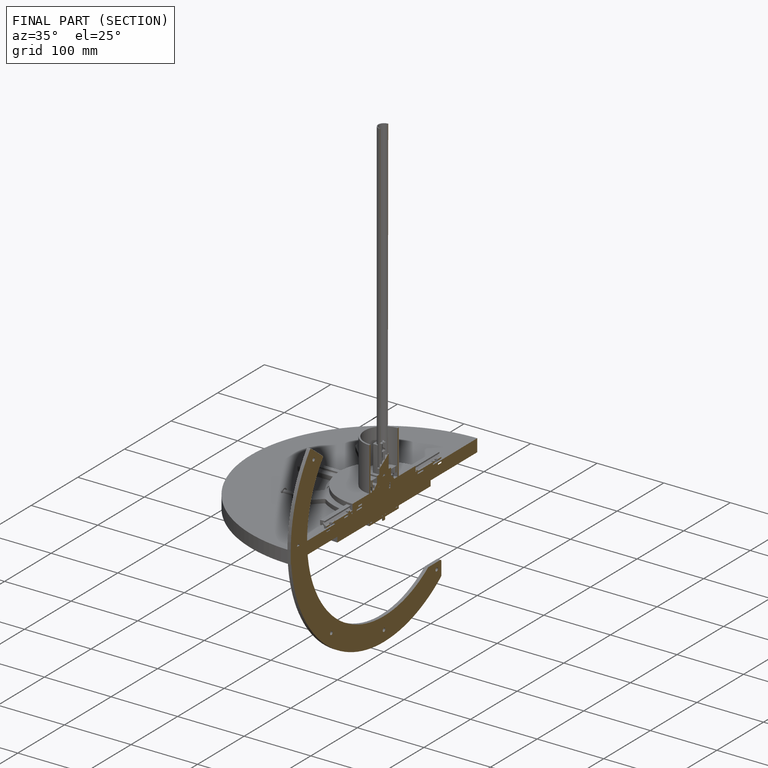
[diagram: finished part — half-section view (interior)]
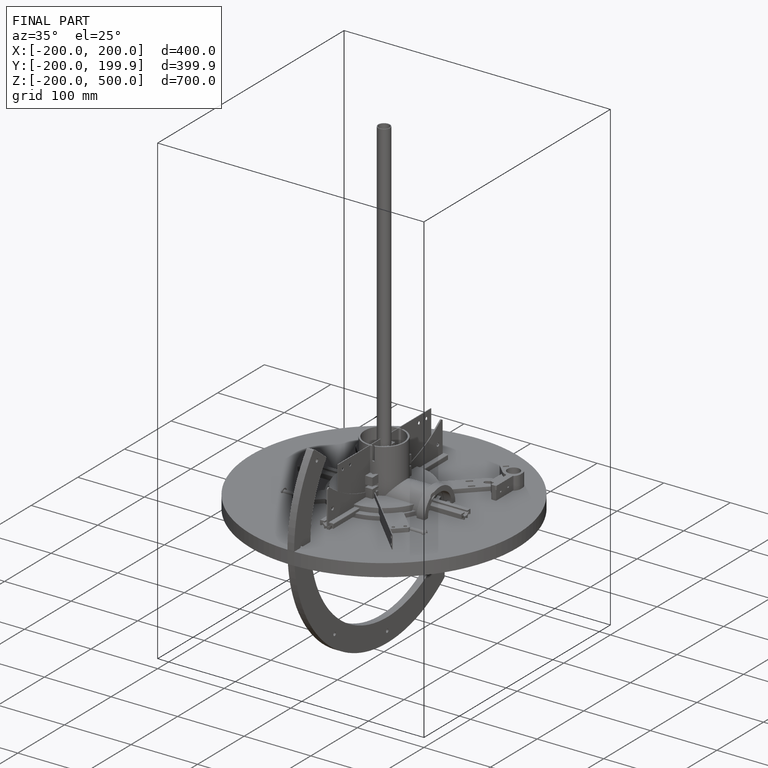
[diagram: finished part — iso view with bounding-box wireframe]
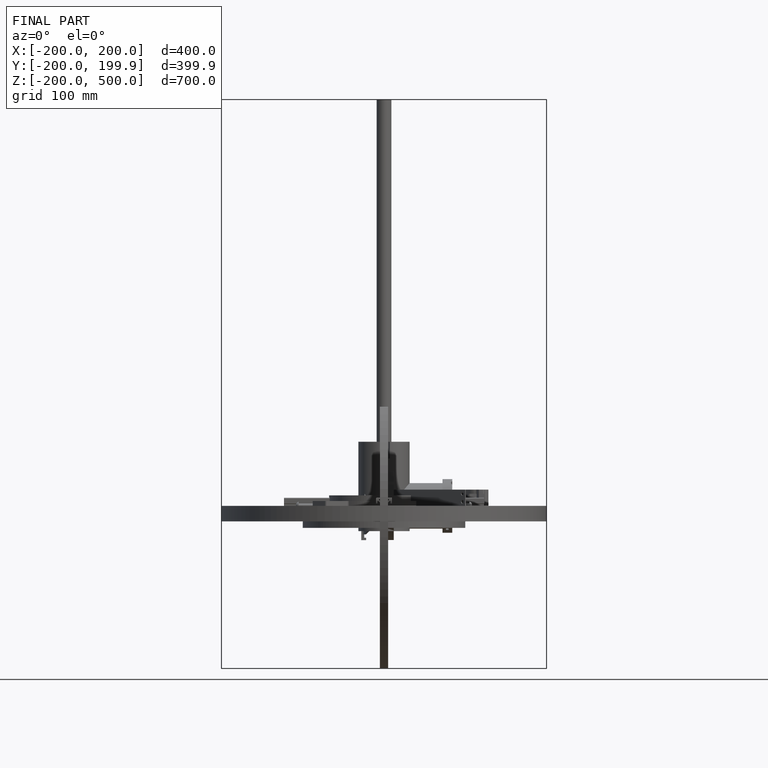
[diagram: finished part — front view with bounding-box wireframe]
